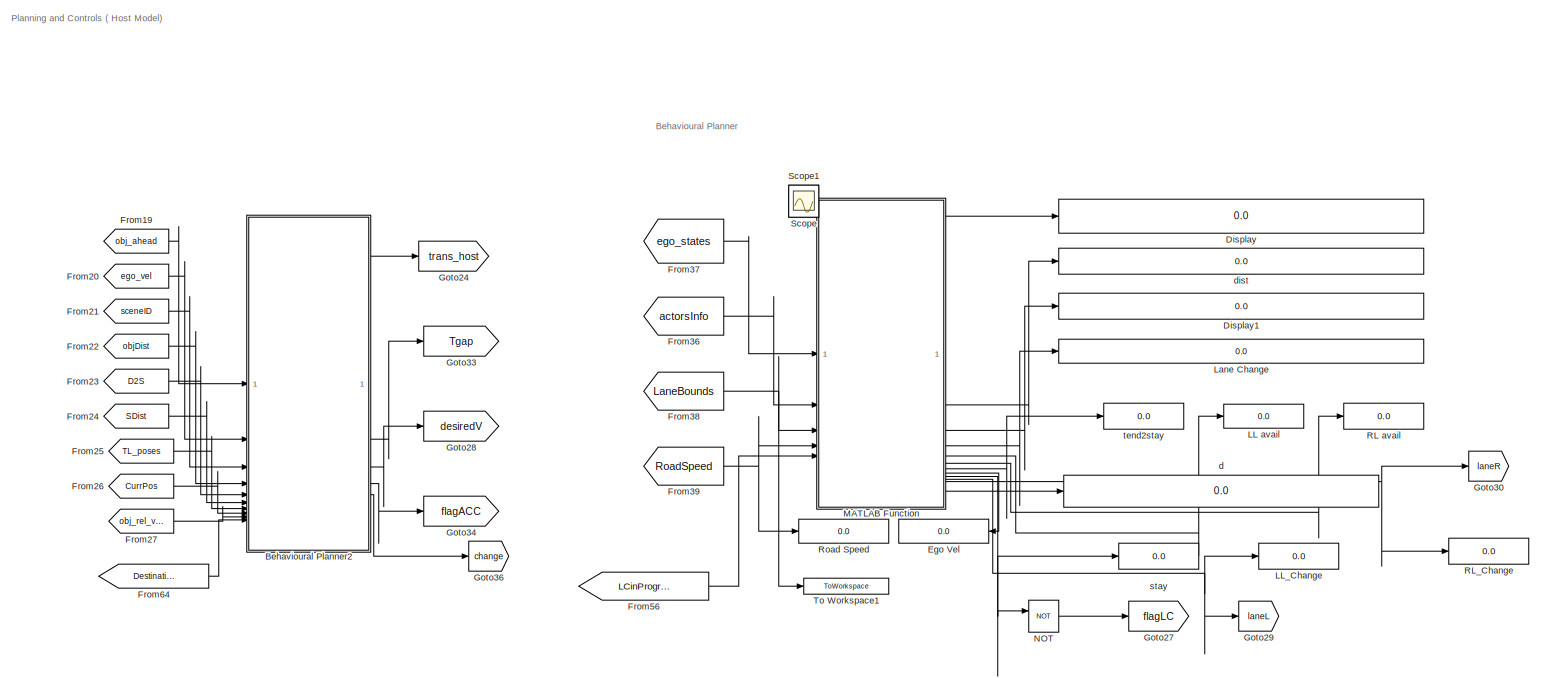
[diagram: root canvas - part 1/8, top center region]
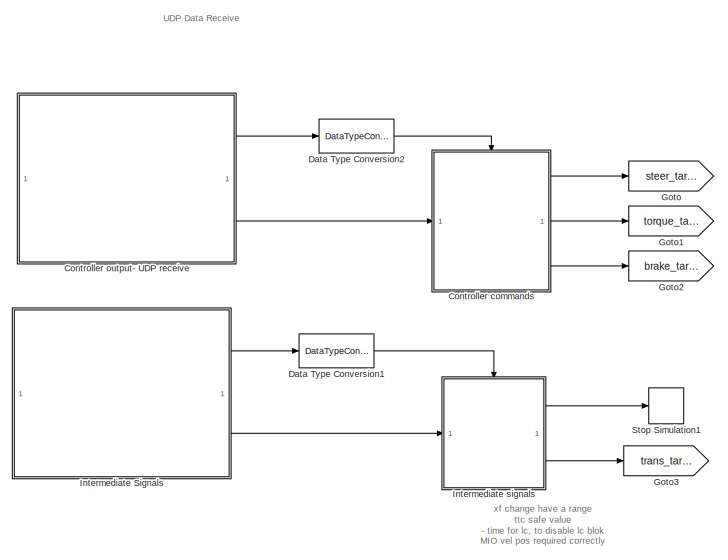
[diagram: root canvas - part 2/8, top right region]
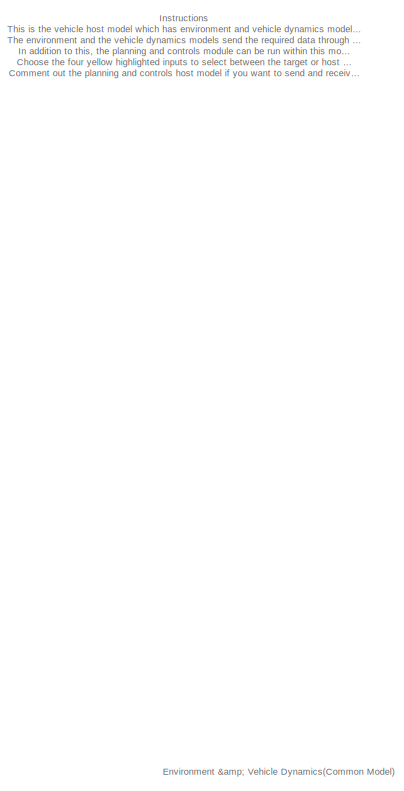
[diagram: root canvas - part 3/8, top left region]
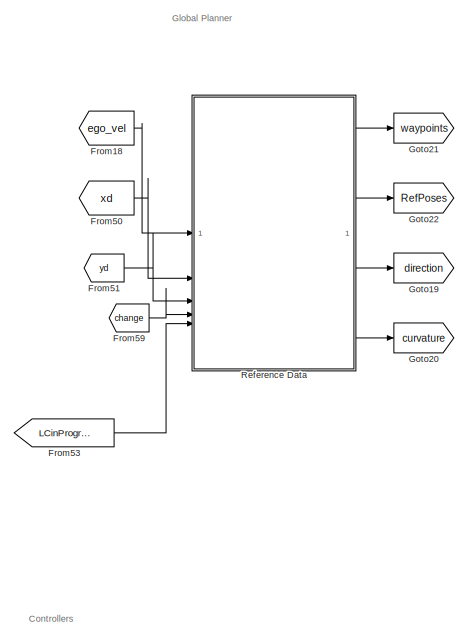
[diagram: root canvas - part 4/8, central region]
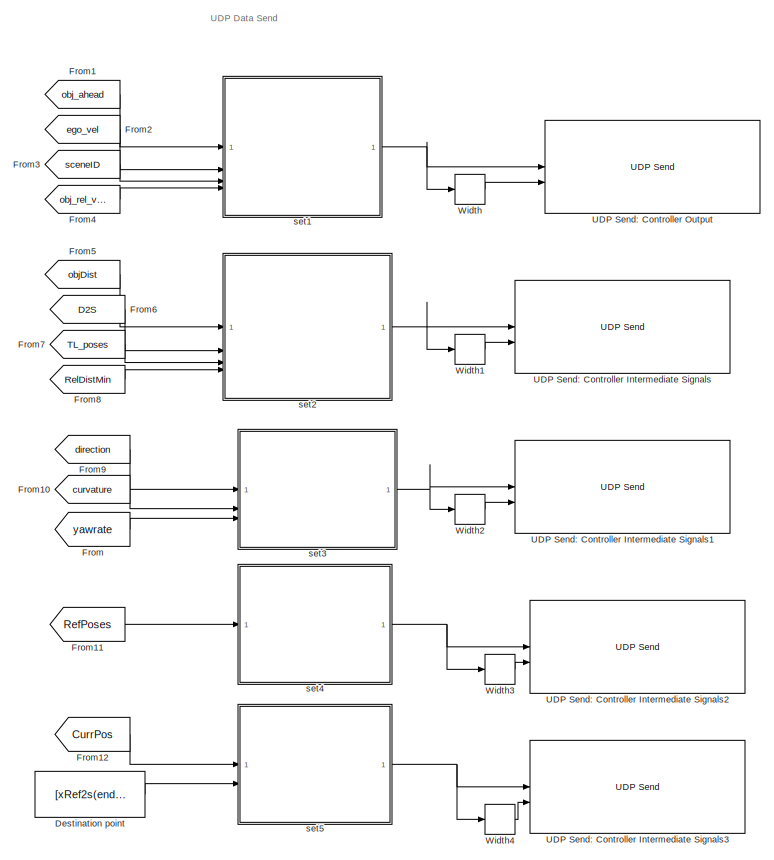
[diagram: root canvas - part 5/8, middle right region]
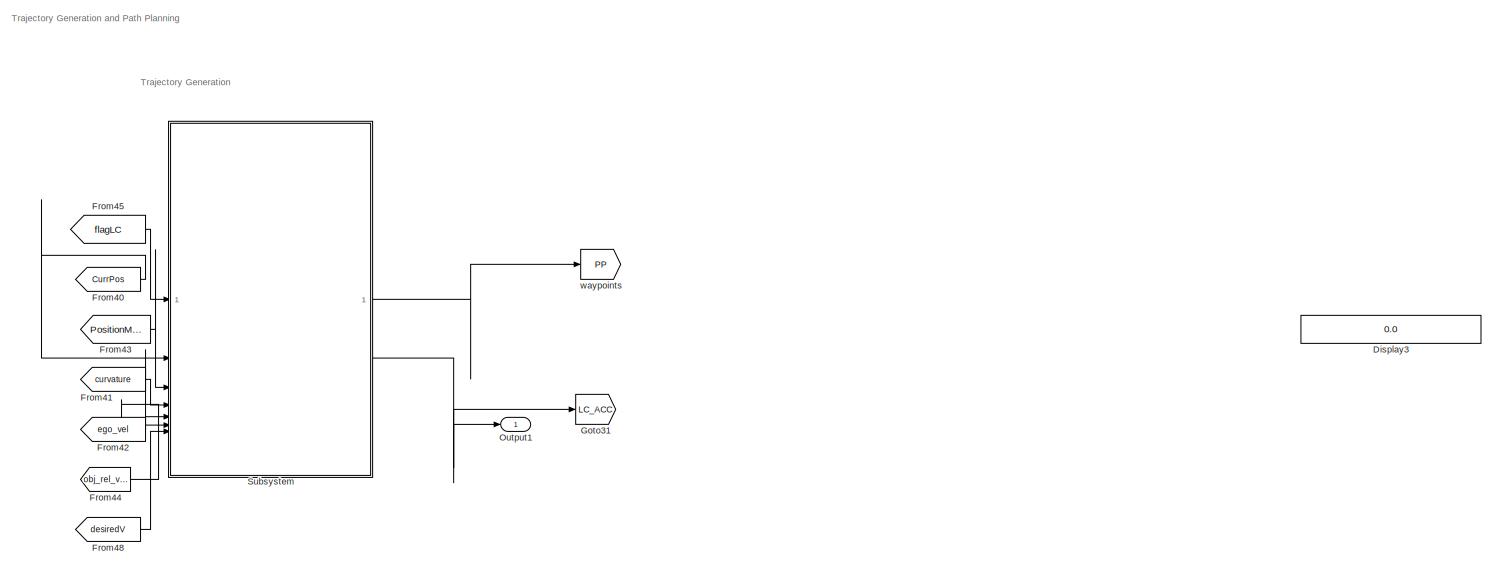
[diagram: root canvas - part 6/8, middle right region]
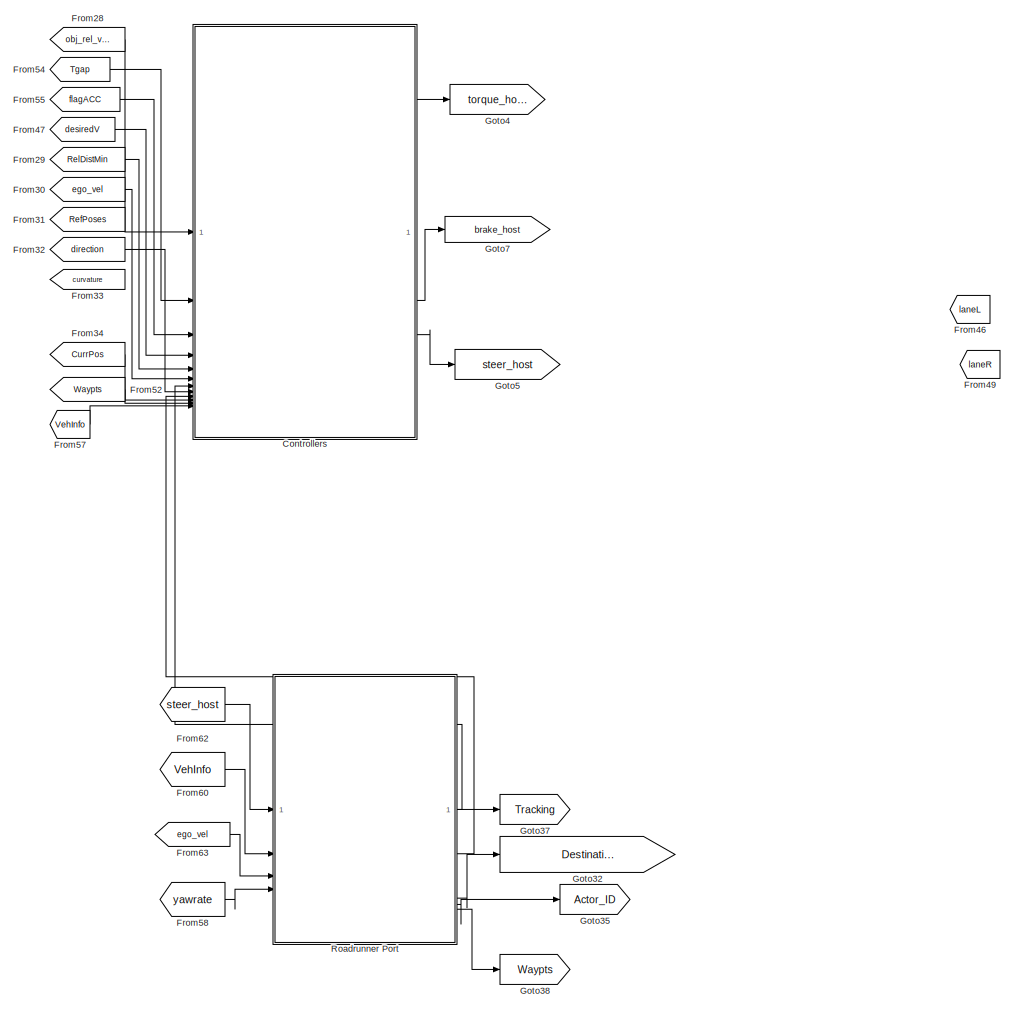
[diagram: root canvas - part 7/8, bottom center region]
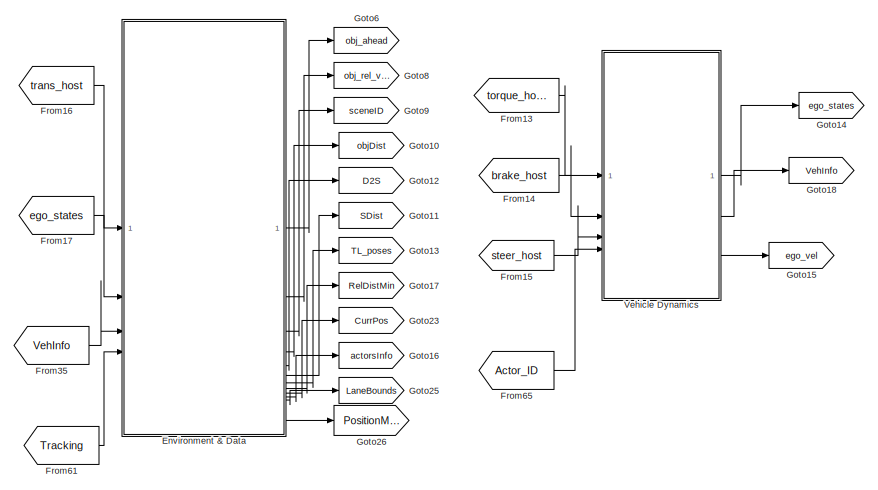
[diagram: root canvas - part 8/8, middle left region]
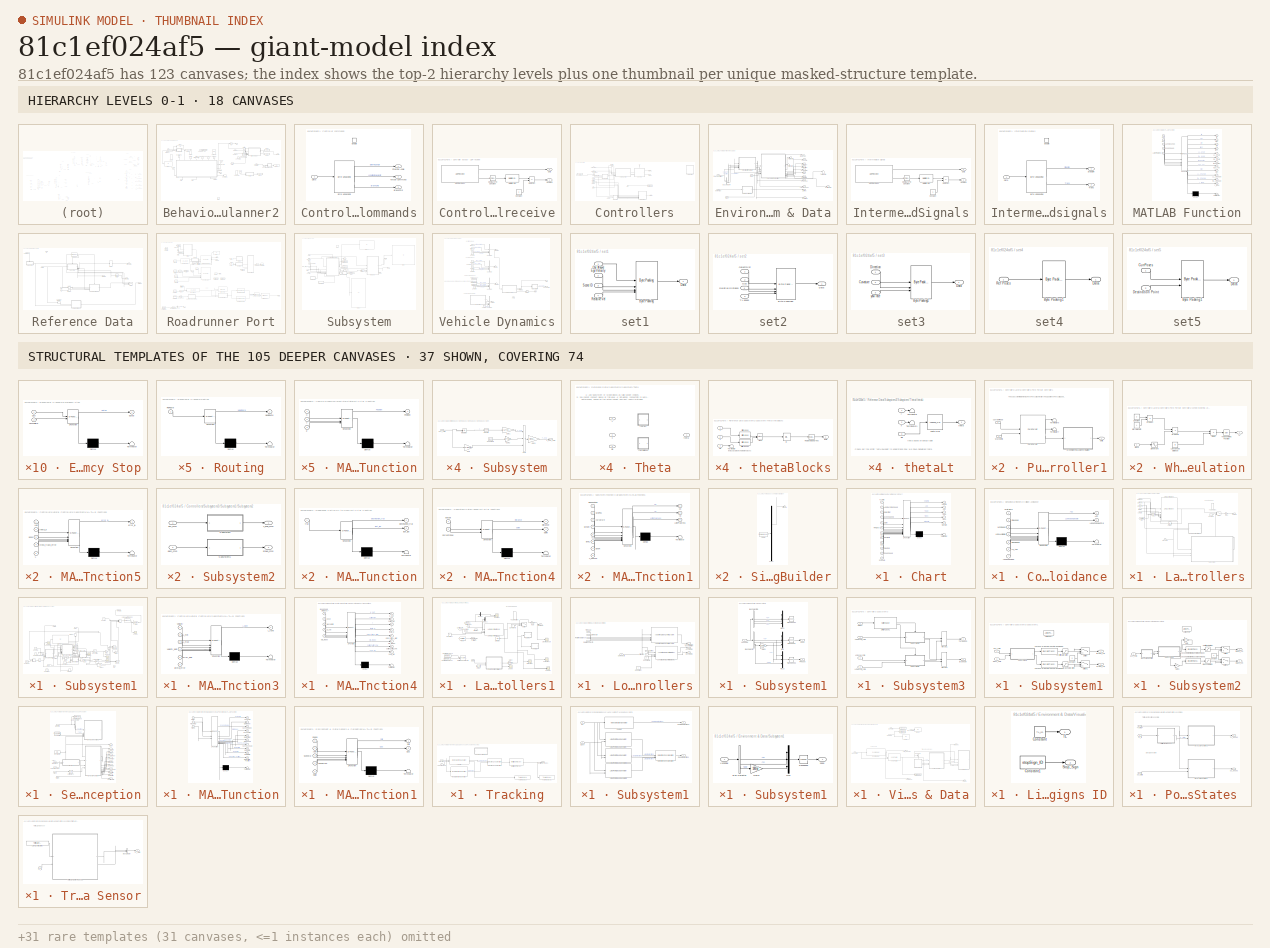
[diagram: thumbnail index - top-2 hierarchy levels (18 canvases) + 37 structural-template representatives of the remaining 105 canvases]
MODEL slx_81c1ef024af5
KIND model
CONFIG AbsTol = auto
CONFIG EnableMultiTasking = off
CONFIG FixedStep = auto
CONFIG MaxStep = auto
CONFIG MinStep = auto
CONFIG RelTol = 1e-3
CONFIG SampleTimeConstraint = Unconstrained
CONFIG SolverName = VariableStepAuto
CONFIG StartTime = 0.0
CONFIG StopTime = inf
WORKSPACE source: mxarray member
WORKSPACE finalint = 0
WORKSPACE firstWarning = 1
WORKSPACE originalScenarioChecksum = '114339432DE22364D47BB28FC96DC10C'
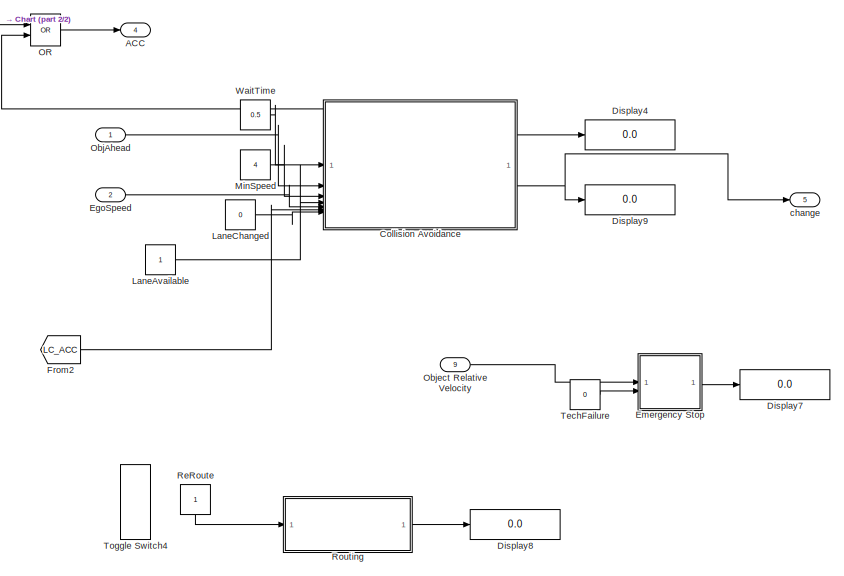
[diagram: Behavioural Planner2 - part 1/2, top right region]
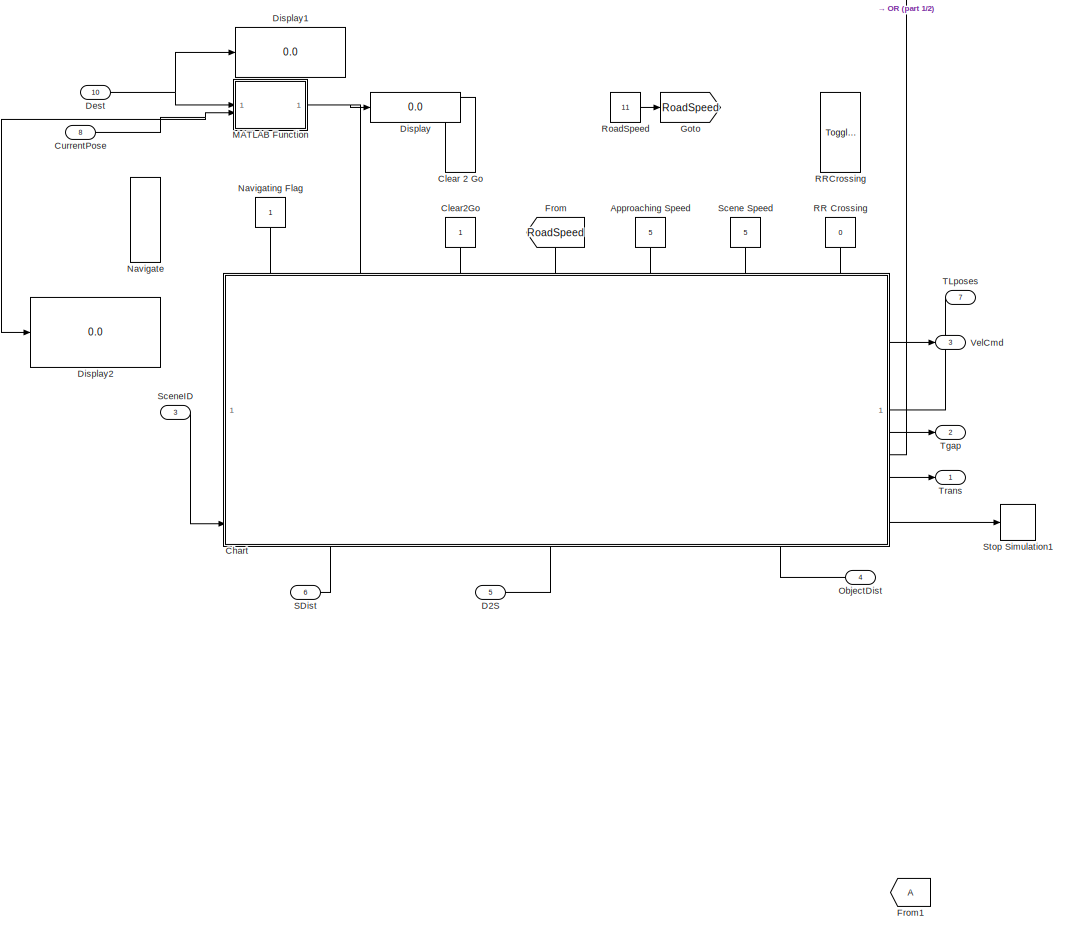
[diagram: Behavioural Planner2 - part 2/2, left side, full height]
BLOCK [SubSystem] Behavioural Planner2
BLOCK [Outport] Behavioural Planner2/ACC
  Port = 4
BLOCK [Constant] Behavioural Planner2/Approaching Speed
  NameLocation = top
  Value = 5
BLOCK [SubSystem] Behavioural Planner2/Chart
  ErrorFcn = Stateflow.Translate.translate
  PermitHierarchicalResolution = ExplicitOnly
  PortSchema = {"entries":[{"content":{"sides":[{"content":{"connectorIds":["In12"]},"type":"ConnectorPlacement.EquallySpacedRectSide","uuid":"81aca70f-0947-49fb-b60a-be241e44193b"},{"content":{"connectorIds":["In1","Out1","Out2","Out3","Out4","Out5"],"side":"RIGHT"},"type":"ConnectorPlacement.EquallySpacedRectSide","uuid":"e7b9645e-3711-4964-ac9b-0199dd335e99"},{"content":{"connectorIds":["In8","In9","In10","In...<+479ch>
  SFBlockType = Chart
  TreatAsAtomicUnit = on
BLOCK [Demux] Behavioural Planner2/Chart/ Demux 
  Outputs = 1
BLOCK [S-Function] Behavioural Planner2/Chart/ SFunction 
  EnableBusSupport = on
  FunctionName = sf_sfun
  PortCounts = [12 6]
  SFcnIsStateOwnerBlock = off
  SFunctionDeploymentMode = off
  Tag = Stateflow S-Function 33
BLOCK [Terminator] Behavioural Planner2/Chart/ Terminator 
BLOCK [Outport] Behavioural Planner2/Chart/ACC
  Port = 2
BLOCK [Inport] Behavioural Planner2/Chart/ApproachingSpeed
  Port = 2
BLOCK [Inport] Behavioural Planner2/Chart/Clear2Go
  Port = 10
BLOCK [Inport] Behavioural Planner2/Chart/D2D
  Port = 9
BLOCK [Inport] Behavioural Planner2/Chart/D2S
  Port = 7
BLOCK [Inport] Behavioural Planner2/Chart/Navigate
  Port = 8
BLOCK [Inport] Behavioural Planner2/Chart/ObjectDist
  Port = 3
BLOCK [Inport] Behavioural Planner2/Chart/RRCross
  Port = 6
BLOCK [Inport] Behavioural Planner2/Chart/RoadSpeed
  Port = 11
BLOCK [Inport] Behavioural Planner2/Chart/SDist
  Port = 5
BLOCK [Inport] Behavioural Planner2/Chart/SceneID
  Port = 12
BLOCK [Inport] Behavioural Planner2/Chart/SceneSpeed
  Port = 4
BLOCK [Outport] Behavioural Planner2/Chart/StopSim
  Port = 5
BLOCK [Inport] Behavioural Planner2/Chart/TLstate
BLOCK [Outport] Behavioural Planner2/Chart/Tgap
  Port = 3
BLOCK [Outport] Behavioural Planner2/Chart/Trans
  Port = 4
BLOCK [Outport] Behavioural Planner2/Chart/VelCmd
BLOCK [ToggleSwitchBlock] Behavioural Planner2/Clear 2 Go
BLOCK [Constant] Behavioural Planner2/Clear2Go
  NameLocation = top
BLOCK [SubSystem] Behavioural Planner2/Collision Avoidance
  ErrorFcn = Stateflow.Translate.translate
  PermitHierarchicalResolution = ExplicitOnly
  SFBlockType = Chart
  TreatAsAtomicUnit = on
BLOCK [Demux] Behavioural Planner2/Collision Avoidance/ Demux 
  Outputs = 1
BLOCK [S-Function] Behavioural Planner2/Collision Avoidance/ SFunction 
  EnableBusSupport = on
  FunctionName = sf_sfun
  PortCounts = [7 3]
  SFcnIsStateOwnerBlock = off
  SFunctionDeploymentMode = off
  Tag = Stateflow S-Function 34
BLOCK [Terminator] Behavioural Planner2/Collision Avoidance/ Terminator 
BLOCK [Outport] Behavioural Planner2/Collision Avoidance/ACC
BLOCK [Inport] Behavioural Planner2/Collision Avoidance/EgoSpeed
  Port = 5
BLOCK [Inport] Behavioural Planner2/Collision Avoidance/LC_ACC
  Port = 6
BLOCK [Inport] Behavioural Planner2/Collision Avoidance/LaneAvailable
  Port = 4
BLOCK [Outport] Behavioural Planner2/Collision Avoidance/LaneChangeCmd
  Port = 2
BLOCK [Inport] Behavioural Planner2/Collision Avoidance/LaneChanged
  Port = 7
BLOCK [Inport] Behavioural Planner2/Collision Avoidance/MinSpeed
  Port = 3
BLOCK [Inport] Behavioural Planner2/Collision Avoidance/ObjAhead
  Port = 2
BLOCK [Inport] Behavioural Planner2/Collision Avoidance/WaitTime
BLOCK [Inport] Behavioural Planner2/CurrentPose
  Port = 8
BLOCK [Inport] Behavioural Planner2/D2S
  Port = 5
BLOCK [Inport] Behavioural Planner2/Dest
  Port = 10
BLOCK [Display] Behavioural Planner2/Display
  Decimation = 1
BLOCK [Display] Behavioural Planner2/Display1
  Decimation = 1
BLOCK [Display] Behavioural Planner2/Display2
  Decimation = 1
BLOCK [Display] Behavioural Planner2/Display4
  Decimation = 1
BLOCK [Display] Behavioural Planner2/Display7
  Decimation = 1
BLOCK [Display] Behavioural Planner2/Display8
  Decimation = 1
BLOCK [Display] Behavioural Planner2/Display9
  Decimation = 1
BLOCK [Inport] Behavioural Planner2/EgoSpeed
  Port = 2
BLOCK [SubSystem] Behavioural Planner2/Emergency Stop
  ErrorFcn = Stateflow.Translate.translate
  PermitHierarchicalResolution = ExplicitOnly
  SFBlockType = Chart
  TreatAsAtomicUnit = on
BLOCK [Demux] Behavioural Planner2/Emergency Stop/ Demux 
  Outputs = 1
BLOCK [S-Function] Behavioural Planner2/Emergency Stop/ SFunction 
  EnableBusSupport = on
  FunctionName = sf_sfun
  PortCounts = [2 2]
  SFcnIsStateOwnerBlock = off
  SFunctionDeploymentMode = off
  Tag = Stateflow S-Function 35
BLOCK [Terminator] Behavioural Planner2/Emergency Stop/ Terminator 
BLOCK [Inport] Behavioural Planner2/Emergency Stop/D2O
BLOCK [Outport] Behavioural Planner2/Emergency Stop/EStop
BLOCK [Inport] Behavioural Planner2/Emergency Stop/TechFailure
  Port = 2
BLOCK [From] Behavioural Planner2/From
  GotoTag = RoadSpeed
  NameLocation = left
  TagVisibility = global
BLOCK [From] Behavioural Planner2/From1
BLOCK [From] Behavioural Planner2/From2
  GotoTag = LC_ACC
  TagVisibility = global
BLOCK [Goto] Behavioural Planner2/Goto
  GotoTag = RoadSpeed
  TagVisibility = global
BLOCK [Constant] Behavioural Planner2/LaneAvailable
  NameLocation = left
BLOCK [Constant] Behavioural Planner2/LaneChanged
  NameLocation = left
  Value = 0
BLOCK [SubSystem] Behavioural Planner2/MATLAB Function
  ErrorFcn = Stateflow.Translate.translate
  PermitHierarchicalResolution = ExplicitOnly
  SFBlockType = MATLAB Function
  TreatAsAtomicUnit = on
BLOCK [Demux] Behavioural Planner2/MATLAB Function/ Demux 
  Outputs = 1
BLOCK [S-Function] Behavioural Planner2/MATLAB Function/ SFunction 
  EnableBusSupport = on
  FunctionName = sf_sfun
  PortCounts = [2 2]
  SFcnIsStateOwnerBlock = off
  SFunctionDeploymentMode = off
  Tag = Stateflow S-Function 36
BLOCK [Terminator] Behavioural Planner2/MATLAB Function/ Terminator 
BLOCK [Inport] Behavioural Planner2/MATLAB Function/CurrentPose
  Port = 2
BLOCK [Outport] Behavioural Planner2/MATLAB Function/D2D
BLOCK [Inport] Behavioural Planner2/MATLAB Function/Dest
BLOCK [Constant] Behavioural Planner2/MinSpeed
  NameLocation = left
  Value = 4
BLOCK [ToggleSwitchBlock] Behavioural Planner2/Navigate
BLOCK [Constant] Behavioural Planner2/Navigating Flag
  NameLocation = left
BLOCK [Logic] Behavioural Planner2/OR
  AllPortsSameDT = off
  IconShape = distinctive
  Operator = OR
  OutDataTypeStr = fixdt(1,16)
BLOCK [Inport] Behavioural Planner2/ObjAhead
BLOCK [Inport] Behavioural Planner2/Object Relative Velocity
  Port = 9
BLOCK [Inport] Behavioural Planner2/ObjectDist
  Port = 4
BLOCK [Constant] Behavioural Planner2/RR Crossing
  NameLocation = top
  Value = 0
BLOCK [ToggleSwitchBlock] Behavioural Planner2/RRCrossing
BLOCK [Constant] Behavioural Planner2/ReRoute
  NameLocation = top
BLOCK [Constant] Behavioural Planner2/RoadSpeed
  NameLocation = left
  Value = 11
BLOCK [SubSystem] Behavioural Planner2/Routing
  ErrorFcn = Stateflow.Translate.translate
  PermitHierarchicalResolution = ExplicitOnly
  SFBlockType = Chart
  TreatAsAtomicUnit = on
BLOCK [Demux] Behavioural Planner2/Routing/ Demux 
  Outputs = 1
BLOCK [S-Function] Behavioural Planner2/Routing/ SFunction 
  EnableBusSupport = on
  FunctionName = sf_sfun
  PortCounts = [1 2]
  SFcnIsStateOwnerBlock = off
  SFunctionDeploymentMode = off
  Tag = Stateflow S-Function 37
BLOCK [Terminator] Behavioural Planner2/Routing/ Terminator 
BLOCK [Outport] Behavioural Planner2/Routing/NewRoute
BLOCK [Inport] Behavioural Planner2/Routing/ReRoute
BLOCK [Inport] Behavioural Planner2/SDist
  Port = 6
BLOCK [Constant] Behavioural Planner2/Scene Speed
  NameLocation = top
  Value = 5
BLOCK [Inport] Behavioural Planner2/SceneID
  Port = 3
BLOCK [Stop] Behavioural Planner2/Stop Simulation1
BLOCK [Inport] Behavioural Planner2/TLposes
  Port = 7
BLOCK [Constant] Behavioural Planner2/TechFailure
  NameLocation = left
  Value = 0
BLOCK [Outport] Behavioural Planner2/Tgap
  Port = 2
BLOCK [ToggleSwitchBlock] Behavioural Planner2/Toggle Switch4
BLOCK [Outport] Behavioural Planner2/Trans
BLOCK [Outport] Behavioural Planner2/VelCmd
  Port = 3
BLOCK [Constant] Behavioural Planner2/WaitTime
  NameLocation = left
  Value = 0.5
BLOCK [Outport] Behavioural Planner2/change
  Port = 5
BLOCK [SubSystem] Controller commands
  Commented = on
BLOCK [Outport] Controller commands/BrakeCmd
  Port = 3
BLOCK [Reference] Controller commands/Byte Unpacking   REF=slrealtimeutilitieslib/Byte Unpacking
  SourceBlock = slrealtimeutilitieslib/Byte Unpacking
  SourceType = slreraltimebytepacking
BLOCK [Inport] Controller commands/Data
BLOCK [EnablePort] Controller commands/Enable
BLOCK [Outport] Controller commands/Steering Angle
BLOCK [Outport] Controller commands/Torque Command
  Port = 2
BLOCK [SubSystem] Controller output- UDP receive
  Commented = on
BLOCK [Reference] Controller output- UDP receive/Compare To Constant  REF=simulink/Logic and Bit
Operations/Compare
To Constant
  SourceBlock = simulink/Logic and Bit\nOperations/Compare\nTo Constant
  SourceType = Compare To Constant
BLOCK [Constant] Controller output- UDP receive/Constant
BLOCK [Outport] Controller output- UDP receive/Data
  Port = 2
BLOCK [Outport] Controller output- UDP receive/NumMsg
BLOCK [Sum] Controller output- UDP receive/Subtract
  IconShape = rectangular
  Inputs = +-
BLOCK [Reference] Controller output- UDP receive/UDP Receive2  REF=slrealtimeiplib/UDP Receive
  SourceBlock = slrealtimeiplib/UDP Receive
  SourceType = slrealtimeudpreceive
BLOCK [WhileIterator] Controller output- UDP receive/While Iterator
  ResetStates = reset
  ShowIterationPort = on
  WhileBlockType = do-while
BLOCK [SubSystem] Controllers
BLOCK [Inport] Controllers/ACC
  NameLocation = left
  Port = 3
BLOCK [Outport] Controllers/BrakeCm
  Port = 2
BLOCK [Inport] Controllers/CurrVelocity
  Port = 6
BLOCK [Inport] Controllers/Curvature
  Port = 9
BLOCK [Inport] Controllers/Direction
  Port = 8
BLOCK [Display] Controllers/Display
  Decimation = 1
BLOCK [Inport] Controllers/Input
  Port = 11
BLOCK [SubSystem] Controllers/Lateral Controllers
  Commented = on
BLOCK [Constant] Controllers/Lateral Controllers/Constant5
  Value = 0
BLOCK [Inport] Controllers/Lateral Controllers/CurrPoses
  Port = 2
BLOCK [Inport] Controllers/Lateral Controllers/CurrVelocity
  NameLocation = top
BLOCK [Inport] Controllers/Lateral Controllers/Direction
  Port = 4
BLOCK [From] Controllers/Lateral Controllers/From
  GotoTag = yawrate
  IconDisplay = Signal name
  TagVisibility = global
BLOCK [Gain] Controllers/Lateral Controllers/Gain1
  Gain = 180/pi
BLOCK [Gain] Controllers/Lateral Controllers/Gain2
  Gain = 1/STEER_RATIO
BLOCK [Reference] Controllers/Lateral Controllers/Lateral Controller Stanley  REF=drivingvehiclecontroller/Lateral Controller Stanley
  SourceBlock = drivingvehiclecontroller/Lateral Controller Stanley
  SourceType = Lateral Controller Stanley
BLOCK [SubSystem] Controllers/Lateral Controllers/Pure Pursuit Controller1
BLOCK [Reference] Controllers/Lateral Controllers/Pure Pursuit Controller1/Pure Pursuit  REF=robotalgslib/Pure Pursuit
  SourceBlock = robotalgslib/Pure Pursuit
  SourceType = nav.slalgs.internal.PurePursuit
BLOCK [Terminator] Controllers/Lateral Controllers/Pure Pursuit Controller1/Terminator6
BLOCK [Terminator] Controllers/Lateral Controllers/Pure Pursuit Controller1/Terminator7
BLOCK [Inport] Controllers/Lateral Controllers/Pure Pursuit Controller1/Waypoints
  Port = 2
BLOCK [SubSystem] Controllers/Lateral Controllers/Pure Pursuit Controller1/Wheel Steering Angle Formulation
BLOCK [Outport] Controllers/Lateral Controllers/Pure Pursuit Controller1/Wheel Steering Angle Formulation/Al
BLOCK [Constant] Controllers/Lateral Controllers/Pure Pursuit Controller1/Wheel Steering Angle Formulation/Bicycle length
  Value = L
BLOCK [Constant] Controllers/Lateral Controllers/Pure Pursuit Controller1/Wheel Steering Angle Formulation/Constant
  Value = 2
BLOCK [Product] Controllers/Lateral Controllers/Pure Pursuit Controller1/Wheel Steering Angle Formulation/Divide
  Inputs = */
BLOCK [Constant] Controllers/Lateral Controllers/Pure Pursuit Controller1/Wheel Steering Angle Formulation/Lookahead distance
  Value = ld
BLOCK [Product] Controllers/Lateral Controllers/Pure Pursuit Controller1/Wheel Steering Angle Formulation/Product
BLOCK [Product] Controllers/Lateral Controllers/Pure Pursuit Controller1/Wheel Steering Angle Formulation/Product1
BLOCK [Sin] Controllers/Lateral Controllers/Pure Pursuit Controller1/Wheel Steering Angle Formulation/Sine Wave
  SampleTime = 0
  TimeSource = Use external signal
BLOCK [Trigonometry] Controllers/Lateral Controllers/Pure Pursuit Controller1/Wheel Steering Angle Formulation/Trigonometric Function
  Operator = atan
BLOCK [Inport] Controllers/Lateral Controllers/Pure Pursuit Controller1/Wheel Steering Angle Formulation/alpha
  NameLocation = top
BLOCK [Inport] Controllers/Lateral Controllers/Pure Pursuit Controller1/currentPose
BLOCK [Outport] Controllers/Lateral Controllers/Pure Pursuit Controller1/delta
BLOCK [Inport] Controllers/Lateral Controllers/RefPoses
  Port = 3
BLOCK [SubSystem] Controllers/Lateral Controllers/Subsystem1
BLOCK [Abs] Controllers/Lateral Controllers/Subsystem1/Abs
  SaturateOnIntegerOverflow = off
BLOCK [Sum] Controllers/Lateral Controllers/Subsystem1/Add1
  IconShape = rectangular
  Inputs = ++++
BLOCK [Constant] Controllers/Lateral Controllers/Subsystem1/Constant
  Value = 0
BLOCK [Constant] Controllers/Lateral Controllers/Subsystem1/Constant10
  Value = 0.4
BLOCK [Constant] Controllers/Lateral Controllers/Subsystem1/Constant12
  Value = yRef2
BLOCK [Constant] Controllers/Lateral Controllers/Subsystem1/Constant14
  Value = 0.032
BLOCK [Constant] Controllers/Lateral Controllers/Subsystem1/Constant6
  Value = L
BLOCK [Constant] Controllers/Lateral Controllers/Subsystem1/Constant7
  Value = 0.01
BLOCK [Constant] Controllers/Lateral Controllers/Subsystem1/Constant8
  Value = 2
BLOCK [Constant] Controllers/Lateral Controllers/Subsystem1/Constant9
  Value = 6
BLOCK [Display] Controllers/Lateral Controllers/Subsystem1/Display2
  Decimation = 1
BLOCK [Gain] Controllers/Lateral Controllers/Subsystem1/Gain10
  Gain = 0.01
BLOCK [Gain] Controllers/Lateral Controllers/Subsystem1/Gain2
  Gain = 180/pi
BLOCK [Gain] Controllers/Lateral Controllers/Subsystem1/Gain6
BLOCK [Gain] Controllers/Lateral Controllers/Subsystem1/Gain8
BLOCK [Gain] Controllers/Lateral Controllers/Subsystem1/Gain9
  Gain = 0.2950
BLOCK [Inport] Controllers/Lateral Controllers/Subsystem1/Input
  Port = 3
BLOCK [Outport] Controllers/Lateral Controllers/Subsystem1/K_out
  Port = 2
BLOCK [Reference] Controllers/Lateral Controllers/Subsystem1/Low-Pass Filter (Discrete or Continuous)  REF=eeGeneralControl/Low-Pass Filter
(Discrete or Continuous)
  Commented = through
  SourceBlock = eeGeneralControl/Low-Pass Filter\n(Discrete or Continuous)
  SourceType = Low-Pass Filter (Discrete or Continuous)
BLOCK [SubSystem] Controllers/Lateral Controllers/Subsystem1/MATLAB Function3
  ErrorFcn = Stateflow.Translate.translate
  PermitHierarchicalResolution = ExplicitOnly
  SFBlockType = MATLAB Function
  TreatAsAtomicUnit = on
BLOCK [Demux] Controllers/Lateral Controllers/Subsystem1/MATLAB Function3/ Demux 
  Outputs = 1
BLOCK [S-Function] Controllers/Lateral Controllers/Subsystem1/MATLAB Function3/ SFunction 
  EnableBusSupport = on
  FunctionName = sf_sfun
  PortCounts = [6 2]
  SFcnIsStateOwnerBlock = off
  SFunctionDeploymentMode = off
  Tag = Stateflow S-Function 27
BLOCK [Terminator] Controllers/Lateral Controllers/Subsystem1/MATLAB Function3/ Terminator 
BLOCK [Inport] Controllers/Lateral Controllers/Subsystem1/MATLAB Function3/L_max
  Port = 3
BLOCK [Inport] Controllers/Lateral Controllers/Subsystem1/MATLAB Function3/L_min
  Port = 2
BLOCK [Outport] Controllers/Lateral Controllers/Subsystem1/MATLAB Function3/L_tune
BLOCK [Inport] Controllers/Lateral Controllers/Subsystem1/MATLAB Function3/error_gain
  Port = 5
BLOCK [Inport] Controllers/Lateral Controllers/Subsystem1/MATLAB Function3/lateral_error
  Port = 6
BLOCK [Inport] Controllers/Lateral Controllers/Subsystem1/MATLAB Function3/velocity
BLOCK [Inport] Controllers/Lateral Controllers/Subsystem1/MATLAB Function3/velocity_gain
  Port = 4
BLOCK [SubSystem] Controllers/Lateral Controllers/Subsystem1/MATLAB Function4
  ErrorFcn = Stateflow.Translate.translate
  PermitHierarchicalResolution = ExplicitOnly
  SFBlockType = MATLAB Function
  TreatAsAtomicUnit = on
BLOCK [Demux] Controllers/Lateral Controllers/Subsystem1/MATLAB Function4/ Demux 
  Outputs = 1
BLOCK [S-Function] Controllers/Lateral Controllers/Subsystem1/MATLAB Function4/ SFunction 
  EnableBusSupport = on
  FunctionName = sf_sfun
  PortCounts = [5 9]
  SFcnIsStateOwnerBlock = off
  SFunctionDeploymentMode = off
  Tag = Stateflow S-Function 28
BLOCK [Terminator] Controllers/Lateral Controllers/Subsystem1/MATLAB Function4/ Terminator 
BLOCK [Inport] Controllers/Lateral Controllers/Subsystem1/MATLAB Function4/D_sat
  Port = 4
BLOCK [Outport] Controllers/Lateral Controllers/Subsystem1/MATLAB Function4/K_out
BLOCK [Outport] Controllers/Lateral Controllers/Subsystem1/MATLAB Function4/cross_track_error
  Port = 5
BLOCK [Outport] Controllers/Lateral Controllers/Subsystem1/MATLAB Function4/current_error_chk
  Port = 7
BLOCK [Outport] Controllers/Lateral Controllers/Subsystem1/MATLAB Function4/current_ref
  Port = 2
BLOCK [Inport] Controllers/Lateral Controllers/Subsystem1/MATLAB Function4/lookahead_distance
BLOCK [Outport] Controllers/Lateral Controllers/Subsystem1/MATLAB Function4/new_wp
  Port = 8
BLOCK [Outport] Controllers/Lateral Controllers/Subsystem1/MATLAB Function4/old_index
  Port = 6
BLOCK [Inport] Controllers/Lateral Controllers/Subsystem1/MATLAB Function4/old_index 
  Port = 5
BLOCK [Inport] Controllers/Lateral Controllers/Subsystem1/MATLAB Function4/pose
  Port = 2
BLOCK [Outport] Controllers/Lateral Controllers/Subsystem1/MATLAB Function4/r
  Port = 3
BLOCK [Outport] Controllers/Lateral Controllers/Subsystem1/MATLAB Function4/theta_p
  Port = 4
BLOCK [Inport] Controllers/Lateral Controllers/Subsystem1/MATLAB Function4/waypoints
  Port = 3
BLOCK [SubSystem] Controllers/Lateral Controllers/Subsystem1/MATLAB Function5
  ErrorFcn = Stateflow.Translate.translate
  PermitHierarchicalResolution = ExplicitOnly
  SFBlockType = MATLAB Function
  TreatAsAtomicUnit = on
BLOCK [Demux] Controllers/Lateral Controllers/Subsystem1/MATLAB Function5/ Demux 
  Outputs = 1
BLOCK [S-Function] Controllers/Lateral Controllers/Subsystem1/MATLAB Function5/ SFunction 
  EnableBusSupport = on
  FunctionName = sf_sfun
  PortCounts = [5 2]
  SFcnIsStateOwnerBlock = off
  SFunctionDeploymentMode = off
  Tag = Stateflow S-Function 29
BLOCK [Terminator] Controllers/Lateral Controllers/Subsystem1/MATLAB Function5/ Terminator 
BLOCK [Inport] Controllers/Lateral Controllers/Subsystem1/MATLAB Function5/L
  Port = 5
BLOCK [Inport] Controllers/Lateral Controllers/Subsystem1/MATLAB Function5/Lad
BLOCK [Inport] Controllers/Lateral Controllers/Subsystem1/MATLAB Function5/cross_track_error
  Port = 4
BLOCK [Outport] Controllers/Lateral Controllers/Subsystem1/MATLAB Function5/error_la
BLOCK [Inport] Controllers/Lateral Controllers/Subsystem1/MATLAB Function5/pose
  Port = 3
BLOCK [Inport] Controllers/Lateral Controllers/Subsystem1/MATLAB Function5/theta_p
  Port = 2
BLOCK [SubSystem] Controllers/Lateral Controllers/Subsystem1/MATLAB Function6
  ErrorFcn = Stateflow.Translate.translate
  PermitHierarchicalResolution = ExplicitOnly
  SFBlockType = MATLAB Function
  TreatAsAtomicUnit = on
BLOCK [Demux] Controllers/Lateral Controllers/Subsystem1/MATLAB Function6/ Demux 
  Outputs = 1
BLOCK [S-Function] Controllers/Lateral Controllers/Subsystem1/MATLAB Function6/ SFunction 
  EnableBusSupport = on
  FunctionName = sf_sfun
  PortCounts = [2 2]
  SFcnIsStateOwnerBlock = off
  SFunctionDeploymentMode = off
  Tag = Stateflow S-Function 30
BLOCK [Terminator] Controllers/Lateral Controllers/Subsystem1/MATLAB Function6/ Terminator 
BLOCK [Inport] Controllers/Lateral Controllers/Subsystem1/MATLAB Function6/L
  Port = 2
BLOCK [Inport] Controllers/Lateral Controllers/Subsystem1/MATLAB Function6/r
BLOCK [Outport] Controllers/Lateral Controllers/Subsystem1/MATLAB Function6/theta
BLOCK [Memory] Controllers/Lateral Controllers/Subsystem1/Memory
  InitialCondition = 1
  LinearizeMemory = on
BLOCK [Memory] Controllers/Lateral Controllers/Subsystem1/Memory1
  LinearizeMemory = on
BLOCK [Memory] Controllers/Lateral Controllers/Subsystem1/Memory2
  NameLocation = left
BLOCK [Outport] Controllers/Lateral Controllers/Subsystem1/Out5
  Port = 5
BLOCK [Reference] Controllers/Lateral Controllers/Subsystem1/PID Controller  REF=slpidlib/PID Controller
  SourceBlock = slpidlib/PID Controller
  SourceType = PID 1dof
BLOCK [Reference] Controllers/Lateral Controllers/Subsystem1/PID Controller1  REF=slpidlib/PID Controller
  SourceBlock = slpidlib/PID Controller
  SourceType = PID 1dof
BLOCK [Product] Controllers/Lateral Controllers/Subsystem1/Product1
BLOCK [Product] Controllers/Lateral Controllers/Subsystem1/Product2
BLOCK [Product] Controllers/Lateral Controllers/Subsystem1/Product3
BLOCK [Scope] Controllers/Lateral Controllers/Subsystem1/Scope12
  Floating = off
  NumInputPorts = 1
  ScopeSpecificationString = Simulink.scopes.TimeScopeBlockCfg('CurrentConfiguration', extmgr.ConfigurationSet(extmgr.Configuration('Core','General UI',true),extmgr.Configuration('Core','Source UI',true),extmgr.Configuration('Sources','WiredSimulink',true,'DataLoggingVariableName','ScopeData1'),extmgr.Configuration('Visuals','Time Domain',true,'SerializedDisplays',{struct('MinYLimReal','-0.37783','MaxYLimReal','0.28104','YLab...<+1364ch>
BLOCK [Scope] Controllers/Lateral Controllers/Subsystem1/Scope15
  Floating = off
  NumInputPorts = 1
  ScopeSpecificationString = Simulink.scopes.TimeScopeBlockCfg('CurrentConfiguration', extmgr.ConfigurationSet(extmgr.Configuration('Core','General UI',true),extmgr.Configuration('Core','Source UI',true),extmgr.Configuration('Sources','WiredSimulink',true,'DataLoggingVariableName','ScopeData2'),extmgr.Configuration('Visuals','Time Domain',true,'SerializedDisplays',{struct('MinYLimReal','166.10928','MaxYLimReal','590.29962','Y...<+1436ch>
BLOCK [Scope] Controllers/Lateral Controllers/Subsystem1/Scope17
  Floating = off
  NumInputPorts = 1
  ScopeSpecificationString = Simulink.scopes.TimeScopeBlockCfg('CurrentConfiguration', extmgr.ConfigurationSet(extmgr.Configuration('Core','General UI',true),extmgr.Configuration('Core','Source UI',true),extmgr.Configuration('Sources','WiredSimulink',true,'DataLoggingVariableName','ScopeData1'),extmgr.Configuration('Visuals','Time Domain',true,'SerializedDisplays',{struct('MinYLimReal','-0.62318','MaxYLimReal','11.59405','YLa...<+1473ch>
BLOCK [Scope] Controllers/Lateral Controllers/Subsystem1/Scope8
  Floating = off
  NumInputPorts = 1
  ScopeSpecificationString = Simulink.scopes.TimeScopeBlockCfg('CurrentConfiguration', extmgr.ConfigurationSet(extmgr.Configuration('Core','General UI',true),extmgr.Configuration('Core','Source UI',true),extmgr.Configuration('Sources','WiredSimulink',true,'DataLoggingVariableName','ScopeData1'),extmgr.Configuration('Visuals','Time Domain',true,'SerializedDisplays',{struct('MinYLimReal','-631.88707','MaxYLimReal','337.59329','...<+1490ch>
BLOCK [Scope] Controllers/Lateral Controllers/Subsystem1/Scope9
  Floating = off
  NumInputPorts = 1
  ScopeSpecificationString = Simulink.scopes.TimeScopeBlockCfg('CurrentConfiguration', extmgr.ConfigurationSet(extmgr.Configuration('Core','General UI',true),extmgr.Configuration('Core','Source UI',true),extmgr.Configuration('Sources','WiredSimulink',true,'DataLoggingVariableName','ScopeData1'),extmgr.Configuration('Visuals','Time Domain',true,'SerializedDisplays',{struct('MinYLimReal','2.00000','MaxYLimReal','10.71759','YLab...<+1452ch>
BLOCK [Outport] Controllers/Lateral Controllers/Subsystem1/cross_track_error
  Port = 4
BLOCK [Outport] Controllers/Lateral Controllers/Subsystem1/current_ref
  Port = 3
BLOCK [Inport] Controllers/Lateral Controllers/Subsystem1/pose
BLOCK [Outport] Controllers/Lateral Controllers/Subsystem1/steerCmd
BLOCK [Inport] Controllers/Lateral Controllers/Subsystem1/velocity
  Port = 2
BLOCK [Switch] Controllers/Lateral Controllers/Switch
  Criteria = u2 > Threshold
  InputSameDT = off
  SaturateOnIntegerOverflow = off
BLOCK [ToggleSwitchBlock] Controllers/Lateral Controllers/Toggle Switch1
BLOCK [UnitDelay] Controllers/Lateral Controllers/Unit Delay
  HasFrameUpgradeWarning = on
  NameLocation = top
  SampleTime = -1
BLOCK [Inport] Controllers/Lateral Controllers/Waypoints
  Port = 6
BLOCK [Inport] Controllers/Lateral Controllers/curvature
  Port = 5
BLOCK [Outport] Controllers/Lateral Controllers/steerCmd
BLOCK [SubSystem] Controllers/Lateral Controllers1
BLOCK [SubSystem] Controllers/Lateral Controllers1/Average
  ErrorFcn = Stateflow.Translate.translate
  LibrarySourceBlock = simulink/User-Defined\nFunctions/MATLAB Function
  PermitHierarchicalResolution = ExplicitOnly
  SFBlockType = MATLAB Function
  TreatAsAtomicUnit = on
BLOCK [Demux] Controllers/Lateral Controllers1/Average/ Demux 
  Outputs = 1
BLOCK [S-Function] Controllers/Lateral Controllers1/Average/ SFunction 
  EnableBusSupport = on
  FunctionName = sf_sfun
  PortCounts = [2 2]
  SFcnIsStateOwnerBlock = off
  SFunctionDeploymentMode = off
  Tag = Stateflow S-Function 22
BLOCK [Terminator] Controllers/Lateral Controllers1/Average/ Terminator 
BLOCK [Inport] Controllers/Lateral Controllers1/Average/pure
  Port = 2
BLOCK [Inport] Controllers/Lateral Controllers1/Average/stan
BLOCK [Outport] Controllers/Lateral Controllers1/Average/y
BLOCK [Constant] Controllers/Lateral Controllers1/Constant
BLOCK [Constant] Controllers/Lateral Controllers1/Constant5
  Value = 0
BLOCK [Inport] Controllers/Lateral Controllers1/CurrPoses
  Port = 2
BLOCK [Inport] Controllers/Lateral Controllers1/CurrVelocity
BLOCK [Inport] Controllers/Lateral Controllers1/Curvature
  Port = 5
BLOCK [Demux] Controllers/Lateral Controllers1/Demux
  Outputs = 3
BLOCK [Demux] Controllers/Lateral Controllers1/Demux1
  Outputs = 3
BLOCK [Inport] Controllers/Lateral Controllers1/Direction
  Port = 4
BLOCK [From] Controllers/Lateral Controllers1/From
  GotoTag = yawrate
  IconDisplay = Signal name
  TagVisibility = global
BLOCK [FromWorkspace] Controllers/Lateral Controllers1/From Workspace
  Commented = on
  VariableName = xRef2
BLOCK [FromWorkspace] Controllers/Lateral Controllers1/From Workspace1
  Commented = on
  VariableName = yRef2
BLOCK [From] Controllers/Lateral Controllers1/From3
  GotoTag = Waypts
  TagVisibility = global
BLOCK [Gain] Controllers/Lateral Controllers1/Gain
  Gain = 1/STEER_RATIO
BLOCK [Gain] Controllers/Lateral Controllers1/Gain1
  Gain = 180/pi
BLOCK [Gain] Controllers/Lateral Controllers1/Gain2
  Gain = 180/pi
BLOCK [Reference] Controllers/Lateral Controllers1/Lateral Controller Stanley  REF=drivingvehiclecontroller/Lateral Controller Stanley
  SourceBlock = drivingvehiclecontroller/Lateral Controller Stanley
  SourceType = Lateral Controller Stanley
BLOCK [Concatenate] Controllers/Lateral Controllers1/Matrix Concatenate
  Commented = on
  ConcatenateDimension = 2
  Mode = Multidimensional array
BLOCK [Inport] Controllers/Lateral Controllers1/Pose
  Port = 6
BLOCK [SubSystem] Controllers/Lateral Controllers1/Pure Pursuit Controller1
BLOCK [Inport] Controllers/Lateral Controllers1/Pure Pursuit Controller1/Pose
BLOCK [Reference] Controllers/Lateral Controllers1/Pure Pursuit Controller1/Pure Pursuit  REF=robotalgslib/Pure Pursuit
  SourceBlock = robotalgslib/Pure Pursuit
  SourceType = nav.slalgs.internal.PurePursuit
BLOCK [Terminator] Controllers/Lateral Controllers1/Pure Pursuit Controller1/Terminator6
BLOCK [Terminator] Controllers/Lateral Controllers1/Pure Pursuit Controller1/Terminator7
BLOCK [Inport] Controllers/Lateral Controllers1/Pure Pursuit Controller1/Waypoints
  Port = 2
BLOCK [SubSystem] Controllers/Lateral Controllers1/Pure Pursuit Controller1/Wheel Steering Angle Formulation
BLOCK [Outport] Controllers/Lateral Controllers1/Pure Pursuit Controller1/Wheel Steering Angle Formulation/Al
BLOCK [Constant] Controllers/Lateral Controllers1/Pure Pursuit Controller1/Wheel Steering Angle Formulation/Bicycle length
  Value = L
BLOCK [Constant] Controllers/Lateral Controllers1/Pure Pursuit Controller1/Wheel Steering Angle Formulation/Constant
  Value = 2
BLOCK [Product] Controllers/Lateral Controllers1/Pure Pursuit Controller1/Wheel Steering Angle Formulation/Divide
  Inputs = */
BLOCK [Constant] Controllers/Lateral Controllers1/Pure Pursuit Controller1/Wheel Steering Angle Formulation/Lookahead distance
  Value = ld
BLOCK [Product] Controllers/Lateral Controllers1/Pure Pursuit Controller1/Wheel Steering Angle Formulation/Product
BLOCK [Product] Controllers/Lateral Controllers1/Pure Pursuit Controller1/Wheel Steering Angle Formulation/Product1
BLOCK [Sin] Controllers/Lateral Controllers1/Pure Pursuit Controller1/Wheel Steering Angle Formulation/Sine Wave
  SampleTime = 0
  TimeSource = Use external signal
BLOCK [Trigonometry] Controllers/Lateral Controllers1/Pure Pursuit Controller1/Wheel Steering Angle Formulation/Trigonometric Function
  Operator = atan
BLOCK [Inport] Controllers/Lateral Controllers1/Pure Pursuit Controller1/Wheel Steering Angle Formulation/alpha
  NameLocation = top
BLOCK [Outport] Controllers/Lateral Controllers1/Pure Pursuit Controller1/delta
BLOCK [Inport] Controllers/Lateral Controllers1/RefPoses
  Port = 3
BLOCK [Scope] Controllers/Lateral Controllers1/Scope
  Floating = off
  NumInputPorts = 1
  ScopeSpecificationString = Simulink.scopes.TimeScopeBlockCfg('CurrentConfiguration', extmgr.ConfigurationSet(extmgr.Configuration('Core','General UI',true),extmgr.Configuration('Core','Source UI',true),extmgr.Configuration('Sources','WiredSimulink',true,'DataLoggingVariableName','ScopeData1'),extmgr.Configuration('Visuals','Time Domain',true,'SerializedDisplays',{struct('MinYLimReal','-0.4704','MaxYLimReal','0.37328','YLabe...<+1404ch>
BLOCK [Scope] Controllers/Lateral Controllers1/Scope1
  Floating = off
  NumInputPorts = 2
  ScopeSpecificationString = Simulink.scopes.TimeScopeBlockCfg('CurrentConfiguration', extmgr.ConfigurationSet(extmgr.Configuration('Core','General UI',true),extmgr.Configuration('Core','Source UI',true),extmgr.Configuration('Sources','WiredSimulink',true),extmgr.Configuration('Visuals','Time Domain',true,'SerializedDisplays',{struct('MinYLimReal','-36.58367','MaxYLimReal','29.25299','YLabelReal','','MinYLimMag','0.00000','Ma...<+1464ch>
BLOCK [Scope] Controllers/Lateral Controllers1/Scope2
  Floating = off
  NumInputPorts = 2
  ScopeSpecificationString = Simulink.scopes.TimeScopeBlockCfg('CurrentConfiguration', extmgr.ConfigurationSet(extmgr.Configuration('Core','General UI',true),extmgr.Configuration('Core','Source UI',true),extmgr.Configuration('Sources','WiredSimulink',true,'DataLoggingVariableName','ScopeData1'),extmgr.Configuration('Visuals','Time Domain',true,'SerializedDisplays',{struct('MinYLimReal','-14.58282','MaxYLimReal','-5.65284','YL...<+1435ch>
BLOCK [Scope] Controllers/Lateral Controllers1/Stan steer
  Floating = off
  NumInputPorts = 1
  ScopeSpecificationString = Simulink.scopes.TimeScopeBlockCfg('CurrentConfiguration', extmgr.ConfigurationSet(extmgr.Configuration('Core','General UI',true),extmgr.Configuration('Core','Source UI',true),extmgr.Configuration('Sources','WiredSimulink',true,'DataLoggingVariableName','ScopeData2'),extmgr.Configuration('Visuals','Time Domain',true,'SerializedDisplays',{struct('MinYLimReal','-6.77355','MaxYLimReal','7.74506','YLab...<+1439ch>
BLOCK [Scope] Controllers/Lateral Controllers1/Steering angle
  Floating = off
  NumInputPorts = 1
  ScopeSpecificationString = Simulink.scopes.TimeScopeBlockCfg('CurrentConfiguration', extmgr.ConfigurationSet(extmgr.Configuration('Core','General UI',true),extmgr.Configuration('Core','Source UI',true),extmgr.Configuration('Sources','WiredSimulink',true,'DataLoggingVariableName','ScopeData1'),extmgr.Configuration('Visuals','Time Domain',true,'SerializedDisplays',{struct('MinYLimReal','-367.35146','MaxYLimReal','462.92606','...<+1402ch>
BLOCK [SubSystem] Controllers/Lateral Controllers1/Swicth 1
  ErrorFcn = Stateflow.Translate.translate
  LibrarySourceBlock = simulink/User-Defined\nFunctions/MATLAB Function
  PermitHierarchicalResolution = ExplicitOnly
  SFBlockType = MATLAB Function
  TreatAsAtomicUnit = on
BLOCK [Demux] Controllers/Lateral Controllers1/Swicth 1/ Demux 
  Outputs = 1
BLOCK [S-Function] Controllers/Lateral Controllers1/Swicth 1/ SFunction 
  EnableBusSupport = on
  FunctionName = sf_sfun
  PortCounts = [2 2]
  SFcnIsStateOwnerBlock = off
  SFunctionDeploymentMode = off
  Tag = Stateflow S-Function 20
BLOCK [Terminator] Controllers/Lateral Controllers1/Swicth 1/ Terminator 
BLOCK [Inport] Controllers/Lateral Controllers1/Swicth 1/pure
  Port = 2
BLOCK [Inport] Controllers/Lateral Controllers1/Swicth 1/stan
BLOCK [Outport] Controllers/Lateral Controllers1/Swicth 1/y
BLOCK [Switch] Controllers/Lateral Controllers1/Switch
  Criteria = u2 > Threshold
  InputSameDT = off
  SaturateOnIntegerOverflow = off
BLOCK [ToggleSwitchBlock] Controllers/Lateral Controllers1/Toggle Switch
BLOCK [UnitDelay] Controllers/Lateral Controllers1/Unit Delay
  HasFrameUpgradeWarning = on
  NameLocation = top
  SampleTime = -1
BLOCK [Scope] Controllers/Lateral Controllers1/pure steer
  Floating = off
  NumInputPorts = 1
  ScopeSpecificationString = Simulink.scopes.TimeScopeBlockCfg('CurrentConfiguration', extmgr.ConfigurationSet(extmgr.Configuration('Core','General UI',true),extmgr.Configuration('Core','Source UI',true),extmgr.Configuration('Sources','WiredSimulink',true),extmgr.Configuration('Visuals','Time Domain',true,'SerializedDisplays',{struct('MinYLimReal','-26.95202','MaxYLimReal','21.38757','YLabelReal','','MinYLimMag','0.00000','Ma...<+1385ch>
BLOCK [Outport] Controllers/Lateral Controllers1/steerCmd
BLOCK [SubSystem] Controllers/Longitudinal Controllers
BLOCK [Outport] Controllers/Longitudinal Controllers/AccelCmd
  Port = 2
BLOCK [Reference] Controllers/Longitudinal Controllers/Adaptive Cruise Control System  REF=mpcadaslib/Adaptive Cruise Control System
  SourceBlock = mpcadaslib/Adaptive Cruise Control System
  SourceType = Adaptive cruise control (ACC) system
BLOCK [Constant] Controllers/Longitudinal Controllers/Constant
BLOCK [Constant] Controllers/Longitudinal Controllers/Constant3
  Value = 0
BLOCK [Inport] Controllers/Longitudinal Controllers/Curr Velocity
  NameLocation = top
BLOCK [Inport] Controllers/Longitudinal Controllers/CurrVel
  Port = 6
BLOCK [Outport] Controllers/Longitudinal Controllers/DecelCmd
  Port = 3
BLOCK [Inport] Controllers/Longitudinal Controllers/Direction
  Port = 7
BLOCK [Reference] Controllers/Longitudinal Controllers/Longitudinal Controller Stanley  REF=drivingvehiclecontroller/Longitudinal Controller Stanley
  SourceBlock = drivingvehiclecontroller/Longitudinal Controller Stanley
  SourceType = Longitudinal Controller Stanley
BLOCK [Outport] Controllers/Longitudinal Controllers/Longitudinal acceleration
BLOCK [Inport] Controllers/Longitudinal Controllers/Relative distance
  Port = 3
BLOCK [Inport] Controllers/Longitudinal Controllers/Relative velocity
  Port = 2
BLOCK [Inport] Controllers/Longitudinal Controllers/Set velocity
  Port = 5
BLOCK [Inport] Controllers/Longitudinal Controllers/Time gap
  Port = 4
BLOCK [SubSystem] Controllers/MATLAB Function2
  ErrorFcn = Stateflow.Translate.translate
  PermitHierarchicalResolution = ExplicitOnly
  SFBlockType = MATLAB Function
  TreatAsAtomicUnit = on
BLOCK [Demux] Controllers/MATLAB Function2/ Demux 
  Outputs = 1
BLOCK [S-Function] Controllers/MATLAB Function2/ SFunction 
  EnableBusSupport = on
  FunctionName = sf_sfun
  PortCounts = [2 2]
  SFcnIsStateOwnerBlock = off
  SFunctionDeploymentMode = off
  Tag = Stateflow S-Function 11
BLOCK [Terminator] Controllers/MATLAB Function2/ Terminator 
BLOCK [Outport] Controllers/MATLAB Function2/RefVelCmd
BLOCK [Inport] Controllers/MATLAB Function2/curvature
  Port = 2
BLOCK [Inport] Controllers/MATLAB Function2/v
BLOCK [RateLimiter] Controllers/Rate Limiter
  RisingSlewLimit = 2
  SampleTimeMode = inherited
BLOCK [Inport] Controllers/RefPoses
  Port = 7
BLOCK [Inport] Controllers/Relative distance
  Port = 5
BLOCK [Inport] Controllers/Relative velocity
BLOCK [Outport] Controllers/SteerCmd
  Port = 3
BLOCK [SubSystem] Controllers/Subsystem1
  NameLocation = top
BLOCK [BusSelector] Controllers/Subsystem1/Bus Selector
  OutputSignals = InertFrm.Cg.Disp.X,InertFrm.Cg.Disp.Y,InertFrm.Cg.Ang.psi
BLOCK [BusSelector] Controllers/Subsystem1/Bus Selector1
  Commented = on
  OutputSignals = InertFrm.Cg.Disp.X,InertFrm.Cg.Disp.Y,InertFrm.Cg.Disp.Z
BLOCK [Gain] Controllers/Subsystem1/Gain1
  Gain = 180/pi
BLOCK [Mux] Controllers/Subsystem1/Mux
  DisplayOption = bar
  Inputs = 3
BLOCK [Mux] Controllers/Subsystem1/Mux1
  Commented = on
  DisplayOption = bar
  Inputs = 3
BLOCK [Mux] Controllers/Subsystem1/Mux2
  DisplayOption = bar
  Inputs = 3
BLOCK [Outport] Controllers/Subsystem1/PPpose
  Port = 2
BLOCK [Math] Controllers/Subsystem1/Transpose
  Operator = transpose
  SignedPower = on
BLOCK [Math] Controllers/Subsystem1/Transpose1
  Commented = on
  Operator = transpose
  SignedPower = on
BLOCK [Math] Controllers/Subsystem1/Transpose2
  Operator = transpose
  SignedPower = on
BLOCK [Inport] Controllers/Subsystem1/VehFdbk
BLOCK [Outport] Controllers/Subsystem1/pose
BLOCK [SubSystem] Controllers/Subsystem3
  PortSchema = {"entries":[{"content":{"sides":[{"content":{"connectorIds":["In1","In2","In3"]},"type":"ConnectorPlacement.EquallySpacedRectSide","uuid":"a23b1a10-3bcb-40a0-900c-c9a3f160b173"},{"content":{"connectorIds":["Out1","Out2"],"side":"RIGHT"},"type":"ConnectorPlacement.EquallySpacedRectSide","uuid":"88840b66-912f-4184-aeec-297642319416"},{"content":{"connectorIds":["In4"],"side":"TOP"},"type":"Connector...<+264ch>
BLOCK [Inport] Controllers/Subsystem3/ACCaccel_cmd
BLOCK [Outport] Controllers/Subsystem3/BrakeCm
  Port = 2
BLOCK [Inport] Controllers/Subsystem3/LCaccel_cmd
  Port = 2
BLOCK [Inport] Controllers/Subsystem3/LCdeccel_cmd
  Port = 3
BLOCK [Merge] Controllers/Subsystem3/Merge1
BLOCK [Merge] Controllers/Subsystem3/Merge2
BLOCK [Inport] Controllers/Subsystem3/Select
  Port = 4
BLOCK [SubSystem] Controllers/Subsystem3/Subsystem1
BLOCK [ActionPort] Controllers/Subsystem3/Subsystem1/Action Port
  ActionPortLabel = case [ 0 ]:
BLOCK [Saturate] Controllers/Subsystem3/Subsystem1/Brake Saturation
  LowerLimit = MIN_BRAKE
  UpperLimit = MAX_BRAKE
BLOCK [Constant] Controllers/Subsystem3/Subsystem1/Constant
  Value = 0
BLOCK [SubSystem] Controllers/Subsystem3/Subsystem1/Subsystem2
BLOCK [SubSystem] Controllers/Subsystem3/Subsystem1/Subsystem2/Subsystem
BLOCK [Constant] Controllers/Subsystem3/Subsystem1/Subsystem2/Subsystem/Constant1
  Value = MCAR
BLOCK [Gain] Controllers/Subsystem3/Subsystem1/Subsystem2/Subsystem/Gain
  Gain = 1.1*MCAR
BLOCK [Gain] Controllers/Subsystem3/Subsystem1/Subsystem2/Subsystem/Gain1
  Gain = 1.2*0.3*2/2
BLOCK [Gain] Controllers/Subsystem3/Subsystem1/Subsystem2/Subsystem/Gain2
  Gain = 0.7*9.81
BLOCK [Gain] Controllers/Subsystem3/Subsystem1/Subsystem2/Subsystem/Gain4
  Gain = R/(7.05*0.8)
BLOCK [Integrator] Controllers/Subsystem3/Subsystem1/Subsystem2/Subsystem/Integrator
  ExternalReset = falling
BLOCK [Math] Controllers/Subsystem3/Subsystem1/Subsystem2/Subsystem/Square
  Operator = square
BLOCK [Sum] Controllers/Subsystem3/Subsystem1/Subsystem2/Subsystem/Sum
  IconShape = rectangular
  Inputs = +++
BLOCK [Outport] Controllers/Subsystem3/Subsystem1/Subsystem2/Subsystem/T_eng_cmd
BLOCK [Inport] Controllers/Subsystem3/Subsystem1/Subsystem2/Subsystem/acc_cmd
BLOCK [SubSystem] Controllers/Subsystem3/Subsystem1/Subsystem2/Subsystem1
BLOCK [Constant] Controllers/Subsystem3/Subsystem1/Subsystem2/Subsystem1/Constant1
  Value = MCAR
BLOCK [Gain] Controllers/Subsystem3/Subsystem1/Subsystem2/Subsystem1/Gain
  Gain = 1.1*MCAR
BLOCK [Gain] Controllers/Subsystem3/Subsystem1/Subsystem2/Subsystem1/Gain1
  Gain = 1.2*0.3*2/2
BLOCK [Gain] Controllers/Subsystem3/Subsystem1/Subsystem2/Subsystem1/Gain2
  Gain = 0.7*9.81
BLOCK [Gain] Controllers/Subsystem3/Subsystem1/Subsystem2/Subsystem1/Gain4
  Gain = -R/(7.05*0.8)
BLOCK [Integrator] Controllers/Subsystem3/Subsystem1/Subsystem2/Subsystem1/Integrator
  ExternalReset = falling
BLOCK [Math] Controllers/Subsystem3/Subsystem1/Subsystem2/Subsystem1/Square
  Operator = square
BLOCK [Sum] Controllers/Subsystem3/Subsystem1/Subsystem2/Subsystem1/Sum
  IconShape = rectangular
  Inputs = +++
BLOCK [Outport] Controllers/Subsystem3/Subsystem1/Subsystem2/Subsystem1/T_brake_cmd
BLOCK [Inport] Controllers/Subsystem3/Subsystem1/Subsystem2/Subsystem1/decc_cmd
BLOCK [Outport] Controllers/Subsystem3/Subsystem1/Subsystem2/T_eng_cmd
BLOCK [Inport] Controllers/Subsystem3/Subsystem1/Subsystem2/acc_cmd
BLOCK [Outport] Controllers/Subsystem3/Subsystem1/Subsystem2/brake_cmd
  Port = 2
BLOCK [Inport] Controllers/Subsystem3/Subsystem1/Subsystem2/decc_cmd
  Port = 2
BLOCK [Switch] Controllers/Subsystem3/Subsystem1/Switch
  Criteria = u2 > Threshold
  InputSameDT = off
  SaturateOnIntegerOverflow = off
  Threshold = 500
BLOCK [Switch] Controllers/Subsystem3/Subsystem1/Switch1
  Criteria = u2 > Threshold
  InputSameDT = off
  SaturateOnIntegerOverflow = off
  Threshold = -500
BLOCK [Saturate] Controllers/Subsystem3/Subsystem1/Throttle Saturation
  LowerLimit = MIN_TORQUE
  UpperLimit = MAX_TORQUE
BLOCK [Inport] Controllers/Subsystem3/Subsystem1/acc_cmd
BLOCK [Outport] Controllers/Subsystem3/Subsystem1/brake_cm
  Port = 2
BLOCK [Inport] Controllers/Subsystem3/Subsystem1/decc_cmd
  Port = 2
BLOCK [DiscreteTransferFcn] Controllers/Subsystem3/Subsystem1/second-order low-pass brake model1
  Commented = through
  Denominator = NUMD_B
  InputPortMap = u0
  Numerator = DEND_B
  SampleTime = ts
BLOCK [DiscreteTransferFcn] Controllers/Subsystem3/Subsystem1/second-order low-pass torque model
  Commented = through
  Denominator = NUMD_T
  InputPortMap = u0
  Numerator = DEND_T
  SampleTime = ts
BLOCK [Outport] Controllers/Subsystem3/Subsystem1/torque_cm
BLOCK [SubSystem] Controllers/Subsystem3/Subsystem2
BLOCK [ActionPort] Controllers/Subsystem3/Subsystem2/Action Port
  ActionPortLabel = case [ 1 ]:
BLOCK [Saturate] Controllers/Subsystem3/Subsystem2/Brake Saturation
  LowerLimit = MIN_BRAKE
  UpperLimit = MAX_BRAKE
BLOCK [Constant] Controllers/Subsystem3/Subsystem2/Constant
  Value = 0
BLOCK [Gain] Controllers/Subsystem3/Subsystem2/Gain
  Commented = through
  Gain = 5
BLOCK [Gain] Controllers/Subsystem3/Subsystem2/Gain1
  Commented = through
  Gain = 5
BLOCK [SubSystem] Controllers/Subsystem3/Subsystem2/MATLAB Function
  ErrorFcn = Stateflow.Translate.translate
  PermitHierarchicalResolution = ExplicitOnly
  SFBlockType = MATLAB Function
  TreatAsAtomicUnit = on
BLOCK [Demux] Controllers/Subsystem3/Subsystem2/MATLAB Function/ Demux 
  Outputs = 1
BLOCK [S-Function] Controllers/Subsystem3/Subsystem2/MATLAB Function/ SFunction 
  EnableBusSupport = on
  FunctionName = sf_sfun
  PortCounts = [1 3]
  SFcnIsStateOwnerBlock = off
  SFunctionDeploymentMode = off
  Tag = Stateflow S-Function 10
BLOCK [Terminator] Controllers/Subsystem3/Subsystem2/MATLAB Function/ Terminator 
BLOCK [Outport] Controllers/Subsystem3/Subsystem2/MATLAB Function/accel
  VectorParamsAs1DForOutWhenUnconnected = off
BLOCK [Outport] Controllers/Subsystem3/Subsystem2/MATLAB Function/decel
  Port = 2
BLOCK [Inport] Controllers/Subsystem3/Subsystem2/MATLAB Function/u
BLOCK [SubSystem] Controllers/Subsystem3/Subsystem2/Subsystem2
BLOCK [SubSystem] Controllers/Subsystem3/Subsystem2/Subsystem2/Subsystem
BLOCK [Constant] Controllers/Subsystem3/Subsystem2/Subsystem2/Subsystem/Constant1
  Value = MCAR
BLOCK [Gain] Controllers/Subsystem3/Subsystem2/Subsystem2/Subsystem/Gain
  Gain = 1.1*MCAR
BLOCK [Gain] Controllers/Subsystem3/Subsystem2/Subsystem2/Subsystem/Gain1
  Gain = 1.2*0.3*2/2
BLOCK [Gain] Controllers/Subsystem3/Subsystem2/Subsystem2/Subsystem/Gain2
  Gain = 0.7*9.81
BLOCK [Gain] Controllers/Subsystem3/Subsystem2/Subsystem2/Subsystem/Gain4
  Gain = R/(7.05*0.8)
BLOCK [Integrator] Controllers/Subsystem3/Subsystem2/Subsystem2/Subsystem/Integrator
  ExternalReset = falling
BLOCK [Math] Controllers/Subsystem3/Subsystem2/Subsystem2/Subsystem/Square
  Operator = square
BLOCK [Sum] Controllers/Subsystem3/Subsystem2/Subsystem2/Subsystem/Sum
  IconShape = rectangular
  Inputs = +++
BLOCK [Outport] Controllers/Subsystem3/Subsystem2/Subsystem2/Subsystem/T_eng_cmd
BLOCK [Inport] Controllers/Subsystem3/Subsystem2/Subsystem2/Subsystem/acc_cmd
BLOCK [SubSystem] Controllers/Subsystem3/Subsystem2/Subsystem2/Subsystem1
BLOCK [Constant] Controllers/Subsystem3/Subsystem2/Subsystem2/Subsystem1/Constant1
  Value = MCAR
BLOCK [Gain] Controllers/Subsystem3/Subsystem2/Subsystem2/Subsystem1/Gain
  Gain = 1.1*MCAR
BLOCK [Gain] Controllers/Subsystem3/Subsystem2/Subsystem2/Subsystem1/Gain1
  Gain = 1.2*0.3*2/2
BLOCK [Gain] Controllers/Subsystem3/Subsystem2/Subsystem2/Subsystem1/Gain2
  Gain = 0.7*9.81
BLOCK [Gain] Controllers/Subsystem3/Subsystem2/Subsystem2/Subsystem1/Gain4
  Gain = -R/(7.05*0.8)
BLOCK [Integrator] Controllers/Subsystem3/Subsystem2/Subsystem2/Subsystem1/Integrator
  ExternalReset = falling
BLOCK [Math] Controllers/Subsystem3/Subsystem2/Subsystem2/Subsystem1/Square
  Operator = square
BLOCK [Sum] Controllers/Subsystem3/Subsystem2/Subsystem2/Subsystem1/Sum
  IconShape = rectangular
  Inputs = +++
BLOCK [Outport] Controllers/Subsystem3/Subsystem2/Subsystem2/Subsystem1/T_brake_cmd
BLOCK [Inport] Controllers/Subsystem3/Subsystem2/Subsystem2/Subsystem1/decc_cmd
BLOCK [Outport] Controllers/Subsystem3/Subsystem2/Subsystem2/T_eng_cmd
BLOCK [Inport] Controllers/Subsystem3/Subsystem2/Subsystem2/acc_cmd
BLOCK [Outport] Controllers/Subsystem3/Subsystem2/Subsystem2/brake_cmd
  Port = 2
BLOCK [Inport] Controllers/Subsystem3/Subsystem2/Subsystem2/decc_cmd
  Port = 2
BLOCK [Switch] Controllers/Subsystem3/Subsystem2/Switch
  Criteria = u2 > Threshold
  InputSameDT = off
  SaturateOnIntegerOverflow = off
  Threshold = 500
BLOCK [Switch] Controllers/Subsystem3/Subsystem2/Switch1
  Criteria = u2 > Threshold
  InputSameDT = off
  SaturateOnIntegerOverflow = off
  Threshold = -500
BLOCK [Saturate] Controllers/Subsystem3/Subsystem2/Throttle Saturation
  LowerLimit = MIN_TORQUE
  UpperLimit = MAX_TORQUE
BLOCK [Inport] Controllers/Subsystem3/Subsystem2/acc_cmd
BLOCK [Outport] Controllers/Subsystem3/Subsystem2/brake_cm
  Port = 2
BLOCK [DiscreteTransferFcn] Controllers/Subsystem3/Subsystem2/second-order low-pass brake model1
  Commented = through
  Denominator = NUMD_B
  InputPortMap = u0
  Numerator = DEND_B
  SampleTime = ts
BLOCK [DiscreteTransferFcn] Controllers/Subsystem3/Subsystem2/second-order low-pass torque model
  Commented = through
  Denominator = NUMD_T
  InputPortMap = u0
  Numerator = DEND_T
  SampleTime = ts
BLOCK [Outport] Controllers/Subsystem3/Subsystem2/torque_cm
BLOCK [SwitchCase] Controllers/Subsystem3/Switch Case1
  CaseConditions = {1, 0}
  ShowDefaultCase = off
BLOCK [Outport] Controllers/Subsystem3/TorgueCm
BLOCK [Inport] Controllers/Time gap
  Port = 2
BLOCK [ToWorkspace] Controllers/To Workspace
  Commented = on
  FixptAsFi = on
  MaxDataPoints = inf
  SampleTime = -1
  VariableName = wp
BLOCK [Outport] Controllers/TorgueCm
BLOCK [Inport] Controllers/VehFdbk
  Port = 12
BLOCK [Inport] Controllers/curr poses
  Port = 10
BLOCK [Inport] Controllers/velocity desired
  Port = 4
BLOCK [DataTypeConversion] Data Type Conversion1
  Commented = on
  OutDataTypeStr = boolean
  RndMeth = Floor
  SaturateOnIntegerOverflow = off
BLOCK [DataTypeConversion] Data Type Conversion2
  Commented = on
  OutDataTypeStr = boolean
  RndMeth = Floor
  SaturateOnIntegerOverflow = off
BLOCK [Constant] Destination point
  Commented = on
  Value = [xRef2s(end) yRef2s(end)]
BLOCK [Display] Display
  Decimation = 1
BLOCK [Display] Display1
  Decimation = 1
BLOCK [Display] Display3
  Decimation = 1
BLOCK [Display] Ego Vel
  Decimation = 1
  NameLocation = top
BLOCK [SubSystem] Environment & Data
BLOCK [BusSelector] Environment & Data/Bus Selector4
  OutputSignals = Velocity,Acceleration,Position
BLOCK [Outport] Environment & Data/CurrPos
  Port = 9
BLOCK [Inport] Environment & Data/EgoVehStates
  Port = 2
BLOCK [Outport] Environment & Data/LaneBounds
  Port = 11
BLOCK [Outport] Environment & Data/ObjAhead
BLOCK [Outport] Environment & Data/ObjRelVel
  Port = 2
BLOCK [Outport] Environment & Data/ObjectDist
  Port = 4
BLOCK [Outport] Environment & Data/PositionMIO
  Port = 12
BLOCK [Outport] Environment & Data/RelDistmin
  Port = 8
BLOCK [Outport] Environment & Data/SDist
  Port = 6
BLOCK [Outport] Environment & Data/SceneDist
  Port = 5
BLOCK [Outport] Environment & Data/SceneID
  Port = 3
BLOCK [SubSystem] Environment & Data/Sensors & Perception
BLOCK [BusSelector] Environment & Data/Sensors & Perception/Bus Selector2
  OutputSignals = Position,Yaw
BLOCK [Constant] Environment & Data/Sensors & Perception/Constant1
  Value = 25
BLOCK [Inport] Environment & Data/Sensors & Perception/Detections
BLOCK [Inport] Environment & Data/Sensors & Perception/EgoInfo
  Port = 2
BLOCK [Inport] Environment & Data/Sensors & Perception/LaneBounds
  Port = 3
BLOCK [SubSystem] Environment & Data/Sensors & Perception/MATLAB Function
  ErrorFcn = Stateflow.Translate.translate
  PermitHierarchicalResolution = ExplicitOnly
  SFBlockType = MATLAB Function
  TreatAsAtomicUnit = on
BLOCK [Demux] Environment & Data/Sensors & Perception/MATLAB Function/ Demux 
  Outputs = 1
BLOCK [S-Function] Environment & Data/Sensors & Perception/MATLAB Function/ SFunction 
  EnableBusSupport = on
  FunctionName = sf_sfun
  PortCounts = [3 11]
  SFcnIsStateOwnerBlock = off
  SFunctionDeploymentMode = off
  Tag = Stateflow S-Function 4
BLOCK [Terminator] Environment & Data/Sensors & Perception/MATLAB Function/ Terminator 
BLOCK [Outport] Environment & Data/Sensors & Perception/MATLAB Function/ObjAhead
  Port = 6
BLOCK [Outport] Environment & Data/Sensors & Perception/MATLAB Function/ObjRelVel
  Port = 2
BLOCK [Outport] Environment & Data/Sensors & Perception/MATLAB Function/ObjectDist
  Port = 5
BLOCK [Outport] Environment & Data/Sensors & Perception/MATLAB Function/ObjectMIO_Position
  Port = 10
BLOCK [Outport] Environment & Data/Sensors & Perception/MATLAB Function/RelDistmin
  Port = 9
BLOCK [Outport] Environment & Data/Sensors & Perception/MATLAB Function/RelVelmin
  Port = 8
BLOCK [Inport] Environment & Data/Sensors & Perception/MATLAB Function/SDist
BLOCK [Outport] Environment & Data/Sensors & Perception/MATLAB Function/SceneAhead
  Port = 7
BLOCK [Outport] Environment & Data/Sensors & Perception/MATLAB Function/SceneDist
  Port = 4
BLOCK [Outport] Environment & Data/Sensors & Perception/MATLAB Function/SceneID
BLOCK [Outport] Environment & Data/Sensors & Perception/MATLAB Function/SceneRelVel
  Port = 3
BLOCK [Inport] Environment & Data/Sensors & Perception/MATLAB Function/Tracking
  Port = 2
BLOCK [Inport] Environment & Data/Sensors & Perception/MATLAB Function/Trans
  Port = 3
BLOCK [SubSystem] Environment & Data/Sensors & Perception/MATLAB Function1
  Commented = on
  ErrorFcn = Stateflow.Translate.translate
  PermitHierarchicalResolution = ExplicitOnly
  SFBlockType = MATLAB Function
  TreatAsAtomicUnit = on
BLOCK [Demux] Environment & Data/Sensors & Perception/MATLAB Function1/ Demux 
  Outputs = 1
BLOCK [S-Function] Environment & Data/Sensors & Perception/MATLAB Function1/ SFunction 
  EnableBusSupport = on
  FunctionName = sf_sfun
  PortCounts = [5 3]
  SFcnIsStateOwnerBlock = off
  SFunctionDeploymentMode = off
  Tag = Stateflow S-Function 7
BLOCK [Terminator] Environment & Data/Sensors & Perception/MATLAB Function1/ Terminator 
BLOCK [Outport] Environment & Data/Sensors & Perception/MATLAB Function1/D2S
  Port = 2
BLOCK [Inport] Environment & Data/Sensors & Perception/MATLAB Function1/EVpos
BLOCK [Outport] Environment & Data/Sensors & Perception/MATLAB Function1/SDir
BLOCK [Inport] Environment & Data/Sensors & Perception/MATLAB Function1/SDist
  Port = 5
BLOCK [Inport] Environment & Data/Sensors & Perception/MATLAB Function1/SceneID
  Port = 3
BLOCK [Inport] Environment & Data/Sensors & Perception/MATLAB Function1/SceneInfo
  Port = 4
BLOCK [Inport] Environment & Data/Sensors & Perception/MATLAB Function1/yaw
  Port = 2
BLOCK [Outport] Environment & Data/Sensors & Perception/ObjAhead
BLOCK [Outport] Environment & Data/Sensors & Perception/ObjRelVel
  Port = 4
BLOCK [Outport] Environment & Data/Sensors & Perception/ObjectDist
  Port = 6
BLOCK [Outport] Environment & Data/Sensors & Perception/PositionMIO
  Port = 11
BLOCK [Outport] Environment & Data/Sensors & Perception/ReVelmin
  Port = 9
BLOCK [Outport] Environment & Data/Sensors & Perception/RelDistmin
  Port = 10
BLOCK [Outport] Environment & Data/Sensors & Perception/SDist
  Port = 8
BLOCK [Constant] Environment & Data/Sensors & Perception/Scene Info
  Commented = on
  Value = SceneInfo
  VectorParams1D = off
BLOCK [Outport] Environment & Data/Sensors & Perception/SceneAhead
  Port = 2
BLOCK [Outport] Environment & Data/Sensors & Perception/SceneDist
  Port = 7
BLOCK [Outport] Environment & Data/Sensors & Perception/SceneID
  Port = 3
BLOCK [Outport] Environment & Data/Sensors & Perception/SceneRelVel
  Port = 5
BLOCK [ToWorkspace] Environment & Data/Sensors & Perception/To Workspace
  FixptAsFi = on
  MaxDataPoints = inf
  SampleTime = -1
  SaveFormat = Timeseries
  VariableName = EgoPose
BLOCK [Inport] Environment & Data/Sensors & Perception/Track
  Port = 5
BLOCK [SubSystem] Environment & Data/Sensors & Perception/Tracking
  Commented = on
BLOCK [Reference] Environment & Data/Sensors & Perception/Tracking/Camera  REF=drivingscenarioandsensors/Vision Detection Generator
  Commented = through
  SourceBlock = drivingscenarioandsensors/Vision Detection Generator
  SourceType = visionDetectionGenerator
BLOCK [Outport] Environment & Data/Sensors & Perception/Tracking/Confirmed_Tracks
  NameLocation = top
BLOCK [Reference] Environment & Data/Sensors & Perception/Tracking/Detection Concatenation  REF=trackingutilitieslib/Detection Concatenation
  SourceBlock = trackingutilitieslib/Detection Concatenation
  SourceType = matlabshared.tracking.internal.DetectionConcatenation
BLOCK [Inport] Environment & Data/Sensors & Perception/Tracking/Detections
BLOCK [Inport] Environment & Data/Sensors & Perception/Tracking/LaneBounds
  Port = 2
BLOCK [Reference] Environment & Data/Sensors & Perception/Tracking/Multi-Object Tracker  REF=drivinglib/Multi-Object Tracker
  SourceBlock = drivinglib/Multi-Object Tracker
  SourceType = multiObjectTracker
BLOCK [Reference] Environment & Data/Sensors & Perception/Tracking/Radar Detection Generator  REF=drivingscenarioandsensors/Radar Detection Generator
  SourceBlock = drivingscenarioandsensors/Radar Detection Generator
  SourceType = radarDetectionGenerator
BLOCK [SubSystem] Environment & Data/Sensors & Perception/Tracking/Subsystem1
  Commented = on
BLOCK [Reference] Environment & Data/Sensors & Perception/Tracking/Subsystem1/Camera  REF=drivingscenarioandsensors/Vision Detection Generator
  SourceBlock = drivingscenarioandsensors/Vision Detection Generator
  SourceType = visionDetectionGenerator
BLOCK [Outport] Environment & Data/Sensors & Perception/Tracking/Subsystem1/Camera Detections
BLOCK [Reference] Environment & Data/Sensors & Perception/Tracking/Subsystem1/Detection Concatenation  REF=trackingutilitieslib/Detection Concatenation
  SourceBlock = trackingutilitieslib/Detection Concatenation
  SourceType = matlabshared.tracking.internal.DetectionConcatenation
BLOCK [Inport] Environment & Data/Sensors & Perception/Tracking/Subsystem1/EgoV
  Port = 2
BLOCK [Inport] Environment & Data/Sensors & Perception/Tracking/Subsystem1/In2
BLOCK [Reference] Environment & Data/Sensors & Perception/Tracking/Subsystem1/Lidar Point Cloud Generator  REF=drivingscenarioandsensors/Lidar Point Cloud Generator
  SourceBlock = drivingscenarioandsensors/Lidar Point Cloud Generator
  SourceType = lidarPointCloudGenerator
BLOCK [Reference] Environment & Data/Sensors & Perception/Tracking/Subsystem1/Lidar Point Cloud Generator1  REF=drivingscenarioandsensors/Lidar Point Cloud Generator
  SourceBlock = drivingscenarioandsensors/Lidar Point Cloud Generator
  SourceType = lidarPointCloudGenerator
BLOCK [Reference] Environment & Data/Sensors & Perception/Tracking/Subsystem1/Lidar Point Cloud Generator2  REF=drivingscenarioandsensors/Lidar Point Cloud Generator
  SourceBlock = drivingscenarioandsensors/Lidar Point Cloud Generator
  SourceType = lidarPointCloudGenerator
BLOCK [Outport] Environment & Data/Sensors & Perception/Tracking/Subsystem1/Radar detections
  Port = 2
BLOCK [ToWorkspace] Environment & Data/Sensors & Perception/Tracking/To Workspace
  FixptAsFi = on
  MaxDataPoints = inf
  SampleTime = -1
  SaveFormat = Timeseries
  VariableName = lane_detect
BLOCK [ToWorkspace] Environment & Data/Sensors & Perception/Tracking/To Workspace1
  FixptAsFi = on
  MaxDataPoints = inf
  SampleTime = -1
  SaveFormat = Timeseries
  VariableName = confirmed_tracks
BLOCK [Inport] Environment & Data/Sensors & Perception/Trans
  Port = 4
BLOCK [UnitDelay] Environment & Data/Sensors & Perception/Unit Delay1
  HasFrameUpgradeWarning = on
  SampleTime = 0.05
BLOCK [SubSystem] Environment & Data/Subsystem1
BLOCK [BusSelector] Environment & Data/Subsystem1/Bus Selector
  OutputSignals = InertFrm.Cg.Disp.X,InertFrm.Cg.Disp.Y,InertFrm.Cg.Ang.psi
BLOCK [Gain] Environment & Data/Subsystem1/Gain1
  Gain = 180/pi
BLOCK [Mux] Environment & Data/Subsystem1/Mux
  DisplayOption = bar
  Inputs = 3
BLOCK [Math] Environment & Data/Subsystem1/Transpose
  Operator = transpose
  SignedPower = on
BLOCK [Inport] Environment & Data/Subsystem1/VehFdbk
BLOCK [Outport] Environment & Data/Subsystem1/pose
BLOCK [Outport] Environment & Data/TL_poses
  Port = 7
BLOCK [Terminator] Environment & Data/Terminator1
BLOCK [Terminator] Environment & Data/Terminator2
BLOCK [Terminator] Environment & Data/Terminator3
BLOCK [Inport] Environment & Data/Track
  Port = 4
BLOCK [Inport] Environment & Data/Trans
BLOCK [Inport] Environment & Data/VehFdbk
  Port = 3
BLOCK [SubSystem] Environment & Data/Visualisation & Data
BLOCK [Outport] Environment & Data/Visualisation & Data/Actors_VehCoords
BLOCK [BusSelector] Environment & Data/Visualisation & Data/Bus Selector
  OutputSignals = Actors
BLOCK [Display] Environment & Data/Visualisation & Data/Display
  Decimation = 1
BLOCK [Display] Environment & Data/Visualisation & Data/Display3
  Decimation = 1
BLOCK [Inport] Environment & Data/Visualisation & Data/Ego Acceleration
  Port = 3
BLOCK [Inport] Environment & Data/Visualisation & Data/Ego Position
  Port = 4
BLOCK [Inport] Environment & Data/Visualisation & Data/EgoInfo
  Port = 5
BLOCK [Inport] Environment & Data/Visualisation & Data/EgoVehStates
BLOCK [Inport] Environment & Data/Visualisation & Data/EgoVelocity
  Port = 2
BLOCK [Outport] Environment & Data/Visualisation & Data/LaneBounds
  Port = 4
BLOCK [SubSystem] Environment & Data/Visualisation & Data/Lights and Signs ID
BLOCK [Constant] Environment & Data/Visualisation & Data/Lights and Signs ID/Constant
  Value = TL_ID
BLOCK [Constant] Environment & Data/Visualisation & Data/Lights and Signs ID/Constant1
  Value = stopSign_ID
BLOCK [Outport] Environment & Data/Visualisation & Data/Lights and Signs ID/Stop_Sign
  Port = 2
BLOCK [Outport] Environment & Data/Visualisation & Data/Lights and Signs ID/TL
BLOCK [SubSystem] Environment & Data/Visualisation & Data/Positions and States 
BLOCK [Inport] Environment & Data/Visualisation & Data/Positions and States /<Actors>
BLOCK [SubSystem] Environment & Data/Visualisation & Data/Positions and States /MATLAB Function1
  ErrorFcn = Stateflow.Translate.translate
  PermitHierarchicalResolution = ExplicitOnly
  SFBlockType = MATLAB Function
  TreatAsAtomicUnit = on
BLOCK [Demux] Environment & Data/Visualisation & Data/Positions and States /MATLAB Function1/ Demux 
  Outputs = 1
BLOCK [S-Function] Environment & Data/Visualisation & Data/Positions and States /MATLAB Function1/ SFunction 
  EnableBusSupport = on
  FunctionName = sf_sfun
  PortCounts = [2 2]
  SFcnIsStateOwnerBlock = off
  SFunctionDeploymentMode = off
  Tag = Stateflow S-Function 2
BLOCK [Terminator] Environment & Data/Visualisation & Data/Positions and States /MATLAB Function1/ Terminator 
BLOCK [Inport] Environment & Data/Visualisation & Data/Positions and States /MATLAB Function1/Actors
BLOCK [Inport] Environment & Data/Visualisation & Data/Positions and States /MATLAB Function1/TL_State
  Port = 2
BLOCK [Outport] Environment & Data/Visualisation & Data/Positions and States /MATLAB Function1/TL_poses
BLOCK [SubSystem] Environment & Data/Visualisation & Data/Positions and States /MATLAB Function2
  ErrorFcn = Stateflow.Translate.translate
  PermitHierarchicalResolution = ExplicitOnly
  SFBlockType = MATLAB Function
  TreatAsAtomicUnit = on
BLOCK [Demux] Environment & Data/Visualisation & Data/Positions and States /MATLAB Function2/ Demux 
  Outputs = 1
BLOCK [S-Function] Environment & Data/Visualisation & Data/Positions and States /MATLAB Function2/ SFunction 
  EnableBusSupport = on
  FunctionName = sf_sfun
  PortCounts = [2 2]
  SFcnIsStateOwnerBlock = off
  SFunctionDeploymentMode = off
  Tag = Stateflow S-Function 1
BLOCK [Terminator] Environment & Data/Visualisation & Data/Positions and States /MATLAB Function2/ Terminator 
BLOCK [Inport] Environment & Data/Visualisation & Data/Positions and States /MATLAB Function2/Actors
BLOCK [Inport] Environment & Data/Visualisation & Data/Positions and States /MATLAB Function2/ss_State
  Port = 2
BLOCK [Outport] Environment & Data/Visualisation & Data/Positions and States /MATLAB Function2/ss_poses
BLOCK [Inport] Environment & Data/Visualisation & Data/Positions and States /TL_id
  Port = 2
BLOCK [Outport] Environment & Data/Visualisation & Data/Positions and States /TL_poses
BLOCK [SubSystem] Environment & Data/Visualisation & Data/Positions and States /Traffic Light Sensor
BLOCK [BusCreator] Environment & Data/Visualisation & Data/Positions and States /Traffic Light Sensor/Bus Creator
  DisplayOption = bar
  InheritFromInputs = on
  Inputs = 2
BLOCK [Constant] Environment & Data/Visualisation & Data/Positions and States /Traffic Light Sensor/LightConfiguration
  Value = TrafficLightSensorModeSelection
BLOCK [Outport] Environment & Data/Visualisation & Data/Positions and States /Traffic Light Sensor/TL_State
BLOCK [Inport] Environment & Data/Visualisation & Data/Positions and States /Traffic Light Sensor/TL_id
BLOCK [SubSystem] Environment & Data/Visualisation & Data/Positions and States /Traffic Light Sensor/Traffic Light Switching Logic
  ErrorFcn = Stateflow.Translate.translate
  PermitHierarchicalResolution = ExplicitOnly
  SFBlockType = Chart
  TreatAsAtomicUnit = on
BLOCK [Demux] Environment & Data/Visualisation & Data/Positions and States /Traffic Light Sensor/Traffic Light Switching Logic/ Demux 
  Outputs = 1
BLOCK [S-Function] Environment & Data/Visualisation & Data/Positions and States /Traffic Light Sensor/Traffic Light Switching Logic/ SFunction 
  EnableBusSupport = on
  FunctionName = sf_sfun
  PortCounts = [2 3]
  SFcnIsStateOwnerBlock = off
  SFunctionDeploymentMode = off
  Tag = Stateflow S-Function 3
BLOCK [Terminator] Environment & Data/Visualisation & Data/Positions and States /Traffic Light Sensor/Traffic Light Switching Logic/ Terminator 
BLOCK [Inport] Environment & Data/Visualisation & Data/Positions and States /Traffic Light Sensor/Traffic Light Switching Logic/LightConfig
BLOCK [Outport] Environment & Data/Visualisation & Data/Positions and States /Traffic Light Sensor/Traffic Light Switching Logic/TL_ID
BLOCK [Inport] Environment & Data/Visualisation & Data/Positions and States /Traffic Light Sensor/Traffic Light Switching Logic/TL_id
  Port = 2
BLOCK [Outport] Environment & Data/Visualisation & Data/Positions and States /Traffic Light Sensor/Traffic Light Switching Logic/trafficLight
  Port = 2
BLOCK [Inport] Environment & Data/Visualisation & Data/Positions and States /ss_State
  Port = 3
BLOCK [Outport] Environment & Data/Visualisation & Data/Positions and States /ss_poses
  Port = 2
BLOCK [Reference] Environment & Data/Visualisation & Data/Scenario Reader  REF=drivingscenarioandsensors/Scenario Reader
  SourceBlock = drivingscenarioandsensors/Scenario Reader
  SourceType = driving.scenario.internal.ScenarioReader
BLOCK [Outport] Environment & Data/Visualisation & Data/TL_poses
  Port = 2
BLOCK [ToWorkspace] Environment & Data/Visualisation & Data/To Workspace
  FixptAsFi = on
  MaxDataPoints = inf
  SampleTime = -1
  Save2DSignal = 2-D array (concatenate along first dimension)
  VariableName = SimVel
BLOCK [ToWorkspace] Environment & Data/Visualisation & Data/To Workspace1
  FixptAsFi = on
  MaxDataPoints = inf
  SampleTime = -1
  SaveFormat = Timeseries
  VariableName = actors
BLOCK [ToWorkspace] Environment & Data/Visualisation & Data/To Workspace9
  FixptAsFi = on
  MaxDataPoints = inf
  SampleTime = -1
  Save2DSignal = 2-D array (concatenate along first dimension)
  VariableName = SimPos
BLOCK [Reference] Environment & Data/Visualisation & Data/Vehicle To World  REF=drivingscenarioandsensors/Vehicle To World
  SourceBlock = drivingscenarioandsensors/Vehicle To World
  SourceType = driving.scenario.internal.VehicleToWorld
BLOCK [SubSystem] Environment & Data/Visualisation & Data/Visualization
BLOCK [Inport] Environment & Data/Visualisation & Data/Visualization/Actors
  Port = 2
BLOCK [Inport] Environment & Data/Visualisation & Data/Visualization/EgoInfo
  Port = 3
BLOCK [Inport] Environment & Data/Visualisation & Data/Visualization/TL1_poses
BLOCK [MATLABSystem] Environment & Data/Visualisation & Data/Visualization/Visualization
  MaskDisplay = disp('TL_vis');\nport_label('input',1,'TL');\nport_label('input',2,'TargetPoses');\nport_label('input',3,'EgoInfo');\nport_label('input',4,'SS');
  MaskType = TL_vis
  System = TL_vis
BLOCK [Inport] Environment & Data/Visualisation & Data/Visualization/ss1_poses
  Port = 4
BLOCK [Outport] Environment & Data/Visualisation & Data/actorsinfo
  Port = 3
BLOCK [Outport] Environment & Data/actorsinfo
  Port = 10
BLOCK [From] From
  Commented = on
  GotoTag = yawrate
  TagVisibility = global
BLOCK [From] From1
  Commented = on
  GotoTag = obj_ahead
  TagVisibility = global
BLOCK [From] From10
  Commented = on
  GotoTag = curvature
  TagVisibility = global
BLOCK [From] From11
  Commented = on
  GotoTag = RefPoses
  TagVisibility = global
BLOCK [From] From12
  Commented = on
  GotoTag = CurrPos
  TagVisibility = global
BLOCK [From] From13
  GotoTag = torque_host
  TagVisibility = global
BLOCK [From] From14
  GotoTag = brake_host
  TagVisibility = global
BLOCK [From] From15
  GotoTag = steer_host
  TagVisibility = global
BLOCK [From] From16
  GotoTag = trans_host
  TagVisibility = global
BLOCK [From] From17
  GotoTag = ego_states
  TagVisibility = global
BLOCK [From] From18
  GotoTag = ego_vel
  TagVisibility = global
BLOCK [From] From19
  GotoTag = obj_ahead
  TagVisibility = global
BLOCK [From] From2
  Commented = on
  GotoTag = ego_vel
  TagVisibility = global
BLOCK [From] From20
  GotoTag = ego_vel
  TagVisibility = global
BLOCK [From] From21
  GotoTag = sceneID
  TagVisibility = global
BLOCK [From] From22
  GotoTag = objDist
  TagVisibility = global
BLOCK [From] From23
  GotoTag = D2S
  TagVisibility = global
BLOCK [From] From24
  GotoTag = SDist
  TagVisibility = global
BLOCK [From] From25
  GotoTag = TL_poses
  TagVisibility = global
BLOCK [From] From26
  GotoTag = CurrPos
  TagVisibility = global
BLOCK [From] From27
  GotoTag = obj_rel_vel
  TagVisibility = global
BLOCK [From] From28
  GotoTag = obj_rel_vel
  TagVisibility = global
BLOCK [From] From29
  GotoTag = RelDistMin
  TagVisibility = global
BLOCK [From] From3
  Commented = on
  GotoTag = sceneID
  TagVisibility = global
BLOCK [From] From30
  GotoTag = ego_vel
  TagVisibility = global
BLOCK [From] From31
  GotoTag = RefPoses
  TagVisibility = global
BLOCK [From] From32
  GotoTag = direction
  TagVisibility = global
BLOCK [From] From33
  GotoTag = curvature
  TagVisibility = global
BLOCK [From] From34
  GotoTag = CurrPos
  TagVisibility = global
BLOCK [From] From35
  GotoTag = VehInfo
  TagVisibility = global
BLOCK [From] From36
  GotoTag = actorsInfo
  TagVisibility = global
BLOCK [From] From37
  GotoTag = ego_states
  TagVisibility = global
BLOCK [From] From38
  GotoTag = LaneBounds
  TagVisibility = global
BLOCK [From] From39
  GotoTag = RoadSpeed
  TagVisibility = global
BLOCK [From] From4
  Commented = on
  GotoTag = obj_rel_vel
  TagVisibility = global
BLOCK [From] From40
  GotoTag = CurrPos
  TagVisibility = global
BLOCK [From] From41
  GotoTag = curvature
  TagVisibility = global
BLOCK [From] From42
  GotoTag = ego_vel
  TagVisibility = global
BLOCK [From] From43
  GotoTag = PositionMIO
  TagVisibility = global
BLOCK [From] From44
  GotoTag = obj_rel_vel
  TagVisibility = global
BLOCK [From] From45
  GotoTag = flagLC
  TagVisibility = global
BLOCK [From] From46
  GotoTag = laneL
  TagVisibility = global
BLOCK [From] From47
  GotoTag = desiredV
  TagVisibility = global
BLOCK [From] From48
  GotoTag = desiredV
  TagVisibility = global
BLOCK [From] From49
  GotoTag = laneR
  TagVisibility = global
BLOCK [From] From5
  Commented = on
  GotoTag = objDist
  TagVisibility = global
BLOCK [From] From50
  GotoTag = xd
BLOCK [From] From51
  GotoTag = yd
BLOCK [From] From52
  GotoTag = Waypts
  TagVisibility = global
BLOCK [From] From53
  GotoTag = LCinProgress
BLOCK [From] From54
  GotoTag = Tgap
  TagVisibility = global
BLOCK [From] From55
  GotoTag = flagACC
  TagVisibility = global
BLOCK [From] From56
  GotoTag = LCinProgress
BLOCK [From] From57
  GotoTag = VehInfo
  TagVisibility = global
BLOCK [From] From58
  GotoTag = yawrate
  IconDisplay = Signal name
  TagVisibility = global
BLOCK [From] From59
  GotoTag = change
BLOCK [From] From6
  Commented = on
  GotoTag = D2S
  TagVisibility = global
BLOCK [From] From60
  GotoTag = VehInfo
  IconDisplay = Signal name
  TagVisibility = global
BLOCK [From] From61
  GotoTag = Tracking
  TagVisibility = global
BLOCK [From] From62
  GotoTag = steer_host
  IconDisplay = Signal name
  TagVisibility = global
BLOCK [From] From63
  GotoTag = ego_vel
  TagVisibility = global
BLOCK [From] From64
  GotoTag = Destination_Trajectory
  TagVisibility = global
BLOCK [From] From65
  GotoTag = Actor_ID
  TagVisibility = global
BLOCK [From] From7
  Commented = on
  GotoTag = TL_poses
  TagVisibility = global
BLOCK [From] From8
  Commented = on
  GotoTag = RelDistMin
  TagVisibility = global
BLOCK [From] From9
  Commented = on
  GotoTag = direction
  TagVisibility = global
BLOCK [Goto] Goto
  Commented = on
  GotoTag = steer_target
  TagVisibility = global
BLOCK [Goto] Goto1
  Commented = on
  GotoTag = torque_target
  TagVisibility = global
BLOCK [Goto] Goto10
  GotoTag = objDist
  TagVisibility = global
BLOCK [Goto] Goto11
  GotoTag = SDist
  TagVisibility = global
BLOCK [Goto] Goto12
  GotoTag = D2S
  TagVisibility = global
BLOCK [Goto] Goto13
  GotoTag = TL_poses
  TagVisibility = global
BLOCK [Goto] Goto14
  GotoTag = ego_states
  TagVisibility = global
BLOCK [Goto] Goto15
  GotoTag = ego_vel
  TagVisibility = global
BLOCK [Goto] Goto16
  GotoTag = actorsInfo
  TagVisibility = global
BLOCK [Goto] Goto17
  GotoTag = RelDistMin
  TagVisibility = global
BLOCK [Goto] Goto18
  GotoTag = VehInfo
  TagVisibility = global
BLOCK [Goto] Goto19
  GotoTag = direction
  TagVisibility = global
BLOCK [Goto] Goto2
  Commented = on
  GotoTag = brake_target
  TagVisibility = global
BLOCK [Goto] Goto20
  GotoTag = curvature
  TagVisibility = global
BLOCK [Goto] Goto21
  GotoTag = waypoints
  TagVisibility = global
BLOCK [Goto] Goto22
  GotoTag = RefPoses
  TagVisibility = global
BLOCK [Goto] Goto23
  GotoTag = CurrPos
  TagVisibility = global
BLOCK [Goto] Goto24
  GotoTag = trans_host
  TagVisibility = global
BLOCK [Goto] Goto25
  GotoTag = LaneBounds
  TagVisibility = global
BLOCK [Goto] Goto26
  GotoTag = PositionMIO
  TagVisibility = global
BLOCK [Goto] Goto27
  GotoTag = flagLC
  TagVisibility = global
BLOCK [Goto] Goto28
  GotoTag = desiredV
  TagVisibility = global
BLOCK [Goto] Goto29
  GotoTag = laneL
  TagVisibility = global
BLOCK [Goto] Goto3
  Commented = on
  GotoTag = trans_target
  TagVisibility = global
BLOCK [Goto] Goto30
  GotoTag = laneR
  TagVisibility = global
BLOCK [Goto] Goto31
  GotoTag = LC_ACC
  TagVisibility = global
BLOCK [Goto] Goto32
  GotoTag = Destination_Trajectory
  TagVisibility = global
BLOCK [Goto] Goto33
  GotoTag = Tgap
  TagVisibility = global
BLOCK [Goto] Goto34
  GotoTag = flagACC
  TagVisibility = global
BLOCK [Goto] Goto35
  GotoTag = Actor_ID
  TagVisibility = global
BLOCK [Goto] Goto36
  GotoTag = change
BLOCK [Goto] Goto37
  GotoTag = Tracking
  TagVisibility = global
BLOCK [Goto] Goto38
  GotoTag = Waypts
  TagVisibility = global
BLOCK [Goto] Goto4
  GotoTag = torque_host
  TagVisibility = global
BLOCK [Goto] Goto5
  GotoTag = steer_host
  TagVisibility = global
BLOCK [Goto] Goto6
  GotoTag = obj_ahead
  TagVisibility = global
BLOCK [Goto] Goto7
  GotoTag = brake_host
  TagVisibility = global
BLOCK [Goto] Goto8
  GotoTag = obj_rel_vel
  TagVisibility = global
BLOCK [Goto] Goto9
  GotoTag = sceneID
  TagVisibility = global
BLOCK [SubSystem] Intermediate Signals
  Commented = on
BLOCK [Reference] Intermediate Signals/Compare To Constant  REF=simulink/Logic and Bit
Operations/Compare
To Constant
  SourceBlock = simulink/Logic and Bit\nOperations/Compare\nTo Constant
  SourceType = Compare To Constant
BLOCK [Constant] Intermediate Signals/Constant
BLOCK [Outport] Intermediate Signals/Data
  Port = 2
BLOCK [Outport] Intermediate Signals/NumMsg
BLOCK [Sum] Intermediate Signals/Subtract
  IconShape = rectangular
  Inputs = +-
BLOCK [Reference] Intermediate Signals/UDP Receive2  REF=slrealtimeiplib/UDP Receive
  SourceBlock = slrealtimeiplib/UDP Receive
  SourceType = slrealtimeudpreceive
BLOCK [WhileIterator] Intermediate Signals/While Iterator
  ResetStates = reset
  ShowIterationPort = on
  WhileBlockType = do-while
BLOCK [SubSystem] Intermediate signals
  Commented = on
BLOCK [Reference] Intermediate signals/Byte Unpacking   REF=slrealtimeutilitieslib/Byte Unpacking
  SourceBlock = slrealtimeutilitieslib/Byte Unpacking
  SourceType = slreraltimebytepacking
BLOCK [Inport] Intermediate signals/Data
BLOCK [EnablePort] Intermediate signals/Enable
BLOCK [Outport] Intermediate signals/StopSim
BLOCK [Outport] Intermediate signals/Trans
  Port = 2
BLOCK [Display] LL avail
  Decimation = 1
BLOCK [Display] LL_Change
  Decimation = 1
BLOCK [Display] Lane Change 
  Decimation = 1
BLOCK [SubSystem] MATLAB Function
  Commented = on
  ErrorFcn = Stateflow.Translate.translate
  LibrarySourceBlock = simulink/User-Defined\nFunctions/MATLAB Function
  PermitHierarchicalResolution = ExplicitOnly
  SFBlockType = MATLAB Function
  TreatAsAtomicUnit = on
BLOCK [Demux] MATLAB Function/ Demux 
  Outputs = 1
BLOCK [S-Function] MATLAB Function/ SFunction 
  EnableBusSupport = on
  FunctionName = sf_sfun
  PortCounts = [5 13]
  SFcnIsStateOwnerBlock = off
  SFunctionDeploymentMode = off
  Tag = Stateflow S-Function 14
BLOCK [Terminator] MATLAB Function/ Terminator 
BLOCK [Inport] MATLAB Function/LCinProgress
  Port = 5
BLOCK [Outport] MATLAB Function/LL_Change
  Port = 10
BLOCK [Outport] MATLAB Function/LL_avail
  Port = 5
BLOCK [Inport] MATLAB Function/LaneBounds
  Port = 3
BLOCK [Outport] MATLAB Function/RL_Change
  Port = 11
BLOCK [Outport] MATLAB Function/RL_avail
  Port = 6
BLOCK [Inport] MATLAB Function/RoadSpeed
  Port = 4
BLOCK [Inport] MATLAB Function/act
  Port = 2
BLOCK [Outport] MATLAB Function/dist
  Port = 2
BLOCK [Inport] MATLAB Function/ego
BLOCK [Outport] MATLAB Function/ego_vel
  Port = 8
BLOCK [Outport] MATLAB Function/left
  Port = 3
BLOCK [Outport] MATLAB Function/right
  Port = 4
BLOCK [Outport] MATLAB Function/stay
  Port = 9
BLOCK [Outport] MATLAB Function/tend2stay
  Port = 7
BLOCK [Outport] MATLAB Function/ttc
BLOCK [Outport] MATLAB Function/y_lane
  Port = 12
BLOCK [Logic] NOT
  AllPortsSameDT = off
  IconShape = distinctive
  Operator = NOT
  OutDataTypeStr = boolean
BLOCK [Outport] Output1
BLOCK [Display] RL avail
  Decimation = 1
BLOCK [Display] RL_Change
  Decimation = 1
BLOCK [SubSystem] Reference Data
  Commented = on
  VariantControl = Stanley
BLOCK [Outport] Reference Data/CurvatureO
  Port = 4
BLOCK [Outport] Reference Data/DirectionO
  Port = 3
BLOCK [DiscreteIntegrator] Reference Data/Discrete-Time Integrator
  ICPrevOutput = DiscIntNeverNeededParam
  ICPrevScaledInput = DiscIntNeverNeededParam
  InitialConditionSetting = Auto
  SampleTime = -1
BLOCK [Inport] Reference Data/In4
  Port = 4
BLOCK [Inport] Reference Data/LCinProgress
  Port = 5
BLOCK [Memory] Reference Data/Memory
BLOCK [Memory] Reference Data/Memory1
BLOCK [Merge] Reference Data/Merge
BLOCK [Merge] Reference Data/Merge1
BLOCK [Outport] Reference Data/RefPose
  Port = 2
BLOCK [SubSystem] Reference Data/Subsystem
BLOCK [EnablePort] Reference Data/Subsystem/Enable
BLOCK [Inport] Reference Data/Subsystem/In1
BLOCK [Outport] Reference Data/Subsystem/Out1
BLOCK [Step] Reference Data/Subsystem/Step
BLOCK [Step] Reference Data/Subsystem/Step1
  Time = 10
BLOCK [Sum] Reference Data/Subsystem/Sum
  Inputs = |+-
BLOCK [SubSystem] Reference Data/Subsystem1
BLOCK [Display] Reference Data/Subsystem1/Display
  Decimation = 1
BLOCK [Inport] Reference Data/Subsystem1/Integrator
BLOCK [Outport] Reference Data/Subsystem1/Ref pose
BLOCK [SubSystem] Reference Data/Subsystem1/Subsystem2
BLOCK [Outport] Reference Data/Subsystem1/Subsystem2/CurvatureO
  Port = 3
BLOCK [Outport] Reference Data/Subsystem1/Subsystem2/DirectionO
  Port = 2
BLOCK [Inport] Reference Data/Subsystem1/Subsystem2/Integrator
BLOCK [Outport] Reference Data/Subsystem1/Subsystem2/RefPose
BLOCK [SubSystem] Reference Data/Subsystem1/Subsystem2/Subsystem
BLOCK [Lookup_n-D] Reference Data/Subsystem1/Subsystem2/Subsystem/Curvature
  BreakpointsForDimension1 = gradbp
  InputPortMap = u0
  InternalRulePriority = Speed
  NumberOfTableDimensions = 1
  RndMeth = Simplest
  Table = curvature
BLOCK [Outport] Reference Data/Subsystem1/Subsystem2/Subsystem/CurvatureO
  Port = 3
BLOCK [Lookup_n-D] Reference Data/Subsystem1/Subsystem2/Subsystem/Direction
  BreakpointsForDimension1 = gradbp
  InputPortMap = u0
  InternalRulePriority = Speed
  NumberOfTableDimensions = 1
  RndMeth = Simplest
  Table = direction
BLOCK [Outport] Reference Data/Subsystem1/Subsystem2/Subsystem/DirectionO
  Port = 4
BLOCK [FromWorkspace] Reference Data/Subsystem1/Subsystem2/Subsystem/From Workspace1
  SampleTime = -1
  VariableName = yRef2
BLOCK [FromWorkspace] Reference Data/Subsystem1/Subsystem2/Subsystem/From Workspace2
  SampleTime = -1
  VariableName = xRef2
BLOCK [FromWorkspace] Reference Data/Subsystem1/Subsystem2/Subsystem/From Workspace3
  SampleTime = -1
  VariableName = gradbp
BLOCK [Goto] Reference Data/Subsystem1/Subsystem2/Subsystem/Goto
  Commented = on
  GotoTag = xRef
  TagVisibility = global
BLOCK [Goto] Reference Data/Subsystem1/Subsystem2/Subsystem/Goto1
  Commented = on
  GotoTag = yRef
  TagVisibility = global
BLOCK [Inport] Reference Data/Subsystem1/Subsystem2/Subsystem/Integrator
BLOCK [Concatenate] Reference Data/Subsystem1/Subsystem2/Subsystem/Matrix Concatenate
  ConcatenateDimension = 2
  Mode = Multidimensional array
BLOCK [Mux] Reference Data/Subsystem1/Subsystem2/Subsystem/Mux
  DisplayOption = bar
  Inputs = 3
BLOCK [Outport] Reference Data/Subsystem1/Subsystem2/Subsystem/Out1
BLOCK [Outport] Reference Data/Subsystem1/Subsystem2/Subsystem/Out2
  Port = 2
BLOCK [SwitchCase] Reference Data/Subsystem1/Subsystem2/Subsystem/Switch Case
BLOCK [SubSystem] Reference Data/Subsystem1/Subsystem2/Subsystem/Theta
  LabelModeActiveChoice = thetaLookUpTable
  Variant = on
  VariantControlMode = label
BLOCK [Inport] Reference Data/Subsystem1/Subsystem2/Subsystem/Theta/dis
  Port = 3
BLOCK [Outport] Reference Data/Subsystem1/Subsystem2/Subsystem/Theta/theta
BLOCK [SubSystem] Reference Data/Subsystem1/Subsystem2/Subsystem/Theta/thetaBlocks
  VariantControl = thetaSimulinkBlock
BLOCK [Trigonometry] Reference Data/Subsystem1/Subsystem2/Subsystem/Theta/thetaBlocks/Atan2
  ApproximationMethod = CORDIC
  Operator = atan2
BLOCK [Reference] Reference Data/Subsystem1/Subsystem2/Subsystem/Theta/thetaBlocks/Difference  REF=simulink/Discrete/Difference
  SourceBlock = simulink/Discrete/Difference
  SourceType = Difference
BLOCK [Reference] Reference Data/Subsystem1/Subsystem2/Subsystem/Theta/thetaBlocks/Difference1  REF=simulink/Discrete/Difference
  SourceBlock = simulink/Discrete/Difference
  SourceType = Difference
BLOCK [InitialCondition] Reference Data/Subsystem1/Subsystem2/Subsystem/Theta/thetaBlocks/IC
  Value = psi_o
BLOCK [Reference] Reference Data/Subsystem1/Subsystem2/Subsystem/Theta/thetaBlocks/Radians to Degrees  REF=simulink_extras/Transformations/Radians
to Degrees
  SourceBlock = simulink_extras/Transformations/Radians\nto Degrees
  SourceType = RadiansToDegrees
BLOCK [Terminator] Reference Data/Subsystem1/Subsystem2/Subsystem/Theta/thetaBlocks/Terminator
BLOCK [Inport] Reference Data/Subsystem1/Subsystem2/Subsystem/Theta/thetaBlocks/dis
  Port = 3
BLOCK [Outport] Reference Data/Subsystem1/Subsystem2/Subsystem/Theta/thetaBlocks/theta
BLOCK [Inport] Reference Data/Subsystem1/Subsystem2/Subsystem/Theta/thetaBlocks/x
  Port = 2
BLOCK [Inport] Reference Data/Subsystem1/Subsystem2/Subsystem/Theta/thetaBlocks/y
BLOCK [SubSystem] Reference Data/Subsystem1/Subsystem2/Subsystem/Theta/thetaLt
  VariantControl = thetaLookUpTable
BLOCK [Terminator] Reference Data/Subsystem1/Subsystem2/Subsystem/Theta/thetaLt/Terminator
BLOCK [Terminator] Reference Data/Subsystem1/Subsystem2/Subsystem/Theta/thetaLt/Terminator1
BLOCK [Lookup_n-D] Reference Data/Subsystem1/Subsystem2/Subsystem/Theta/thetaLt/Theta Ref
  BreakpointsForDimension1 = gradbp
  InputPortMap = u0
  InternalRulePriority = Speed
  NumberOfTableDimensions = 1
  RndMeth = Simplest
  Table = thetaRefs
BLOCK [Inport] Reference Data/Subsystem1/Subsystem2/Subsystem/Theta/thetaLt/dis
  Port = 3
BLOCK [Outport] Reference Data/Subsystem1/Subsystem2/Subsystem/Theta/thetaLt/theta
BLOCK [Inport] Reference Data/Subsystem1/Subsystem2/Subsystem/Theta/thetaLt/x
  Port = 2
BLOCK [Inport] Reference Data/Subsystem1/Subsystem2/Subsystem/Theta/thetaLt/y
BLOCK [Inport] Reference Data/Subsystem1/Subsystem2/Subsystem/Theta/x
  Port = 2
BLOCK [Inport] Reference Data/Subsystem1/Subsystem2/Subsystem/Theta/y
BLOCK [Lookup_n-D] Reference Data/Subsystem1/Subsystem2/Subsystem/X Ref
  BreakpointsForDimension1 = gradbp
  InputPortMap = u0
  InternalRulePriority = Speed
  NumberOfTableDimensions = 1
  RndMeth = Simplest
  Table = xRef2s
BLOCK [Lookup_n-D] Reference Data/Subsystem1/Subsystem2/Subsystem/Y Ref
  BreakpointsForDimension1 = gradbp
  BreakpointsForDimension1Source = Input port
  InputPortMap = u0,p221,p5
  InternalRulePriority = Speed
  NumberOfTableDimensions = 1
  RndMeth = Simplest
  Table = yRef2s
  TableSource = Input port
BLOCK [Outport] Reference Data/Subsystem1/Subsystem2/Subsystem/finalint
  Port = 5
BLOCK [Outport] Reference Data/Subsystem1/Subsystem2/WayPoints
  Port = 4
BLOCK [Outport] Reference Data/Subsystem1/Subsystem2/finalint
  Port = 5
BLOCK [SubSystem] Reference Data/Subsystem1/Subsystem3
BLOCK [Outport] Reference Data/Subsystem1/Subsystem3/CurvatureO
  Port = 3
BLOCK [Outport] Reference Data/Subsystem1/Subsystem3/DirectionO
  Port = 2
BLOCK [Outport] Reference Data/Subsystem1/Subsystem3/RefPose
BLOCK [SubSystem] Reference Data/Subsystem1/Subsystem3/Subsystem
BLOCK [Bias] Reference Data/Subsystem1/Subsystem3/Subsystem/Add Constant
  Bias = 6.5
  SaturateOnIntegerOverflow = off
BLOCK [Lookup_n-D] Reference Data/Subsystem1/Subsystem3/Subsystem/Curvature
  BreakpointsForDimension1 = gradbp
  InputPortMap = u0
  InternalRulePriority = Speed
  NumberOfTableDimensions = 1
  RndMeth = Simplest
  Table = curvature
BLOCK [Outport] Reference Data/Subsystem1/Subsystem3/Subsystem/CurvatureO
  Port = 3
BLOCK [Lookup_n-D] Reference Data/Subsystem1/Subsystem3/Subsystem/Direction
  BreakpointsForDimension1 = gradbp
  InputPortMap = u0
  InternalRulePriority = Speed
  NumberOfTableDimensions = 1
  RndMeth = Simplest
  Table = direction
BLOCK [Outport] Reference Data/Subsystem1/Subsystem3/Subsystem/DirectionO
  Port = 4
BLOCK [FromWorkspace] Reference Data/Subsystem1/Subsystem3/Subsystem/From Workspace1
  SampleTime = -1
  VariableName = yRef2
BLOCK [FromWorkspace] Reference Data/Subsystem1/Subsystem3/Subsystem/From Workspace2
  SampleTime = -1
  VariableName = xRef2
BLOCK [FromWorkspace] Reference Data/Subsystem1/Subsystem3/Subsystem/From Workspace3
  SampleTime = -1
  VariableName = gradbp
BLOCK [Goto] Reference Data/Subsystem1/Subsystem3/Subsystem/Goto
  Commented = on
  GotoTag = xRef
  TagVisibility = global
BLOCK [Goto] Reference Data/Subsystem1/Subsystem3/Subsystem/Goto1
  Commented = on
  GotoTag = yRef
  TagVisibility = global
BLOCK [Inport] Reference Data/Subsystem1/Subsystem3/Subsystem/Integrator
  Port = 3
BLOCK [Concatenate] Reference Data/Subsystem1/Subsystem3/Subsystem/Matrix Concatenate
  ConcatenateDimension = 2
  Mode = Multidimensional array
BLOCK [Mux] Reference Data/Subsystem1/Subsystem3/Subsystem/Mux
  DisplayOption = bar
  Inputs = 3
BLOCK [Outport] Reference Data/Subsystem1/Subsystem3/Subsystem/Out1
BLOCK [Outport] Reference Data/Subsystem1/Subsystem3/Subsystem/Out2
  Port = 2
BLOCK [SubSystem] Reference Data/Subsystem1/Subsystem3/Subsystem/Theta
  LabelModeActiveChoice = thetaLookUpTable
  Variant = on
  VariantControlMode = label
BLOCK [Inport] Reference Data/Subsystem1/Subsystem3/Subsystem/Theta/dis
  Port = 3
BLOCK [Outport] Reference Data/Subsystem1/Subsystem3/Subsystem/Theta/theta
BLOCK [SubSystem] Reference Data/Subsystem1/Subsystem3/Subsystem/Theta/thetaBlocks
  VariantControl = thetaSimulinkBlock
BLOCK [Trigonometry] Reference Data/Subsystem1/Subsystem3/Subsystem/Theta/thetaBlocks/Atan2
  ApproximationMethod = CORDIC
  Operator = atan2
BLOCK [Reference] Reference Data/Subsystem1/Subsystem3/Subsystem/Theta/thetaBlocks/Difference  REF=simulink/Discrete/Difference
  SourceBlock = simulink/Discrete/Difference
  SourceType = Difference
BLOCK [Reference] Reference Data/Subsystem1/Subsystem3/Subsystem/Theta/thetaBlocks/Difference1  REF=simulink/Discrete/Difference
  SourceBlock = simulink/Discrete/Difference
  SourceType = Difference
BLOCK [InitialCondition] Reference Data/Subsystem1/Subsystem3/Subsystem/Theta/thetaBlocks/IC
  Value = psi_o
BLOCK [Reference] Reference Data/Subsystem1/Subsystem3/Subsystem/Theta/thetaBlocks/Radians to Degrees  REF=simulink_extras/Transformations/Radians
to Degrees
  SourceBlock = simulink_extras/Transformations/Radians\nto Degrees
  SourceType = RadiansToDegrees
BLOCK [Terminator] Reference Data/Subsystem1/Subsystem3/Subsystem/Theta/thetaBlocks/Terminator
BLOCK [Inport] Reference Data/Subsystem1/Subsystem3/Subsystem/Theta/thetaBlocks/dis
  Port = 3
BLOCK [Outport] Reference Data/Subsystem1/Subsystem3/Subsystem/Theta/thetaBlocks/theta
BLOCK [Inport] Reference Data/Subsystem1/Subsystem3/Subsystem/Theta/thetaBlocks/x
  Port = 2
BLOCK [Inport] Reference Data/Subsystem1/Subsystem3/Subsystem/Theta/thetaBlocks/y
BLOCK [SubSystem] Reference Data/Subsystem1/Subsystem3/Subsystem/Theta/thetaLt
  VariantControl = thetaLookUpTable
BLOCK [Terminator] Reference Data/Subsystem1/Subsystem3/Subsystem/Theta/thetaLt/Terminator
BLOCK [Terminator] Reference Data/Subsystem1/Subsystem3/Subsystem/Theta/thetaLt/Terminator1
BLOCK [Lookup_n-D] Reference Data/Subsystem1/Subsystem3/Subsystem/Theta/thetaLt/Theta Ref
  BreakpointsForDimension1 = gradbp
  InputPortMap = u0
  InternalRulePriority = Speed
  NumberOfTableDimensions = 1
  RndMeth = Simplest
  Table = thetaRefs
BLOCK [Inport] Reference Data/Subsystem1/Subsystem3/Subsystem/Theta/thetaLt/dis
  Port = 3
BLOCK [Outport] Reference Data/Subsystem1/Subsystem3/Subsystem/Theta/thetaLt/theta
BLOCK [Inport] Reference Data/Subsystem1/Subsystem3/Subsystem/Theta/thetaLt/x
  Port = 2
BLOCK [Inport] Reference Data/Subsystem1/Subsystem3/Subsystem/Theta/thetaLt/y
BLOCK [Inport] Reference Data/Subsystem1/Subsystem3/Subsystem/Theta/x
  Port = 2
BLOCK [Inport] Reference Data/Subsystem1/Subsystem3/Subsystem/Theta/y
BLOCK [Lookup_n-D] Reference Data/Subsystem1/Subsystem3/Subsystem/X Ref
  BreakpointsForDimension1 = gradbp
  BreakpointsForDimension1Source = Input port
  InputPortMap = u0,p221,p5
  InternalRulePriority = Speed
  NumberOfTableDimensions = 1
  RndMeth = Simplest
  Table = xRef2s
  TableSource = Input port
BLOCK [Lookup_n-D] Reference Data/Subsystem1/Subsystem3/Subsystem/Y Ref
  BreakpointsForDimension1 = gradbp
  BreakpointsForDimension1Source = Input port
  InputPortMap = u0,p221,p5
  InternalRulePriority = Speed
  NumberOfTableDimensions = 1
  RndMeth = Simplest
  Table = yRef2s
  TableSource = Input port
BLOCK [Inport] Reference Data/Subsystem1/Subsystem3/Subsystem/xd
BLOCK [Inport] Reference Data/Subsystem1/Subsystem3/Subsystem/yd
  Port = 2
BLOCK [Outport] Reference Data/Subsystem1/Subsystem3/WayPoints
  Port = 4
BLOCK [Inport] Reference Data/Subsystem1/Subsystem3/integrator
  Port = 2
BLOCK [Inport] Reference Data/Subsystem1/Subsystem3/xd
BLOCK [Inport] Reference Data/Subsystem1/Subsystem3/yd
  Port = 3
BLOCK [Switch] Reference Data/Subsystem1/Switch
  InputSameDT = off
  SaturateOnIntegerOverflow = off
  Threshold = 1
BLOCK [Inport] Reference Data/Subsystem1/enable
  Port = 2
BLOCK [SubSystem] Reference Data/Subsystem2
BLOCK [ActionPort] Reference Data/Subsystem2/Action Port
  ActionPortLabel = case [ 0 ]:
BLOCK [Outport] Reference Data/Subsystem2/CurvatureO
  Port = 3
BLOCK [Outport] Reference Data/Subsystem2/DirectionO
  Port = 2
BLOCK [Outport] Reference Data/Subsystem2/RefPose
BLOCK [SubSystem] Reference Data/Subsystem2/Subsystem
BLOCK [Lookup_n-D] Reference Data/Subsystem2/Subsystem/Curvature
  BreakpointsForDimension1 = gradbp
  InputPortMap = u0
  InternalRulePriority = Speed
  NumberOfTableDimensions = 1
  RndMeth = Simplest
  Table = curvature
BLOCK [Outport] Reference Data/Subsystem2/Subsystem/CurvatureO
  Port = 3
BLOCK [Lookup_n-D] Reference Data/Subsystem2/Subsystem/Direction
  BreakpointsForDimension1 = gradbp
  InputPortMap = u0
  InternalRulePriority = Speed
  NumberOfTableDimensions = 1
  RndMeth = Simplest
  Table = direction
BLOCK [Outport] Reference Data/Subsystem2/Subsystem/DirectionO
  Port = 4
BLOCK [DiscreteIntegrator] Reference Data/Subsystem2/Subsystem/Discrete-Time Integrator
  ICPrevOutput = DiscIntNeverNeededParam
  ICPrevScaledInput = DiscIntNeverNeededParam
  InitialConditionSetting = Auto
  SampleTime = -1
BLOCK [FromWorkspace] Reference Data/Subsystem2/Subsystem/From Workspace1
  SampleTime = -1
  VariableName = yRef2
BLOCK [FromWorkspace] Reference Data/Subsystem2/Subsystem/From Workspace2
  SampleTime = -1
  VariableName = xRef2
BLOCK [FromWorkspace] Reference Data/Subsystem2/Subsystem/From Workspace3
  SampleTime = -1
  VariableName = gradbp
BLOCK [Goto] Reference Data/Subsystem2/Subsystem/Goto
  GotoTag = xRef
  TagVisibility = global
BLOCK [Goto] Reference Data/Subsystem2/Subsystem/Goto1
  GotoTag = yRef
  TagVisibility = global
BLOCK [Inport] Reference Data/Subsystem2/Subsystem/In1
BLOCK [Concatenate] Reference Data/Subsystem2/Subsystem/Matrix Concatenate
  ConcatenateDimension = 2
  Mode = Multidimensional array
BLOCK [Mux] Reference Data/Subsystem2/Subsystem/Mux
  DisplayOption = bar
  Inputs = 3
BLOCK [Outport] Reference Data/Subsystem2/Subsystem/Out1
BLOCK [Outport] Reference Data/Subsystem2/Subsystem/Out2
  Port = 2
BLOCK [SwitchCase] Reference Data/Subsystem2/Subsystem/Switch Case
BLOCK [SubSystem] Reference Data/Subsystem2/Subsystem/Theta
  LabelModeActiveChoice = thetaLookUpTable
  Variant = on
  VariantControlMode = label
BLOCK [Inport] Reference Data/Subsystem2/Subsystem/Theta/dis
  Port = 3
BLOCK [Outport] Reference Data/Subsystem2/Subsystem/Theta/theta
BLOCK [SubSystem] Reference Data/Subsystem2/Subsystem/Theta/thetaBlocks
  VariantControl = thetaSimulinkBlock
BLOCK [Trigonometry] Reference Data/Subsystem2/Subsystem/Theta/thetaBlocks/Atan2
  ApproximationMethod = CORDIC
  Operator = atan2
BLOCK [Reference] Reference Data/Subsystem2/Subsystem/Theta/thetaBlocks/Difference  REF=simulink/Discrete/Difference
  SourceBlock = simulink/Discrete/Difference
  SourceType = Difference
BLOCK [Reference] Reference Data/Subsystem2/Subsystem/Theta/thetaBlocks/Difference1  REF=simulink/Discrete/Difference
  SourceBlock = simulink/Discrete/Difference
  SourceType = Difference
BLOCK [InitialCondition] Reference Data/Subsystem2/Subsystem/Theta/thetaBlocks/IC
  Value = psi_o
BLOCK [Reference] Reference Data/Subsystem2/Subsystem/Theta/thetaBlocks/Radians to Degrees  REF=simulink_extras/Transformations/Radians
to Degrees
  SourceBlock = simulink_extras/Transformations/Radians\nto Degrees
  SourceType = RadiansToDegrees
BLOCK [Terminator] Reference Data/Subsystem2/Subsystem/Theta/thetaBlocks/Terminator
BLOCK [Inport] Reference Data/Subsystem2/Subsystem/Theta/thetaBlocks/dis
  Port = 3
BLOCK [Outport] Reference Data/Subsystem2/Subsystem/Theta/thetaBlocks/theta
BLOCK [Inport] Reference Data/Subsystem2/Subsystem/Theta/thetaBlocks/x
  Port = 2
BLOCK [Inport] Reference Data/Subsystem2/Subsystem/Theta/thetaBlocks/y
BLOCK [SubSystem] Reference Data/Subsystem2/Subsystem/Theta/thetaLt
  VariantControl = thetaLookUpTable
BLOCK [Terminator] Reference Data/Subsystem2/Subsystem/Theta/thetaLt/Terminator
BLOCK [Terminator] Reference Data/Subsystem2/Subsystem/Theta/thetaLt/Terminator1
BLOCK [Lookup_n-D] Reference Data/Subsystem2/Subsystem/Theta/thetaLt/Theta Ref
  BreakpointsForDimension1 = gradbp
  InputPortMap = u0
  InternalRulePriority = Speed
  NumberOfTableDimensions = 1
  RndMeth = Simplest
  Table = thetaRefs
BLOCK [Inport] Reference Data/Subsystem2/Subsystem/Theta/thetaLt/dis
  Port = 3
BLOCK [Outport] Reference Data/Subsystem2/Subsystem/Theta/thetaLt/theta
BLOCK [Inport] Reference Data/Subsystem2/Subsystem/Theta/thetaLt/x
  Port = 2
BLOCK [Inport] Reference Data/Subsystem2/Subsystem/Theta/thetaLt/y
BLOCK [Inport] Reference Data/Subsystem2/Subsystem/Theta/x
  Port = 2
BLOCK [Inport] Reference Data/Subsystem2/Subsystem/Theta/y
BLOCK [Lookup_n-D] Reference Data/Subsystem2/Subsystem/X Ref
  BreakpointsForDimension1 = gradbp
  InputPortMap = u0
  InternalRulePriority = Speed
  NumberOfTableDimensions = 1
  RndMeth = Simplest
  Table = xRef2s
BLOCK [Lookup_n-D] Reference Data/Subsystem2/Subsystem/Y Ref
  BreakpointsForDimension1 = gradbp
  BreakpointsForDimension1Source = Input port
  InputPortMap = u0,p221,p5
  InternalRulePriority = Speed
  NumberOfTableDimensions = 1
  RndMeth = Simplest
  Table = yRef2s
  TableSource = Input port
BLOCK [Outport] Reference Data/Subsystem2/Subsystem/finalint
  Port = 5
BLOCK [Inport] Reference Data/Subsystem2/VelFdbk
BLOCK [Outport] Reference Data/Subsystem2/WayPoints
  Port = 4
BLOCK [Outport] Reference Data/Subsystem2/finalint
  Port = 5
BLOCK [SubSystem] Reference Data/Subsystem3
BLOCK [ActionPort] Reference Data/Subsystem3/Action Port
  ActionPortLabel = case [ 1 ]:
BLOCK [Outport] Reference Data/Subsystem3/CurvatureO
  Port = 3
BLOCK [Outport] Reference Data/Subsystem3/DirectionO
  Port = 2
BLOCK [Outport] Reference Data/Subsystem3/RefPose
BLOCK [SubSystem] Reference Data/Subsystem3/Subsystem
BLOCK [Bias] Reference Data/Subsystem3/Subsystem/Add Constant
  Bias = 8
  SaturateOnIntegerOverflow = off
BLOCK [Lookup_n-D] Reference Data/Subsystem3/Subsystem/Curvature
  BreakpointsForDimension1 = gradbp
  InputPortMap = u0
  InternalRulePriority = Speed
  NumberOfTableDimensions = 1
  RndMeth = Simplest
  Table = curvature
BLOCK [Outport] Reference Data/Subsystem3/Subsystem/CurvatureO
  Port = 3
BLOCK [Lookup_n-D] Reference Data/Subsystem3/Subsystem/Direction
  BreakpointsForDimension1 = gradbp
  InputPortMap = u0
  InternalRulePriority = Speed
  NumberOfTableDimensions = 1
  RndMeth = Simplest
  Table = direction
BLOCK [Outport] Reference Data/Subsystem3/Subsystem/DirectionO
  Port = 4
BLOCK [DiscreteIntegrator] Reference Data/Subsystem3/Subsystem/Discrete-Time Integrator
  ICPrevOutput = DiscIntNeverNeededParam
  ICPrevScaledInput = DiscIntNeverNeededParam
  InitialCondition = finalint
  InitialConditionSetting = Auto
  InitialConditionSource = external
  SampleTime = -1
BLOCK [FromWorkspace] Reference Data/Subsystem3/Subsystem/From Workspace1
  SampleTime = -1
  VariableName = yRef2
BLOCK [FromWorkspace] Reference Data/Subsystem3/Subsystem/From Workspace2
  SampleTime = -1
  VariableName = xRef2
BLOCK [FromWorkspace] Reference Data/Subsystem3/Subsystem/From Workspace3
  SampleTime = -1
  VariableName = gradbp
BLOCK [Goto] Reference Data/Subsystem3/Subsystem/Goto
  Commented = on
  GotoTag = xRef
  TagVisibility = global
BLOCK [Goto] Reference Data/Subsystem3/Subsystem/Goto1
  Commented = on
  GotoTag = yRef
  TagVisibility = global
BLOCK [Inport] Reference Data/Subsystem3/Subsystem/In1
BLOCK [Concatenate] Reference Data/Subsystem3/Subsystem/Matrix Concatenate
  ConcatenateDimension = 2
  Mode = Multidimensional array
BLOCK [Mux] Reference Data/Subsystem3/Subsystem/Mux
  DisplayOption = bar
  Inputs = 3
BLOCK [Outport] Reference Data/Subsystem3/Subsystem/Out1
BLOCK [Outport] Reference Data/Subsystem3/Subsystem/Out2
  Port = 2
BLOCK [SubSystem] Reference Data/Subsystem3/Subsystem/Theta
  LabelModeActiveChoice = thetaLookUpTable
  Variant = on
  VariantControlMode = label
BLOCK [Inport] Reference Data/Subsystem3/Subsystem/Theta/dis
  Port = 3
BLOCK [Outport] Reference Data/Subsystem3/Subsystem/Theta/theta
BLOCK [SubSystem] Reference Data/Subsystem3/Subsystem/Theta/thetaBlocks
  VariantControl = thetaSimulinkBlock
BLOCK [Trigonometry] Reference Data/Subsystem3/Subsystem/Theta/thetaBlocks/Atan2
  ApproximationMethod = CORDIC
  Operator = atan2
BLOCK [Reference] Reference Data/Subsystem3/Subsystem/Theta/thetaBlocks/Difference  REF=simulink/Discrete/Difference
  SourceBlock = simulink/Discrete/Difference
  SourceType = Difference
BLOCK [Reference] Reference Data/Subsystem3/Subsystem/Theta/thetaBlocks/Difference1  REF=simulink/Discrete/Difference
  SourceBlock = simulink/Discrete/Difference
  SourceType = Difference
BLOCK [InitialCondition] Reference Data/Subsystem3/Subsystem/Theta/thetaBlocks/IC
  Value = psi_o
BLOCK [Reference] Reference Data/Subsystem3/Subsystem/Theta/thetaBlocks/Radians to Degrees  REF=simulink_extras/Transformations/Radians
to Degrees
  SourceBlock = simulink_extras/Transformations/Radians\nto Degrees
  SourceType = RadiansToDegrees
BLOCK [Terminator] Reference Data/Subsystem3/Subsystem/Theta/thetaBlocks/Terminator
BLOCK [Inport] Reference Data/Subsystem3/Subsystem/Theta/thetaBlocks/dis
  Port = 3
BLOCK [Outport] Reference Data/Subsystem3/Subsystem/Theta/thetaBlocks/theta
BLOCK [Inport] Reference Data/Subsystem3/Subsystem/Theta/thetaBlocks/x
  Port = 2
BLOCK [Inport] Reference Data/Subsystem3/Subsystem/Theta/thetaBlocks/y
BLOCK [SubSystem] Reference Data/Subsystem3/Subsystem/Theta/thetaLt
  VariantControl = thetaLookUpTable
BLOCK [Terminator] Reference Data/Subsystem3/Subsystem/Theta/thetaLt/Terminator
BLOCK [Terminator] Reference Data/Subsystem3/Subsystem/Theta/thetaLt/Terminator1
BLOCK [Lookup_n-D] Reference Data/Subsystem3/Subsystem/Theta/thetaLt/Theta Ref
  BreakpointsForDimension1 = gradbp
  InputPortMap = u0
  InternalRulePriority = Speed
  NumberOfTableDimensions = 1
  RndMeth = Simplest
  Table = thetaRefs
BLOCK [Inport] Reference Data/Subsystem3/Subsystem/Theta/thetaLt/dis
  Port = 3
BLOCK [Outport] Reference Data/Subsystem3/Subsystem/Theta/thetaLt/theta
BLOCK [Inport] Reference Data/Subsystem3/Subsystem/Theta/thetaLt/x
  Port = 2
BLOCK [Inport] Reference Data/Subsystem3/Subsystem/Theta/thetaLt/y
BLOCK [Inport] Reference Data/Subsystem3/Subsystem/Theta/x
  Port = 2
BLOCK [Inport] Reference Data/Subsystem3/Subsystem/Theta/y
BLOCK [Lookup_n-D] Reference Data/Subsystem3/Subsystem/X Ref
  BreakpointsForDimension1 = gradbp
  BreakpointsForDimension1Source = Input port
  InputPortMap = u0,p221,p5
  InternalRulePriority = Speed
  NumberOfTableDimensions = 1
  RndMeth = Simplest
  Table = xRef2s
  TableSource = Input port
BLOCK [Lookup_n-D] Reference Data/Subsystem3/Subsystem/Y Ref
  BreakpointsForDimension1 = gradbp
  BreakpointsForDimension1Source = Input port
  InputPortMap = u0,p221,p5
  InternalRulePriority = Speed
  NumberOfTableDimensions = 1
  RndMeth = Simplest
  Table = yRef2s
  TableSource = Input port
BLOCK [Inport] Reference Data/Subsystem3/Subsystem/finalint
  Port = 3
BLOCK [Inport] Reference Data/Subsystem3/Subsystem/xd
  Port = 2
BLOCK [Inport] Reference Data/Subsystem3/Subsystem/yd
  Port = 4
BLOCK [Inport] Reference Data/Subsystem3/VelFdbk
BLOCK [Outport] Reference Data/Subsystem3/WayPoints
  Port = 4
BLOCK [Inport] Reference Data/Subsystem3/finalint
  Port = 3
BLOCK [Inport] Reference Data/Subsystem3/xd
  Port = 2
BLOCK [Inport] Reference Data/Subsystem3/yd
  Port = 4
BLOCK [Switch] Reference Data/Switch
  Criteria = u2 ~= 0
  InputSameDT = off
  SaturateOnIntegerOverflow = off
BLOCK [SwitchCase] Reference Data/Switch Case
  CaseConditions = {1,0}
  ShowDefaultCase = off
BLOCK [Inport] Reference Data/velEgo
BLOCK [Outport] Reference Data/waypointPP
BLOCK [Inport] Reference Data/xd
  Port = 2
BLOCK [Inport] Reference Data/yd
  Port = 3
BLOCK [Display] Road Speed
  Decimation = 1
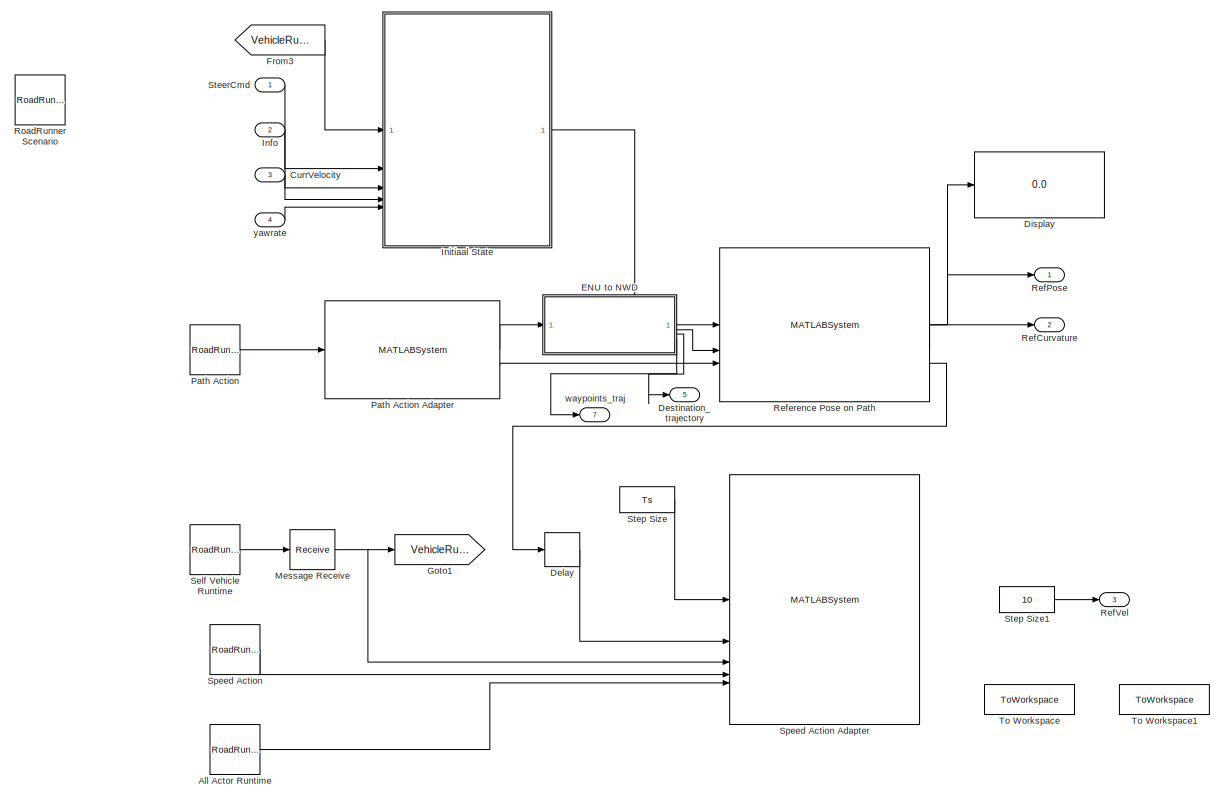
[diagram: Roadrunner Port - part 1/5, top left region]
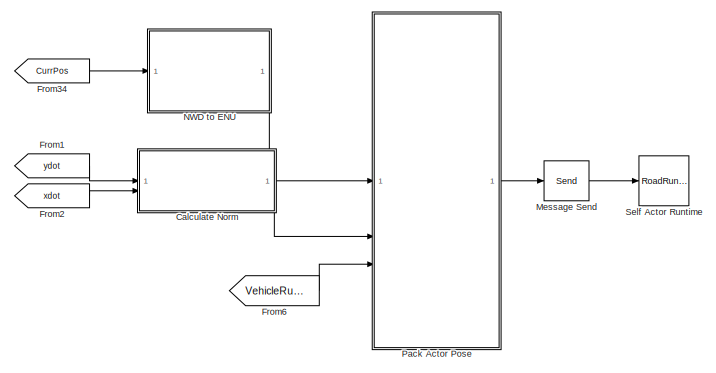
[diagram: Roadrunner Port - part 2/5, top right region]
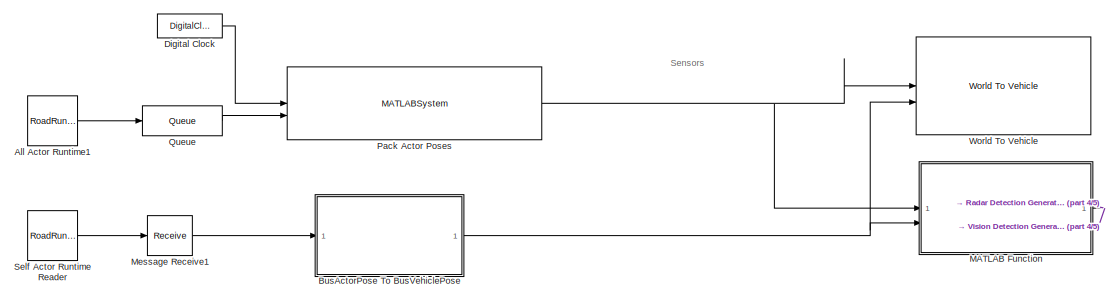
[diagram: Roadrunner Port - part 3/5, bottom left region]
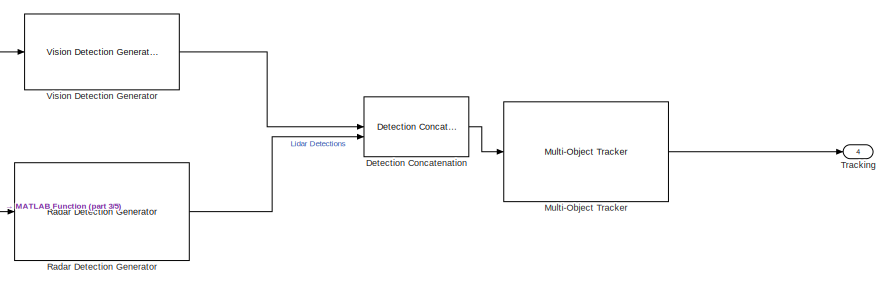
[diagram: Roadrunner Port - part 4/5, bottom right region]
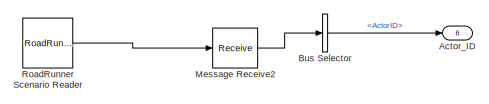
[diagram: Roadrunner Port - part 5/5, bottom left region]
BLOCK [SubSystem] Roadrunner Port
BLOCK [Outport] Roadrunner Port/Actor_ID
  Port = 6
BLOCK [Reference] Roadrunner Port/All Actor Runtime  REF=roadrunnerscenario/RoadRunner Scenario
Reader
  SourceBlock = roadrunnerscenario/RoadRunner Scenario\nReader
BLOCK [Reference] Roadrunner Port/All Actor Runtime1  REF=roadrunnerscenario/RoadRunner Scenario
Reader
  SourceBlock = roadrunnerscenario/RoadRunner Scenario\nReader
BLOCK [BusSelector] Roadrunner Port/Bus Selector
  OutputSignals = ActorID
BLOCK [SubSystem] Roadrunner Port/BusActorPose To BusVehiclePose
BLOCK [BusCreator] Roadrunner Port/BusActorPose To BusVehiclePose/Bus Creator
  DisplayOption = bar
  InheritFromInputs = off
  Inputs = 7
  NonVirtualBus = on
  OutDataTypeStr = Bus: BusVehiclePose
BLOCK [BusSelector] Roadrunner Port/BusActorPose To BusVehiclePose/Bus Selector
  OutputSignals = ActorID,Position,Velocity,Roll,Pitch,Yaw,AngularVelocity
BLOCK [Inport] Roadrunner Port/BusActorPose To BusVehiclePose/BusActorPose
BLOCK [Outport] Roadrunner Port/BusActorPose To BusVehiclePose/BusVehiclePose
BLOCK [SubSystem] Roadrunner Port/Calculate Norm
BLOCK [Sum] Roadrunner Port/Calculate Norm/Add
  IconShape = rectangular
BLOCK [Inport] Roadrunner Port/Calculate Norm/Lateral Velocity
BLOCK [Inport] Roadrunner Port/Calculate Norm/Longitudinal Velocity
  Port = 2
BLOCK [Math] Roadrunner Port/Calculate Norm/Math Function
  Operator = square
BLOCK [Math] Roadrunner Port/Calculate Norm/Math Function1
  Operator = square
BLOCK [Outport] Roadrunner Port/Calculate Norm/Speed
BLOCK [Sqrt] Roadrunner Port/Calculate Norm/Sqrt
BLOCK [Inport] Roadrunner Port/CurrVelocity
  Port = 3
BLOCK [Delay] Roadrunner Port/Delay
  DelayLength = 1
  InitialCondition = logical(0)
  InputPortMap = u0
BLOCK [Outport] Roadrunner Port/Destination_trajectory
  Port = 5
BLOCK [Reference] Roadrunner Port/Detection Concatenation  REF=trackingutilitieslib/Detection Concatenation
  SourceBlock = trackingutilitieslib/Detection Concatenation
  SourceType = matlabshared.tracking.internal.DetectionConcatenation
BLOCK [DigitalClock] Roadrunner Port/Digital Clock
  SampleTime = Ts
BLOCK [Display] Roadrunner Port/Display
  Decimation = 1
BLOCK [SubSystem] Roadrunner Port/ENU to NWD
BLOCK [Outport] Roadrunner Port/ENU to NWD/Cuboid Position
BLOCK [Display] Roadrunner Port/ENU to NWD/Display1
  Decimation = 1
BLOCK [Display] Roadrunner Port/ENU to NWD/Display4
  Decimation = 1
BLOCK [Display] Roadrunner Port/ENU to NWD/Display5
  Decimation = 1
BLOCK [Gain] Roadrunner Port/ENU to NWD/Gain
  Gain = -1
BLOCK [SubSystem] Roadrunner Port/ENU to NWD/MATLAB Function
  ErrorFcn = Stateflow.Translate.translate
  LibrarySourceBlock = simulink/User-Defined\nFunctions/MATLAB Function
  PermitHierarchicalResolution = ExplicitOnly
  SFBlockType = MATLAB Function
  TreatAsAtomicUnit = on
BLOCK [Demux] Roadrunner Port/ENU to NWD/MATLAB Function/ Demux 
  Outputs = 1
BLOCK [S-Function] Roadrunner Port/ENU to NWD/MATLAB Function/ SFunction 
  EnableBusSupport = on
  FunctionName = sf_sfun
  PortCounts = [1 3]
  SFcnIsStateOwnerBlock = off
  SFunctionDeploymentMode = off
  Tag = Stateflow S-Function 25
BLOCK [Terminator] Roadrunner Port/ENU to NWD/MATLAB Function/ Terminator 
BLOCK [Outport] Roadrunner Port/ENU to NWD/MATLAB Function/destination_traj
BLOCK [Outport] Roadrunner Port/ENU to NWD/MATLAB Function/last_idx
  Port = 2
BLOCK [Inport] Roadrunner Port/ENU to NWD/MATLAB Function/traj
BLOCK [SubSystem] Roadrunner Port/ENU to NWD/MATLAB Function1
  ErrorFcn = Stateflow.Translate.translate
  LibrarySourceBlock = simulink/User-Defined\nFunctions/MATLAB Function
  PermitHierarchicalResolution = ExplicitOnly
  SFBlockType = MATLAB Function
  TreatAsAtomicUnit = on
BLOCK [Demux] Roadrunner Port/ENU to NWD/MATLAB Function1/ Demux 
  Outputs = 1
BLOCK [S-Function] Roadrunner Port/ENU to NWD/MATLAB Function1/ SFunction 
  EnableBusSupport = on
  FunctionName = sf_sfun
  PortCounts = [1 2]
  SFcnIsStateOwnerBlock = off
  SFunctionDeploymentMode = off
  Tag = Stateflow S-Function 32
BLOCK [Terminator] Roadrunner Port/ENU to NWD/MATLAB Function1/ Terminator 
BLOCK [Inport] Roadrunner Port/ENU to NWD/MATLAB Function1/traj
BLOCK [Outport] Roadrunner Port/ENU to NWD/MATLAB Function1/trajectory_way
BLOCK [Concatenate] Roadrunner Port/ENU to NWD/Matrix Concatenate
  ConcatenateDimension = 2
  Mode = Multidimensional array
  NumInputs = 3
BLOCK [Inport] Roadrunner Port/ENU to NWD/RR Position
BLOCK [Selector] Roadrunner Port/ENU to NWD/Selector
  IndexOptions = Select all,Index vector (dialog)
  Indices = [1 3],1
  InputPortWidth = 3
  NumberOfDimensions = 2
  OutputSizes = 1,1
BLOCK [Selector] Roadrunner Port/ENU to NWD/Selector1
  IndexOptions = Select all,Index vector (dialog)
  Indices = [1 3],2
  InputPortWidth = 3
  NumberOfDimensions = 2
  OutputSizes = 1,1
BLOCK [Selector] Roadrunner Port/ENU to NWD/Selector2
  IndexOptions = Select all,Index vector (dialog)
  Indices = [1 3],3
  InputPortWidth = 3
  NumberOfDimensions = 2
  OutputSizes = 1,1
BLOCK [Outport] Roadrunner Port/ENU to NWD/Trajectory Destination
  Port = 2
BLOCK [Outport] Roadrunner Port/ENU to NWD/Waypts_traj
  Port = 3
  VarSizeSig = No
BLOCK [From] Roadrunner Port/From1
  GotoTag = ydot
BLOCK [From] Roadrunner Port/From2
  GotoTag = xdot
BLOCK [From] Roadrunner Port/From3
  GotoTag = VehicleRuntime
BLOCK [From] Roadrunner Port/From34
  GotoTag = CurrPos
  TagVisibility = global
BLOCK [From] Roadrunner Port/From6
  GotoTag = VehicleRuntime
BLOCK [Goto] Roadrunner Port/Goto1
  GotoTag = VehicleRuntime
BLOCK [Inport] Roadrunner Port/Info
  Port = 2
BLOCK [SubSystem] Roadrunner Port/Initiaal State
BLOCK [Constant] Roadrunner Port/Initiaal State/Constant5
BLOCK [Outport] Roadrunner Port/Initiaal State/CurrVehicleInfo
BLOCK [Inport] Roadrunner Port/Initiaal State/CurrVelocity
  Port = 4
BLOCK [Inport] Roadrunner Port/Initiaal State/Info
  Port = 3
BLOCK [SubSystem] Roadrunner Port/Initiaal State/Initialize State
BLOCK [SubSystem] Roadrunner Port/Initiaal State/Initialize State/Calculate Initial States
BLOCK [SubSystem] Roadrunner Port/Initiaal State/Initialize State/Calculate Initial States/Calculate Initial States
  ErrorFcn = Stateflow.Translate.translate
  PermitHierarchicalResolution = ExplicitOnly
  SFBlockType = MATLAB Function
  TreatAsAtomicUnit = on
BLOCK [Demux] Roadrunner Port/Initiaal State/Initialize State/Calculate Initial States/Calculate Initial States/ Demux 
  Outputs = 1
BLOCK [S-Function] Roadrunner Port/Initiaal State/Initialize State/Calculate Initial States/Calculate Initial States/ SFunction 
  EnableBusSupport = on
  FunctionName = sf_sfun
  PortCounts = [1 2]
  SFcnIsStateOwnerBlock = off
  SFunctionDeploymentMode = off
  Tag = Stateflow S-Function 9
BLOCK [Terminator] Roadrunner Port/Initiaal State/Initialize State/Calculate Initial States/Calculate Initial States/ Terminator 
BLOCK [Outport] Roadrunner Port/Initiaal State/Initialize State/Calculate Initial States/Calculate Initial States/egoInitialState
BLOCK [Inport] Roadrunner Port/Initiaal State/Initialize State/Calculate Initial States/Calculate Initial States/egoRuntime
BLOCK [Outport] Roadrunner Port/Initiaal State/Initialize State/Calculate Initial States/EgoInitialState
BLOCK [Inport] Roadrunner Port/Initiaal State/Initialize State/Calculate Initial States/EgoRuntime
BLOCK [TriggerPort] Roadrunner Port/Initiaal State/Initialize State/Calculate Initial States/Trigger
  InitialTriggerSignalState = negative
  PortDimensions = 1
  StatesWhenEnabling = held
  VariantControl = (inherit)
BLOCK [Constant] Roadrunner Port/Initiaal State/Initialize State/Constant
  SampleTime = 0.05
  Value = 0
BLOCK [Delay] Roadrunner Port/Initiaal State/Initialize State/Delay
  DelayLength = 1
  InitialCondition = 1
  InputPortMap = u0
BLOCK [Outport] Roadrunner Port/Initiaal State/Initialize State/InitialState
BLOCK [Inport] Roadrunner Port/Initiaal State/Initialize State/VehicleRuntime
BLOCK [SubSystem] Roadrunner Port/Initiaal State/Pack Current States
BLOCK [BusCreator] Roadrunner Port/Initiaal State/Pack Current States/Bus Creator
  DisplayOption = bar
  InheritFromInputs = off
  Inputs = 5
  NonVirtualBus = on
  OutDataTypeStr = Bus: BusVehicleInfo
BLOCK [BusSelector] Roadrunner Port/Initiaal State/Pack Current States/Bus Selector
  OutputSignals = InertFrm.RearAxl.Disp.X,InertFrm.RearAxl.Disp.Y,InertFrm.Cg.Ang.psi
BLOCK [Inport] Roadrunner Port/Initiaal State/Pack Current States/CurrSteer
BLOCK [Outport] Roadrunner Port/Initiaal State/Pack Current States/CurrVehicleInfo
  VectorParamsAs1DForOutWhenUnconnected = off
BLOCK [Inport] Roadrunner Port/Initiaal State/Pack Current States/CurrVelocity
  Port = 3
BLOCK [Inport] Roadrunner Port/Initiaal State/Pack Current States/CurrYawRate
  Port = 4
BLOCK [Delay] Roadrunner Port/Initiaal State/Pack Current States/Delay1
  DelayLength = 1
  InitialConditionSource = Input port
  InputPortMap = u0,p4
BLOCK [SubSystem] Roadrunner Port/Initiaal State/Pack Current States/Delayed Steering System
BLOCK [Sum] Roadrunner Port/Initiaal State/Pack Current States/Delayed Steering System/Add
  IconShape = rectangular
  Inputs = +-
BLOCK [Outport] Roadrunner Port/Initiaal State/Pack Current States/Delayed Steering System/CurrSteer
  VectorParamsAs1DForOutWhenUnconnected = off
BLOCK [TransferFcn] Roadrunner Port/Initiaal State/Pack Current States/Delayed Steering System/Delay
  Denominator = [0.1 0]
BLOCK [Inport] Roadrunner Port/Initiaal State/Pack Current States/Delayed Steering System/SteerCmd
BLOCK [Inport] Roadrunner Port/Initiaal State/Pack Current States/Direction
  Port = 6
BLOCK [Inport] Roadrunner Port/Initiaal State/Pack Current States/Info
  Port = 2
BLOCK [Math] Roadrunner Port/Initiaal State/Pack Current States/Math Function
  Operator = transpose
  SignedPower = on
BLOCK [Mux] Roadrunner Port/Initiaal State/Pack Current States/Mux
  DisplayOption = bar
  Inputs = 3
BLOCK [Reference] Roadrunner Port/Initiaal State/Pack Current States/Radians to Degrees  REF=simulink_extras/Transformations/Radians
to Degrees
  SourceBlock = simulink_extras/Transformations/Radians\nto Degrees
  SourceType = RadiansToDegrees
BLOCK [RateTransition] Roadrunner Port/Initiaal State/Pack Current States/Rate Transition1
  InitialCondition = -1
  OutPortSampleTime = Ts
BLOCK [RateTransition] Roadrunner Port/Initiaal State/Pack Current States/Rate Transition2
  InitialCondition = -1
  OutPortSampleTime = Ts
BLOCK [RateTransition] Roadrunner Port/Initiaal State/Pack Current States/Rate Transition3
  InitialCondition = -1
  OutPortSampleTime = Ts
BLOCK [RateTransition] Roadrunner Port/Initiaal State/Pack Current States/Rate Transition4
  InitialCondition = -1
  OutPortSampleTime = Ts
BLOCK [RateTransition] Roadrunner Port/Initiaal State/Pack Current States/Rate Transition5
  InitialCondition = -1
  OutPortSampleTime = Ts
BLOCK [RateTransition] Roadrunner Port/Initiaal State/Pack Current States/Rate Transition6
  InitialCondition = -1
  OutPortSampleTime = Ts
BLOCK [Inport] Roadrunner Port/Initiaal State/Pack Current States/egoInitialState
  Port = 5
BLOCK [Inport] Roadrunner Port/Initiaal State/SteerCmd
  Port = 2
BLOCK [Inport] Roadrunner Port/Initiaal State/VehicleRuntime
BLOCK [Inport] Roadrunner Port/Initiaal State/yawrate
  Port = 5
BLOCK [SubSystem] Roadrunner Port/MATLAB Function
  ErrorFcn = Stateflow.Translate.translate
  LibrarySourceBlock = simulink/User-Defined\nFunctions/MATLAB Function
  PermitHierarchicalResolution = ExplicitOnly
  SFBlockType = MATLAB Function
  TreatAsAtomicUnit = on
BLOCK [Demux] Roadrunner Port/MATLAB Function/ Demux 
  Outputs = 1
BLOCK [S-Function] Roadrunner Port/MATLAB Function/ SFunction 
  EnableBusSupport = on
  FunctionName = sf_sfun
  PortCounts = [2 2]
  SFcnIsStateOwnerBlock = off
  SFunctionDeploymentMode = off
  Tag = Stateflow S-Function 13
BLOCK [Terminator] Roadrunner Port/MATLAB Function/ Terminator 
BLOCK [Inport] Roadrunner Port/MATLAB Function/ActorsIn
BLOCK [Outport] Roadrunner Port/MATLAB Function/EgoRefActors
BLOCK [Inport] Roadrunner Port/MATLAB Function/EgoVeh
  Port = 2
BLOCK [Receive] Roadrunner Port/Message Receive
  InputPortMap = u0
  InputPortMessageModes = m
  OutputPortMap = o1
BLOCK [Receive] Roadrunner Port/Message Receive1
  InputPortMap = u0
  InputPortMessageModes = m
  OutputPortMap = o1
  SampleTime = Ts
BLOCK [Receive] Roadrunner Port/Message Receive2
  InputPortMap = u0
  InputPortMessageModes = m
  OutputPortMap = o1
  SampleTime = Ts
BLOCK [Send] Roadrunner Port/Message Send
  InputPortMap = u1
  OutputPortMessageModes = m
BLOCK [Reference] Roadrunner Port/Multi-Object Tracker  REF=drivinglib/Multi-Object Tracker
  SourceBlock = drivinglib/Multi-Object Tracker
  SourceType = multiObjectTracker
BLOCK [SubSystem] Roadrunner Port/NWD to ENU
BLOCK [Inport] Roadrunner Port/NWD to ENU/Cuboid Pose
BLOCK [Gain] Roadrunner Port/NWD to ENU/Gain1
  Gain = -1
BLOCK [Concatenate] Roadrunner Port/NWD to ENU/Matrix Concatenate
  ConcatenateDimension = 2
  Mode = Multidimensional array
  NumInputs = 3
BLOCK [Outport] Roadrunner Port/NWD to ENU/RR Pose
BLOCK [Selector] Roadrunner Port/NWD to ENU/Selector
  IndexOptions = Index vector (dialog)
  Indices = 3
  InputPortWidth = 3
  OutputSizes = 1
BLOCK [Selector] Roadrunner Port/NWD to ENU/Selector1
  IndexOptions = Index vector (dialog)
  Indices = 1
  InputPortWidth = 3
  OutputSizes = 1
BLOCK [Selector] Roadrunner Port/NWD to ENU/Selector2
  IndexOptions = Index vector (dialog)
  Indices = 2
  InputPortWidth = 3
  OutputSizes = 1
BLOCK [SubSystem] Roadrunner Port/Pack Actor Pose
BLOCK [BusAssignment] Roadrunner Port/Pack Actor Pose/Assign
  AssignedSignals = Pose,Velocity
BLOCK [BusSelector] Roadrunner Port/Pack Actor Pose/Bus Selector
  OutputSignals = ActorRuntime
BLOCK [Inport] Roadrunner Port/Pack Actor Pose/CurrPose
BLOCK [Inport] Roadrunner Port/Pack Actor Pose/CurrSpeed
  Port = 2
BLOCK [Outport] Roadrunner Port/Pack Actor Pose/Ego Pose
BLOCK [SubSystem] Roadrunner Port/Pack Actor Pose/Pose Generation
  ErrorFcn = Stateflow.Translate.translate
  PermitHierarchicalResolution = ExplicitOnly
  SFBlockType = MATLAB Function
  TreatAsAtomicUnit = on
BLOCK [Demux] Roadrunner Port/Pack Actor Pose/Pose Generation/ Demux 
  Outputs = 1
BLOCK [S-Function] Roadrunner Port/Pack Actor Pose/Pose Generation/ SFunction 
  EnableBusSupport = on
  FunctionName = sf_sfun
  PortCounts = [1 2]
  SFcnIsStateOwnerBlock = off
  SFunctionDeploymentMode = off
  Tag = Stateflow S-Function 21
BLOCK [Terminator] Roadrunner Port/Pack Actor Pose/Pose Generation/ Terminator 
BLOCK [Outport] Roadrunner Port/Pack Actor Pose/Pose Generation/currPose
BLOCK [Inport] Roadrunner Port/Pack Actor Pose/Pose Generation/pose
BLOCK [Selector] Roadrunner Port/Pack Actor Pose/Selector
  IndexOptions = Index vector (dialog)
  Indices = 3
  InputPortWidth = 3
  OutputSizes = 1
BLOCK [Inport] Roadrunner Port/Pack Actor Pose/VehicleRuntime
  Port = 3
BLOCK [SubSystem] Roadrunner Port/Pack Actor Pose/Velocity XYZ Components
  ErrorFcn = Stateflow.Translate.translate
  PermitHierarchicalResolution = ExplicitOnly
  SFBlockType = MATLAB Function
  TreatAsAtomicUnit = on
BLOCK [Demux] Roadrunner Port/Pack Actor Pose/Velocity XYZ Components/ Demux 
  Outputs = 1
BLOCK [S-Function] Roadrunner Port/Pack Actor Pose/Velocity XYZ Components/ SFunction 
  EnableBusSupport = on
  FunctionName = sf_sfun
  PortCounts = [2 2]
  SFcnIsStateOwnerBlock = off
  SFunctionDeploymentMode = off
  Tag = Stateflow S-Function 24
BLOCK [Terminator] Roadrunner Port/Pack Actor Pose/Velocity XYZ Components/ Terminator 
BLOCK [Inport] Roadrunner Port/Pack Actor Pose/Velocity XYZ Components/speed
  Port = 2
BLOCK [Outport] Roadrunner Port/Pack Actor Pose/Velocity XYZ Components/velocity
BLOCK [Inport] Roadrunner Port/Pack Actor Pose/Velocity XYZ Components/yaw
BLOCK [MATLABSystem] Roadrunner Port/Pack Actor Poses
  ActorProfiles = struct( 'ActorID', 1, 'ClassID', 1, 'Length', 4.7, 'Width', 1.8, 'Height', 1.4, 'OriginOffset', [ 0, 0, 0 ], 'FrontOverhang', 0, 'RearOverhang', 0, 'Wheelbase', 0, 'Color', [ 0, 0, 0 ] )
  DefaultActorPoses = Simulink.Bus.createMATLABStruct( "BusActors" )
  EgoActorID = 1
  InputPortMessageModes = n,m
  MaskDisplay = disp(['HelperPack' char(10) 'DrivingScenarioPoses']);\nport_label('input',1,'time');\nport_label('input',2,'msgs');\nport_label('output',1,'TargetPoses');
  MaskType = HelperPackDrivingScenarioPoses
  System = HelperPackDrivingScenarioPoses
BLOCK [Reference] Roadrunner Port/Path Action  REF=roadrunnerscenario/RoadRunner Scenario
Reader
  SourceBlock = roadrunnerscenario/RoadRunner Scenario\nReader
BLOCK [MATLABSystem] Roadrunner Port/Path Action Adapter
  InputPortMessageModes = m
  MaskDisplay = disp(['HelperPathActionAdapter' char(10) '' char(10) '']);\nport_label('input',1,'PathAction');\nport_label('output',1,'Path');\nport_label('output',2,'NumPoints');
  MaskType = HelperPathActionAdapter
  System = HelperPathActionAdapter
BLOCK [Queue] Roadrunner Port/Queue
  Capacity = maxNumActors
  InputPortMap = u0
  InputPortMessageModes = m
  OutputPortMap = o5
  OutputPortMessageModes = m
  OverwriteOldest = on
BLOCK [Reference] Roadrunner Port/Radar Detection Generator  REF=drivingscenarioandsensors/Radar Detection Generator
  SourceBlock = drivingscenarioandsensors/Radar Detection Generator
  SourceType = radarDetectionGenerator
BLOCK [Outport] Roadrunner Port/RefCurvature
  Port = 2
BLOCK [Outport] Roadrunner Port/RefPose
BLOCK [Outport] Roadrunner Port/RefVel
  Port = 3
BLOCK [MATLABSystem] Roadrunner Port/Reference Pose on Path
  MaskDisplay = disp(['HelperReferencePoseOnPath' char(10) '' char(10) '' char(10) '' char(10) '']);\nport_label('input',1,'PrevVehicleInfo');\nport_label('input',2,'Trajectory');\nport_label('input',3,'NumTrajPoints');\nport_label('output',1,'RefPointOnPath');\nport_label('output',2,'RefCurvature');\nport_label('output',3,'IsGoalReached');
  MaskType = HelperReferencePoseOnPath
  System = HelperReferencePoseOnPath
BLOCK [Reference] Roadrunner Port/RoadRunner Scenario  REF=roadrunnerscenario/RoadRunner Scenario
  SourceBlock = roadrunnerscenario/RoadRunner Scenario
BLOCK [Reference] Roadrunner Port/RoadRunner Scenario Reader  REF=roadrunnerscenario/RoadRunner Scenario
Reader
  SourceBlock = roadrunnerscenario/RoadRunner Scenario\nReader
BLOCK [Reference] Roadrunner Port/Self Actor Runtime  REF=roadrunnerscenario/RoadRunner Scenario
Writer
  SourceBlock = roadrunnerscenario/RoadRunner Scenario\nWriter
BLOCK [Reference] Roadrunner Port/Self Actor Runtime Reader  REF=roadrunnerscenario/RoadRunner Scenario
Reader
  SourceBlock = roadrunnerscenario/RoadRunner Scenario\nReader
BLOCK [Reference] Roadrunner Port/Self Vehicle Runtime  REF=roadrunnerscenario/RoadRunner Scenario
Reader
  SourceBlock = roadrunnerscenario/RoadRunner Scenario\nReader
BLOCK [Reference] Roadrunner Port/Speed Action  REF=roadrunnerscenario/RoadRunner Scenario
Reader
  SourceBlock = roadrunnerscenario/RoadRunner Scenario\nReader
BLOCK [MATLABSystem] Roadrunner Port/Speed Action Adapter
  Commented = on
  InputPortMessageModes = n,n,n,m,m
  MaskDisplay = disp(['HelperSpeedActionAdapter' char(10) '' char(10) '']);\nport_label('input',1,'timestep');\nport_label('input',2,'stopVehicle');\nport_label('input',3,'vehicleRuntime');\nport_label('input',4,'msgSpeedAction');\nport_label('input',5,'msgAllVehicleRuntime');\nport_label('output',1,'currentSpeed');
  MaskType = HelperSpeedActionAdapter
  System = HelperSpeedActionAdapter
BLOCK [Inport] Roadrunner Port/SteerCmd
BLOCK [Constant] Roadrunner Port/Step Size
  Value = Ts
BLOCK [Constant] Roadrunner Port/Step Size1
  Value = 10
BLOCK [ToWorkspace] Roadrunner Port/To Workspace
  FixptAsFi = on
  MaxDataPoints = inf
  SampleTime = -1
  SaveFormat = Timeseries
  VariableName = simout
BLOCK [ToWorkspace] Roadrunner Port/To Workspace1
  FixptAsFi = on
  MaxDataPoints = inf
  SampleTime = -1
  SaveFormat = Timeseries
  VariableName = simout1
BLOCK [Outport] Roadrunner Port/Tracking
  Port = 4
BLOCK [Reference] Roadrunner Port/Vision Detection Generator  REF=drivingscenarioandsensors/Vision Detection Generator
  SourceBlock = drivingscenarioandsensors/Vision Detection Generator
  SourceType = visionDetectionGenerator
BLOCK [Reference] Roadrunner Port/World To Vehicle  REF=drivingscenarioandsensors/World To Vehicle
  Commented = on
  SourceBlock = drivingscenarioandsensors/World To Vehicle
  SourceType = driving.scenario.internal.WorldToVehicle
BLOCK [Outport] Roadrunner Port/waypoints_traj
  Port = 7
BLOCK [Inport] Roadrunner Port/yawrate
  Port = 4
BLOCK [Scope] Scope
  Floating = off
  IOType = viewer
  NumInputPorts = 1
  ScopeSpecificationString = Simulink.scopes.TimeScopeBlockCfg('CurrentConfiguration', extmgr.ConfigurationSet(extmgr.Configuration('Core','General UI',true),extmgr.Configuration('Core','Source UI',true),extmgr.Configuration('Sources','WiredSimulink',true,'DataLoggingVariableName','ScopeData1'),extmgr.Configuration('Visuals','Time Domain',true,'SerializedDisplays',{struct('MinYLimReal','-12.23755','MaxYLimReal','85.04144','YL...<+1365ch>
BLOCK [Scope] Scope1
  Floating = off
  IOType = viewer
  NumInputPorts = 1
  ScopeSpecificationString = Simulink.scopes.TimeScopeBlockCfg('CurrentConfiguration', extmgr.ConfigurationSet(extmgr.Configuration('Core','General UI',true),extmgr.Configuration('Core','Source UI',true),extmgr.Configuration('Sources','WiredSimulink',true,'DataLoggingVariableName','ScopeData2'),extmgr.Configuration('Visuals','Time Domain',true,'SerializedDisplays',{struct('MinYLimReal','-11.94055','MaxYLimReal','85.00844','YL...<+1365ch>
BLOCK [Stop] Stop Simulation1
  Commented = on
BLOCK [SubSystem] Subsystem
  Commented = on
BLOCK [Inport] Subsystem/CurrentPose
  Port = 2
BLOCK [Delay] Subsystem/Delay
  DelayLength = 1
  InputPortMap = u0
BLOCK [Delay] Subsystem/Delay1
  DelayLength = 1
  InputPortMap = u0
BLOCK [Display] Subsystem/Display
  Decimation = 1
BLOCK [Display] Subsystem/Display1
  Decimation = 1
BLOCK [Display] Subsystem/Display2
  Decimation = 1
BLOCK [From] Subsystem/From61
  GotoTag = flagLC
  TagVisibility = global
BLOCK [SubSystem] Subsystem/Function-Call Subsystem
  TreatAsAtomicUnit = on
BLOCK [Inport] Subsystem/Function-Call Subsystem/EgoPosition
  NameLocation = top
BLOCK [Outport] Subsystem/Function-Call Subsystem/LCinProgress
  InitialOutput = 0
  Port = 3
BLOCK [SubSystem] Subsystem/Function-Call Subsystem/MATLAB Function1
  Commented = on
  ErrorFcn = Stateflow.Translate.translate
  LibrarySourceBlock = simulink/User-Defined\nFunctions/MATLAB Function
  PermitHierarchicalResolution = ExplicitOnly
  SFBlockType = MATLAB Function
  TreatAsAtomicUnit = on
BLOCK [Demux] Subsystem/Function-Call Subsystem/MATLAB Function1/ Demux 
  Outputs = 1
BLOCK [S-Function] Subsystem/Function-Call Subsystem/MATLAB Function1/ SFunction 
  EnableBusSupport = on
  FunctionName = sf_sfun
  PortCounts = [8 4]
  SFcnIsStateOwnerBlock = off
  SFunctionDeploymentMode = off
  Tag = Stateflow S-Function 23
BLOCK [Terminator] Subsystem/Function-Call Subsystem/MATLAB Function1/ Terminator 
BLOCK [Inport] Subsystem/Function-Call Subsystem/MATLAB Function1/EgoPosition
BLOCK [Outport] Subsystem/Function-Call Subsystem/MATLAB Function1/LCinProgress
  Port = 3
BLOCK [Inport] Subsystem/Function-Call Subsystem/MATLAB Function1/MIOPos
  Port = 2
BLOCK [Inport] Subsystem/Function-Call Subsystem/MATLAB Function1/MIOVel
  Port = 4
BLOCK [Inport] Subsystem/Function-Call Subsystem/MATLAB Function1/V_desired
  Port = 8
BLOCK [Inport] Subsystem/Function-Call Subsystem/MATLAB Function1/V_i
  Port = 5
BLOCK [Inport] Subsystem/Function-Call Subsystem/MATLAB Function1/curvature
  Port = 3
BLOCK [Inport] Subsystem/Function-Call Subsystem/MATLAB Function1/laneL
  Port = 6
BLOCK [Inport] Subsystem/Function-Call Subsystem/MATLAB Function1/laneR
  Port = 7
BLOCK [Outport] Subsystem/Function-Call Subsystem/MATLAB Function1/xd
BLOCK [Outport] Subsystem/Function-Call Subsystem/MATLAB Function1/yd
  Port = 2
BLOCK [SubSystem] Subsystem/Function-Call Subsystem/MATLAB Function2
  ErrorFcn = Stateflow.Translate.translate
  LibrarySourceBlock = simulink/User-Defined\nFunctions/MATLAB Function
  PermitHierarchicalResolution = ExplicitOnly
  SFBlockType = MATLAB Function
  TreatAsAtomicUnit = on
BLOCK [Demux] Subsystem/Function-Call Subsystem/MATLAB Function2/ Demux 
  Outputs = 1
BLOCK [S-Function] Subsystem/Function-Call Subsystem/MATLAB Function2/ SFunction 
  EnableBusSupport = on
  FunctionName = sf_sfun
  PortCounts = [8 4]
  SFcnIsStateOwnerBlock = off
  SFunctionDeploymentMode = off
  Tag = Stateflow S-Function 8
BLOCK [Terminator] Subsystem/Function-Call Subsystem/MATLAB Function2/ Terminator 
BLOCK [Inport] Subsystem/Function-Call Subsystem/MATLAB Function2/EgoPosition
BLOCK [Outport] Subsystem/Function-Call Subsystem/MATLAB Function2/LCinProgress
  Port = 3
BLOCK [Inport] Subsystem/Function-Call Subsystem/MATLAB Function2/MIOPos
  Port = 2
BLOCK [Inport] Subsystem/Function-Call Subsystem/MATLAB Function2/MIOVel
  Port = 4
BLOCK [Inport] Subsystem/Function-Call Subsystem/MATLAB Function2/V_desired
  Port = 8
BLOCK [Inport] Subsystem/Function-Call Subsystem/MATLAB Function2/V_i
  Port = 5
BLOCK [Inport] Subsystem/Function-Call Subsystem/MATLAB Function2/curvature
  Port = 3
BLOCK [Inport] Subsystem/Function-Call Subsystem/MATLAB Function2/laneL
  Port = 6
BLOCK [Inport] Subsystem/Function-Call Subsystem/MATLAB Function2/laneR
  Port = 7
BLOCK [Outport] Subsystem/Function-Call Subsystem/MATLAB Function2/xd
BLOCK [Outport] Subsystem/Function-Call Subsystem/MATLAB Function2/yd
  Port = 2
BLOCK [Inport] Subsystem/Function-Call Subsystem/MIOPos
  Port = 2
BLOCK [Inport] Subsystem/Function-Call Subsystem/MIOVel
  Port = 5
BLOCK [Gain] Subsystem/Function-Call Subsystem/Multiply
  Commented = through
  Gain = -1
BLOCK [Gain] Subsystem/Function-Call Subsystem/Multiply1
  Gain = -1
BLOCK [Inport] Subsystem/Function-Call Subsystem/Road Curvature
  Port = 3
BLOCK [Scope] Subsystem/Function-Call Subsystem/Scope
  Floating = off
  NumInputPorts = 2
  ScopeSpecificationString = Simulink.scopes.TimeScopeBlockCfg('CurrentConfiguration', extmgr.ConfigurationSet(extmgr.Configuration('Core','General UI',true),extmgr.Configuration('Core','Source UI',true),extmgr.Configuration('Sources','WiredSimulink',true,'DataLoggingVariableName','ScopeData1'),extmgr.Configuration('Visuals','Time Domain',true,'SerializedDisplays',{struct('MinYLimReal','-17.62258','MaxYLimReal','21.43242','YL...<+6098ch>
BLOCK [Inport] Subsystem/Function-Call Subsystem/V_desired
  Port = 6
BLOCK [Inport] Subsystem/Function-Call Subsystem/Velocity_Initial_Ego
  Port = 4
BLOCK [TriggerPort] Subsystem/Function-Call Subsystem/function
  ShowOutputPort = on
  StatesWhenEnabling = held
  VariantControl = (inherit)
BLOCK [Inport] Subsystem/Function-Call Subsystem/laneL
  Port = 7
BLOCK [Inport] Subsystem/Function-Call Subsystem/laneR
  Port = 8
BLOCK [Outport] Subsystem/Function-Call Subsystem/xd
  InitialOutput = zeros(99,1)
BLOCK [Outport] Subsystem/Function-Call Subsystem/yd
  InitialOutput = zeros(99,1)
  Port = 2
BLOCK [Goto] Subsystem/Goto31
  GotoTag = xd
  TagVisibility = global
BLOCK [Goto] Subsystem/Goto32
  GotoTag = yd
  TagVisibility = global
BLOCK [Goto] Subsystem/Goto35
  GotoTag = LCinProgress
  TagVisibility = global
BLOCK [Inport] Subsystem/MIOPos
  Port = 3
BLOCK [Inport] Subsystem/MIOVel
  Port = 6
BLOCK [SubSystem] Subsystem/PathPlanner
BLOCK [Inport] Subsystem/PathPlanner/CurrentPose
BLOCK [Delay] Subsystem/PathPlanner/Delay1
  DelayLength = 1
  InputPortMap = u0
BLOCK [Delay] Subsystem/PathPlanner/Delay2
  DelayLength = 1
  InputPortMap = u0
BLOCK [Demux] Subsystem/PathPlanner/Demux
  Outputs = 3
BLOCK [FromWorkspace] Subsystem/PathPlanner/From Workspace
  VariableName = xRef2
BLOCK [FromWorkspace] Subsystem/PathPlanner/From Workspace1
  VariableName = yRef2
BLOCK [Inport] Subsystem/PathPlanner/LC
  Port = 4
BLOCK [SubSystem] Subsystem/PathPlanner/MATLAB Function3
  ErrorFcn = Stateflow.Translate.translate
  LibrarySourceBlock = simulink/User-Defined\nFunctions/MATLAB Function
  PermitHierarchicalResolution = ExplicitOnly
  SFBlockType = MATLAB Function
  TreatAsAtomicUnit = on
BLOCK [Demux] Subsystem/PathPlanner/MATLAB Function3/ Demux 
  Outputs = 1
BLOCK [S-Function] Subsystem/PathPlanner/MATLAB Function3/ SFunction 
  EnableBusSupport = on
  FunctionName = sf_sfun
  PortCounts = [7 4]
  SFcnIsStateOwnerBlock = off
  SFunctionDeploymentMode = off
  Tag = Stateflow S-Function 31
BLOCK [Terminator] Subsystem/PathPlanner/MATLAB Function3/ Terminator 
BLOCK [Inport] Subsystem/PathPlanner/MATLAB Function3/LC
  Port = 5
BLOCK [Inport] Subsystem/PathPlanner/MATLAB Function3/Xref
BLOCK [Inport] Subsystem/PathPlanner/MATLAB Function3/Yref
  Port = 2
BLOCK [Outport] Subsystem/PathPlanner/MATLAB Function3/check
  Port = 2
BLOCK [Inport] Subsystem/PathPlanner/MATLAB Function3/current_pos
  Port = 6
BLOCK [Inport] Subsystem/PathPlanner/MATLAB Function3/d2f
  Port = 7
BLOCK [Outport] Subsystem/PathPlanner/MATLAB Function3/dcheck
  Port = 3
BLOCK [Outport] Subsystem/PathPlanner/MATLAB Function3/out
BLOCK [Inport] Subsystem/PathPlanner/MATLAB Function3/xd
  Port = 3
BLOCK [Inport] Subsystem/PathPlanner/MATLAB Function3/yd
  Port = 4
BLOCK [SubSystem] Subsystem/PathPlanner/MATLAB Function4
  ErrorFcn = Stateflow.Translate.translate
  LibrarySourceBlock = simulink/User-Defined\nFunctions/MATLAB Function
  PermitHierarchicalResolution = ExplicitOnly
  SFBlockType = MATLAB Function
  TreatAsAtomicUnit = on
BLOCK [Demux] Subsystem/PathPlanner/MATLAB Function4/ Demux 
  Outputs = 1
BLOCK [S-Function] Subsystem/PathPlanner/MATLAB Function4/ SFunction 
  EnableBusSupport = on
  FunctionName = sf_sfun
  PortCounts = [2 3]
  SFcnIsStateOwnerBlock = off
  SFunctionDeploymentMode = off
  Tag = Stateflow S-Function 6
BLOCK [Terminator] Subsystem/PathPlanner/MATLAB Function4/ Terminator 
BLOCK [Inport] Subsystem/PathPlanner/MATLAB Function4/CurrentPose
  Port = 2
BLOCK [Outport] Subsystem/PathPlanner/MATLAB Function4/Distance
BLOCK [Inport] Subsystem/PathPlanner/MATLAB Function4/output
BLOCK [Outport] Subsystem/PathPlanner/MATLAB Function4/point
  Port = 2
BLOCK [RateTransition] Subsystem/PathPlanner/Rate Transition
BLOCK [Terminator] Subsystem/PathPlanner/Terminator
BLOCK [Outport] Subsystem/PathPlanner/check
  Port = 2
BLOCK [Outport] Subsystem/PathPlanner/dcheck
  Port = 3
BLOCK [Outport] Subsystem/PathPlanner/out
BLOCK [Inport] Subsystem/PathPlanner/xd
  Port = 2
BLOCK [Inport] Subsystem/PathPlanner/yd
  Port = 3
BLOCK [Inport] Subsystem/Road Curvature
  Port = 4
BLOCK [SubSystem] Subsystem/Signal Builder
  ClipboardFcn = sigbuilder_block('clipboard');
  CloseFcn = sigbuilder_block('close');
  ContinueFcn = sigbuilder_block('continue');
  CopyFcn = sigbuilder_block('copy');
  DeleteFcn = sigbuilder_block('delete');
  LoadFcn = sigbuilder_block('load');
  MaskHideContents = on
  ModelCloseFcn = sigbuilder_block('modelClose');
  NameChangeFcn = sigbuilder_block('namechange');
  OpenFcn = sigbuilder_block('open',[437.6 199.2 550.4 400 ]);
  PauseFcn = sigbuilder_block('pause');
  PreSaveFcn = sigbuilder_block('preSave');
  StartFcn = sigbuilder_block('start');
  StopFcn = sigbuilder_block('stop');
  Tag = STV Subsys
BLOCK [Demux] Subsystem/Signal Builder/Demux
  DisplayOption = none
  Outputs = 1
  Tag = STV Demux
BLOCK [FromWorkspace] Subsystem/Signal Builder/FromWs
  Tag = STV FromWs
  VariableName = tuvar
BLOCK [Outport] Subsystem/Signal Builder/Signal 1
  Tag = STV Outport
BLOCK [SubSystem] Subsystem/Signal Builder1
  ClipboardFcn = sigbuilder_block('clipboard');
  CloseFcn = sigbuilder_block('close');
  ContinueFcn = sigbuilder_block('continue');
  CopyFcn = sigbuilder_block('copy');
  DeleteFcn = sigbuilder_block('delete');
  LoadFcn = sigbuilder_block('load');
  MaskHideContents = on
  ModelCloseFcn = sigbuilder_block('modelClose');
  NameChangeFcn = sigbuilder_block('namechange');
  OpenFcn = sigbuilder_block('open',[437.6 199.2 550.4 400 ]);
  PauseFcn = sigbuilder_block('pause');
  PreSaveFcn = sigbuilder_block('preSave');
  StartFcn = sigbuilder_block('start');
  StopFcn = sigbuilder_block('stop');
  Tag = STV Subsys
BLOCK [Demux] Subsystem/Signal Builder1/Demux
  DisplayOption = none
  Outputs = 1
  Tag = STV Demux
BLOCK [FromWorkspace] Subsystem/Signal Builder1/FromWs
  Tag = STV FromWs
  VariableName = tuvar
BLOCK [Outport] Subsystem/Signal Builder1/Signal 1
  Tag = STV Outport
BLOCK [ToWorkspace] Subsystem/To Workspace2
  FixptAsFi = on
  MaxDataPoints = inf
  SampleTime = -1
  Save2DSignal = 2-D array (concatenate along first dimension)
  VariableName = xd
BLOCK [ToWorkspace] Subsystem/To Workspace3
  FixptAsFi = on
  MaxDataPoints = inf
  SampleTime = -1
  Save2DSignal = 2-D array (concatenate along first dimension)
  VariableName = yd
BLOCK [SubSystem] Subsystem/Turns LC in prog off
  ErrorFcn = Stateflow.Translate.translate
  LibrarySourceBlock = simulink/User-Defined\nFunctions/MATLAB Function
  PermitHierarchicalResolution = ExplicitOnly
  SFBlockType = MATLAB Function
  TreatAsAtomicUnit = on
BLOCK [Demux] Subsystem/Turns LC in prog off/ Demux 
  Outputs = 1
BLOCK [S-Function] Subsystem/Turns LC in prog off/ SFunction 
  EnableBusSupport = on
  FunctionName = sf_sfun
  PortCounts = [1 2]
  SFcnIsStateOwnerBlock = off
  SFunctionDeploymentMode = off
  Tag = Stateflow S-Function 26
BLOCK [Terminator] Subsystem/Turns LC in prog off/ Terminator 
BLOCK [Inport] Subsystem/Turns LC in prog off/u
BLOCK [Outport] Subsystem/Turns LC in prog off/y
BLOCK [Inport] Subsystem/V_desired
  Port = 7
BLOCK [Inport] Subsystem/Velocity_Initial_Ego
  Port = 5
BLOCK [Outport] Subsystem/check
  Port = 2
BLOCK [Outport] Subsystem/dcheck
  Port = 3
BLOCK [Inport] Subsystem/function
BLOCK [Outport] Subsystem/out
BLOCK [ToWorkspace] To Workspace1
  FixptAsFi = on
  MaxDataPoints = inf
  SampleTime = -1
  SaveFormat = Timeseries
  VariableName = LaneBounds
BLOCK [Reference] UDP Send: Controller Intermediate Signals  REF=slrealtimeiplib/UDP Send
  Commented = on
  SourceBlock = slrealtimeiplib/UDP Send
  SourceType = slrealtimeudpsend
BLOCK [Reference] UDP Send: Controller Intermediate Signals1  REF=slrealtimeiplib/UDP Send
  Commented = on
  SourceBlock = slrealtimeiplib/UDP Send
  SourceType = slrealtimeudpsend
BLOCK [Reference] UDP Send: Controller Intermediate Signals2  REF=slrealtimeiplib/UDP Send
  Commented = on
  SourceBlock = slrealtimeiplib/UDP Send
  SourceType = slrealtimeudpsend
BLOCK [Reference] UDP Send: Controller Intermediate Signals3  REF=slrealtimeiplib/UDP Send
  Commented = on
  SourceBlock = slrealtimeiplib/UDP Send
  SourceType = slrealtimeudpsend
BLOCK [Reference] UDP Send: Controller Output  REF=slrealtimeiplib/UDP Send
  Commented = on
  SourceBlock = slrealtimeiplib/UDP Send
  SourceType = slrealtimeudpsend
BLOCK [SubSystem] Vehicle Dynamics
BLOCK [Inport] Vehicle Dynamics/Actor_ID
  Port = 4
BLOCK [BusCreator] Vehicle Dynamics/Bus Creator1
  DisplayOption = bar
  InheritFromInputs = on
  Inputs = 4
BLOCK [BusCreator] Vehicle Dynamics/Bus Creator2
  DisplayOption = bar
  InheritFromInputs = on
  Inputs = 4
BLOCK [BusCreator] Vehicle Dynamics/Bus Creator3
  DisplayOption = bar
  InheritFromInputs = on
  Inputs = 4
BLOCK [BusCreator] Vehicle Dynamics/Bus Creator4
  DisplayOption = bar
  InheritFromInputs = on
  Inputs = 4
BLOCK [Constant] Vehicle Dynamics/Constant
  Value = 120
BLOCK [Constant] Vehicle Dynamics/Constant1
  Value = 0
BLOCK [Constant] Vehicle Dynamics/Constant2
  Value = -1000
BLOCK [Constant] Vehicle Dynamics/Constant3
BLOCK [Constant] Vehicle Dynamics/Constant4
BLOCK [Constant] Vehicle Dynamics/Constant5
BLOCK [Constant] Vehicle Dynamics/Constant9
BLOCK [Outport] Vehicle Dynamics/EgoVehStates
BLOCK [FromWorkspace] Vehicle Dynamics/From Workspace
  SampleTime = ts
  VariableName = BRAKE_CMD
BLOCK [FromWorkspace] Vehicle Dynamics/From Workspace1
  SampleTime = ts
  VariableName = STEER_CMD
BLOCK [FromWorkspace] Vehicle Dynamics/From Workspace4
  SampleTime = ts
  VariableName = TORQUE_CMD
BLOCK [Outport] Vehicle Dynamics/Info
  Port = 2
BLOCK [SubSystem] Vehicle Dynamics/Info2ActorState
BLOCK [Outport] Vehicle Dynamics/Info2ActorState/ActorState
BLOCK [Inport] Vehicle Dynamics/Info2ActorState/Actor_ID
  OutDataTypeStr = uint64
  Port = 2
BLOCK [BusCreator] Vehicle Dynamics/Info2ActorState/Bus Creator
  DisplayOption = bar
  InheritFromInputs = on
  Inputs = ActorID,Position,Velocity,Acceleration,Roll,Pitch,Yaw,AngularVelocity
  NonVirtualBus = on
  OutDataTypeStr = Bus: BusActorState
BLOCK [BusSelector] Vehicle Dynamics/Info2ActorState/Bus Selector
  OutputSignals = InertFrm.Cg.Disp.X,InertFrm.Cg.Disp.Y,InertFrm.Cg.Disp.Z,InertFrm.Cg.Vel.Xdot,InertFrm.Cg.Vel.Ydot,InertFrm.Cg.Vel.Zdot,InertFrm.Cg.Ang.phi,InertFrm.Cg.Ang.theta,InertFrm.Cg.Ang.psi
BLOCK [Constant] Vehicle Dynamics/Info2ActorState/Constant
BLOCK [Derivative] Vehicle Dynamics/Info2ActorState/Derivative
BLOCK [Derivative] Vehicle Dynamics/Info2ActorState/Derivative1
BLOCK [Derivative] Vehicle Dynamics/Info2ActorState/Derivative2
BLOCK [Derivative] Vehicle Dynamics/Info2ActorState/Derivative3
BLOCK [Derivative] Vehicle Dynamics/Info2ActorState/Derivative4
BLOCK [Derivative] Vehicle Dynamics/Info2ActorState/Derivative5
BLOCK [Gain] Vehicle Dynamics/Info2ActorState/Gain
  Gain = -180/pi
BLOCK [Gain] Vehicle Dynamics/Info2ActorState/Gain1
  Gain = -180/pi
BLOCK [Gain] Vehicle Dynamics/Info2ActorState/Gain2
  Gain = -180/pi
BLOCK [Gain] Vehicle Dynamics/Info2ActorState/Gain3
  Gain = -1
BLOCK [Gain] Vehicle Dynamics/Info2ActorState/Gain4
  Gain = -1
BLOCK [Gain] Vehicle Dynamics/Info2ActorState/Gain5
  Gain = -1
BLOCK [Gain] Vehicle Dynamics/Info2ActorState/Gain6
  Gain = -1
BLOCK [Inport] Vehicle Dynamics/Info2ActorState/Info
BLOCK [SubSystem] Vehicle Dynamics/Info2ActorState/MATLAB Function
  ErrorFcn = Stateflow.Translate.translate
  PermitHierarchicalResolution = ExplicitOnly
  SFBlockType = MATLAB Function
  SystemSampleTime = 0.05
  TreatAsAtomicUnit = on
BLOCK [Demux] Vehicle Dynamics/Info2ActorState/MATLAB Function/ Demux 
  Outputs = 1
BLOCK [S-Function] Vehicle Dynamics/Info2ActorState/MATLAB Function/ SFunction 
  EnableBusSupport = on
  FunctionName = sf_sfun
  PortCounts = [3 2]
  SFcnIsStateOwnerBlock = off
  SFunctionDeploymentMode = off
  Tag = Stateflow S-Function 5
BLOCK [Terminator] Vehicle Dynamics/Info2ActorState/MATLAB Function/ Terminator 
BLOCK [Outport] Vehicle Dynamics/Info2ActorState/MATLAB Function/Position
BLOCK [Inport] Vehicle Dynamics/Info2ActorState/MATLAB Function/X
BLOCK [Inport] Vehicle Dynamics/Info2ActorState/MATLAB Function/Y
  Port = 2
BLOCK [Inport] Vehicle Dynamics/Info2ActorState/MATLAB Function/Z
  Port = 3
BLOCK [SubSystem] Vehicle Dynamics/Info2ActorState/MATLAB Function1
  ErrorFcn = Stateflow.Translate.translate
  PermitHierarchicalResolution = ExplicitOnly
  SFBlockType = MATLAB Function
  SystemSampleTime = 0.05
  TreatAsAtomicUnit = on
BLOCK [Demux] Vehicle Dynamics/Info2ActorState/MATLAB Function1/ Demux 
  Outputs = 1
BLOCK [S-Function] Vehicle Dynamics/Info2ActorState/MATLAB Function1/ SFunction 
  EnableBusSupport = on
  FunctionName = sf_sfun
  PortCounts = [3 2]
  SFcnIsStateOwnerBlock = off
  SFunctionDeploymentMode = off
  Tag = Stateflow S-Function 12
BLOCK [Terminator] Vehicle Dynamics/Info2ActorState/MATLAB Function1/ Terminator 
BLOCK [Outport] Vehicle Dynamics/Info2ActorState/MATLAB Function1/Velocity
BLOCK [Inport] Vehicle Dynamics/Info2ActorState/MATLAB Function1/Xdot
BLOCK [Inport] Vehicle Dynamics/Info2ActorState/MATLAB Function1/Ydot
  Port = 2
BLOCK [Inport] Vehicle Dynamics/Info2ActorState/MATLAB Function1/Zdot
  Port = 3
BLOCK [SubSystem] Vehicle Dynamics/Info2ActorState/MATLAB Function2
  ErrorFcn = Stateflow.Translate.translate
  PermitHierarchicalResolution = ExplicitOnly
  SFBlockType = MATLAB Function
  SystemSampleTime = 0.05
  TreatAsAtomicUnit = on
BLOCK [Demux] Vehicle Dynamics/Info2ActorState/MATLAB Function2/ Demux 
  Outputs = 1
BLOCK [S-Function] Vehicle Dynamics/Info2ActorState/MATLAB Function2/ SFunction 
  EnableBusSupport = on
  FunctionName = sf_sfun
  PortCounts = [3 2]
  SFcnIsStateOwnerBlock = off
  SFunctionDeploymentMode = off
  Tag = Stateflow S-Function 15
BLOCK [Terminator] Vehicle Dynamics/Info2ActorState/MATLAB Function2/ Terminator 
BLOCK [Outport] Vehicle Dynamics/Info2ActorState/MATLAB Function2/Acceleration
BLOCK [Inport] Vehicle Dynamics/Info2ActorState/MATLAB Function2/aX
BLOCK [Inport] Vehicle Dynamics/Info2ActorState/MATLAB Function2/aY
  Port = 2
BLOCK [Inport] Vehicle Dynamics/Info2ActorState/MATLAB Function2/aZ
  Port = 3
BLOCK [SubSystem] Vehicle Dynamics/Info2ActorState/MATLAB Function3
  ErrorFcn = Stateflow.Translate.translate
  PermitHierarchicalResolution = ExplicitOnly
  SFBlockType = MATLAB Function
  SystemSampleTime = 0.05
  TreatAsAtomicUnit = on
BLOCK [Demux] Vehicle Dynamics/Info2ActorState/MATLAB Function3/ Demux 
  Outputs = 1
BLOCK [S-Function] Vehicle Dynamics/Info2ActorState/MATLAB Function3/ SFunction 
  EnableBusSupport = on
  FunctionName = sf_sfun
  PortCounts = [3 2]
  SFcnIsStateOwnerBlock = off
  SFunctionDeploymentMode = off
  Tag = Stateflow S-Function 16
BLOCK [Terminator] Vehicle Dynamics/Info2ActorState/MATLAB Function3/ Terminator 
BLOCK [Outport] Vehicle Dynamics/Info2ActorState/MATLAB Function3/AngularVelocity
BLOCK [Inport] Vehicle Dynamics/Info2ActorState/MATLAB Function3/phiDot
BLOCK [Inport] Vehicle Dynamics/Info2ActorState/MATLAB Function3/psiDot
  Port = 3
BLOCK [Inport] Vehicle Dynamics/Info2ActorState/MATLAB Function3/thetaDot
  Port = 2
BLOCK [RateTransition] Vehicle Dynamics/Info2ActorState/Rate Transition
  OutPortSampleTime = 0.05
BLOCK [RateTransition] Vehicle Dynamics/Info2ActorState/Rate Transition1
  OutPortSampleTime = 0.05
BLOCK [RateTransition] Vehicle Dynamics/Info2ActorState/Rate Transition2
  OutPortSampleTime = 0.05
BLOCK [Scope] Vehicle Dynamics/Info2ActorState/Scope
  Floating = off
  NumInputPorts = 1
  ScopeSpecificationString = Simulink.scopes.TimeScopeBlockCfg('CurrentConfiguration', extmgr.ConfigurationSet(extmgr.Configuration('Core','General UI',true),extmgr.Configuration('Core','Source UI',true),extmgr.Configuration('Sources','WiredSimulink',true,'DataLoggingVariableName','ScopeData1'),extmgr.Configuration('Visuals','Time Domain',true,'SerializedDisplays',{struct('MinYLimReal','-1.00000','MaxYLimReal','1.00000','YLab...<+1416ch>
BLOCK [Scope] Vehicle Dynamics/Info2ActorState/Scope1
  Floating = off
  NumInputPorts = 1
  ScopeSpecificationString = Simulink.scopes.TimeScopeBlockCfg('CurrentConfiguration', extmgr.ConfigurationSet(extmgr.Configuration('Core','General UI',true),extmgr.Configuration('Core','Source UI',true),extmgr.Configuration('Sources','WiredSimulink',true,'DataLoggingVariableName','ScopeData2'),extmgr.Configuration('Visuals','Time Domain',true),extmgr.Configuration('Tools','Plot Navigation',true),extmgr.Configuration('Tools',...<+40ch>
BLOCK [Saturate] Vehicle Dynamics/Saturation
  LowerLimit = 0.001
  UpperLimit = inf
BLOCK [SubSystem] Vehicle Dynamics/Subsystem
  Commented = on
BLOCK [Gain] Vehicle Dynamics/Subsystem/Gain
  Gain = MAX_TORQUE*0.1
BLOCK [Gain] Vehicle Dynamics/Subsystem/Gain1
  Gain = MIN_BRAKE*0.06
BLOCK [Gain] Vehicle Dynamics/Subsystem/Gain2
  Gain = MAX_STEER/4.5
BLOCK [SubSystem] Vehicle Dynamics/Subsystem/Signal Builder
  ClipboardFcn = sigbuilder_block('clipboard');
  CloseFcn = sigbuilder_block('close');
  ContinueFcn = sigbuilder_block('continue');
  CopyFcn = sigbuilder_block('copy');
  DeleteFcn = sigbuilder_block('delete');
  LoadFcn = sigbuilder_block('load');
  MaskHideContents = on
  ModelCloseFcn = sigbuilder_block('modelClose');
  NameChangeFcn = sigbuilder_block('namechange');
  OpenFcn = sigbuilder_block('open',[0 30 960 455.5 ]);
  PauseFcn = sigbuilder_block('pause');
  PreSaveFcn = sigbuilder_block('preSave');
  StartFcn = sigbuilder_block('start');
  StopFcn = sigbuilder_block('stop');
  Tag = STV Subsys
BLOCK [Demux] Vehicle Dynamics/Subsystem/Signal Builder/Demux
  DisplayOption = none
  Outputs = 3
  Tag = STV Demux
BLOCK [FromWorkspace] Vehicle Dynamics/Subsystem/Signal Builder/FromWs
  Tag = STV FromWs
  VariableName = tuvar
BLOCK [Outport] Vehicle Dynamics/Subsystem/Signal Builder/Normalized Brake
  Port = 2
  Tag = STV Outport
BLOCK [Outport] Vehicle Dynamics/Subsystem/Signal Builder/Normalized Steer
  Port = 3
  Tag = STV Outport
BLOCK [Outport] Vehicle Dynamics/Subsystem/Signal Builder/Normalized Torque
  Tag = STV Outport
BLOCK [Outport] Vehicle Dynamics/Subsystem/brake_cmd (Nm)
  Port = 2
BLOCK [Outport] Vehicle Dynamics/Subsystem/steer_cmd (deg)
  Port = 3
BLOCK [Outport] Vehicle Dynamics/Subsystem/torque_cmd (Nm)
BLOCK [Terminator] Vehicle Dynamics/Terminator
BLOCK [Terminator] Vehicle Dynamics/Terminator1
BLOCK [Terminator] Vehicle Dynamics/Terminator2
BLOCK [Terminator] Vehicle Dynamics/Terminator3
BLOCK [Terminator] Vehicle Dynamics/Terminator4
BLOCK [SubSystem] Vehicle Dynamics/VehicleDynamics
BLOCK [Inport] Vehicle Dynamics/VehicleDynamics/CAN_cmd
BLOCK [Outport] Vehicle Dynamics/VehicleDynamics/CAN_fbk
  Port = 2
  VectorParamsAs1DForOutWhenUnconnected = off
BLOCK [Constant] Vehicle Dynamics/VehicleDynamics/Constant1
  Value = X_o
BLOCK [Constant] Vehicle Dynamics/VehicleDynamics/Constant2
  Value = 0
BLOCK [Constant] Vehicle Dynamics/VehicleDynamics/Constant3
  Value = Y_o
BLOCK [Constant] Vehicle Dynamics/VehicleDynamics/Constant4
  Value = psi_o
BLOCK [Derivative] Vehicle Dynamics/VehicleDynamics/Derivative
BLOCK [FirstOrderHold] Vehicle Dynamics/VehicleDynamics/First Order Hold
  ErrorTolerance = inf
BLOCK [FirstOrderHold] Vehicle Dynamics/VehicleDynamics/First Order Hold1
  ErrorTolerance = inf
BLOCK [From] Vehicle Dynamics/VehicleDynamics/From1
  Commented = on
  GotoTag = delta
BLOCK [Goto] Vehicle Dynamics/VehicleDynamics/Goto
  GotoTag = omega
BLOCK [Goto] Vehicle Dynamics/VehicleDynamics/Goto1
  GotoTag = delta
BLOCK [Goto] Vehicle Dynamics/VehicleDynamics/Goto2
  GotoTag = yawrate
  TagVisibility = global
BLOCK [Outport] Vehicle Dynamics/VehicleDynamics/Info
BLOCK [Terminator] Vehicle Dynamics/VehicleDynamics/Terminator
BLOCK [Terminator] Vehicle Dynamics/VehicleDynamics/Terminator1
BLOCK [Terminator] Vehicle Dynamics/VehicleDynamics/Terminator2
BLOCK [Terminator] Vehicle Dynamics/VehicleDynamics/Terminator3
BLOCK [Terminator] Vehicle Dynamics/VehicleDynamics/Terminator4
BLOCK [Terminator] Vehicle Dynamics/VehicleDynamics/Terminator5
BLOCK [Gain] Vehicle Dynamics/VehicleDynamics/TireRadius
  Gain = R
BLOCK [Reference] Vehicle Dynamics/VehicleDynamics/Vehicle Body 3DOF Single Track  REF=autolibshared/Vehicle Body 3DOF Single Track
  SourceBlock = autolibshared/Vehicle Body 3DOF Single Track
  SourceType = Vehicle Body 3DOF Lateral
BLOCK [SubSystem] Vehicle Dynamics/VehicleDynamics/Vehicle XY Plotter
  Commented = on
BLOCK [BusSelector] Vehicle Dynamics/VehicleDynamics/Vehicle XY Plotter/Bus Selector1
  OutputAsBus = on
  OutputSignals = InertFrm.Cg.Ang.phi,InertFrm.Cg.Ang.theta,InertFrm.Cg.Ang.psi
BLOCK [BusSelector] Vehicle Dynamics/VehicleDynamics/Vehicle XY Plotter/Bus Selector3
  OutputAsBus = on
  OutputSignals = InertFrm.Geom.Disp.X,InertFrm.Geom.Disp.Y,InertFrm.Geom.Disp.Z
BLOCK [BusSelector] Vehicle Dynamics/VehicleDynamics/Vehicle XY Plotter/Bus Selector4
  OutputAsBus = on
  OutputSignals = InertFrm.Cg.Vel.Xdot,InertFrm.Cg.Vel.Ydot
BLOCK [BusToVector] Vehicle Dynamics/VehicleDynamics/Vehicle XY Plotter/Bus to Vector
BLOCK [BusToVector] Vehicle Dynamics/VehicleDynamics/Vehicle XY Plotter/Bus to Vector1
BLOCK [BusToVector] Vehicle Dynamics/VehicleDynamics/Vehicle XY Plotter/Bus to Vector2
BLOCK [Constant] Vehicle Dynamics/VehicleDynamics/Vehicle XY Plotter/Constant4
  Value = 0
BLOCK [Ground] Vehicle Dynamics/VehicleDynamics/Vehicle XY Plotter/Ground
BLOCK [RateTransition] Vehicle Dynamics/VehicleDynamics/Vehicle XY Plotter/Rate Transition1
  OutPortSampleTime = pltDT
BLOCK [RateTransition] Vehicle Dynamics/VehicleDynamics/Vehicle XY Plotter/Rate Transition2
  OutPortSampleTime = pltDT
BLOCK [RateTransition] Vehicle Dynamics/VehicleDynamics/Vehicle XY Plotter/Rate Transition5
  OutPortSampleTime = pltDT
BLOCK [RateTransition] Vehicle Dynamics/VehicleDynamics/Vehicle XY Plotter/Rate Transition6
  OutPortSampleTime = pltDT
BLOCK [Concatenate] Vehicle Dynamics/VehicleDynamics/Vehicle XY Plotter/Vector Concatenate
BLOCK [Concatenate] Vehicle Dynamics/VehicleDynamics/Vehicle XY Plotter/Vector Concatenate1
  NumInputs = 4
BLOCK [Inport] Vehicle Dynamics/VehicleDynamics/Vehicle XY Plotter/VehFdbk
BLOCK [Inport] Vehicle Dynamics/VehicleDynamics/Vehicle XY Plotter/VehFdbk1
  Port = 2
BLOCK [Reference] Vehicle Dynamics/VehicleDynamics/Vehicle XY Plotter/Vehicle XY Plotter  REF=vehdynlibviscommon/Vehicle XY Plotter
  SourceBlock = vehdynlibviscommon/Vehicle XY Plotter
  SourceType = Vehicle XY Plotter
BLOCK [SubSystem] Vehicle Dynamics/VehicleDynamics/engine-steer-brake dynamics
BLOCK [Sum] Vehicle Dynamics/VehicleDynamics/engine-steer-brake dynamics/Add
  IconShape = rectangular
BLOCK [Saturate] Vehicle Dynamics/VehicleDynamics/engine-steer-brake dynamics/Brake Saturation
  LowerLimit = MIN_BRAKE
  UpperLimit = MAX_BRAKE
BLOCK [Outport] Vehicle Dynamics/VehicleDynamics/engine-steer-brake dynamics/CAN_fbk
  Port = 3
  VectorParamsAs1DForOutWhenUnconnected = off
BLOCK [DeadZone] Vehicle Dynamics/VehicleDynamics/engine-steer-brake dynamics/Dead Zone
  LowerValue = -Vdead
  UpperValue = Vdead
BLOCK [DeadZone] Vehicle Dynamics/VehicleDynamics/engine-steer-brake dynamics/Dead Zone1
  LowerValue = -Tdead
  UpperValue = Tdead
BLOCK [Outport] Vehicle Dynamics/VehicleDynamics/engine-steer-brake dynamics/F
  Port = 2
  VectorParamsAs1DForOutWhenUnconnected = off
BLOCK [From] Vehicle Dynamics/VehicleDynamics/engine-steer-brake dynamics/From
  GotoTag = Tengine
BLOCK [From] Vehicle Dynamics/VehicleDynamics/engine-steer-brake dynamics/From1
  GotoTag = Tbrake
BLOCK [From] Vehicle Dynamics/VehicleDynamics/engine-steer-brake dynamics/From2
  GotoTag = Steer
BLOCK [Gain] Vehicle Dynamics/VehicleDynamics/engine-steer-brake dynamics/Gain2
  Gain = 0.5
BLOCK [SubSystem] Vehicle Dynamics/VehicleDynamics/engine-steer-brake dynamics/GearSelection1
  Commented = on
  ErrorFcn = Stateflow.Translate.translate
  PermitHierarchicalResolution = ExplicitOnly
  PortSchema = {"entries":[{"content":{"sides":[{"content":{"connectorIds":["In3","In2","In1"]},"type":"ConnectorPlacement.EquallySpacedRectSide","uuid":"465e5722-891f-481b-b3b6-2b8339e8e743"},{"content":{"connectorIds":["Out1"],"side":"RIGHT"},"type":"ConnectorPlacement.EquallySpacedRectSide","uuid":"28ef13cd-41d9-4e2e-8cd9-9157abf573a9"},{"content":{"connectorIds":[],"side":"TOP"},"type":"ConnectorPlacement.Eq...<+396ch>
  SFBlockType = Chart
  SystemSampleTime = ts
  TreatAsAtomicUnit = on
BLOCK [Demux] Vehicle Dynamics/VehicleDynamics/engine-steer-brake dynamics/GearSelection1/ Demux 
  Outputs = 1
BLOCK [S-Function] Vehicle Dynamics/VehicleDynamics/engine-steer-brake dynamics/GearSelection1/ SFunction 
  EnableBusSupport = on
  FunctionName = sf_sfun
  Parameters = DefaultGear,Tdead,Vdead
  PortCounts = [3 2]
  SFcnIsStateOwnerBlock = off
  SFunctionDeploymentMode = off
  Tag = Stateflow S-Function 17
BLOCK [Terminator] Vehicle Dynamics/VehicleDynamics/engine-steer-brake dynamics/GearSelection1/ Terminator 
BLOCK [Outport] Vehicle Dynamics/VehicleDynamics/engine-steer-brake dynamics/GearSelection1/CurrGear
BLOCK [Inport] Vehicle Dynamics/VehicleDynamics/engine-steer-brake dynamics/GearSelection1/Tbrake
BLOCK [Inport] Vehicle Dynamics/VehicleDynamics/engine-steer-brake dynamics/GearSelection1/gear_cmd
  Port = 3
BLOCK [Inport] Vehicle Dynamics/VehicleDynamics/engine-steer-brake dynamics/GearSelection1/vc
  Port = 2
BLOCK [Goto] Vehicle Dynamics/VehicleDynamics/engine-steer-brake dynamics/Goto
  GotoTag = Tengine
BLOCK [Goto] Vehicle Dynamics/VehicleDynamics/engine-steer-brake dynamics/Goto1
  GotoTag = Tbrake
BLOCK [Goto] Vehicle Dynamics/VehicleDynamics/engine-steer-brake dynamics/Goto2
  GotoTag = Steer
BLOCK [Reference] Vehicle Dynamics/VehicleDynamics/engine-steer-brake dynamics/Mapped Steering  REF=vehdynlibsteering/Mapped Steering
  SourceBlock = vehdynlibsteering/Mapped Steering
  SourceType = Mapped Steering
BLOCK [Scope] Vehicle Dynamics/VehicleDynamics/engine-steer-brake dynamics/Scope1
  Floating = off
  NumInputPorts = 2
  ScopeSpecificationString = Simulink.scopes.TimeScopeBlockCfg('CurrentConfiguration', extmgr.ConfigurationSet(extmgr.Configuration('Core','General UI',true),extmgr.Configuration('Core','Source UI',true),extmgr.Configuration('Sources','WiredSimulink',true,'DataLoggingVariableName','ScopeData3'),extmgr.Configuration('Visuals','Time Domain',true,'SerializedDisplays',{struct('MinYLimReal','-4915.04892','MaxYLimReal','4915.04453'...<+2339ch>
BLOCK [Scope] Vehicle Dynamics/VehicleDynamics/engine-steer-brake dynamics/Scope2
  Floating = off
  NumInputPorts = 2
  ScopeSpecificationString = Simulink.scopes.TimeScopeBlockCfg('CurrentConfiguration', extmgr.ConfigurationSet(extmgr.Configuration('Core','General UI',true),extmgr.Configuration('Core','Source UI',true),extmgr.Configuration('Sources','WiredSimulink',true,'DataLoggingVariableName','ScopeData2'),extmgr.Configuration('Visuals','Time Domain',true,'SerializedDisplays',{struct('MinYLimReal','-26.90714','MaxYLimReal','242.16425','Y...<+1681ch>
BLOCK [Scope] Vehicle Dynamics/VehicleDynamics/engine-steer-brake dynamics/Scope3
  Floating = off
  NumInputPorts = 1
  ScopeSpecificationString = Simulink.scopes.TimeScopeBlockCfg('CurrentConfiguration', extmgr.ConfigurationSet(extmgr.Configuration('Core','General UI',true),extmgr.Configuration('Core','Source UI',true),extmgr.Configuration('Sources','WiredSimulink',true,'DataLoggingVariableName','ScopeData3'),extmgr.Configuration('Visuals','Time Domain',true,'SerializedDisplays',{struct('MinYLimReal','0.9','MaxYLimReal','1.1','YLabelReal','...<+1393ch>
BLOCK [Saturate] Vehicle Dynamics/VehicleDynamics/engine-steer-brake dynamics/Steering Saturation
  LowerLimit = MIN_STEER
  UpperLimit = MAX_STEER
BLOCK [Sum] Vehicle Dynamics/VehicleDynamics/engine-steer-brake dynamics/Sum
  Inputs = |+-
BLOCK [Terminator] Vehicle Dynamics/VehicleDynamics/engine-steer-brake dynamics/Terminator
BLOCK [Saturate] Vehicle Dynamics/VehicleDynamics/engine-steer-brake dynamics/Throttle Saturation
  LowerLimit = MIN_TORQUE
  UpperLimit = MAX_TORQUE
BLOCK [UnitDelay] Vehicle Dynamics/VehicleDynamics/engine-steer-brake dynamics/Unit Delay
  HasFrameUpgradeWarning = on
  SampleTime = -1
BLOCK [Inport] Vehicle Dynamics/VehicleDynamics/engine-steer-brake dynamics/brake_cmd (Nm)
  Port = 3
BLOCK [SubSystem] Vehicle Dynamics/VehicleDynamics/engine-steer-brake dynamics/compute net torque
  ErrorFcn = Stateflow.Translate.translate
  PermitHierarchicalResolution = ExplicitOnly
  SFBlockType = MATLAB Function
  SystemSampleTime = ts
  TreatAsAtomicUnit = on
BLOCK [Demux] Vehicle Dynamics/VehicleDynamics/engine-steer-brake dynamics/compute net torque/ Demux 
  Outputs = 1
BLOCK [S-Function] Vehicle Dynamics/VehicleDynamics/engine-steer-brake dynamics/compute net torque/ SFunction 
  EnableBusSupport = on
  FunctionName = sf_sfun
  PortCounts = [4 2]
  SFcnIsStateOwnerBlock = off
  SFunctionDeploymentMode = off
  Tag = Stateflow S-Function 18
BLOCK [Terminator] Vehicle Dynamics/VehicleDynamics/engine-steer-brake dynamics/compute net torque/ Terminator 
BLOCK [Inport] Vehicle Dynamics/VehicleDynamics/engine-steer-brake dynamics/compute net torque/Tbrake
  Port = 3
BLOCK [Inport] Vehicle Dynamics/VehicleDynamics/engine-steer-brake dynamics/compute net torque/Tengine
  Port = 2
BLOCK [Outport] Vehicle Dynamics/VehicleDynamics/engine-steer-brake dynamics/compute net torque/Tnet
  VectorParamsAs1DForOutWhenUnconnected = off
BLOCK [Inport] Vehicle Dynamics/VehicleDynamics/engine-steer-brake dynamics/compute net torque/gear
BLOCK [Inport] Vehicle Dynamics/VehicleDynamics/engine-steer-brake dynamics/compute net torque/vc
  Port = 4
BLOCK [Constant] Vehicle Dynamics/VehicleDynamics/engine-steer-brake dynamics/deadzone torque1
  Commented = on
  SampleTime = ts
  Value = Tdead
BLOCK [Constant] Vehicle Dynamics/VehicleDynamics/engine-steer-brake dynamics/deadzone velocity1
  Commented = on
  SampleTime = ts
  Value = Vdead
BLOCK [Gain] Vehicle Dynamics/VehicleDynamics/engine-steer-brake dynamics/deg-to-rad1
  Gain = pi/180
BLOCK [Outport] Vehicle Dynamics/VehicleDynamics/engine-steer-brake dynamics/delta (rad)
  VectorParamsAs1DForOutWhenUnconnected = off
BLOCK [SubSystem] Vehicle Dynamics/VehicleDynamics/engine-steer-brake dynamics/gear selection state machine
  Commented = on
  ErrorFcn = Stateflow.Translate.translate
  PermitHierarchicalResolution = ExplicitOnly
  SFBlockType = MATLAB Function
  SystemSampleTime = ts
  TreatAsAtomicUnit = on
BLOCK [Demux] Vehicle Dynamics/VehicleDynamics/engine-steer-brake dynamics/gear selection state machine/ Demux 
  Outputs = 1
BLOCK [S-Function] Vehicle Dynamics/VehicleDynamics/engine-steer-brake dynamics/gear selection state machine/ SFunction 
  EnableBusSupport = on
  FunctionName = sf_sfun
  PortCounts = [5 2]
  SFcnIsStateOwnerBlock = off
  SFunctionDeploymentMode = off
  Tag = Stateflow S-Function 19
BLOCK [Terminator] Vehicle Dynamics/VehicleDynamics/engine-steer-brake dynamics/gear selection state machine/ Terminator 
BLOCK [Inport] Vehicle Dynamics/VehicleDynamics/engine-steer-brake dynamics/gear selection state machine/Tbrake
  Port = 3
BLOCK [Inport] Vehicle Dynamics/VehicleDynamics/engine-steer-brake dynamics/gear selection state machine/Tdead
  Port = 4
BLOCK [Inport] Vehicle Dynamics/VehicleDynamics/engine-steer-brake dynamics/gear selection state machine/Vdead
  Port = 5
BLOCK [Outport] Vehicle Dynamics/VehicleDynamics/engine-steer-brake dynamics/gear selection state machine/gear
  VectorParamsAs1DForOutWhenUnconnected = off
BLOCK [Inport] Vehicle Dynamics/VehicleDynamics/engine-steer-brake dynamics/gear selection state machine/gear_cmd
BLOCK [Inport] Vehicle Dynamics/VehicleDynamics/engine-steer-brake dynamics/gear selection state machine/vc
  Port = 2
BLOCK [Inport] Vehicle Dynamics/VehicleDynamics/engine-steer-brake dynamics/gear_cmd
BLOCK [BusCreator] Vehicle Dynamics/VehicleDynamics/engine-steer-brake dynamics/output bus CAN feedback
  DisplayOption = bar
  InheritFromInputs = on
  Inputs = 4
BLOCK [Gain] Vehicle Dynamics/VehicleDynamics/engine-steer-brake dynamics/rolling resistance
  Gain = RRdamp
BLOCK [DiscreteTransferFcn] Vehicle Dynamics/VehicleDynamics/engine-steer-brake dynamics/second-order low-pass brake model
  Denominator = DEND_B
  InputPortMap = u0
  Numerator = NUMD_B
  SampleTime = ts
BLOCK [DiscreteTransferFcn] Vehicle Dynamics/VehicleDynamics/engine-steer-brake dynamics/second-order low-pass steering model
  Denominator = DEND_S
  InputPortMap = u0
  Numerator = NUMD_S
  SampleTime = ts
BLOCK [DiscreteTransferFcn] Vehicle Dynamics/VehicleDynamics/engine-steer-brake dynamics/second-order low-pass torque model
  Denominator = DEND_T
  InputPortMap = u0
  Numerator = NUMD_T
  SampleTime = ts
BLOCK [Inport] Vehicle Dynamics/VehicleDynamics/engine-steer-brake dynamics/steer_cmd (deg)
  Port = 4
BLOCK [Gain] Vehicle Dynamics/VehicleDynamics/engine-steer-brake dynamics/torque to acceleration conversion1
  Gain = 1/R
BLOCK [Inport] Vehicle Dynamics/VehicleDynamics/engine-steer-brake dynamics/torque_cmd (Nm)
  Port = 2
BLOCK [Inport] Vehicle Dynamics/VehicleDynamics/engine-steer-brake dynamics/vcar
  Port = 5
BLOCK [BusSelector] Vehicle Dynamics/VehicleDynamics/input bus to car
  OutputSignals = gear_cmd,torque_cmd (Nm),brake_cmd (Nm),steer_cmd (deg)
BLOCK [Outport] Vehicle Dynamics/VehicleDynamics/xdot
  Port = 3
BLOCK [Inport] Vehicle Dynamics/brake_cm
  Port = 2
BLOCK [Inport] Vehicle Dynamics/steer_cm
  Port = 3
BLOCK [Inport] Vehicle Dynamics/torque_cm
BLOCK [Outport] Vehicle Dynamics/xdot
  Port = 3
BLOCK [Width] Width
  Commented = on
BLOCK [Width] Width1
  Commented = on
BLOCK [Width] Width2
  Commented = on
BLOCK [Width] Width3
  Commented = on
BLOCK [Width] Width4
  Commented = on
BLOCK [Display] d
  Decimation = 1
BLOCK [Display] dist
  Decimation = 1
BLOCK [SubSystem] set1
  Commented = on
BLOCK [Reference] set1/Byte Packing  REF=slrealtimeutilitieslib/Byte Packing
  SourceBlock = slrealtimeutilitieslib/Byte Packing
  SourceType = slrealtimebytepacking
BLOCK [Outport] set1/Data
BLOCK [Inport] set1/Ego Velocity
  Port = 2
BLOCK [Inport] set1/Obj Ahead
BLOCK [Inport] set1/Relative Vel
  Port = 4
BLOCK [Inport] set1/Scene ID
  Port = 3
BLOCK [SubSystem] set2
  Commented = on
BLOCK [Reference] set2/Byte Packing1  REF=slrealtimeutilitieslib/Byte Packing
  SourceBlock = slrealtimeutilitieslib/Byte Packing
  SourceType = slrealtimebytepacking
BLOCK [Inport] set2/D2S
  Port = 2
BLOCK [Outport] set2/Data
BLOCK [Inport] set2/ObjectDist
BLOCK [Inport] set2/Relative Distance
  Port = 4
BLOCK [Inport] set2/TL poses
  Port = 3
BLOCK [SubSystem] set3
  Commented = on
BLOCK [Reference] set3/Byte Packing1  REF=slrealtimeutilitieslib/Byte Packing
  SourceBlock = slrealtimeutilitieslib/Byte Packing
  SourceType = slrealtimebytepacking
BLOCK [Inport] set3/Curvature
  Port = 2
BLOCK [Outport] set3/Data
BLOCK [Inport] set3/Direction
BLOCK [Inport] set3/yaw rate
  Port = 3
BLOCK [SubSystem] set4
  Commented = on
BLOCK [Reference] set4/Byte Packing1  REF=slrealtimeutilitieslib/Byte Packing
  SourceBlock = slrealtimeutilitieslib/Byte Packing
  SourceType = slrealtimebytepacking
BLOCK [Outport] set4/Data
BLOCK [Inport] set4/Ref Poses
BLOCK [SubSystem] set5
  Commented = on
BLOCK [Reference] set5/Byte Packing1  REF=slrealtimeutilitieslib/Byte Packing
  SourceBlock = slrealtimeutilitieslib/Byte Packing
  SourceType = slrealtimebytepacking
BLOCK [Inport] set5/CurrPoses
BLOCK [Outport] set5/Data
BLOCK [Inport] set5/Destination Point
  Port = 2
BLOCK [Display] stay
  Decimation = 1
BLOCK [Display] tend2stay
  Decimation = 1
BLOCK [Goto] waypoints
  GotoTag = PP
  TagVisibility = global
ANNOTATION (root): Trajectory Generation
ANNOTATION (root): Behavioural Planner
ANNOTATION (root): Controllers
ANNOTATION (root): Global Planner
ANNOTATION (root): Instructions This is the vehicle host model which has environment and vehicle dynamics models. The environment and the vehicle dynamics models send the required data through UDP to the target model (Planning and controls) and in turn receive the controller commands from the target model. In addition to this, the planning and controls module can be run within this model to test various scenarios (w...<+408ch>
ANNOTATION (root): Environment & Vehicle Dynamics(Common Model)
ANNOTATION (root): Planning and Controls ( Host Model)
ANNOTATION (root): UDP Data Receive
ANNOTATION (root): UDP Data Send
ANNOTATION (root): Trajectory Generation and Path Planning
ANNOTATION (root): xf change have a range ttc safe value - time for lc, to disable lc blok MIO vel pos required correctly
ANNOTATION Controllers/Lateral Controllers: include toggle logic
ANNOTATION Controllers/Lateral Controllers/Pure Pursuit Controller1: The subsystem implements a Pure Pursuit controller. The "Pure Pursuit" block calculates the target direction and the "Wheel Steering Angle Formulation" block calculates the wheel steering angle.
ANNOTATION Controllers/Lateral Controllers1: include toggle logic
ANNOTATION Controllers/Lateral Controllers1/Pure Pursuit Controller1: The subsystem implements a Pure Pursuit controller. The "Pure Pursuit" block calculates the target direction and the "Wheel Steering Angle Formulation" block calculates the wheel steering angle.
ANNOTATION Environment & Data/Sensors & Perception: Trans
ANNOTATION Environment & Data/Visualisation & Data: Load Scenario
ANNOTATION Environment & Data/Visualisation & Data: Traffic Lights and Stop Signs
ANNOTATION Environment & Data/Visualisation & Data/Positions and States : Stop Sign positon
ANNOTATION Environment & Data/Visualisation & Data/Positions and States : Traffic Light Position and State
ANNOTATION Environment & Data/Visualisation & Data/Positions and States /Traffic Light Sensor: Traffic Light Sensor
ANNOTATION Environment & Data/Visualisation & Data/Visualization: Visualization
ANNOTATION Reference Data/Subsystem1/Subsystem2/Subsystem: Select method to calculate theta
ANNOTATION Reference Data/Subsystem1/Subsystem2/Subsystem/Theta: 1) Add Subsystem or Model blocks as valid variant choices. 2) You cannot connect blocks at this level. At simulation, connectivity is automatically determined, based on the active variant and port name matching.
ANNOTATION Reference Data/Subsystem1/Subsystem2/Subsystem/Theta/thetaBlocks: theta calculated from Simulink blocks
ANNOTATION Reference Data/Subsystem1/Subsystem2/Subsystem/Theta/thetaLt: Check out the script "setUpModel" to understand how we have calculated theta
ANNOTATION Reference Data/Subsystem1/Subsystem2/Subsystem/Theta/thetaLt: theta based on lookup table
ANNOTATION Reference Data/Subsystem1/Subsystem3/Subsystem: Select method to calculate theta
ANNOTATION Reference Data/Subsystem1/Subsystem3/Subsystem/Theta: 1) Add Subsystem or Model blocks as valid variant choices. 2) You cannot connect blocks at this level. At simulation, connectivity is automatically determined, based on the active variant and port name matching.
ANNOTATION Reference Data/Subsystem1/Subsystem3/Subsystem/Theta/thetaBlocks: theta calculated from Simulink blocks
ANNOTATION Reference Data/Subsystem1/Subsystem3/Subsystem/Theta/thetaLt: Check out the script "setUpModel" to understand how we have calculated theta
ANNOTATION Reference Data/Subsystem1/Subsystem3/Subsystem/Theta/thetaLt: theta based on lookup table
ANNOTATION Reference Data/Subsystem2/Subsystem: Select method to calculate theta
ANNOTATION Reference Data/Subsystem2/Subsystem/Theta: 1) Add Subsystem or Model blocks as valid variant choices. 2) You cannot connect blocks at this level. At simulation, connectivity is automatically determined, based on the active variant and port name matching.
ANNOTATION Reference Data/Subsystem2/Subsystem/Theta/thetaBlocks: theta calculated from Simulink blocks
ANNOTATION Reference Data/Subsystem2/Subsystem/Theta/thetaLt: Check out the script "setUpModel" to understand how we have calculated theta
ANNOTATION Reference Data/Subsystem2/Subsystem/Theta/thetaLt: theta based on lookup table
ANNOTATION Reference Data/Subsystem3/Subsystem: Select method to calculate theta
ANNOTATION Reference Data/Subsystem3/Subsystem/Theta: 1) Add Subsystem or Model blocks as valid variant choices. 2) You cannot connect blocks at this level. At simulation, connectivity is automatically determined, based on the active variant and port name matching.
ANNOTATION Reference Data/Subsystem3/Subsystem/Theta/thetaBlocks: theta calculated from Simulink blocks
ANNOTATION Reference Data/Subsystem3/Subsystem/Theta/thetaLt: Check out the script "setUpModel" to understand how we have calculated theta
ANNOTATION Reference Data/Subsystem3/Subsystem/Theta/thetaLt: theta based on lookup table
ANNOTATION Roadrunner Port: Sensors
ANNOTATION Roadrunner Port/Initiaal State/Pack Current States: Please be aware of the sampling time
ANNOTATION Subsystem/Function-Call Subsystem: put multipler just to change sign to check
ANNOTATION Subsystem/PathPlanner: The Path Planning module takes in Trajector generated during Lane change and merges it with current trajectory. If Lane change takes place: Planning module will only work on straight roads. if Lane change doesnt take place: Planning module will work anyway
ANNOTATION Vehicle Dynamics: Commands from Signal Builder
ANNOTATION Vehicle Dynamics: Commands from workspace
ANNOTATION Vehicle Dynamics: Constant Commands
ANNOTATION Vehicle Dynamics: Controller Commands
ANNOTATION Vehicle Dynamics: The vehicle commands are selected from workspace variables set up in 'car params.m' for a lane change scenario
ANNOTATION Vehicle Dynamics/VehicleDynamics: can switch to dual track model for resolving forces at each wheel
ANNOTATION Vehicle Dynamics/VehicleDynamics: set a larger cornering stiffness than base. If smaller, the effect on turning can be seen
ANNOTATION Vehicle Dynamics/VehicleDynamics/engine-steer-brake dynamics: State Flow is another option for this
ANNOTATION Vehicle Dynamics/VehicleDynamics/engine-steer-brake dynamics: can extend this model to have different steering characteristics per wheel. This can be used in the dual track vehicle model.
ANNOTATION Vehicle Dynamics/VehicleDynamics/engine-steer-brake dynamics: could include more detailed powertrain using our libraries
LINE Behavioural Planner2/Approaching Speed:1 -> Behavioural Planner2/Chart:2
LINE Behavioural Planner2/Chart:1 -> Behavioural Planner2/VelCmd:1
LINE Behavioural Planner2/Chart:2 -> Behavioural Planner2/OR:1
LINE Behavioural Planner2/Chart:3 -> Behavioural Planner2/Tgap:1
LINE Behavioural Planner2/Chart:4 -> Behavioural Planner2/Trans:1
LINE Behavioural Planner2/Chart:5 -> Behavioural Planner2/Stop Simulation1:1
LINE Behavioural Planner2/Clear2Go:1 -> Behavioural Planner2/Chart:10
NET Behavioural Planner2/Collision Avoidance:1 -> Behavioural Planner2/Display4:1, Behavioural Planner2/OR:2
NET Behavioural Planner2/Collision Avoidance:2 -> Behavioural Planner2/Display9:1, Behavioural Planner2/change:1
NET Behavioural Planner2/CurrentPose:1 -> Behavioural Planner2/Display2:1, Behavioural Planner2/MATLAB Function:2
LINE Behavioural Planner2/D2S:1 -> Behavioural Planner2/Chart:7
NET Behavioural Planner2/Dest:1 -> Behavioural Planner2/Display1:1, Behavioural Planner2/MATLAB Function:1
LINE Behavioural Planner2/EgoSpeed:1 -> Behavioural Planner2/Collision Avoidance:5
LINE Behavioural Planner2/Emergency Stop:1 -> Behavioural Planner2/Display7:1
LINE Behavioural Planner2/From2:1 -> Behavioural Planner2/Collision Avoidance:6
LINE Behavioural Planner2/From:1 -> Behavioural Planner2/Chart:11
LINE Behavioural Planner2/LaneAvailable:1 -> Behavioural Planner2/Collision Avoidance:4
LINE Behavioural Planner2/LaneChanged:1 -> Behavioural Planner2/Collision Avoidance:7
NET Behavioural Planner2/MATLAB Function:1 -> Behavioural Planner2/Chart:9, Behavioural Planner2/Display:1
LINE Behavioural Planner2/MinSpeed:1 -> Behavioural Planner2/Collision Avoidance:3
LINE Behavioural Planner2/Navigating Flag:1 -> Behavioural Planner2/Chart:8
LINE Behavioural Planner2/OR:1 -> Behavioural Planner2/ACC:1
LINE Behavioural Planner2/ObjAhead:1 -> Behavioural Planner2/Collision Avoidance:2
LINE Behavioural Planner2/Object Relative Velocity:1 -> Behavioural Planner2/Emergency Stop:1
LINE Behavioural Planner2/ObjectDist:1 -> Behavioural Planner2/Chart:3
LINE Behavioural Planner2/RR Crossing:1 -> Behavioural Planner2/Chart:6
LINE Behavioural Planner2/ReRoute:1 -> Behavioural Planner2/Routing:1
LINE Behavioural Planner2/RoadSpeed:1 -> Behavioural Planner2/Goto:1
LINE Behavioural Planner2/Routing:1 -> Behavioural Planner2/Display8:1
LINE Behavioural Planner2/SDist:1 -> Behavioural Planner2/Chart:5
LINE Behavioural Planner2/Scene Speed:1 -> Behavioural Planner2/Chart:4
LINE Behavioural Planner2/SceneID:1 -> Behavioural Planner2/Chart:12
LINE Behavioural Planner2/TLposes:1 -> Behavioural Planner2/Chart:1
LINE Behavioural Planner2/TechFailure:1 -> Behavioural Planner2/Emergency Stop:2
LINE Behavioural Planner2/WaitTime:1 -> Behavioural Planner2/Collision Avoidance:1
LINE Behavioural Planner2:1 -> Goto24:1
LINE Behavioural Planner2:2 -> Goto33:1
LINE Behavioural Planner2:3 -> Goto28:1
LINE Behavioural Planner2:4 -> Goto34:1
LINE Behavioural Planner2:5 -> Goto36:1
LINE Controller commands/Byte Unpacking :1 -> Controller commands/Steering Angle:1
LINE Controller commands/Byte Unpacking :2 -> Controller commands/Torque Command:1
LINE Controller commands/Byte Unpacking :3 -> Controller commands/BrakeCmd:1
LINE Controller commands/Data:1 -> Controller commands/Byte Unpacking :1
LINE Controller commands:1 -> Goto:1
LINE Controller commands:2 -> Goto1:1
LINE Controller commands:3 -> Goto2:1
LINE Controller output- UDP receive/Compare To Constant:1 -> Controller output- UDP receive/While Iterator:1
LINE Controller output- UDP receive/Constant:1 -> Controller output- UDP receive/Subtract:2
LINE Controller output- UDP receive/Subtract:1 -> Controller output- UDP receive/NumMsg:1
LINE Controller output- UDP receive/UDP Receive2:1 -> Controller output- UDP receive/Data:1
LINE Controller output- UDP receive/UDP Receive2:2 -> Controller output- UDP receive/Compare To Constant:1
LINE Controller output- UDP receive/While Iterator:1 -> Controller output- UDP receive/Subtract:1
LINE Controller output- UDP receive:1 -> Data Type Conversion2:1
LINE Controller output- UDP receive:2 -> Controller commands:1
LINE Controllers/ACC:1 -> Controllers/Subsystem3:4
NET Controllers/CurrVelocity:1 -> Controllers/Lateral Controllers1:1, Controllers/Longitudinal Controllers:1, Controllers/Longitudinal Controllers:6
NET Controllers/Curvature:1 -> Controllers/Lateral Controllers1:5, Controllers/MATLAB Function2:2
NET Controllers/Direction:1 -> Controllers/Lateral Controllers1:4, Controllers/Longitudinal Controllers:7
LINE Controllers/Input:1 -> Controllers/To Workspace:1
LINE Controllers/Lateral Controllers/Constant5:1 -> Controllers/Lateral Controllers/Switch:2
NET Controllers/Lateral Controllers/CurrPoses:1 -> Controllers/Lateral Controllers/Lateral Controller Stanley:2, Controllers/Lateral Controllers/Pure Pursuit Controller1:1, Controllers/Lateral Controllers/Subsystem1:1
NET Controllers/Lateral Controllers/CurrVelocity:1 -> Controllers/Lateral Controllers/Lateral Controller Stanley:3, Controllers/Lateral Controllers/Subsystem1:2
LINE Controllers/Lateral Controllers/Direction:1 -> Controllers/Lateral Controllers/Lateral Controller Stanley:4
LINE Controllers/Lateral Controllers/From:1 -> Controllers/Lateral Controllers/Gain1:1
LINE Controllers/Lateral Controllers/Gain1:1 -> Controllers/Lateral Controllers/Lateral Controller Stanley:6
LINE Controllers/Lateral Controllers/Gain2:1 -> Controllers/Lateral Controllers/steerCmd:1
NET Controllers/Lateral Controllers/Lateral Controller Stanley:1 -> Controllers/Lateral Controllers/Switch:1, Controllers/Lateral Controllers/Unit Delay:1
LINE Controllers/Lateral Controllers/Pure Pursuit Controller1/Pure Pursuit:1 -> Controllers/Lateral Controllers/Pure Pursuit Controller1/Terminator6:1
LINE Controllers/Lateral Controllers/Pure Pursuit Controller1/Pure Pursuit:2 -> Controllers/Lateral Controllers/Pure Pursuit Controller1/Terminator7:1
LINE Controllers/Lateral Controllers/Pure Pursuit Controller1/Pure Pursuit:3 -> Controllers/Lateral Controllers/Pure Pursuit Controller1/Wheel Steering Angle Formulation:1
LINE Controllers/Lateral Controllers/Pure Pursuit Controller1/Waypoints:1 -> Controllers/Lateral Controllers/Pure Pursuit Controller1/Pure Pursuit:2
LINE Controllers/Lateral Controllers/Pure Pursuit Controller1/Wheel Steering Angle Formulation/Bicycle length:1 -> Controllers/Lateral Controllers/Pure Pursuit Controller1/Wheel Steering Angle Formulation/Product:2
LINE Controllers/Lateral Controllers/Pure Pursuit Controller1/Wheel Steering Angle Formulation/Constant:1 -> Controllers/Lateral Controllers/Pure Pursuit Controller1/Wheel Steering Angle Formulation/Product:1
LINE Controllers/Lateral Controllers/Pure Pursuit Controller1/Wheel Steering Angle Formulation/Divide:1 -> Controllers/Lateral Controllers/Pure Pursuit Controller1/Wheel Steering Angle Formulation/Trigonometric Function:1
LINE Controllers/Lateral Controllers/Pure Pursuit Controller1/Wheel Steering Angle Formulation/Lookahead distance:1 -> Controllers/Lateral Controllers/Pure Pursuit Controller1/Wheel Steering Angle Formulation/Divide:2
LINE Controllers/Lateral Controllers/Pure Pursuit Controller1/Wheel Steering Angle Formulation/Product1:1 -> Controllers/Lateral Controllers/Pure Pursuit Controller1/Wheel Steering Angle Formulation/Divide:1
LINE Controllers/Lateral Controllers/Pure Pursuit Controller1/Wheel Steering Angle Formulation/Product:1 -> Controllers/Lateral Controllers/Pure Pursuit Controller1/Wheel Steering Angle Formulation/Product1:1
LINE Controllers/Lateral Controllers/Pure Pursuit Controller1/Wheel Steering Angle Formulation/Sine Wave:1 -> Controllers/Lateral Controllers/Pure Pursuit Controller1/Wheel Steering Angle Formulation/Product1:2
LINE Controllers/Lateral Controllers/Pure Pursuit Controller1/Wheel Steering Angle Formulation/Trigonometric Function:1 -> Controllers/Lateral Controllers/Pure Pursuit Controller1/Wheel Steering Angle Formulation/Al:1
LINE Controllers/Lateral Controllers/Pure Pursuit Controller1/Wheel Steering Angle Formulation/alpha:1 -> Controllers/Lateral Controllers/Pure Pursuit Controller1/Wheel Steering Angle Formulation/Sine Wave:1
LINE Controllers/Lateral Controllers/Pure Pursuit Controller1/Wheel Steering Angle Formulation:1 -> Controllers/Lateral Controllers/Pure Pursuit Controller1/delta:1
LINE Controllers/Lateral Controllers/Pure Pursuit Controller1/currentPose:1 -> Controllers/Lateral Controllers/Pure Pursuit Controller1/Pure Pursuit:1
LINE Controllers/Lateral Controllers/RefPoses:1 -> Controllers/Lateral Controllers/Lateral Controller Stanley:1
LINE Controllers/Lateral Controllers/Subsystem1/Abs:1 -> Controllers/Lateral Controllers/Subsystem1/MATLAB Function3:5
LINE Controllers/Lateral Controllers/Subsystem1/Add1:1 -> Controllers/Lateral Controllers/Subsystem1/Low-Pass Filter (Discrete or Continuous):1
LINE Controllers/Lateral Controllers/Subsystem1/Constant10:1 -> Controllers/Lateral Controllers/Subsystem1/MATLAB Function3:4
LINE Controllers/Lateral Controllers/Subsystem1/Constant14:1 -> Controllers/Lateral Controllers/Subsystem1/Product3:2
NET Controllers/Lateral Controllers/Subsystem1/Constant6:1 -> Controllers/Lateral Controllers/Subsystem1/MATLAB Function5:5, Controllers/Lateral Controllers/Subsystem1/MATLAB Function6:2
LINE Controllers/Lateral Controllers/Subsystem1/Constant7:1 -> Controllers/Lateral Controllers/Subsystem1/MATLAB Function4:4
LINE Controllers/Lateral Controllers/Subsystem1/Constant8:1 -> Controllers/Lateral Controllers/Subsystem1/MATLAB Function3:2
LINE Controllers/Lateral Controllers/Subsystem1/Constant9:1 -> Controllers/Lateral Controllers/Subsystem1/MATLAB Function3:3
LINE Controllers/Lateral Controllers/Subsystem1/Constant:1 -> Controllers/Lateral Controllers/Subsystem1/Add1:2
LINE Controllers/Lateral Controllers/Subsystem1/Gain10:1 -> Controllers/Lateral Controllers/Subsystem1/Add1:1
LINE Controllers/Lateral Controllers/Subsystem1/Gain2:1 -> Controllers/Lateral Controllers/Subsystem1/steerCmd:1
LINE Controllers/Lateral Controllers/Subsystem1/Gain6:1 -> Controllers/Lateral Controllers/Subsystem1/Product2:2
LINE Controllers/Lateral Controllers/Subsystem1/Gain8:1 -> Controllers/Lateral Controllers/Subsystem1/Add1:4
LINE Controllers/Lateral Controllers/Subsystem1/Gain9:1 -> Controllers/Lateral Controllers/Subsystem1/Scope12:1
NET Controllers/Lateral Controllers/Subsystem1/Input:1 -> Controllers/Lateral Controllers/Subsystem1/Display2:1, Controllers/Lateral Controllers/Subsystem1/MATLAB Function4:3
NET Controllers/Lateral Controllers/Subsystem1/Low-Pass Filter (Discrete or Continuous):1 -> Controllers/Lateral Controllers/Subsystem1/Gain2:1, Controllers/Lateral Controllers/Subsystem1/Scope8:1
NET Controllers/Lateral Controllers/Subsystem1/MATLAB Function3:1 -> Controllers/Lateral Controllers/Subsystem1/MATLAB Function4:1, Controllers/Lateral Controllers/Subsystem1/MATLAB Function5:1, Controllers/Lateral Controllers/Subsystem1/Scope9:1
NET Controllers/Lateral Controllers/Subsystem1/MATLAB Function4:1 -> Controllers/Lateral Controllers/Subsystem1/K_out:1, Controllers/Lateral Controllers/Subsystem1/Memory2:1
LINE Controllers/Lateral Controllers/Subsystem1/MATLAB Function4:2 -> Controllers/Lateral Controllers/Subsystem1/current_ref:1
LINE Controllers/Lateral Controllers/Subsystem1/MATLAB Function4:3 -> Controllers/Lateral Controllers/Subsystem1/MATLAB Function6:1
LINE Controllers/Lateral Controllers/Subsystem1/MATLAB Function4:4 -> Controllers/Lateral Controllers/Subsystem1/MATLAB Function5:2
LINE Controllers/Lateral Controllers/Subsystem1/MATLAB Function4:5 -> Controllers/Lateral Controllers/Subsystem1/cross_track_error:1
NET Controllers/Lateral Controllers/Subsystem1/MATLAB Function4:6 -> Controllers/Lateral Controllers/Subsystem1/MATLAB Function5:4, Controllers/Lateral Controllers/Subsystem1/Memory1:1, Controllers/Lateral Controllers/Subsystem1/Memory:1
NET Controllers/Lateral Controllers/Subsystem1/MATLAB Function4:7 -> Controllers/Lateral Controllers/Subsystem1/PID Controller1:1, Controllers/Lateral Controllers/Subsystem1/PID Controller:1, Controllers/Lateral Controllers/Subsystem1/Scope17:1
LINE Controllers/Lateral Controllers/Subsystem1/MATLAB Function5:1 -> Controllers/Lateral Controllers/Subsystem1/Gain10:1
LINE Controllers/Lateral Controllers/Subsystem1/MATLAB Function6:1 -> Controllers/Lateral Controllers/Subsystem1/Gain9:1
LINE Controllers/Lateral Controllers/Subsystem1/Memory1:1 -> Controllers/Lateral Controllers/Subsystem1/MATLAB Function3:6
NET Controllers/Lateral Controllers/Subsystem1/Memory2:1 -> Controllers/Lateral Controllers/Subsystem1/Product1:1, Controllers/Lateral Controllers/Subsystem1/Product2:1, Controllers/Lateral Controllers/Subsystem1/Product3:1
LINE Controllers/Lateral Controllers/Subsystem1/Memory:1 -> Controllers/Lateral Controllers/Subsystem1/MATLAB Function4:5
NET Controllers/Lateral Controllers/Subsystem1/PID Controller1:1 -> Controllers/Lateral Controllers/Subsystem1/Gain6:1, Controllers/Lateral Controllers/Subsystem1/Scope15:1
LINE Controllers/Lateral Controllers/Subsystem1/PID Controller:1 -> Controllers/Lateral Controllers/Subsystem1/Product1:2
LINE Controllers/Lateral Controllers/Subsystem1/Product1:1 -> Controllers/Lateral Controllers/Subsystem1/Add1:3
LINE Controllers/Lateral Controllers/Subsystem1/Product2:1 -> Controllers/Lateral Controllers/Subsystem1/Gain8:1
LINE Controllers/Lateral Controllers/Subsystem1/Product3:1 -> Controllers/Lateral Controllers/Subsystem1/Abs:1
NET Controllers/Lateral Controllers/Subsystem1/pose:1 -> Controllers/Lateral Controllers/Subsystem1/MATLAB Function4:2, Controllers/Lateral Controllers/Subsystem1/MATLAB Function5:3
LINE Controllers/Lateral Controllers/Subsystem1/velocity:1 -> Controllers/Lateral Controllers/Subsystem1/MATLAB Function3:1
LINE Controllers/Lateral Controllers/Subsystem1:1 -> Controllers/Lateral Controllers/Switch:3
LINE Controllers/Lateral Controllers/Switch:1 -> Controllers/Lateral Controllers/Gain2:1
LINE Controllers/Lateral Controllers/Unit Delay:1 -> Controllers/Lateral Controllers/Lateral Controller Stanley:7
NET Controllers/Lateral Controllers/Waypoints:1 -> Controllers/Lateral Controllers/Pure Pursuit Controller1:2, Controllers/Lateral Controllers/Subsystem1:3
LINE Controllers/Lateral Controllers/curvature:1 -> Controllers/Lateral Controllers/Lateral Controller Stanley:5
LINE Controllers/Lateral Controllers1/Constant5:1 -> Controllers/Lateral Controllers1/Switch:2
LINE Controllers/Lateral Controllers1/Constant:1 -> Controllers/Lateral Controllers1/Lateral Controller Stanley:4
NET Controllers/Lateral Controllers1/CurrPoses:1 -> Controllers/Lateral Controllers1/Demux1:1, Controllers/Lateral Controllers1/Lateral Controller Stanley:2
LINE Controllers/Lateral Controllers1/CurrVelocity:1 -> Controllers/Lateral Controllers1/Lateral Controller Stanley:3
LINE Controllers/Lateral Controllers1/Demux1:2 -> Controllers/Lateral Controllers1/Scope2:2
LINE Controllers/Lateral Controllers1/Demux:2 -> Controllers/Lateral Controllers1/Scope2:1
LINE Controllers/Lateral Controllers1/From Workspace1:1 -> Controllers/Lateral Controllers1/Matrix Concatenate:2
LINE Controllers/Lateral Controllers1/From Workspace:1 -> Controllers/Lateral Controllers1/Matrix Concatenate:1
LINE Controllers/Lateral Controllers1/From3:1 -> Controllers/Lateral Controllers1/Pure Pursuit Controller1:2
LINE Controllers/Lateral Controllers1/From:1 -> Controllers/Lateral Controllers1/Gain1:1
NET Controllers/Lateral Controllers1/Gain2:1 -> Controllers/Lateral Controllers1/Average:2, Controllers/Lateral Controllers1/Gain:1, Controllers/Lateral Controllers1/Scope1:1, Controllers/Lateral Controllers1/Swicth 1:2, Controllers/Lateral Controllers1/Switch:3, Controllers/Lateral Controllers1/pure steer:1
NET Controllers/Lateral Controllers1/Gain:1 -> Controllers/Lateral Controllers1/Steering angle:1, Controllers/Lateral Controllers1/steerCmd:1
NET Controllers/Lateral Controllers1/Lateral Controller Stanley:1 -> Controllers/Lateral Controllers1/Scope1:2, Controllers/Lateral Controllers1/Stan steer:1, Controllers/Lateral Controllers1/Switch:1, Controllers/Lateral Controllers1/Unit Delay:1
LINE Controllers/Lateral Controllers1/Pose:1 -> Controllers/Lateral Controllers1/Pure Pursuit Controller1:1
LINE Controllers/Lateral Controllers1/Pure Pursuit Controller1/Pose:1 -> Controllers/Lateral Controllers1/Pure Pursuit Controller1/Pure Pursuit:1
LINE Controllers/Lateral Controllers1/Pure Pursuit Controller1/Pure Pursuit:1 -> Controllers/Lateral Controllers1/Pure Pursuit Controller1/Terminator6:1
LINE Controllers/Lateral Controllers1/Pure Pursuit Controller1/Pure Pursuit:2 -> Controllers/Lateral Controllers1/Pure Pursuit Controller1/Terminator7:1
LINE Controllers/Lateral Controllers1/Pure Pursuit Controller1/Pure Pursuit:3 -> Controllers/Lateral Controllers1/Pure Pursuit Controller1/Wheel Steering Angle Formulation:1
LINE Controllers/Lateral Controllers1/Pure Pursuit Controller1/Waypoints:1 -> Controllers/Lateral Controllers1/Pure Pursuit Controller1/Pure Pursuit:2
LINE Controllers/Lateral Controllers1/Pure Pursuit Controller1/Wheel Steering Angle Formulation/Bicycle length:1 -> Controllers/Lateral Controllers1/Pure Pursuit Controller1/Wheel Steering Angle Formulation/Product:2
LINE Controllers/Lateral Controllers1/Pure Pursuit Controller1/Wheel Steering Angle Formulation/Constant:1 -> Controllers/Lateral Controllers1/Pure Pursuit Controller1/Wheel Steering Angle Formulation/Product:1
LINE Controllers/Lateral Controllers1/Pure Pursuit Controller1/Wheel Steering Angle Formulation/Divide:1 -> Controllers/Lateral Controllers1/Pure Pursuit Controller1/Wheel Steering Angle Formulation/Trigonometric Function:1
LINE Controllers/Lateral Controllers1/Pure Pursuit Controller1/Wheel Steering Angle Formulation/Lookahead distance:1 -> Controllers/Lateral Controllers1/Pure Pursuit Controller1/Wheel Steering Angle Formulation/Divide:2
LINE Controllers/Lateral Controllers1/Pure Pursuit Controller1/Wheel Steering Angle Formulation/Product1:1 -> Controllers/Lateral Controllers1/Pure Pursuit Controller1/Wheel Steering Angle Formulation/Divide:1
LINE Controllers/Lateral Controllers1/Pure Pursuit Controller1/Wheel Steering Angle Formulation/Product:1 -> Controllers/Lateral Controllers1/Pure Pursuit Controller1/Wheel Steering Angle Formulation/Product1:1
LINE Controllers/Lateral Controllers1/Pure Pursuit Controller1/Wheel Steering Angle Formulation/Sine Wave:1 -> Controllers/Lateral Controllers1/Pure Pursuit Controller1/Wheel Steering Angle Formulation/Product1:2
LINE Controllers/Lateral Controllers1/Pure Pursuit Controller1/Wheel Steering Angle Formulation/Trigonometric Function:1 -> Controllers/Lateral Controllers1/Pure Pursuit Controller1/Wheel Steering Angle Formulation/Al:1
LINE Controllers/Lateral Controllers1/Pure Pursuit Controller1/Wheel Steering Angle Formulation/alpha:1 -> Controllers/Lateral Controllers1/Pure Pursuit Controller1/Wheel Steering Angle Formulation/Sine Wave:1
LINE Controllers/Lateral Controllers1/Pure Pursuit Controller1/Wheel Steering Angle Formulation:1 -> Controllers/Lateral Controllers1/Pure Pursuit Controller1/delta:1
NET Controllers/Lateral Controllers1/Pure Pursuit Controller1:1 -> Controllers/Lateral Controllers1/Gain2:1, Controllers/Lateral Controllers1/Scope:1
NET Controllers/Lateral Controllers1/RefPoses:1 -> Controllers/Lateral Controllers1/Demux:1, Controllers/Lateral Controllers1/Lateral Controller Stanley:1
LINE Controllers/Lateral Controllers1:1 -> Controllers/SteerCmd:1
LINE Controllers/Longitudinal Controllers/Adaptive Cruise Control System:1 -> Controllers/Longitudinal Controllers/Longitudinal acceleration:1
LINE Controllers/Longitudinal Controllers/Constant3:1 -> Controllers/Longitudinal Controllers/Longitudinal Controller Stanley:4
LINE Controllers/Longitudinal Controllers/Constant:1 -> Controllers/Longitudinal Controllers/Longitudinal Controller Stanley:3
LINE Controllers/Longitudinal Controllers/Curr Velocity:1 -> Controllers/Longitudinal Controllers/Adaptive Cruise Control System:3
LINE Controllers/Longitudinal Controllers/CurrVel:1 -> Controllers/Longitudinal Controllers/Longitudinal Controller Stanley:2
LINE Controllers/Longitudinal Controllers/Longitudinal Controller Stanley:1 -> Controllers/Longitudinal Controllers/AccelCmd:1
LINE Controllers/Longitudinal Controllers/Longitudinal Controller Stanley:2 -> Controllers/Longitudinal Controllers/DecelCmd:1
LINE Controllers/Longitudinal Controllers/Relative distance:1 -> Controllers/Longitudinal Controllers/Adaptive Cruise Control System:4
LINE Controllers/Longitudinal Controllers/Relative velocity:1 -> Controllers/Longitudinal Controllers/Adaptive Cruise Control System:5
NET Controllers/Longitudinal Controllers/Set velocity:1 -> Controllers/Longitudinal Controllers/Adaptive Cruise Control System:1, Controllers/Longitudinal Controllers/Longitudinal Controller Stanley:1
LINE Controllers/Longitudinal Controllers/Time gap:1 -> Controllers/Longitudinal Controllers/Adaptive Cruise Control System:2
LINE Controllers/Longitudinal Controllers:1 -> Controllers/Subsystem3:1
LINE Controllers/Longitudinal Controllers:2 -> Controllers/Subsystem3:2
LINE Controllers/Longitudinal Controllers:3 -> Controllers/Subsystem3:3
LINE Controllers/MATLAB Function2:1 -> Controllers/Rate Limiter:1
LINE Controllers/Rate Limiter:1 -> Controllers/Longitudinal Controllers:5
LINE Controllers/RefPoses:1 -> Controllers/Lateral Controllers1:3
LINE Controllers/Relative distance:1 -> Controllers/Longitudinal Controllers:3
LINE Controllers/Relative velocity:1 -> Controllers/Longitudinal Controllers:2
LINE Controllers/Subsystem1/Bus Selector1:1 -> Controllers/Subsystem1/Mux1:1
LINE Controllers/Subsystem1/Bus Selector1:2 -> Controllers/Subsystem1/Mux1:2
LINE Controllers/Subsystem1/Bus Selector1:3 -> Controllers/Subsystem1/Mux1:3
NET Controllers/Subsystem1/Bus Selector:1 -> Controllers/Subsystem1/Mux2:1, Controllers/Subsystem1/Mux:1
NET Controllers/Subsystem1/Bus Selector:2 -> Controllers/Subsystem1/Mux2:2, Controllers/Subsystem1/Mux:2
NET Controllers/Subsystem1/Bus Selector:3 -> Controllers/Subsystem1/Gain1:1, Controllers/Subsystem1/Mux2:3
LINE Controllers/Subsystem1/Gain1:1 -> Controllers/Subsystem1/Mux:3
LINE Controllers/Subsystem1/Mux1:1 -> Controllers/Subsystem1/Transpose1:1
LINE Controllers/Subsystem1/Mux2:1 -> Controllers/Subsystem1/Transpose2:1
LINE Controllers/Subsystem1/Mux:1 -> Controllers/Subsystem1/Transpose:1
LINE Controllers/Subsystem1/Transpose2:1 -> Controllers/Subsystem1/PPpose:1
LINE Controllers/Subsystem1/Transpose:1 -> Controllers/Subsystem1/pose:1
NET Controllers/Subsystem1/VehFdbk:1 -> Controllers/Subsystem1/Bus Selector1:1, Controllers/Subsystem1/Bus Selector:1
LINE Controllers/Subsystem1:2 -> Controllers/Lateral Controllers1:6
LINE Controllers/Subsystem3/ACCaccel_cmd:1 -> Controllers/Subsystem3/Subsystem2:1
LINE Controllers/Subsystem3/LCaccel_cmd:1 -> Controllers/Subsystem3/Subsystem1:1
LINE Controllers/Subsystem3/LCdeccel_cmd:1 -> Controllers/Subsystem3/Subsystem1:2
LINE Controllers/Subsystem3/Merge1:1 -> Controllers/Subsystem3/TorgueCm:1
LINE Controllers/Subsystem3/Merge2:1 -> Controllers/Subsystem3/BrakeCm:1
LINE Controllers/Subsystem3/Select:1 -> Controllers/Subsystem3/Switch Case1:1
NET Controllers/Subsystem3/Subsystem1/Brake Saturation:1 -> Controllers/Subsystem3/Subsystem1/Switch1:2, Controllers/Subsystem3/Subsystem1/Switch1:3
NET Controllers/Subsystem3/Subsystem1/Constant:1 -> Controllers/Subsystem3/Subsystem1/Switch1:1, Controllers/Subsystem3/Subsystem1/Switch:3
LINE Controllers/Subsystem3/Subsystem1/Subsystem2/Subsystem/Constant1:1 -> Controllers/Subsystem3/Subsystem1/Subsystem2/Subsystem/Gain2:1
LINE Controllers/Subsystem3/Subsystem1/Subsystem2/Subsystem/Gain1:1 -> Controllers/Subsystem3/Subsystem1/Subsystem2/Subsystem/Sum:1
LINE Controllers/Subsystem3/Subsystem1/Subsystem2/Subsystem/Gain2:1 -> Controllers/Subsystem3/Subsystem1/Subsystem2/Subsystem/Sum:2
LINE Controllers/Subsystem3/Subsystem1/Subsystem2/Subsystem/Gain4:1 -> Controllers/Subsystem3/Subsystem1/Subsystem2/Subsystem/T_eng_cmd:1
LINE Controllers/Subsystem3/Subsystem1/Subsystem2/Subsystem/Gain:1 -> Controllers/Subsystem3/Subsystem1/Subsystem2/Subsystem/Sum:3
LINE Controllers/Subsystem3/Subsystem1/Subsystem2/Subsystem/Integrator:1 -> Controllers/Subsystem3/Subsystem1/Subsystem2/Subsystem/Square:1
LINE Controllers/Subsystem3/Subsystem1/Subsystem2/Subsystem/Square:1 -> Controllers/Subsystem3/Subsystem1/Subsystem2/Subsystem/Gain1:1
LINE Controllers/Subsystem3/Subsystem1/Subsystem2/Subsystem/Sum:1 -> Controllers/Subsystem3/Subsystem1/Subsystem2/Subsystem/Gain4:1
NET Controllers/Subsystem3/Subsystem1/Subsystem2/Subsystem/acc_cmd:1 -> Controllers/Subsystem3/Subsystem1/Subsystem2/Subsystem/Gain:1, Controllers/Subsystem3/Subsystem1/Subsystem2/Subsystem/Integrator:1, Controllers/Subsystem3/Subsystem1/Subsystem2/Subsystem/Integrator:2
LINE Controllers/Subsystem3/Subsystem1/Subsystem2/Subsystem1/Constant1:1 -> Controllers/Subsystem3/Subsystem1/Subsystem2/Subsystem1/Gain2:1
LINE Controllers/Subsystem3/Subsystem1/Subsystem2/Subsystem1/Gain1:1 -> Controllers/Subsystem3/Subsystem1/Subsystem2/Subsystem1/Sum:1
LINE Controllers/Subsystem3/Subsystem1/Subsystem2/Subsystem1/Gain2:1 -> Controllers/Subsystem3/Subsystem1/Subsystem2/Subsystem1/Sum:2
LINE Controllers/Subsystem3/Subsystem1/Subsystem2/Subsystem1/Gain4:1 -> Controllers/Subsystem3/Subsystem1/Subsystem2/Subsystem1/T_brake_cmd:1
LINE Controllers/Subsystem3/Subsystem1/Subsystem2/Subsystem1/Gain:1 -> Controllers/Subsystem3/Subsystem1/Subsystem2/Subsystem1/Sum:3
LINE Controllers/Subsystem3/Subsystem1/Subsystem2/Subsystem1/Integrator:1 -> Controllers/Subsystem3/Subsystem1/Subsystem2/Subsystem1/Square:1
LINE Controllers/Subsystem3/Subsystem1/Subsystem2/Subsystem1/Square:1 -> Controllers/Subsystem3/Subsystem1/Subsystem2/Subsystem1/Gain1:1
LINE Controllers/Subsystem3/Subsystem1/Subsystem2/Subsystem1/Sum:1 -> Controllers/Subsystem3/Subsystem1/Subsystem2/Subsystem1/Gain4:1
NET Controllers/Subsystem3/Subsystem1/Subsystem2/Subsystem1/decc_cmd:1 -> Controllers/Subsystem3/Subsystem1/Subsystem2/Subsystem1/Gain:1, Controllers/Subsystem3/Subsystem1/Subsystem2/Subsystem1/Integrator:1, Controllers/Subsystem3/Subsystem1/Subsystem2/Subsystem1/Integrator:2
LINE Controllers/Subsystem3/Subsystem1/Subsystem2/Subsystem1:1 -> Controllers/Subsystem3/Subsystem1/Subsystem2/brake_cmd:1
LINE Controllers/Subsystem3/Subsystem1/Subsystem2/Subsystem:1 -> Controllers/Subsystem3/Subsystem1/Subsystem2/T_eng_cmd:1
LINE Controllers/Subsystem3/Subsystem1/Subsystem2/acc_cmd:1 -> Controllers/Subsystem3/Subsystem1/Subsystem2/Subsystem:1
LINE Controllers/Subsystem3/Subsystem1/Subsystem2/decc_cmd:1 -> Controllers/Subsystem3/Subsystem1/Subsystem2/Subsystem1:1
LINE Controllers/Subsystem3/Subsystem1/Subsystem2:1 -> Controllers/Subsystem3/Subsystem1/second-order low-pass torque model:1
LINE Controllers/Subsystem3/Subsystem1/Subsystem2:2 -> Controllers/Subsystem3/Subsystem1/second-order low-pass brake model1:1
LINE Controllers/Subsystem3/Subsystem1/Switch1:1 -> Controllers/Subsystem3/Subsystem1/brake_cm:1
LINE Controllers/Subsystem3/Subsystem1/Switch:1 -> Controllers/Subsystem3/Subsystem1/torque_cm:1
NET Controllers/Subsystem3/Subsystem1/Throttle Saturation:1 -> Controllers/Subsystem3/Subsystem1/Switch:1, Controllers/Subsystem3/Subsystem1/Switch:2
LINE Controllers/Subsystem3/Subsystem1/acc_cmd:1 -> Controllers/Subsystem3/Subsystem1/Subsystem2:1
LINE Controllers/Subsystem3/Subsystem1/decc_cmd:1 -> Controllers/Subsystem3/Subsystem1/Subsystem2:2
LINE Controllers/Subsystem3/Subsystem1/second-order low-pass brake model1:1 -> Controllers/Subsystem3/Subsystem1/Brake Saturation:1
LINE Controllers/Subsystem3/Subsystem1/second-order low-pass torque model:1 -> Controllers/Subsystem3/Subsystem1/Throttle Saturation:1
LINE Controllers/Subsystem3/Subsystem1:1 -> Controllers/Subsystem3/Merge1:2
LINE Controllers/Subsystem3/Subsystem1:2 -> Controllers/Subsystem3/Merge2:2
NET Controllers/Subsystem3/Subsystem2/Brake Saturation:1 -> Controllers/Subsystem3/Subsystem2/Switch1:2, Controllers/Subsystem3/Subsystem2/Switch1:3
NET Controllers/Subsystem3/Subsystem2/Constant:1 -> Controllers/Subsystem3/Subsystem2/Switch1:1, Controllers/Subsystem3/Subsystem2/Switch:3
LINE Controllers/Subsystem3/Subsystem2/Gain1:1 -> Controllers/Subsystem3/Subsystem2/second-order low-pass brake model1:1
LINE Controllers/Subsystem3/Subsystem2/Gain:1 -> Controllers/Subsystem3/Subsystem2/second-order low-pass torque model:1
LINE Controllers/Subsystem3/Subsystem2/MATLAB Function:1 -> Controllers/Subsystem3/Subsystem2/Subsystem2:1
LINE Controllers/Subsystem3/Subsystem2/MATLAB Function:2 -> Controllers/Subsystem3/Subsystem2/Subsystem2:2
LINE Controllers/Subsystem3/Subsystem2/Subsystem2/Subsystem/Constant1:1 -> Controllers/Subsystem3/Subsystem2/Subsystem2/Subsystem/Gain2:1
LINE Controllers/Subsystem3/Subsystem2/Subsystem2/Subsystem/Gain1:1 -> Controllers/Subsystem3/Subsystem2/Subsystem2/Subsystem/Sum:1
LINE Controllers/Subsystem3/Subsystem2/Subsystem2/Subsystem/Gain2:1 -> Controllers/Subsystem3/Subsystem2/Subsystem2/Subsystem/Sum:2
LINE Controllers/Subsystem3/Subsystem2/Subsystem2/Subsystem/Gain4:1 -> Controllers/Subsystem3/Subsystem2/Subsystem2/Subsystem/T_eng_cmd:1
LINE Controllers/Subsystem3/Subsystem2/Subsystem2/Subsystem/Gain:1 -> Controllers/Subsystem3/Subsystem2/Subsystem2/Subsystem/Sum:3
LINE Controllers/Subsystem3/Subsystem2/Subsystem2/Subsystem/Integrator:1 -> Controllers/Subsystem3/Subsystem2/Subsystem2/Subsystem/Square:1
LINE Controllers/Subsystem3/Subsystem2/Subsystem2/Subsystem/Square:1 -> Controllers/Subsystem3/Subsystem2/Subsystem2/Subsystem/Gain1:1
LINE Controllers/Subsystem3/Subsystem2/Subsystem2/Subsystem/Sum:1 -> Controllers/Subsystem3/Subsystem2/Subsystem2/Subsystem/Gain4:1
NET Controllers/Subsystem3/Subsystem2/Subsystem2/Subsystem/acc_cmd:1 -> Controllers/Subsystem3/Subsystem2/Subsystem2/Subsystem/Gain:1, Controllers/Subsystem3/Subsystem2/Subsystem2/Subsystem/Integrator:1, Controllers/Subsystem3/Subsystem2/Subsystem2/Subsystem/Integrator:2
LINE Controllers/Subsystem3/Subsystem2/Subsystem2/Subsystem1/Constant1:1 -> Controllers/Subsystem3/Subsystem2/Subsystem2/Subsystem1/Gain2:1
LINE Controllers/Subsystem3/Subsystem2/Subsystem2/Subsystem1/Gain1:1 -> Controllers/Subsystem3/Subsystem2/Subsystem2/Subsystem1/Sum:1
LINE Controllers/Subsystem3/Subsystem2/Subsystem2/Subsystem1/Gain2:1 -> Controllers/Subsystem3/Subsystem2/Subsystem2/Subsystem1/Sum:2
LINE Controllers/Subsystem3/Subsystem2/Subsystem2/Subsystem1/Gain4:1 -> Controllers/Subsystem3/Subsystem2/Subsystem2/Subsystem1/T_brake_cmd:1
LINE Controllers/Subsystem3/Subsystem2/Subsystem2/Subsystem1/Gain:1 -> Controllers/Subsystem3/Subsystem2/Subsystem2/Subsystem1/Sum:3
LINE Controllers/Subsystem3/Subsystem2/Subsystem2/Subsystem1/Integrator:1 -> Controllers/Subsystem3/Subsystem2/Subsystem2/Subsystem1/Square:1
LINE Controllers/Subsystem3/Subsystem2/Subsystem2/Subsystem1/Square:1 -> Controllers/Subsystem3/Subsystem2/Subsystem2/Subsystem1/Gain1:1
LINE Controllers/Subsystem3/Subsystem2/Subsystem2/Subsystem1/Sum:1 -> Controllers/Subsystem3/Subsystem2/Subsystem2/Subsystem1/Gain4:1
NET Controllers/Subsystem3/Subsystem2/Subsystem2/Subsystem1/decc_cmd:1 -> Controllers/Subsystem3/Subsystem2/Subsystem2/Subsystem1/Gain:1, Controllers/Subsystem3/Subsystem2/Subsystem2/Subsystem1/Integrator:1, Controllers/Subsystem3/Subsystem2/Subsystem2/Subsystem1/Integrator:2
LINE Controllers/Subsystem3/Subsystem2/Subsystem2/Subsystem1:1 -> Controllers/Subsystem3/Subsystem2/Subsystem2/brake_cmd:1
LINE Controllers/Subsystem3/Subsystem2/Subsystem2/Subsystem:1 -> Controllers/Subsystem3/Subsystem2/Subsystem2/T_eng_cmd:1
LINE Controllers/Subsystem3/Subsystem2/Subsystem2/acc_cmd:1 -> Controllers/Subsystem3/Subsystem2/Subsystem2/Subsystem:1
LINE Controllers/Subsystem3/Subsystem2/Subsystem2/decc_cmd:1 -> Controllers/Subsystem3/Subsystem2/Subsystem2/Subsystem1:1
LINE Controllers/Subsystem3/Subsystem2/Subsystem2:1 -> Controllers/Subsystem3/Subsystem2/Gain:1
LINE Controllers/Subsystem3/Subsystem2/Subsystem2:2 -> Controllers/Subsystem3/Subsystem2/Gain1:1
LINE Controllers/Subsystem3/Subsystem2/Switch1:1 -> Controllers/Subsystem3/Subsystem2/brake_cm:1
LINE Controllers/Subsystem3/Subsystem2/Switch:1 -> Controllers/Subsystem3/Subsystem2/torque_cm:1
NET Controllers/Subsystem3/Subsystem2/Throttle Saturation:1 -> Controllers/Subsystem3/Subsystem2/Switch:1, Controllers/Subsystem3/Subsystem2/Switch:2
LINE Controllers/Subsystem3/Subsystem2/acc_cmd:1 -> Controllers/Subsystem3/Subsystem2/MATLAB Function:1
LINE Controllers/Subsystem3/Subsystem2/second-order low-pass brake model1:1 -> Controllers/Subsystem3/Subsystem2/Brake Saturation:1
LINE Controllers/Subsystem3/Subsystem2/second-order low-pass torque model:1 -> Controllers/Subsystem3/Subsystem2/Throttle Saturation:1
LINE Controllers/Subsystem3/Subsystem2:1 -> Controllers/Subsystem3/Merge1:1
LINE Controllers/Subsystem3/Subsystem2:2 -> Controllers/Subsystem3/Merge2:1
LINE Controllers/Subsystem3/Switch Case1:1 -> Controllers/Subsystem3/Subsystem2:ifaction
LINE Controllers/Subsystem3/Switch Case1:2 -> Controllers/Subsystem3/Subsystem1:ifaction
LINE Controllers/Subsystem3:1 -> Controllers/TorgueCm:1
LINE Controllers/Subsystem3:2 -> Controllers/BrakeCm:1
LINE Controllers/Time gap:1 -> Controllers/Longitudinal Controllers:4
LINE Controllers/VehFdbk:1 -> Controllers/Subsystem1:1
LINE Controllers/curr poses:1 -> Controllers/Lateral Controllers1:2
NET Controllers/velocity desired:1 -> Controllers/Display:1, Controllers/MATLAB Function2:1
LINE Controllers:1 -> Goto4:1
LINE Controllers:2 -> Goto7:1
LINE Controllers:3 -> Goto5:1
LINE Data Type Conversion1:1 -> Intermediate signals:enable
LINE Data Type Conversion2:1 -> Controller commands:enable
LINE Destination point:1 -> set5:2
LINE Environment & Data/Bus Selector4:1 -> Environment & Data/Visualisation & Data:2
LINE Environment & Data/Bus Selector4:2 -> Environment & Data/Visualisation & Data:3
LINE Environment & Data/Bus Selector4:3 -> Environment & Data/Visualisation & Data:4
NET Environment & Data/EgoVehStates:1 -> Environment & Data/Bus Selector4:1, Environment & Data/Sensors & Perception:2, Environment & Data/Visualisation & Data:1, Environment & Data/Visualisation & Data:5
LINE Environment & Data/Sensors & Perception/Bus Selector2:1 -> Environment & Data/Sensors & Perception/MATLAB Function1:1
LINE Environment & Data/Sensors & Perception/Bus Selector2:2 -> Environment & Data/Sensors & Perception/MATLAB Function1:2
NET Environment & Data/Sensors & Perception/Constant1:1 -> Environment & Data/Sensors & Perception/MATLAB Function1:5, Environment & Data/Sensors & Perception/MATLAB Function:1, Environment & Data/Sensors & Perception/SDist:1
LINE Environment & Data/Sensors & Perception/Detections:1 -> Environment & Data/Sensors & Perception/Tracking:1
NET Environment & Data/Sensors & Perception/EgoInfo:1 -> Environment & Data/Sensors & Perception/Bus Selector2:1, Environment & Data/Sensors & Perception/To Workspace:1
LINE Environment & Data/Sensors & Perception/LaneBounds:1 -> Environment & Data/Sensors & Perception/Tracking:2
NET Environment & Data/Sensors & Perception/MATLAB Function:1 -> Environment & Data/Sensors & Perception/MATLAB Function1:3, Environment & Data/Sensors & Perception/SceneID:1
LINE Environment & Data/Sensors & Perception/MATLAB Function:10 -> Environment & Data/Sensors & Perception/PositionMIO:1
LINE Environment & Data/Sensors & Perception/MATLAB Function:2 -> Environment & Data/Sensors & Perception/ObjRelVel:1
LINE Environment & Data/Sensors & Perception/MATLAB Function:3 -> Environment & Data/Sensors & Perception/SceneRelVel:1
LINE Environment & Data/Sensors & Perception/MATLAB Function:4 -> Environment & Data/Sensors & Perception/SceneDist:1
LINE Environment & Data/Sensors & Perception/MATLAB Function:5 -> Environment & Data/Sensors & Perception/ObjectDist:1
LINE Environment & Data/Sensors & Perception/MATLAB Function:6 -> Environment & Data/Sensors & Perception/ObjAhead:1
LINE Environment & Data/Sensors & Perception/MATLAB Function:7 -> Environment & Data/Sensors & Perception/SceneAhead:1
LINE Environment & Data/Sensors & Perception/MATLAB Function:8 -> Environment & Data/Sensors & Perception/ReVelmin:1
LINE Environment & Data/Sensors & Perception/MATLAB Function:9 -> Environment & Data/Sensors & Perception/RelDistmin:1
LINE Environment & Data/Sensors & Perception/Scene Info:1 -> Environment & Data/Sensors & Perception/MATLAB Function1:4
LINE Environment & Data/Sensors & Perception/Track:1 -> Environment & Data/Sensors & Perception/MATLAB Function:2
LINE Environment & Data/Sensors & Perception/Tracking/Camera:1 -> Environment & Data/Sensors & Perception/Tracking/Detection Concatenation:1
LINE Environment & Data/Sensors & Perception/Tracking/Camera:2 -> Environment & Data/Sensors & Perception/Tracking/To Workspace:1
LINE Environment & Data/Sensors & Perception/Tracking/Detection Concatenation:1 -> Environment & Data/Sensors & Perception/Tracking/Multi-Object Tracker:1
NET Environment & Data/Sensors & Perception/Tracking/Detections:1 -> Environment & Data/Sensors & Perception/Tracking/Camera:1, Environment & Data/Sensors & Perception/Tracking/Radar Detection Generator:1
LINE Environment & Data/Sensors & Perception/Tracking/LaneBounds:1 -> Environment & Data/Sensors & Perception/Tracking/Camera:2
NET Environment & Data/Sensors & Perception/Tracking/Multi-Object Tracker:1 -> Environment & Data/Sensors & Perception/Tracking/Confirmed_Tracks:1, Environment & Data/Sensors & Perception/Tracking/To Workspace1:1
LINE Environment & Data/Sensors & Perception/Tracking/Radar Detection Generator:1 -> Environment & Data/Sensors & Perception/Tracking/Detection Concatenation:2
LINE Environment & Data/Sensors & Perception/Tracking/Subsystem1/Camera:1 -> Environment & Data/Sensors & Perception/Tracking/Subsystem1/Camera Detections:1
LINE Environment & Data/Sensors & Perception/Tracking/Subsystem1/Detection Concatenation:1 -> Environment & Data/Sensors & Perception/Tracking/Subsystem1/Radar detections:1
NET Environment & Data/Sensors & Perception/Tracking/Subsystem1/EgoV:1 -> Environment & Data/Sensors & Perception/Tracking/Subsystem1/Lidar Point Cloud Generator1:2, Environment & Data/Sensors & Perception/Tracking/Subsystem1/Lidar Point Cloud Generator2:2, Environment & Data/Sensors & Perception/Tracking/Subsystem1/Lidar Point Cloud Generator:2
NET Environment & Data/Sensors & Perception/Tracking/Subsystem1/In2:1 -> Environment & Data/Sensors & Perception/Tracking/Subsystem1/Camera:1, Environment & Data/Sensors & Perception/Tracking/Subsystem1/Lidar Point Cloud Generator1:1, Environment & Data/Sensors & Perception/Tracking/Subsystem1/Lidar Point Cloud Generator2:1, Environment & Data/Sensors & Perception/Tracking/Subsystem1/Lidar Point Cloud Generator:1
LINE Environment & Data/Sensors & Perception/Tracking/Subsystem1/Lidar Point Cloud Generator1:1 -> Environment & Data/Sensors & Perception/Tracking/Subsystem1/Detection Concatenation:2
LINE Environment & Data/Sensors & Perception/Tracking/Subsystem1/Lidar Point Cloud Generator2:1 -> Environment & Data/Sensors & Perception/Tracking/Subsystem1/Detection Concatenation:3
LINE Environment & Data/Sensors & Perception/Tracking/Subsystem1/Lidar Point Cloud Generator:1 -> Environment & Data/Sensors & Perception/Tracking/Subsystem1/Detection Concatenation:1
LINE Environment & Data/Sensors & Perception/Trans:1 -> Environment & Data/Sensors & Perception/Unit Delay1:1
LINE Environment & Data/Sensors & Perception/Unit Delay1:1 -> Environment & Data/Sensors & Perception/MATLAB Function:3
LINE Environment & Data/Sensors & Perception:1 -> Environment & Data/ObjAhead:1
LINE Environment & Data/Sensors & Perception:10 -> Environment & Data/RelDistmin:1
LINE Environment & Data/Sensors & Perception:11 -> Environment & Data/PositionMIO:1
LINE Environment & Data/Sensors & Perception:2 -> Environment & Data/Terminator1:1
LINE Environment & Data/Sensors & Perception:3 -> Environment & Data/SceneID:1
LINE Environment & Data/Sensors & Perception:4 -> Environment & Data/ObjRelVel:1
LINE Environment & Data/Sensors & Perception:5 -> Environment & Data/Terminator2:1
LINE Environment & Data/Sensors & Perception:6 -> Environment & Data/ObjectDist:1
LINE Environment & Data/Sensors & Perception:7 -> Environment & Data/SceneDist:1
LINE Environment & Data/Sensors & Perception:8 -> Environment & Data/SDist:1
LINE Environment & Data/Sensors & Perception:9 -> Environment & Data/Terminator3:1
LINE Environment & Data/Subsystem1/Bus Selector:1 -> Environment & Data/Subsystem1/Mux:1
LINE Environment & Data/Subsystem1/Bus Selector:2 -> Environment & Data/Subsystem1/Mux:2
LINE Environment & Data/Subsystem1/Bus Selector:3 -> Environment & Data/Subsystem1/Gain1:1
LINE Environment & Data/Subsystem1/Gain1:1 -> Environment & Data/Subsystem1/Mux:3
LINE Environment & Data/Subsystem1/Mux:1 -> Environment & Data/Subsystem1/Transpose:1
LINE Environment & Data/Subsystem1/Transpose:1 -> Environment & Data/Subsystem1/pose:1
LINE Environment & Data/Subsystem1/VehFdbk:1 -> Environment & Data/Subsystem1/Bus Selector:1
LINE Environment & Data/Subsystem1:1 -> Environment & Data/CurrPos:1
LINE Environment & Data/Track:1 -> Environment & Data/Sensors & Perception:5
LINE Environment & Data/Trans:1 -> Environment & Data/Sensors & Perception:4
LINE Environment & Data/VehFdbk:1 -> Environment & Data/Subsystem1:1
LINE Environment & Data/Visualisation & Data/Bus Selector:1 -> Environment & Data/Visualisation & Data/Positions and States :1
LINE Environment & Data/Visualisation & Data/Ego Acceleration:1 -> Environment & Data/Visualisation & Data/Display3:1
LINE Environment & Data/Visualisation & Data/Ego Position:1 -> Environment & Data/Visualisation & Data/To Workspace9:1
LINE Environment & Data/Visualisation & Data/EgoInfo:1 -> Environment & Data/Visualisation & Data/Visualization:3
NET Environment & Data/Visualisation & Data/EgoVehStates:1 -> Environment & Data/Visualisation & Data/Scenario Reader:1, Environment & Data/Visualisation & Data/Vehicle To World:2
NET Environment & Data/Visualisation & Data/EgoVelocity:1 -> Environment & Data/Visualisation & Data/Display:1, Environment & Data/Visualisation & Data/To Workspace:1
LINE Environment & Data/Visualisation & Data/Lights and Signs ID/Constant1:1 -> Environment & Data/Visualisation & Data/Lights and Signs ID/Stop_Sign:1
LINE Environment & Data/Visualisation & Data/Lights and Signs ID/Constant:1 -> Environment & Data/Visualisation & Data/Lights and Signs ID/TL:1
LINE Environment & Data/Visualisation & Data/Lights and Signs ID:1 -> Environment & Data/Visualisation & Data/Positions and States :2
LINE Environment & Data/Visualisation & Data/Lights and Signs ID:2 -> Environment & Data/Visualisation & Data/Positions and States :3
NET Environment & Data/Visualisation & Data/Positions and States /<Actors>:1 -> Environment & Data/Visualisation & Data/Positions and States /MATLAB Function1:1, Environment & Data/Visualisation & Data/Positions and States /MATLAB Function2:1
LINE Environment & Data/Visualisation & Data/Positions and States /MATLAB Function1:1 -> Environment & Data/Visualisation & Data/Positions and States /TL_poses:1
LINE Environment & Data/Visualisation & Data/Positions and States /MATLAB Function2:1 -> Environment & Data/Visualisation & Data/Positions and States /ss_poses:1
LINE Environment & Data/Visualisation & Data/Positions and States /TL_id:1 -> Environment & Data/Visualisation & Data/Positions and States /Traffic Light Sensor:1
LINE Environment & Data/Visualisation & Data/Positions and States /Traffic Light Sensor/Bus Creator:1 -> Environment & Data/Visualisation & Data/Positions and States /Traffic Light Sensor/TL_State:1
LINE Environment & Data/Visualisation & Data/Positions and States /Traffic Light Sensor/LightConfiguration:1 -> Environment & Data/Visualisation & Data/Positions and States /Traffic Light Sensor/Traffic Light Switching Logic:1
LINE Environment & Data/Visualisation & Data/Positions and States /Traffic Light Sensor/TL_id:1 -> Environment & Data/Visualisation & Data/Positions and States /Traffic Light Sensor/Traffic Light Switching Logic:2
LINE Environment & Data/Visualisation & Data/Positions and States /Traffic Light Sensor/Traffic Light Switching Logic:1 -> Environment & Data/Visualisation & Data/Positions and States /Traffic Light Sensor/Bus Creator:2
LINE Environment & Data/Visualisation & Data/Positions and States /Traffic Light Sensor/Traffic Light Switching Logic:2 -> Environment & Data/Visualisation & Data/Positions and States /Traffic Light Sensor/Bus Creator:1
LINE Environment & Data/Visualisation & Data/Positions and States /Traffic Light Sensor:1 -> Environment & Data/Visualisation & Data/Positions and States /MATLAB Function1:2
LINE Environment & Data/Visualisation & Data/Positions and States /ss_State:1 -> Environment & Data/Visualisation & Data/Positions and States /MATLAB Function2:2
NET Environment & Data/Visualisation & Data/Positions and States :1 -> Environment & Data/Visualisation & Data/TL_poses:1, Environment & Data/Visualisation & Data/Visualization:1
LINE Environment & Data/Visualisation & Data/Positions and States :2 -> Environment & Data/Visualisation & Data/Visualization:4
NET Environment & Data/Visualisation & Data/Scenario Reader:1 -> Environment & Data/Visualisation & Data/Actors_VehCoords:1, Environment & Data/Visualisation & Data/Vehicle To World:1
LINE Environment & Data/Visualisation & Data/Scenario Reader:2 -> Environment & Data/Visualisation & Data/LaneBounds:1
NET Environment & Data/Visualisation & Data/Vehicle To World:1 -> Environment & Data/Visualisation & Data/Bus Selector:1, Environment & Data/Visualisation & Data/To Workspace1:1, Environment & Data/Visualisation & Data/Visualization:2, Environment & Data/Visualisation & Data/actorsinfo:1
LINE Environment & Data/Visualisation & Data/Visualization/Actors:1 -> Environment & Data/Visualisation & Data/Visualization/Visualization:2
LINE Environment & Data/Visualisation & Data/Visualization/EgoInfo:1 -> Environment & Data/Visualisation & Data/Visualization/Visualization:3
LINE Environment & Data/Visualisation & Data/Visualization/TL1_poses:1 -> Environment & Data/Visualisation & Data/Visualization/Visualization:1
LINE Environment & Data/Visualisation & Data/Visualization/ss1_poses:1 -> Environment & Data/Visualisation & Data/Visualization/Visualization:4
LINE Environment & Data/Visualisation & Data:1 -> Environment & Data/Sensors & Perception:1
LINE Environment & Data/Visualisation & Data:2 -> Environment & Data/TL_poses:1
LINE Environment & Data/Visualisation & Data:3 -> Environment & Data/actorsinfo:1
NET Environment & Data/Visualisation & Data:4 -> Environment & Data/LaneBounds:1, Environment & Data/Sensors & Perception:3
LINE Environment & Data:1 -> Goto6:1
LINE Environment & Data:10 -> Goto16:1
LINE Environment & Data:11 -> Goto25:1
LINE Environment & Data:12 -> Goto26:1
LINE Environment & Data:2 -> Goto8:1
LINE Environment & Data:3 -> Goto9:1
LINE Environment & Data:4 -> Goto10:1
LINE Environment & Data:5 -> Goto12:1
LINE Environment & Data:6 -> Goto11:1
LINE Environment & Data:7 -> Goto13:1
LINE Environment & Data:8 -> Goto17:1
LINE Environment & Data:9 -> Goto23:1
LINE From10:1 -> set3:2
LINE From11:1 -> set4:1
LINE From12:1 -> set5:1
LINE From13:1 -> Vehicle Dynamics:1
LINE From14:1 -> Vehicle Dynamics:2
LINE From15:1 -> Vehicle Dynamics:3
LINE From16:1 -> Environment & Data:1
LINE From17:1 -> Environment & Data:2
LINE From18:1 -> Reference Data:1
LINE From19:1 -> Behavioural Planner2:1
LINE From1:1 -> set1:1
LINE From20:1 -> Behavioural Planner2:2
LINE From21:1 -> Behavioural Planner2:3
LINE From22:1 -> Behavioural Planner2:4
LINE From23:1 -> Behavioural Planner2:5
LINE From24:1 -> Behavioural Planner2:6
LINE From25:1 -> Behavioural Planner2:7
LINE From26:1 -> Behavioural Planner2:8
LINE From27:1 -> Behavioural Planner2:9
LINE From28:1 -> Controllers:1
LINE From29:1 -> Controllers:5
LINE From2:1 -> set1:2
LINE From30:1 -> Controllers:6
LINE From32:1 -> Controllers:8
LINE From34:1 -> Controllers:10
LINE From35:1 -> Environment & Data:3
LINE From36:1 -> MATLAB Function:2
LINE From37:1 -> MATLAB Function:1
NET From38:1 -> MATLAB Function:3, To Workspace1:1
NET From39:1 -> MATLAB Function:4, Road Speed:1
LINE From3:1 -> set1:3
LINE From40:1 -> Subsystem:2
LINE From41:1 -> Subsystem:4
LINE From42:1 -> Subsystem:5
LINE From43:1 -> Subsystem:3
LINE From44:1 -> Subsystem:6
LINE From45:1 -> Subsystem:1
LINE From47:1 -> Controllers:4
LINE From48:1 -> Subsystem:7
LINE From4:1 -> set1:4
LINE From50:1 -> Reference Data:2
LINE From51:1 -> Reference Data:3
LINE From52:1 -> Controllers:11
LINE From53:1 -> Reference Data:5
LINE From54:1 -> Controllers:2
LINE From55:1 -> Controllers:3
LINE From56:1 -> MATLAB Function:5
LINE From57:1 -> Controllers:12
LINE From58:1 -> Roadrunner Port:4
LINE From59:1 -> Reference Data:4
LINE From5:1 -> set2:1
LINE From60:1 -> Roadrunner Port:2
LINE From61:1 -> Environment & Data:4
LINE From62:1 -> Roadrunner Port:1
LINE From63:1 -> Roadrunner Port:3
LINE From64:1 -> Behavioural Planner2:10
LINE From65:1 -> Vehicle Dynamics:4
LINE From6:1 -> set2:2
LINE From7:1 -> set2:3
LINE From8:1 -> set2:4
LINE From9:1 -> set3:1
LINE From:1 -> set3:3
LINE Intermediate Signals/Compare To Constant:1 -> Intermediate Signals/While Iterator:1
LINE Intermediate Signals/Constant:1 -> Intermediate Signals/Subtract:2
LINE Intermediate Signals/Subtract:1 -> Intermediate Signals/NumMsg:1
LINE Intermediate Signals/UDP Receive2:1 -> Intermediate Signals/Data:1
LINE Intermediate Signals/UDP Receive2:2 -> Intermediate Signals/Compare To Constant:1
LINE Intermediate Signals/While Iterator:1 -> Intermediate Signals/Subtract:1
LINE Intermediate Signals:1 -> Data Type Conversion1:1
LINE Intermediate Signals:2 -> Intermediate signals:1
LINE Intermediate signals/Byte Unpacking :1 -> Intermediate signals/StopSim:1
LINE Intermediate signals/Byte Unpacking :2 -> Intermediate signals/Trans:1
LINE Intermediate signals/Data:1 -> Intermediate signals/Byte Unpacking :1
LINE Intermediate signals:1 -> Stop Simulation1:1
LINE Intermediate signals:2 -> Goto3:1
LINE MATLAB Function:1 -> Display:1
NET MATLAB Function:10 -> Goto29:1, LL_Change:1
NET MATLAB Function:11 -> Goto30:1, RL_Change:1
LINE MATLAB Function:12 -> d:1
LINE MATLAB Function:2 -> dist:1
LINE MATLAB Function:3 -> Display1:1
LINE MATLAB Function:4 -> Lane Change :1
LINE MATLAB Function:5 -> LL avail:1
LINE MATLAB Function:6 -> RL avail:1
LINE MATLAB Function:7 -> tend2stay:1
LINE MATLAB Function:8 -> Ego Vel:1
NET MATLAB Function:9 -> NOT:1, stay:1
LINE NOT:1 -> Goto27:1
LINE Reference Data/Discrete-Time Integrator:1 -> Reference Data/Subsystem1:1
LINE Reference Data/LCinProgress:1 -> Reference Data/Subsystem:enable
LINE Reference Data/Memory1:1 -> Reference Data/Subsystem3:4
LINE Reference Data/Memory:1 -> Reference Data/Subsystem3:2
LINE Reference Data/Merge1:1 -> Reference Data/waypointPP:1
LINE Reference Data/Merge:1 -> Reference Data/CurvatureO:1
LINE Reference Data/Subsystem/Step1:1 -> Reference Data/Subsystem/Sum:2
LINE Reference Data/Subsystem/Step:1 -> Reference Data/Subsystem/Sum:1
LINE Reference Data/Subsystem/Sum:1 -> Reference Data/Subsystem/Out1:1
NET Reference Data/Subsystem1/Integrator:1 -> Reference Data/Subsystem1/Subsystem2:1, Reference Data/Subsystem1/Subsystem3:2
LINE Reference Data/Subsystem1/Subsystem2/Integrator:1 -> Reference Data/Subsystem1/Subsystem2/Subsystem:1
LINE Reference Data/Subsystem1/Subsystem2/Subsystem/Curvature:1 -> Reference Data/Subsystem1/Subsystem2/Subsystem/CurvatureO:1
LINE Reference Data/Subsystem1/Subsystem2/Subsystem/Direction:1 -> Reference Data/Subsystem1/Subsystem2/Subsystem/DirectionO:1
NET Reference Data/Subsystem1/Subsystem2/Subsystem/From Workspace1:1 -> Reference Data/Subsystem1/Subsystem2/Subsystem/Matrix Concatenate:2, Reference Data/Subsystem1/Subsystem2/Subsystem/Y Ref:2
LINE Reference Data/Subsystem1/Subsystem2/Subsystem/From Workspace2:1 -> Reference Data/Subsystem1/Subsystem2/Subsystem/Matrix Concatenate:1
LINE Reference Data/Subsystem1/Subsystem2/Subsystem/From Workspace3:1 -> Reference Data/Subsystem1/Subsystem2/Subsystem/Y Ref:3
NET Reference Data/Subsystem1/Subsystem2/Subsystem/Integrator:1 -> Reference Data/Subsystem1/Subsystem2/Subsystem/Curvature:1, Reference Data/Subsystem1/Subsystem2/Subsystem/Direction:1, Reference Data/Subsystem1/Subsystem2/Subsystem/Theta:3, Reference Data/Subsystem1/Subsystem2/Subsystem/X Ref:1, Reference Data/Subsystem1/Subsystem2/Subsystem/Y Ref:1
LINE Reference Data/Subsystem1/Subsystem2/Subsystem/Matrix Concatenate:1 -> Reference Data/Subsystem1/Subsystem2/Subsystem/Out1:1
LINE Reference Data/Subsystem1/Subsystem2/Subsystem/Mux:1 -> Reference Data/Subsystem1/Subsystem2/Subsystem/Out2:1
LINE Reference Data/Subsystem1/Subsystem2/Subsystem/Theta/thetaBlocks/Atan2:1 -> Reference Data/Subsystem1/Subsystem2/Subsystem/Theta/thetaBlocks/IC:1
LINE Reference Data/Subsystem1/Subsystem2/Subsystem/Theta/thetaBlocks/Difference1:1 -> Reference Data/Subsystem1/Subsystem2/Subsystem/Theta/thetaBlocks/Atan2:2
LINE Reference Data/Subsystem1/Subsystem2/Subsystem/Theta/thetaBlocks/Difference:1 -> Reference Data/Subsystem1/Subsystem2/Subsystem/Theta/thetaBlocks/Atan2:1
LINE Reference Data/Subsystem1/Subsystem2/Subsystem/Theta/thetaBlocks/IC:1 -> Reference Data/Subsystem1/Subsystem2/Subsystem/Theta/thetaBlocks/Radians to Degrees:1
LINE Reference Data/Subsystem1/Subsystem2/Subsystem/Theta/thetaBlocks/Radians to Degrees:1 -> Reference Data/Subsystem1/Subsystem2/Subsystem/Theta/thetaBlocks/theta:1
LINE Reference Data/Subsystem1/Subsystem2/Subsystem/Theta/thetaBlocks/dis:1 -> Reference Data/Subsystem1/Subsystem2/Subsystem/Theta/thetaBlocks/Terminator:1
LINE Reference Data/Subsystem1/Subsystem2/Subsystem/Theta/thetaBlocks/x:1 -> Reference Data/Subsystem1/Subsystem2/Subsystem/Theta/thetaBlocks/Difference1:1
LINE Reference Data/Subsystem1/Subsystem2/Subsystem/Theta/thetaBlocks/y:1 -> Reference Data/Subsystem1/Subsystem2/Subsystem/Theta/thetaBlocks/Difference:1
LINE Reference Data/Subsystem1/Subsystem2/Subsystem/Theta/thetaLt/Theta Ref:1 -> Reference Data/Subsystem1/Subsystem2/Subsystem/Theta/thetaLt/theta:1
LINE Reference Data/Subsystem1/Subsystem2/Subsystem/Theta/thetaLt/dis:1 -> Reference Data/Subsystem1/Subsystem2/Subsystem/Theta/thetaLt/Theta Ref:1
LINE Reference Data/Subsystem1/Subsystem2/Subsystem/Theta/thetaLt/x:1 -> Reference Data/Subsystem1/Subsystem2/Subsystem/Theta/thetaLt/Terminator1:1
LINE Reference Data/Subsystem1/Subsystem2/Subsystem/Theta/thetaLt/y:1 -> Reference Data/Subsystem1/Subsystem2/Subsystem/Theta/thetaLt/Terminator:1
LINE Reference Data/Subsystem1/Subsystem2/Subsystem/Theta:1 -> Reference Data/Subsystem1/Subsystem2/Subsystem/Mux:3
NET Reference Data/Subsystem1/Subsystem2/Subsystem/X Ref:1 -> Reference Data/Subsystem1/Subsystem2/Subsystem/Goto:1, Reference Data/Subsystem1/Subsystem2/Subsystem/Mux:1, Reference Data/Subsystem1/Subsystem2/Subsystem/Theta:2
NET Reference Data/Subsystem1/Subsystem2/Subsystem/Y Ref:1 -> Reference Data/Subsystem1/Subsystem2/Subsystem/Goto1:1, Reference Data/Subsystem1/Subsystem2/Subsystem/Mux:2, Reference Data/Subsystem1/Subsystem2/Subsystem/Theta:1
LINE Reference Data/Subsystem1/Subsystem2/Subsystem:1 -> Reference Data/Subsystem1/Subsystem2/WayPoints:1
LINE Reference Data/Subsystem1/Subsystem2/Subsystem:2 -> Reference Data/Subsystem1/Subsystem2/RefPose:1
LINE Reference Data/Subsystem1/Subsystem2/Subsystem:3 -> Reference Data/Subsystem1/Subsystem2/CurvatureO:1
LINE Reference Data/Subsystem1/Subsystem2/Subsystem:4 -> Reference Data/Subsystem1/Subsystem2/DirectionO:1
LINE Reference Data/Subsystem1/Subsystem2/Subsystem:5 -> Reference Data/Subsystem1/Subsystem2/finalint:1
NET Reference Data/Subsystem1/Subsystem2:1 -> Reference Data/Subsystem1/Display:1, Reference Data/Subsystem1/Switch:3
LINE Reference Data/Subsystem1/Subsystem3/Subsystem/Add Constant:1 -> Reference Data/Subsystem1/Subsystem3/Subsystem/Y Ref:2
LINE Reference Data/Subsystem1/Subsystem3/Subsystem/Curvature:1 -> Reference Data/Subsystem1/Subsystem3/Subsystem/CurvatureO:1
LINE Reference Data/Subsystem1/Subsystem3/Subsystem/Direction:1 -> Reference Data/Subsystem1/Subsystem3/Subsystem/DirectionO:1
NET Reference Data/Subsystem1/Subsystem3/Subsystem/From Workspace1:1 -> Reference Data/Subsystem1/Subsystem3/Subsystem/Add Constant:1, Reference Data/Subsystem1/Subsystem3/Subsystem/Matrix Concatenate:2
NET Reference Data/Subsystem1/Subsystem3/Subsystem/From Workspace2:1 -> Reference Data/Subsystem1/Subsystem3/Subsystem/Matrix Concatenate:1, Reference Data/Subsystem1/Subsystem3/Subsystem/X Ref:2
NET Reference Data/Subsystem1/Subsystem3/Subsystem/From Workspace3:1 -> Reference Data/Subsystem1/Subsystem3/Subsystem/X Ref:3, Reference Data/Subsystem1/Subsystem3/Subsystem/Y Ref:3
NET Reference Data/Subsystem1/Subsystem3/Subsystem/Integrator:1 -> Reference Data/Subsystem1/Subsystem3/Subsystem/Curvature:1, Reference Data/Subsystem1/Subsystem3/Subsystem/Direction:1, Reference Data/Subsystem1/Subsystem3/Subsystem/Theta:3, Reference Data/Subsystem1/Subsystem3/Subsystem/X Ref:1, Reference Data/Subsystem1/Subsystem3/Subsystem/Y Ref:1
LINE Reference Data/Subsystem1/Subsystem3/Subsystem/Matrix Concatenate:1 -> Reference Data/Subsystem1/Subsystem3/Subsystem/Out1:1
LINE Reference Data/Subsystem1/Subsystem3/Subsystem/Mux:1 -> Reference Data/Subsystem1/Subsystem3/Subsystem/Out2:1
LINE Reference Data/Subsystem1/Subsystem3/Subsystem/Theta/thetaBlocks/Atan2:1 -> Reference Data/Subsystem1/Subsystem3/Subsystem/Theta/thetaBlocks/IC:1
LINE Reference Data/Subsystem1/Subsystem3/Subsystem/Theta/thetaBlocks/Difference1:1 -> Reference Data/Subsystem1/Subsystem3/Subsystem/Theta/thetaBlocks/Atan2:2
LINE Reference Data/Subsystem1/Subsystem3/Subsystem/Theta/thetaBlocks/Difference:1 -> Reference Data/Subsystem1/Subsystem3/Subsystem/Theta/thetaBlocks/Atan2:1
LINE Reference Data/Subsystem1/Subsystem3/Subsystem/Theta/thetaBlocks/IC:1 -> Reference Data/Subsystem1/Subsystem3/Subsystem/Theta/thetaBlocks/Radians to Degrees:1
LINE Reference Data/Subsystem1/Subsystem3/Subsystem/Theta/thetaBlocks/Radians to Degrees:1 -> Reference Data/Subsystem1/Subsystem3/Subsystem/Theta/thetaBlocks/theta:1
LINE Reference Data/Subsystem1/Subsystem3/Subsystem/Theta/thetaBlocks/dis:1 -> Reference Data/Subsystem1/Subsystem3/Subsystem/Theta/thetaBlocks/Terminator:1
LINE Reference Data/Subsystem1/Subsystem3/Subsystem/Theta/thetaBlocks/x:1 -> Reference Data/Subsystem1/Subsystem3/Subsystem/Theta/thetaBlocks/Difference1:1
LINE Reference Data/Subsystem1/Subsystem3/Subsystem/Theta/thetaBlocks/y:1 -> Reference Data/Subsystem1/Subsystem3/Subsystem/Theta/thetaBlocks/Difference:1
LINE Reference Data/Subsystem1/Subsystem3/Subsystem/Theta/thetaLt/Theta Ref:1 -> Reference Data/Subsystem1/Subsystem3/Subsystem/Theta/thetaLt/theta:1
LINE Reference Data/Subsystem1/Subsystem3/Subsystem/Theta/thetaLt/dis:1 -> Reference Data/Subsystem1/Subsystem3/Subsystem/Theta/thetaLt/Theta Ref:1
LINE Reference Data/Subsystem1/Subsystem3/Subsystem/Theta/thetaLt/x:1 -> Reference Data/Subsystem1/Subsystem3/Subsystem/Theta/thetaLt/Terminator1:1
LINE Reference Data/Subsystem1/Subsystem3/Subsystem/Theta/thetaLt/y:1 -> Reference Data/Subsystem1/Subsystem3/Subsystem/Theta/thetaLt/Terminator:1
LINE Reference Data/Subsystem1/Subsystem3/Subsystem/Theta:1 -> Reference Data/Subsystem1/Subsystem3/Subsystem/Mux:3
NET Reference Data/Subsystem1/Subsystem3/Subsystem/X Ref:1 -> Reference Data/Subsystem1/Subsystem3/Subsystem/Mux:1, Reference Data/Subsystem1/Subsystem3/Subsystem/Theta:2
NET Reference Data/Subsystem1/Subsystem3/Subsystem/Y Ref:1 -> Reference Data/Subsystem1/Subsystem3/Subsystem/Mux:2, Reference Data/Subsystem1/Subsystem3/Subsystem/Theta:1
LINE Reference Data/Subsystem1/Subsystem3/Subsystem:1 -> Reference Data/Subsystem1/Subsystem3/WayPoints:1
LINE Reference Data/Subsystem1/Subsystem3/Subsystem:2 -> Reference Data/Subsystem1/Subsystem3/RefPose:1
LINE Reference Data/Subsystem1/Subsystem3/Subsystem:3 -> Reference Data/Subsystem1/Subsystem3/CurvatureO:1
LINE Reference Data/Subsystem1/Subsystem3/Subsystem:4 -> Reference Data/Subsystem1/Subsystem3/DirectionO:1
LINE Reference Data/Subsystem1/Subsystem3/integrator:1 -> Reference Data/Subsystem1/Subsystem3/Subsystem:3
LINE Reference Data/Subsystem1/Subsystem3/xd:1 -> Reference Data/Subsystem1/Subsystem3/Subsystem:1
LINE Reference Data/Subsystem1/Subsystem3/yd:1 -> Reference Data/Subsystem1/Subsystem3/Subsystem:2
LINE Reference Data/Subsystem1/Subsystem3:1 -> Reference Data/Subsystem1/Switch:1
LINE Reference Data/Subsystem1/Switch:1 -> Reference Data/Subsystem1/Ref pose:1
LINE Reference Data/Subsystem1/enable:1 -> Reference Data/Subsystem1/Switch:2
LINE Reference Data/Subsystem1:1 -> Reference Data/RefPose:1
LINE Reference Data/Subsystem2/Subsystem/Curvature:1 -> Reference Data/Subsystem2/Subsystem/CurvatureO:1
LINE Reference Data/Subsystem2/Subsystem/Direction:1 -> Reference Data/Subsystem2/Subsystem/DirectionO:1
NET Reference Data/Subsystem2/Subsystem/Discrete-Time Integrator:1 -> Reference Data/Subsystem2/Subsystem/Curvature:1, Reference Data/Subsystem2/Subsystem/Direction:1, Reference Data/Subsystem2/Subsystem/Theta:3, Reference Data/Subsystem2/Subsystem/X Ref:1, Reference Data/Subsystem2/Subsystem/Y Ref:1, Reference Data/Subsystem2/Subsystem/finalint:1
NET Reference Data/Subsystem2/Subsystem/From Workspace1:1 -> Reference Data/Subsystem2/Subsystem/Matrix Concatenate:2, Reference Data/Subsystem2/Subsystem/Y Ref:2
LINE Reference Data/Subsystem2/Subsystem/From Workspace2:1 -> Reference Data/Subsystem2/Subsystem/Matrix Concatenate:1
LINE Reference Data/Subsystem2/Subsystem/From Workspace3:1 -> Reference Data/Subsystem2/Subsystem/Y Ref:3
LINE Reference Data/Subsystem2/Subsystem/In1:1 -> Reference Data/Subsystem2/Subsystem/Discrete-Time Integrator:1
LINE Reference Data/Subsystem2/Subsystem/Matrix Concatenate:1 -> Reference Data/Subsystem2/Subsystem/Out1:1
LINE Reference Data/Subsystem2/Subsystem/Mux:1 -> Reference Data/Subsystem2/Subsystem/Out2:1
LINE Reference Data/Subsystem2/Subsystem/Theta/thetaBlocks/Atan2:1 -> Reference Data/Subsystem2/Subsystem/Theta/thetaBlocks/IC:1
LINE Reference Data/Subsystem2/Subsystem/Theta/thetaBlocks/Difference1:1 -> Reference Data/Subsystem2/Subsystem/Theta/thetaBlocks/Atan2:2
LINE Reference Data/Subsystem2/Subsystem/Theta/thetaBlocks/Difference:1 -> Reference Data/Subsystem2/Subsystem/Theta/thetaBlocks/Atan2:1
LINE Reference Data/Subsystem2/Subsystem/Theta/thetaBlocks/IC:1 -> Reference Data/Subsystem2/Subsystem/Theta/thetaBlocks/Radians to Degrees:1
LINE Reference Data/Subsystem2/Subsystem/Theta/thetaBlocks/Radians to Degrees:1 -> Reference Data/Subsystem2/Subsystem/Theta/thetaBlocks/theta:1
LINE Reference Data/Subsystem2/Subsystem/Theta/thetaBlocks/dis:1 -> Reference Data/Subsystem2/Subsystem/Theta/thetaBlocks/Terminator:1
LINE Reference Data/Subsystem2/Subsystem/Theta/thetaBlocks/x:1 -> Reference Data/Subsystem2/Subsystem/Theta/thetaBlocks/Difference1:1
LINE Reference Data/Subsystem2/Subsystem/Theta/thetaBlocks/y:1 -> Reference Data/Subsystem2/Subsystem/Theta/thetaBlocks/Difference:1
LINE Reference Data/Subsystem2/Subsystem/Theta/thetaLt/Theta Ref:1 -> Reference Data/Subsystem2/Subsystem/Theta/thetaLt/theta:1
LINE Reference Data/Subsystem2/Subsystem/Theta/thetaLt/dis:1 -> Reference Data/Subsystem2/Subsystem/Theta/thetaLt/Theta Ref:1
LINE Reference Data/Subsystem2/Subsystem/Theta/thetaLt/x:1 -> Reference Data/Subsystem2/Subsystem/Theta/thetaLt/Terminator1:1
LINE Reference Data/Subsystem2/Subsystem/Theta/thetaLt/y:1 -> Reference Data/Subsystem2/Subsystem/Theta/thetaLt/Terminator:1
LINE Reference Data/Subsystem2/Subsystem/Theta:1 -> Reference Data/Subsystem2/Subsystem/Mux:3
NET Reference Data/Subsystem2/Subsystem/X Ref:1 -> Reference Data/Subsystem2/Subsystem/Goto:1, Reference Data/Subsystem2/Subsystem/Mux:1, Reference Data/Subsystem2/Subsystem/Theta:2
NET Reference Data/Subsystem2/Subsystem/Y Ref:1 -> Reference Data/Subsystem2/Subsystem/Goto1:1, Reference Data/Subsystem2/Subsystem/Mux:2, Reference Data/Subsystem2/Subsystem/Theta:1
LINE Reference Data/Subsystem2/Subsystem:1 -> Reference Data/Subsystem2/WayPoints:1
LINE Reference Data/Subsystem2/Subsystem:2 -> Reference Data/Subsystem2/RefPose:1
LINE Reference Data/Subsystem2/Subsystem:3 -> Reference Data/Subsystem2/CurvatureO:1
LINE Reference Data/Subsystem2/Subsystem:4 -> Reference Data/Subsystem2/DirectionO:1
LINE Reference Data/Subsystem2/Subsystem:5 -> Reference Data/Subsystem2/finalint:1
LINE Reference Data/Subsystem2/VelFdbk:1 -> Reference Data/Subsystem2/Subsystem:1
LINE Reference Data/Subsystem2:1 -> Reference Data/Switch:3
LINE Reference Data/Subsystem2:2 -> Reference Data/DirectionO:1
LINE Reference Data/Subsystem2:3 -> Reference Data/Merge:2
LINE Reference Data/Subsystem2:4 -> Reference Data/Merge1:1
LINE Reference Data/Subsystem2:5 -> Reference Data/Subsystem3:3
LINE Reference Data/Subsystem3/Subsystem/Add Constant:1 -> Reference Data/Subsystem3/Subsystem/Y Ref:2
LINE Reference Data/Subsystem3/Subsystem/Curvature:1 -> Reference Data/Subsystem3/Subsystem/CurvatureO:1
LINE Reference Data/Subsystem3/Subsystem/Direction:1 -> Reference Data/Subsystem3/Subsystem/DirectionO:1
NET Reference Data/Subsystem3/Subsystem/Discrete-Time Integrator:1 -> Reference Data/Subsystem3/Subsystem/Curvature:1, Reference Data/Subsystem3/Subsystem/Direction:1, Reference Data/Subsystem3/Subsystem/Theta:3, Reference Data/Subsystem3/Subsystem/X Ref:1, Reference Data/Subsystem3/Subsystem/Y Ref:1
NET Reference Data/Subsystem3/Subsystem/From Workspace1:1 -> Reference Data/Subsystem3/Subsystem/Add Constant:1, Reference Data/Subsystem3/Subsystem/Matrix Concatenate:2
NET Reference Data/Subsystem3/Subsystem/From Workspace2:1 -> Reference Data/Subsystem3/Subsystem/Matrix Concatenate:1, Reference Data/Subsystem3/Subsystem/X Ref:2
NET Reference Data/Subsystem3/Subsystem/From Workspace3:1 -> Reference Data/Subsystem3/Subsystem/X Ref:3, Reference Data/Subsystem3/Subsystem/Y Ref:3
LINE Reference Data/Subsystem3/Subsystem/In1:1 -> Reference Data/Subsystem3/Subsystem/Discrete-Time Integrator:1
LINE Reference Data/Subsystem3/Subsystem/Matrix Concatenate:1 -> Reference Data/Subsystem3/Subsystem/Out1:1
LINE Reference Data/Subsystem3/Subsystem/Mux:1 -> Reference Data/Subsystem3/Subsystem/Out2:1
LINE Reference Data/Subsystem3/Subsystem/Theta/thetaBlocks/Atan2:1 -> Reference Data/Subsystem3/Subsystem/Theta/thetaBlocks/IC:1
LINE Reference Data/Subsystem3/Subsystem/Theta/thetaBlocks/Difference1:1 -> Reference Data/Subsystem3/Subsystem/Theta/thetaBlocks/Atan2:2
LINE Reference Data/Subsystem3/Subsystem/Theta/thetaBlocks/Difference:1 -> Reference Data/Subsystem3/Subsystem/Theta/thetaBlocks/Atan2:1
LINE Reference Data/Subsystem3/Subsystem/Theta/thetaBlocks/IC:1 -> Reference Data/Subsystem3/Subsystem/Theta/thetaBlocks/Radians to Degrees:1
LINE Reference Data/Subsystem3/Subsystem/Theta/thetaBlocks/Radians to Degrees:1 -> Reference Data/Subsystem3/Subsystem/Theta/thetaBlocks/theta:1
LINE Reference Data/Subsystem3/Subsystem/Theta/thetaBlocks/dis:1 -> Reference Data/Subsystem3/Subsystem/Theta/thetaBlocks/Terminator:1
LINE Reference Data/Subsystem3/Subsystem/Theta/thetaBlocks/x:1 -> Reference Data/Subsystem3/Subsystem/Theta/thetaBlocks/Difference1:1
LINE Reference Data/Subsystem3/Subsystem/Theta/thetaBlocks/y:1 -> Reference Data/Subsystem3/Subsystem/Theta/thetaBlocks/Difference:1
LINE Reference Data/Subsystem3/Subsystem/Theta/thetaLt/Theta Ref:1 -> Reference Data/Subsystem3/Subsystem/Theta/thetaLt/theta:1
LINE Reference Data/Subsystem3/Subsystem/Theta/thetaLt/dis:1 -> Reference Data/Subsystem3/Subsystem/Theta/thetaLt/Theta Ref:1
LINE Reference Data/Subsystem3/Subsystem/Theta/thetaLt/x:1 -> Reference Data/Subsystem3/Subsystem/Theta/thetaLt/Terminator1:1
LINE Reference Data/Subsystem3/Subsystem/Theta/thetaLt/y:1 -> Reference Data/Subsystem3/Subsystem/Theta/thetaLt/Terminator:1
LINE Reference Data/Subsystem3/Subsystem/Theta:1 -> Reference Data/Subsystem3/Subsystem/Mux:3
NET Reference Data/Subsystem3/Subsystem/X Ref:1 -> Reference Data/Subsystem3/Subsystem/Mux:1, Reference Data/Subsystem3/Subsystem/Theta:2
NET Reference Data/Subsystem3/Subsystem/Y Ref:1 -> Reference Data/Subsystem3/Subsystem/Mux:2, Reference Data/Subsystem3/Subsystem/Theta:1
LINE Reference Data/Subsystem3/Subsystem/finalint:1 -> Reference Data/Subsystem3/Subsystem/Discrete-Time Integrator:2
LINE Reference Data/Subsystem3/Subsystem:1 -> Reference Data/Subsystem3/WayPoints:1
LINE Reference Data/Subsystem3/Subsystem:2 -> Reference Data/Subsystem3/RefPose:1
LINE Reference Data/Subsystem3/Subsystem:3 -> Reference Data/Subsystem3/CurvatureO:1
LINE Reference Data/Subsystem3/Subsystem:4 -> Reference Data/Subsystem3/DirectionO:1
LINE Reference Data/Subsystem3/VelFdbk:1 -> Reference Data/Subsystem3/Subsystem:1
LINE Reference Data/Subsystem3/finalint:1 -> Reference Data/Subsystem3/Subsystem:3
LINE Reference Data/Subsystem3/xd:1 -> Reference Data/Subsystem3/Subsystem:2
LINE Reference Data/Subsystem3/yd:1 -> Reference Data/Subsystem3/Subsystem:4
LINE Reference Data/Subsystem3:1 -> Reference Data/Switch:1
NET Reference Data/Subsystem:1 -> Reference Data/Subsystem1:2, Reference Data/Switch Case:1, Reference Data/Switch:2
LINE Reference Data/Switch Case:1 -> Reference Data/Subsystem3:ifaction
LINE Reference Data/Switch Case:2 -> Reference Data/Subsystem2:ifaction
NET Reference Data/velEgo:1 -> Reference Data/Discrete-Time Integrator:1, Reference Data/Subsystem2:1, Reference Data/Subsystem3:1
LINE Reference Data/xd:1 -> Reference Data/Memory:1
LINE Reference Data/yd:1 -> Reference Data/Memory1:1
LINE Reference Data:1 -> Goto21:1
LINE Reference Data:2 -> Goto22:1
LINE Reference Data:3 -> Goto19:1
LINE Reference Data:4 -> Goto20:1
LINE Roadrunner Port/All Actor Runtime1:1 -> Roadrunner Port/Queue:1
LINE Roadrunner Port/All Actor Runtime:1 -> Roadrunner Port/Speed Action Adapter:5
LINE Roadrunner Port/Bus Selector:1 -> Roadrunner Port/Actor_ID:1
LINE Roadrunner Port/BusActorPose To BusVehiclePose/Bus Creator:1 -> Roadrunner Port/BusActorPose To BusVehiclePose/BusVehiclePose:1
LINE Roadrunner Port/BusActorPose To BusVehiclePose/Bus Selector:1 -> Roadrunner Port/BusActorPose To BusVehiclePose/Bus Creator:1
LINE Roadrunner Port/BusActorPose To BusVehiclePose/Bus Selector:2 -> Roadrunner Port/BusActorPose To BusVehiclePose/Bus Creator:2
LINE Roadrunner Port/BusActorPose To BusVehiclePose/Bus Selector:3 -> Roadrunner Port/BusActorPose To BusVehiclePose/Bus Creator:3
LINE Roadrunner Port/BusActorPose To BusVehiclePose/Bus Selector:4 -> Roadrunner Port/BusActorPose To BusVehiclePose/Bus Creator:4
LINE Roadrunner Port/BusActorPose To BusVehiclePose/Bus Selector:5 -> Roadrunner Port/BusActorPose To BusVehiclePose/Bus Creator:5
LINE Roadrunner Port/BusActorPose To BusVehiclePose/Bus Selector:6 -> Roadrunner Port/BusActorPose To BusVehiclePose/Bus Creator:6
LINE Roadrunner Port/BusActorPose To BusVehiclePose/Bus Selector:7 -> Roadrunner Port/BusActorPose To BusVehiclePose/Bus Creator:7
LINE Roadrunner Port/BusActorPose To BusVehiclePose/BusActorPose:1 -> Roadrunner Port/BusActorPose To BusVehiclePose/Bus Selector:1
NET Roadrunner Port/BusActorPose To BusVehiclePose:1 -> Roadrunner Port/MATLAB Function:2, Roadrunner Port/World To Vehicle:2
LINE Roadrunner Port/Calculate Norm/Add:1 -> Roadrunner Port/Calculate Norm/Sqrt:1
LINE Roadrunner Port/Calculate Norm/Lateral Velocity:1 -> Roadrunner Port/Calculate Norm/Math Function:1
LINE Roadrunner Port/Calculate Norm/Longitudinal Velocity:1 -> Roadrunner Port/Calculate Norm/Math Function1:1
LINE Roadrunner Port/Calculate Norm/Math Function1:1 -> Roadrunner Port/Calculate Norm/Add:2
LINE Roadrunner Port/Calculate Norm/Math Function:1 -> Roadrunner Port/Calculate Norm/Add:1
LINE Roadrunner Port/Calculate Norm/Sqrt:1 -> Roadrunner Port/Calculate Norm/Speed:1
LINE Roadrunner Port/Calculate Norm:1 -> Roadrunner Port/Pack Actor Pose:2
LINE Roadrunner Port/CurrVelocity:1 -> Roadrunner Port/Initiaal State:4
LINE Roadrunner Port/Delay:1 -> Roadrunner Port/Speed Action Adapter:2
LINE Roadrunner Port/Detection Concatenation:1 -> Roadrunner Port/Multi-Object Tracker:1
LINE Roadrunner Port/Digital Clock:1 -> Roadrunner Port/Pack Actor Poses:1
LINE Roadrunner Port/ENU to NWD/Gain:1 -> Roadrunner Port/ENU to NWD/Matrix Concatenate:2
NET Roadrunner Port/ENU to NWD/MATLAB Function1:1 -> Roadrunner Port/ENU to NWD/Display1:1, Roadrunner Port/ENU to NWD/Waypts_traj:1
LINE Roadrunner Port/ENU to NWD/MATLAB Function:1 -> Roadrunner Port/ENU to NWD/Trajectory Destination:1
NET Roadrunner Port/ENU to NWD/Matrix Concatenate:1 -> Roadrunner Port/ENU to NWD/Cuboid Position:1, Roadrunner Port/ENU to NWD/MATLAB Function1:1, Roadrunner Port/ENU to NWD/MATLAB Function:1
NET Roadrunner Port/ENU to NWD/RR Position:1 -> Roadrunner Port/ENU to NWD/Selector1:1, Roadrunner Port/ENU to NWD/Selector2:1, Roadrunner Port/ENU to NWD/Selector:1
LINE Roadrunner Port/ENU to NWD/Selector1:1 -> Roadrunner Port/ENU to NWD/Matrix Concatenate:1
LINE Roadrunner Port/ENU to NWD/Selector2:1 -> Roadrunner Port/ENU to NWD/Matrix Concatenate:3
LINE Roadrunner Port/ENU to NWD/Selector:1 -> Roadrunner Port/ENU to NWD/Gain:1
LINE Roadrunner Port/ENU to NWD:1 -> Roadrunner Port/Reference Pose on Path:2
LINE Roadrunner Port/ENU to NWD:2 -> Roadrunner Port/Destination_trajectory:1
LINE Roadrunner Port/ENU to NWD:3 -> Roadrunner Port/waypoints_traj:1
LINE Roadrunner Port/From1:1 -> Roadrunner Port/Calculate Norm:1
LINE Roadrunner Port/From2:1 -> Roadrunner Port/Calculate Norm:2
LINE Roadrunner Port/From34:1 -> Roadrunner Port/NWD to ENU:1
LINE Roadrunner Port/From3:1 -> Roadrunner Port/Initiaal State:1
LINE Roadrunner Port/From6:1 -> Roadrunner Port/Pack Actor Pose:3
LINE Roadrunner Port/Info:1 -> Roadrunner Port/Initiaal State:3
LINE Roadrunner Port/Initiaal State/Constant5:1 -> Roadrunner Port/Initiaal State/Pack Current States:6
LINE Roadrunner Port/Initiaal State/CurrVelocity:1 -> Roadrunner Port/Initiaal State/Pack Current States:3
LINE Roadrunner Port/Initiaal State/Info:1 -> Roadrunner Port/Initiaal State/Pack Current States:2
LINE Roadrunner Port/Initiaal State/Initialize State/Calculate Initial States/Calculate Initial States:1 -> Roadrunner Port/Initiaal State/Initialize State/Calculate Initial States/EgoInitialState:1
LINE Roadrunner Port/Initiaal State/Initialize State/Calculate Initial States/EgoRuntime:1 -> Roadrunner Port/Initiaal State/Initialize State/Calculate Initial States/Calculate Initial States:1
LINE Roadrunner Port/Initiaal State/Initialize State/Calculate Initial States:1 -> Roadrunner Port/Initiaal State/Initialize State/InitialState:1
LINE Roadrunner Port/Initiaal State/Initialize State/Constant:1 -> Roadrunner Port/Initiaal State/Initialize State/Delay:1
LINE Roadrunner Port/Initiaal State/Initialize State/Delay:1 -> Roadrunner Port/Initiaal State/Initialize State/Calculate Initial States:trigger
LINE Roadrunner Port/Initiaal State/Initialize State/VehicleRuntime:1 -> Roadrunner Port/Initiaal State/Initialize State/Calculate Initial States:1
LINE Roadrunner Port/Initiaal State/Initialize State:1 -> Roadrunner Port/Initiaal State/Pack Current States:5
LINE Roadrunner Port/Initiaal State/Pack Current States/Bus Creator:1 -> Roadrunner Port/Initiaal State/Pack Current States/Delay1:1
LINE Roadrunner Port/Initiaal State/Pack Current States/Bus Selector:1 -> Roadrunner Port/Initiaal State/Pack Current States/Mux:1
LINE Roadrunner Port/Initiaal State/Pack Current States/Bus Selector:2 -> Roadrunner Port/Initiaal State/Pack Current States/Mux:2
LINE Roadrunner Port/Initiaal State/Pack Current States/Bus Selector:3 -> Roadrunner Port/Initiaal State/Pack Current States/Radians to Degrees:1
LINE Roadrunner Port/Initiaal State/Pack Current States/CurrSteer:1 -> Roadrunner Port/Initiaal State/Pack Current States/Delayed Steering System:1
LINE Roadrunner Port/Initiaal State/Pack Current States/CurrVelocity:1 -> Roadrunner Port/Initiaal State/Pack Current States/Rate Transition3:1
LINE Roadrunner Port/Initiaal State/Pack Current States/CurrYawRate:1 -> Roadrunner Port/Initiaal State/Pack Current States/Rate Transition6:1
LINE Roadrunner Port/Initiaal State/Pack Current States/Delay1:1 -> Roadrunner Port/Initiaal State/Pack Current States/CurrVehicleInfo:1
LINE Roadrunner Port/Initiaal State/Pack Current States/Delayed Steering System/Add:1 -> Roadrunner Port/Initiaal State/Pack Current States/Delayed Steering System/Delay:1
NET Roadrunner Port/Initiaal State/Pack Current States/Delayed Steering System/Delay:1 -> Roadrunner Port/Initiaal State/Pack Current States/Delayed Steering System/Add:2, Roadrunner Port/Initiaal State/Pack Current States/Delayed Steering System/CurrSteer:1
LINE Roadrunner Port/Initiaal State/Pack Current States/Delayed Steering System/SteerCmd:1 -> Roadrunner Port/Initiaal State/Pack Current States/Delayed Steering System/Add:1
LINE Roadrunner Port/Initiaal State/Pack Current States/Delayed Steering System:1 -> Roadrunner Port/Initiaal State/Pack Current States/Rate Transition2:1
LINE Roadrunner Port/Initiaal State/Pack Current States/Direction:1 -> Roadrunner Port/Initiaal State/Pack Current States/Rate Transition5:1
LINE Roadrunner Port/Initiaal State/Pack Current States/Info:1 -> Roadrunner Port/Initiaal State/Pack Current States/Bus Selector:1
LINE Roadrunner Port/Initiaal State/Pack Current States/Math Function:1 -> Roadrunner Port/Initiaal State/Pack Current States/Rate Transition4:1
LINE Roadrunner Port/Initiaal State/Pack Current States/Mux:1 -> Roadrunner Port/Initiaal State/Pack Current States/Math Function:1
LINE Roadrunner Port/Initiaal State/Pack Current States/Radians to Degrees:1 -> Roadrunner Port/Initiaal State/Pack Current States/Mux:3
LINE Roadrunner Port/Initiaal State/Pack Current States/Rate Transition1:1 -> Roadrunner Port/Initiaal State/Pack Current States/Delay1:2
LINE Roadrunner Port/Initiaal State/Pack Current States/Rate Transition2:1 -> Roadrunner Port/Initiaal State/Pack Current States/Bus Creator:4
LINE Roadrunner Port/Initiaal State/Pack Current States/Rate Transition3:1 -> Roadrunner Port/Initiaal State/Pack Current States/Bus Creator:2
LINE Roadrunner Port/Initiaal State/Pack Current States/Rate Transition4:1 -> Roadrunner Port/Initiaal State/Pack Current States/Bus Creator:1
LINE Roadrunner Port/Initiaal State/Pack Current States/Rate Transition5:1 -> Roadrunner Port/Initiaal State/Pack Current States/Bus Creator:5
LINE Roadrunner Port/Initiaal State/Pack Current States/Rate Transition6:1 -> Roadrunner Port/Initiaal State/Pack Current States/Bus Creator:3
LINE Roadrunner Port/Initiaal State/Pack Current States/egoInitialState:1 -> Roadrunner Port/Initiaal State/Pack Current States/Rate Transition1:1
LINE Roadrunner Port/Initiaal State/Pack Current States:1 -> Roadrunner Port/Initiaal State/CurrVehicleInfo:1
LINE Roadrunner Port/Initiaal State/SteerCmd:1 -> Roadrunner Port/Initiaal State/Pack Current States:1
LINE Roadrunner Port/Initiaal State/VehicleRuntime:1 -> Roadrunner Port/Initiaal State/Initialize State:1
LINE Roadrunner Port/Initiaal State/yawrate:1 -> Roadrunner Port/Initiaal State/Pack Current States:4
LINE Roadrunner Port/Initiaal State:1 -> Roadrunner Port/Reference Pose on Path:1
NET Roadrunner Port/MATLAB Function:1 -> Roadrunner Port/Radar Detection Generator:1, Roadrunner Port/Vision Detection Generator:1
LINE Roadrunner Port/Message Receive1:1 -> Roadrunner Port/BusActorPose To BusVehiclePose:1
LINE Roadrunner Port/Message Receive2:1 -> Roadrunner Port/Bus Selector:1
NET Roadrunner Port/Message Receive:1 -> Roadrunner Port/Goto1:1, Roadrunner Port/Speed Action Adapter:3
LINE Roadrunner Port/Message Send:1 -> Roadrunner Port/Self Actor Runtime:1
LINE Roadrunner Port/Multi-Object Tracker:1 -> Roadrunner Port/Tracking:1
NET Roadrunner Port/NWD to ENU/Cuboid Pose:1 -> Roadrunner Port/NWD to ENU/Selector1:1, Roadrunner Port/NWD to ENU/Selector2:1, Roadrunner Port/NWD to ENU/Selector:1
LINE Roadrunner Port/NWD to ENU/Gain1:1 -> Roadrunner Port/NWD to ENU/Matrix Concatenate:1
LINE Roadrunner Port/NWD to ENU/Matrix Concatenate:1 -> Roadrunner Port/NWD to ENU/RR Pose:1
LINE Roadrunner Port/NWD to ENU/Selector1:1 -> Roadrunner Port/NWD to ENU/Matrix Concatenate:2
LINE Roadrunner Port/NWD to ENU/Selector2:1 -> Roadrunner Port/NWD to ENU/Gain1:1
LINE Roadrunner Port/NWD to ENU/Selector:1 -> Roadrunner Port/NWD to ENU/Matrix Concatenate:3
LINE Roadrunner Port/NWD to ENU:1 -> Roadrunner Port/Pack Actor Pose:1
LINE Roadrunner Port/Pack Actor Pose/Assign:1 -> Roadrunner Port/Pack Actor Pose/Ego Pose:1
LINE Roadrunner Port/Pack Actor Pose/Bus Selector:1 -> Roadrunner Port/Pack Actor Pose/Assign:1
NET Roadrunner Port/Pack Actor Pose/CurrPose:1 -> Roadrunner Port/Pack Actor Pose/Pose Generation:1, Roadrunner Port/Pack Actor Pose/Selector:1
LINE Roadrunner Port/Pack Actor Pose/CurrSpeed:1 -> Roadrunner Port/Pack Actor Pose/Velocity XYZ Components:2
LINE Roadrunner Port/Pack Actor Pose/Pose Generation:1 -> Roadrunner Port/Pack Actor Pose/Assign:2
LINE Roadrunner Port/Pack Actor Pose/Selector:1 -> Roadrunner Port/Pack Actor Pose/Velocity XYZ Components:1
LINE Roadrunner Port/Pack Actor Pose/VehicleRuntime:1 -> Roadrunner Port/Pack Actor Pose/Bus Selector:1
LINE Roadrunner Port/Pack Actor Pose/Velocity XYZ Components:1 -> Roadrunner Port/Pack Actor Pose/Assign:3
LINE Roadrunner Port/Pack Actor Pose:1 -> Roadrunner Port/Message Send:1
NET Roadrunner Port/Pack Actor Poses:1 -> Roadrunner Port/MATLAB Function:1, Roadrunner Port/World To Vehicle:1
LINE Roadrunner Port/Path Action Adapter:1 -> Roadrunner Port/ENU to NWD:1
LINE Roadrunner Port/Path Action Adapter:2 -> Roadrunner Port/Reference Pose on Path:3
LINE Roadrunner Port/Path Action:1 -> Roadrunner Port/Path Action Adapter:1
LINE Roadrunner Port/Queue:1 -> Roadrunner Port/Pack Actor Poses:2
LINE Roadrunner Port/Radar Detection Generator:1 -> Roadrunner Port/Detection Concatenation:2
NET Roadrunner Port/Reference Pose on Path:1 -> Roadrunner Port/Display:1, Roadrunner Port/RefPose:1
LINE Roadrunner Port/Reference Pose on Path:2 -> Roadrunner Port/RefCurvature:1
LINE Roadrunner Port/Reference Pose on Path:3 -> Roadrunner Port/Delay:1
LINE Roadrunner Port/RoadRunner Scenario Reader:1 -> Roadrunner Port/Message Receive2:1
LINE Roadrunner Port/Self Actor Runtime Reader:1 -> Roadrunner Port/Message Receive1:1
LINE Roadrunner Port/Self Vehicle Runtime:1 -> Roadrunner Port/Message Receive:1
LINE Roadrunner Port/Speed Action:1 -> Roadrunner Port/Speed Action Adapter:4
LINE Roadrunner Port/SteerCmd:1 -> Roadrunner Port/Initiaal State:2
LINE Roadrunner Port/Step Size1:1 -> Roadrunner Port/RefVel:1
LINE Roadrunner Port/Step Size:1 -> Roadrunner Port/Speed Action Adapter:1
LINE Roadrunner Port/Vision Detection Generator:1 -> Roadrunner Port/Detection Concatenation:1
LINE Roadrunner Port/yawrate:1 -> Roadrunner Port/Initiaal State:5
LINE Roadrunner Port:1 -> Controllers:7
LINE Roadrunner Port:2 -> Controllers:9
LINE Roadrunner Port:4 -> Goto37:1
LINE Roadrunner Port:5 -> Goto32:1
LINE Roadrunner Port:6 -> Goto35:1
LINE Roadrunner Port:7 -> Goto38:1
NET Subsystem/CurrentPose:1 -> Subsystem/Function-Call Subsystem:1, Subsystem/PathPlanner:1
LINE Subsystem/Delay:1 -> Subsystem/Turns LC in prog off:1
LINE Subsystem/From61:1 -> Subsystem/PathPlanner:4
NET Subsystem/Function-Call Subsystem/EgoPosition:1 -> Subsystem/Function-Call Subsystem/MATLAB Function1:1, Subsystem/Function-Call Subsystem/MATLAB Function2:1
LINE Subsystem/Function-Call Subsystem/MATLAB Function2:1 -> Subsystem/Function-Call Subsystem/xd:1
LINE Subsystem/Function-Call Subsystem/MATLAB Function2:2 -> Subsystem/Function-Call Subsystem/Multiply1:1
LINE Subsystem/Function-Call Subsystem/MATLAB Function2:3 -> Subsystem/Function-Call Subsystem/LCinProgress:1
NET Subsystem/Function-Call Subsystem/MIOPos:1 -> Subsystem/Function-Call Subsystem/MATLAB Function1:2, Subsystem/Function-Call Subsystem/MATLAB Function2:2
NET Subsystem/Function-Call Subsystem/MIOVel:1 -> Subsystem/Function-Call Subsystem/MATLAB Function1:4, Subsystem/Function-Call Subsystem/MATLAB Function2:4
LINE Subsystem/Function-Call Subsystem/Multiply1:1 -> Subsystem/Function-Call Subsystem/yd:1
NET Subsystem/Function-Call Subsystem/Road Curvature:1 -> Subsystem/Function-Call Subsystem/MATLAB Function1:3, Subsystem/Function-Call Subsystem/MATLAB Function2:3
NET Subsystem/Function-Call Subsystem/V_desired:1 -> Subsystem/Function-Call Subsystem/MATLAB Function1:8, Subsystem/Function-Call Subsystem/MATLAB Function2:8
NET Subsystem/Function-Call Subsystem/Velocity_Initial_Ego:1 -> Subsystem/Function-Call Subsystem/MATLAB Function1:5, Subsystem/Function-Call Subsystem/MATLAB Function2:5
NET Subsystem/Function-Call Subsystem/laneL:1 -> Subsystem/Function-Call Subsystem/MATLAB Function1:6, Subsystem/Function-Call Subsystem/MATLAB Function2:6
NET Subsystem/Function-Call Subsystem/laneR:1 -> Subsystem/Function-Call Subsystem/MATLAB Function1:7, Subsystem/Function-Call Subsystem/MATLAB Function2:7
NET Subsystem/Function-Call Subsystem:1 -> Subsystem/Display1:1, Subsystem/Goto31:1, Subsystem/PathPlanner:2, Subsystem/To Workspace2:1
NET Subsystem/Function-Call Subsystem:2 -> Subsystem/Display2:1, Subsystem/Goto32:1, Subsystem/PathPlanner:3, Subsystem/To Workspace3:1
LINE Subsystem/Function-Call Subsystem:3 -> Subsystem/Delay:1
LINE Subsystem/MIOPos:1 -> Subsystem/Function-Call Subsystem:2
LINE Subsystem/MIOVel:1 -> Subsystem/Function-Call Subsystem:5
NET Subsystem/PathPlanner/CurrentPose:1 -> Subsystem/PathPlanner/Demux:1, Subsystem/PathPlanner/MATLAB Function4:2
LINE Subsystem/PathPlanner/Delay1:1 -> Subsystem/PathPlanner/MATLAB Function3:7
LINE Subsystem/PathPlanner/Delay2:1 -> Subsystem/PathPlanner/Rate Transition:1
LINE Subsystem/PathPlanner/Demux:2 -> Subsystem/PathPlanner/MATLAB Function3:6
LINE Subsystem/PathPlanner/From Workspace1:1 -> Subsystem/PathPlanner/MATLAB Function3:2
LINE Subsystem/PathPlanner/From Workspace:1 -> Subsystem/PathPlanner/MATLAB Function3:1
NET Subsystem/PathPlanner/LC:1 -> Subsystem/PathPlanner/Delay2:1, Subsystem/PathPlanner/MATLAB Function3:5
NET Subsystem/PathPlanner/MATLAB Function3:1 -> Subsystem/PathPlanner/MATLAB Function4:1, Subsystem/PathPlanner/out:1
LINE Subsystem/PathPlanner/MATLAB Function3:2 -> Subsystem/PathPlanner/check:1
LINE Subsystem/PathPlanner/MATLAB Function3:3 -> Subsystem/PathPlanner/dcheck:1
LINE Subsystem/PathPlanner/MATLAB Function4:1 -> Subsystem/PathPlanner/Delay1:1
LINE Subsystem/PathPlanner/MATLAB Function4:2 -> Subsystem/PathPlanner/Terminator:1
LINE Subsystem/PathPlanner/xd:1 -> Subsystem/PathPlanner/MATLAB Function3:3
LINE Subsystem/PathPlanner/yd:1 -> Subsystem/PathPlanner/MATLAB Function3:4
NET Subsystem/PathPlanner:1 -> Subsystem/Display:1, Subsystem/out:1
LINE Subsystem/PathPlanner:2 -> Subsystem/check:1
LINE Subsystem/PathPlanner:3 -> Subsystem/dcheck:1
LINE Subsystem/Road Curvature:1 -> Subsystem/Function-Call Subsystem:3
LINE Subsystem/Signal Builder1:1 -> Subsystem/Function-Call Subsystem:7
LINE Subsystem/Signal Builder:1 -> Subsystem/Function-Call Subsystem:8
LINE Subsystem/Turns LC in prog off:1 -> Subsystem/Goto35:1
LINE Subsystem/V_desired:1 -> Subsystem/Function-Call Subsystem:6
LINE Subsystem/Velocity_Initial_Ego:1 -> Subsystem/Function-Call Subsystem:4
LINE Subsystem/function:1 -> Subsystem/Function-Call Subsystem:trigger
LINE Subsystem:1 -> waypoints:1
NET Subsystem:2 -> Goto31:1, Output1:1
LINE Vehicle Dynamics/Bus Creator1:1 -> Vehicle Dynamics/Terminator:1
LINE Vehicle Dynamics/Bus Creator2:1 -> Vehicle Dynamics/Terminator1:1
LINE Vehicle Dynamics/Bus Creator3:1 -> Vehicle Dynamics/Terminator3:1
NET Vehicle Dynamics/Bus Creator4:1 -> Vehicle Dynamics/Terminator4:1, Vehicle Dynamics/VehicleDynamics:1
LINE Vehicle Dynamics/Constant1:1 -> Vehicle Dynamics/Bus Creator3:1
LINE Vehicle Dynamics/Constant2:1 -> Vehicle Dynamics/Bus Creator3:2
LINE Vehicle Dynamics/Constant3:1 -> Vehicle Dynamics/Bus Creator1:4
LINE Vehicle Dynamics/Constant4:1 -> Vehicle Dynamics/Bus Creator2:4
LINE Vehicle Dynamics/Constant5:1 -> Vehicle Dynamics/Bus Creator3:4
LINE Vehicle Dynamics/Constant9:1 -> Vehicle Dynamics/Bus Creator4:4
LINE Vehicle Dynamics/Constant:1 -> Vehicle Dynamics/Bus Creator3:3
LINE Vehicle Dynamics/From Workspace1:1 -> Vehicle Dynamics/Bus Creator2:3
LINE Vehicle Dynamics/From Workspace4:1 -> Vehicle Dynamics/Bus Creator2:1
LINE Vehicle Dynamics/From Workspace:1 -> Vehicle Dynamics/Bus Creator2:2
LINE Vehicle Dynamics/Info2ActorState/Bus Creator:1 -> Vehicle Dynamics/Info2ActorState/ActorState:1
LINE Vehicle Dynamics/Info2ActorState/Bus Selector:1 -> Vehicle Dynamics/Info2ActorState/MATLAB Function:1
LINE Vehicle Dynamics/Info2ActorState/Bus Selector:2 -> Vehicle Dynamics/Info2ActorState/Gain3:1
LINE Vehicle Dynamics/Info2ActorState/Bus Selector:3 -> Vehicle Dynamics/Info2ActorState/Gain4:1
NET Vehicle Dynamics/Info2ActorState/Bus Selector:4 -> Vehicle Dynamics/Info2ActorState/Derivative:1, Vehicle Dynamics/Info2ActorState/MATLAB Function1:1
LINE Vehicle Dynamics/Info2ActorState/Bus Selector:5 -> Vehicle Dynamics/Info2ActorState/Gain5:1
LINE Vehicle Dynamics/Info2ActorState/Bus Selector:6 -> Vehicle Dynamics/Info2ActorState/Gain6:1
LINE Vehicle Dynamics/Info2ActorState/Bus Selector:7 -> Vehicle Dynamics/Info2ActorState/Gain:1
LINE Vehicle Dynamics/Info2ActorState/Bus Selector:8 -> Vehicle Dynamics/Info2ActorState/Gain1:1
LINE Vehicle Dynamics/Info2ActorState/Bus Selector:9 -> Vehicle Dynamics/Info2ActorState/Gain2:1
LINE Vehicle Dynamics/Info2ActorState/Constant:1 -> Vehicle Dynamics/Info2ActorState/Bus Creator:1
LINE Vehicle Dynamics/Info2ActorState/Derivative1:1 -> Vehicle Dynamics/Info2ActorState/MATLAB Function2:2
LINE Vehicle Dynamics/Info2ActorState/Derivative2:1 -> Vehicle Dynamics/Info2ActorState/MATLAB Function2:3
LINE Vehicle Dynamics/Info2ActorState/Derivative3:1 -> Vehicle Dynamics/Info2ActorState/MATLAB Function3:1
LINE Vehicle Dynamics/Info2ActorState/Derivative4:1 -> Vehicle Dynamics/Info2ActorState/MATLAB Function3:2
LINE Vehicle Dynamics/Info2ActorState/Derivative5:1 -> Vehicle Dynamics/Info2ActorState/MATLAB Function3:3
LINE Vehicle Dynamics/Info2ActorState/Derivative:1 -> Vehicle Dynamics/Info2ActorState/MATLAB Function2:1
NET Vehicle Dynamics/Info2ActorState/Gain1:1 -> Vehicle Dynamics/Info2ActorState/Derivative4:1, Vehicle Dynamics/Info2ActorState/Rate Transition1:1
NET Vehicle Dynamics/Info2ActorState/Gain2:1 -> Vehicle Dynamics/Info2ActorState/Derivative5:1, Vehicle Dynamics/Info2ActorState/Rate Transition2:1
LINE Vehicle Dynamics/Info2ActorState/Gain3:1 -> Vehicle Dynamics/Info2ActorState/MATLAB Function:2
LINE Vehicle Dynamics/Info2ActorState/Gain4:1 -> Vehicle Dynamics/Info2ActorState/MATLAB Function:3
NET Vehicle Dynamics/Info2ActorState/Gain5:1 -> Vehicle Dynamics/Info2ActorState/Derivative1:1, Vehicle Dynamics/Info2ActorState/MATLAB Function1:2
NET Vehicle Dynamics/Info2ActorState/Gain6:1 -> Vehicle Dynamics/Info2ActorState/Derivative2:1, Vehicle Dynamics/Info2ActorState/MATLAB Function1:3
NET Vehicle Dynamics/Info2ActorState/Gain:1 -> Vehicle Dynamics/Info2ActorState/Derivative3:1, Vehicle Dynamics/Info2ActorState/Rate Transition:1, Vehicle Dynamics/Info2ActorState/Scope1:1
LINE Vehicle Dynamics/Info2ActorState/Info:1 -> Vehicle Dynamics/Info2ActorState/Bus Selector:1
LINE Vehicle Dynamics/Info2ActorState/MATLAB Function1:1 -> Vehicle Dynamics/Info2ActorState/Bus Creator:3
LINE Vehicle Dynamics/Info2ActorState/MATLAB Function2:1 -> Vehicle Dynamics/Info2ActorState/Bus Creator:4
NET Vehicle Dynamics/Info2ActorState/MATLAB Function3:1 -> Vehicle Dynamics/Info2ActorState/Bus Creator:8, Vehicle Dynamics/Info2ActorState/Scope:1
LINE Vehicle Dynamics/Info2ActorState/MATLAB Function:1 -> Vehicle Dynamics/Info2ActorState/Bus Creator:2
LINE Vehicle Dynamics/Info2ActorState/Rate Transition1:1 -> Vehicle Dynamics/Info2ActorState/Bus Creator:6
LINE Vehicle Dynamics/Info2ActorState/Rate Transition2:1 -> Vehicle Dynamics/Info2ActorState/Bus Creator:7
LINE Vehicle Dynamics/Info2ActorState/Rate Transition:1 -> Vehicle Dynamics/Info2ActorState/Bus Creator:5
LINE Vehicle Dynamics/Info2ActorState:1 -> Vehicle Dynamics/EgoVehStates:1
LINE Vehicle Dynamics/Saturation:1 -> Vehicle Dynamics/xdot:1
LINE Vehicle Dynamics/Subsystem/Gain1:1 -> Vehicle Dynamics/Subsystem/brake_cmd (Nm):1
LINE Vehicle Dynamics/Subsystem/Gain2:1 -> Vehicle Dynamics/Subsystem/steer_cmd (deg):1
LINE Vehicle Dynamics/Subsystem/Gain:1 -> Vehicle Dynamics/Subsystem/torque_cmd (Nm):1
LINE Vehicle Dynamics/Subsystem/Signal Builder:1 -> Vehicle Dynamics/Subsystem/Gain:1
LINE Vehicle Dynamics/Subsystem/Signal Builder:2 -> Vehicle Dynamics/Subsystem/Gain1:1
LINE Vehicle Dynamics/Subsystem/Signal Builder:3 -> Vehicle Dynamics/Subsystem/Gain2:1
LINE Vehicle Dynamics/Subsystem:1 -> Vehicle Dynamics/Bus Creator1:1
LINE Vehicle Dynamics/Subsystem:2 -> Vehicle Dynamics/Bus Creator1:2
LINE Vehicle Dynamics/Subsystem:3 -> Vehicle Dynamics/Bus Creator1:3
LINE Vehicle Dynamics/VehicleDynamics/CAN_cmd:1 -> Vehicle Dynamics/VehicleDynamics/input bus to car:1
LINE Vehicle Dynamics/VehicleDynamics/Constant1:1 -> Vehicle Dynamics/VehicleDynamics/Vehicle Body 3DOF Single Track:4
LINE Vehicle Dynamics/VehicleDynamics/Constant2:1 -> Vehicle Dynamics/VehicleDynamics/Vehicle Body 3DOF Single Track:3
LINE Vehicle Dynamics/VehicleDynamics/Constant3:1 -> Vehicle Dynamics/VehicleDynamics/Vehicle Body 3DOF Single Track:5
LINE Vehicle Dynamics/VehicleDynamics/Constant4:1 -> Vehicle Dynamics/VehicleDynamics/Vehicle Body 3DOF Single Track:6
LINE Vehicle Dynamics/VehicleDynamics/Derivative:1 -> Vehicle Dynamics/VehicleDynamics/Terminator:1
LINE Vehicle Dynamics/VehicleDynamics/First Order Hold1:1 -> Vehicle Dynamics/VehicleDynamics/Vehicle Body 3DOF Single Track:2
LINE Vehicle Dynamics/VehicleDynamics/First Order Hold:1 -> Vehicle Dynamics/VehicleDynamics/Vehicle Body 3DOF Single Track:1
LINE Vehicle Dynamics/VehicleDynamics/From1:1 -> Vehicle Dynamics/VehicleDynamics/Vehicle XY Plotter:2
LINE Vehicle Dynamics/VehicleDynamics/TireRadius:1 -> Vehicle Dynamics/VehicleDynamics/Goto:1
LINE Vehicle Dynamics/VehicleDynamics/Vehicle Body 3DOF Single Track:1 -> Vehicle Dynamics/VehicleDynamics/Info:1
NET Vehicle Dynamics/VehicleDynamics/Vehicle Body 3DOF Single Track:2 -> Vehicle Dynamics/VehicleDynamics/Derivative:1, Vehicle Dynamics/VehicleDynamics/TireRadius:1, Vehicle Dynamics/VehicleDynamics/engine-steer-brake dynamics:5, Vehicle Dynamics/VehicleDynamics/xdot:1
LINE Vehicle Dynamics/VehicleDynamics/Vehicle Body 3DOF Single Track:3 -> Vehicle Dynamics/VehicleDynamics/Terminator1:1
LINE Vehicle Dynamics/VehicleDynamics/Vehicle Body 3DOF Single Track:4 -> Vehicle Dynamics/VehicleDynamics/Terminator3:1
NET Vehicle Dynamics/VehicleDynamics/Vehicle Body 3DOF Single Track:5 -> Vehicle Dynamics/VehicleDynamics/Goto2:1, Vehicle Dynamics/VehicleDynamics/Terminator2:1
LINE Vehicle Dynamics/VehicleDynamics/Vehicle Body 3DOF Single Track:6 -> Vehicle Dynamics/VehicleDynamics/Terminator4:1
LINE Vehicle Dynamics/VehicleDynamics/Vehicle Body 3DOF Single Track:7 -> Vehicle Dynamics/VehicleDynamics/Terminator5:1
LINE Vehicle Dynamics/VehicleDynamics/Vehicle XY Plotter/Bus Selector1:1 -> Vehicle Dynamics/VehicleDynamics/Vehicle XY Plotter/Bus to Vector2:1
LINE Vehicle Dynamics/VehicleDynamics/Vehicle XY Plotter/Bus Selector3:1 -> Vehicle Dynamics/VehicleDynamics/Vehicle XY Plotter/Bus to Vector:1
LINE Vehicle Dynamics/VehicleDynamics/Vehicle XY Plotter/Bus Selector4:1 -> Vehicle Dynamics/VehicleDynamics/Vehicle XY Plotter/Bus to Vector1:1
LINE Vehicle Dynamics/VehicleDynamics/Vehicle XY Plotter/Bus to Vector1:1 -> Vehicle Dynamics/VehicleDynamics/Vehicle XY Plotter/Vector Concatenate:1
LINE Vehicle Dynamics/VehicleDynamics/Vehicle XY Plotter/Bus to Vector2:1 -> Vehicle Dynamics/VehicleDynamics/Vehicle XY Plotter/Rate Transition1:1
LINE Vehicle Dynamics/VehicleDynamics/Vehicle XY Plotter/Bus to Vector:1 -> Vehicle Dynamics/VehicleDynamics/Vehicle XY Plotter/Rate Transition5:1
NET Vehicle Dynamics/VehicleDynamics/Vehicle XY Plotter/Constant4:1 -> Vehicle Dynamics/VehicleDynamics/Vehicle XY Plotter/Vector Concatenate1:3, Vehicle Dynamics/VehicleDynamics/Vehicle XY Plotter/Vector Concatenate1:4
LINE Vehicle Dynamics/VehicleDynamics/Vehicle XY Plotter/Ground:1 -> Vehicle Dynamics/VehicleDynamics/Vehicle XY Plotter/Vector Concatenate:2
LINE Vehicle Dynamics/VehicleDynamics/Vehicle XY Plotter/Rate Transition1:1 -> Vehicle Dynamics/VehicleDynamics/Vehicle XY Plotter/Vehicle XY Plotter:2
LINE Vehicle Dynamics/VehicleDynamics/Vehicle XY Plotter/Rate Transition2:1 -> Vehicle Dynamics/VehicleDynamics/Vehicle XY Plotter/Vehicle XY Plotter:4
LINE Vehicle Dynamics/VehicleDynamics/Vehicle XY Plotter/Rate Transition5:1 -> Vehicle Dynamics/VehicleDynamics/Vehicle XY Plotter/Vehicle XY Plotter:1
LINE Vehicle Dynamics/VehicleDynamics/Vehicle XY Plotter/Rate Transition6:1 -> Vehicle Dynamics/VehicleDynamics/Vehicle XY Plotter/Vehicle XY Plotter:3
LINE Vehicle Dynamics/VehicleDynamics/Vehicle XY Plotter/Vector Concatenate1:1 -> Vehicle Dynamics/VehicleDynamics/Vehicle XY Plotter/Rate Transition2:1
LINE Vehicle Dynamics/VehicleDynamics/Vehicle XY Plotter/Vector Concatenate:1 -> Vehicle Dynamics/VehicleDynamics/Vehicle XY Plotter/Rate Transition6:1
NET Vehicle Dynamics/VehicleDynamics/Vehicle XY Plotter/VehFdbk1:1 -> Vehicle Dynamics/VehicleDynamics/Vehicle XY Plotter/Vector Concatenate1:1, Vehicle Dynamics/VehicleDynamics/Vehicle XY Plotter/Vector Concatenate1:2
NET Vehicle Dynamics/VehicleDynamics/Vehicle XY Plotter/VehFdbk:1 -> Vehicle Dynamics/VehicleDynamics/Vehicle XY Plotter/Bus Selector1:1, Vehicle Dynamics/VehicleDynamics/Vehicle XY Plotter/Bus Selector3:1, Vehicle Dynamics/VehicleDynamics/Vehicle XY Plotter/Bus Selector4:1
LINE Vehicle Dynamics/VehicleDynamics/engine-steer-brake dynamics/Add:1 -> Vehicle Dynamics/VehicleDynamics/engine-steer-brake dynamics/Gain2:1
LINE Vehicle Dynamics/VehicleDynamics/engine-steer-brake dynamics/Brake Saturation:1 -> Vehicle Dynamics/VehicleDynamics/engine-steer-brake dynamics/second-order low-pass brake model:1
LINE Vehicle Dynamics/VehicleDynamics/engine-steer-brake dynamics/Dead Zone1:1 -> Vehicle Dynamics/VehicleDynamics/engine-steer-brake dynamics/compute net torque:2
LINE Vehicle Dynamics/VehicleDynamics/engine-steer-brake dynamics/Dead Zone:1 -> Vehicle Dynamics/VehicleDynamics/engine-steer-brake dynamics/compute net torque:4
LINE Vehicle Dynamics/VehicleDynamics/engine-steer-brake dynamics/From1:1 -> Vehicle Dynamics/VehicleDynamics/engine-steer-brake dynamics/output bus CAN feedback:3
LINE Vehicle Dynamics/VehicleDynamics/engine-steer-brake dynamics/From2:1 -> Vehicle Dynamics/VehicleDynamics/engine-steer-brake dynamics/output bus CAN feedback:4
LINE Vehicle Dynamics/VehicleDynamics/engine-steer-brake dynamics/From:1 -> Vehicle Dynamics/VehicleDynamics/engine-steer-brake dynamics/output bus CAN feedback:2
LINE Vehicle Dynamics/VehicleDynamics/engine-steer-brake dynamics/Gain2:1 -> Vehicle Dynamics/VehicleDynamics/engine-steer-brake dynamics/delta (rad):1
LINE Vehicle Dynamics/VehicleDynamics/engine-steer-brake dynamics/Mapped Steering:1 -> Vehicle Dynamics/VehicleDynamics/engine-steer-brake dynamics/Terminator:1
LINE Vehicle Dynamics/VehicleDynamics/engine-steer-brake dynamics/Mapped Steering:2 -> Vehicle Dynamics/VehicleDynamics/engine-steer-brake dynamics/Add:1
LINE Vehicle Dynamics/VehicleDynamics/engine-steer-brake dynamics/Mapped Steering:3 -> Vehicle Dynamics/VehicleDynamics/engine-steer-brake dynamics/Add:2
LINE Vehicle Dynamics/VehicleDynamics/engine-steer-brake dynamics/Steering Saturation:1 -> Vehicle Dynamics/VehicleDynamics/engine-steer-brake dynamics/second-order low-pass steering model:1
LINE Vehicle Dynamics/VehicleDynamics/engine-steer-brake dynamics/Sum:1 -> Vehicle Dynamics/VehicleDynamics/engine-steer-brake dynamics/torque to acceleration conversion1:1
LINE Vehicle Dynamics/VehicleDynamics/engine-steer-brake dynamics/Throttle Saturation:1 -> Vehicle Dynamics/VehicleDynamics/engine-steer-brake dynamics/second-order low-pass torque model:1
NET Vehicle Dynamics/VehicleDynamics/engine-steer-brake dynamics/Unit Delay:1 -> Vehicle Dynamics/VehicleDynamics/engine-steer-brake dynamics/Dead Zone:1, Vehicle Dynamics/VehicleDynamics/engine-steer-brake dynamics/Scope1:2, Vehicle Dynamics/VehicleDynamics/engine-steer-brake dynamics/rolling resistance:1
LINE Vehicle Dynamics/VehicleDynamics/engine-steer-brake dynamics/brake_cmd (Nm):1 -> Vehicle Dynamics/VehicleDynamics/engine-steer-brake dynamics/Brake Saturation:1
NET Vehicle Dynamics/VehicleDynamics/engine-steer-brake dynamics/compute net torque:1 -> Vehicle Dynamics/VehicleDynamics/engine-steer-brake dynamics/Scope1:1, Vehicle Dynamics/VehicleDynamics/engine-steer-brake dynamics/Sum:1
LINE Vehicle Dynamics/VehicleDynamics/engine-steer-brake dynamics/deadzone torque1:1 -> Vehicle Dynamics/VehicleDynamics/engine-steer-brake dynamics/gear selection state machine:4
LINE Vehicle Dynamics/VehicleDynamics/engine-steer-brake dynamics/deadzone velocity1:1 -> Vehicle Dynamics/VehicleDynamics/engine-steer-brake dynamics/gear selection state machine:5
LINE Vehicle Dynamics/VehicleDynamics/engine-steer-brake dynamics/deg-to-rad1:1 -> Vehicle Dynamics/VehicleDynamics/engine-steer-brake dynamics/Mapped Steering:1
NET Vehicle Dynamics/VehicleDynamics/engine-steer-brake dynamics/gear_cmd:1 -> Vehicle Dynamics/VehicleDynamics/engine-steer-brake dynamics/Scope3:1, Vehicle Dynamics/VehicleDynamics/engine-steer-brake dynamics/compute net torque:1, Vehicle Dynamics/VehicleDynamics/engine-steer-brake dynamics/output bus CAN feedback:1
LINE Vehicle Dynamics/VehicleDynamics/engine-steer-brake dynamics/output bus CAN feedback:1 -> Vehicle Dynamics/VehicleDynamics/engine-steer-brake dynamics/CAN_fbk:1
LINE Vehicle Dynamics/VehicleDynamics/engine-steer-brake dynamics/rolling resistance:1 -> Vehicle Dynamics/VehicleDynamics/engine-steer-brake dynamics/Sum:2
NET Vehicle Dynamics/VehicleDynamics/engine-steer-brake dynamics/second-order low-pass brake model:1 -> Vehicle Dynamics/VehicleDynamics/engine-steer-brake dynamics/Goto1:1, Vehicle Dynamics/VehicleDynamics/engine-steer-brake dynamics/Scope2:2, Vehicle Dynamics/VehicleDynamics/engine-steer-brake dynamics/compute net torque:3
NET Vehicle Dynamics/VehicleDynamics/engine-steer-brake dynamics/second-order low-pass steering model:1 -> Vehicle Dynamics/VehicleDynamics/engine-steer-brake dynamics/Goto2:1, Vehicle Dynamics/VehicleDynamics/engine-steer-brake dynamics/deg-to-rad1:1
NET Vehicle Dynamics/VehicleDynamics/engine-steer-brake dynamics/second-order low-pass torque model:1 -> Vehicle Dynamics/VehicleDynamics/engine-steer-brake dynamics/Dead Zone1:1, Vehicle Dynamics/VehicleDynamics/engine-steer-brake dynamics/Goto:1, Vehicle Dynamics/VehicleDynamics/engine-steer-brake dynamics/Scope2:1
LINE Vehicle Dynamics/VehicleDynamics/engine-steer-brake dynamics/steer_cmd (deg):1 -> Vehicle Dynamics/VehicleDynamics/engine-steer-brake dynamics/Steering Saturation:1
LINE Vehicle Dynamics/VehicleDynamics/engine-steer-brake dynamics/torque to acceleration conversion1:1 -> Vehicle Dynamics/VehicleDynamics/engine-steer-brake dynamics/F:1
LINE Vehicle Dynamics/VehicleDynamics/engine-steer-brake dynamics/torque_cmd (Nm):1 -> Vehicle Dynamics/VehicleDynamics/engine-steer-brake dynamics/Throttle Saturation:1
LINE Vehicle Dynamics/VehicleDynamics/engine-steer-brake dynamics/vcar:1 -> Vehicle Dynamics/VehicleDynamics/engine-steer-brake dynamics/Unit Delay:1
NET Vehicle Dynamics/VehicleDynamics/engine-steer-brake dynamics:1 -> Vehicle Dynamics/VehicleDynamics/First Order Hold:1, Vehicle Dynamics/VehicleDynamics/Goto1:1
LINE Vehicle Dynamics/VehicleDynamics/engine-steer-brake dynamics:2 -> Vehicle Dynamics/VehicleDynamics/First Order Hold1:1
LINE Vehicle Dynamics/VehicleDynamics/engine-steer-brake dynamics:3 -> Vehicle Dynamics/VehicleDynamics/CAN_fbk:1
LINE Vehicle Dynamics/VehicleDynamics/input bus to car:1 -> Vehicle Dynamics/VehicleDynamics/engine-steer-brake dynamics:1
LINE Vehicle Dynamics/VehicleDynamics/input bus to car:2 -> Vehicle Dynamics/VehicleDynamics/engine-steer-brake dynamics:2
LINE Vehicle Dynamics/VehicleDynamics/input bus to car:3 -> Vehicle Dynamics/VehicleDynamics/engine-steer-brake dynamics:3
LINE Vehicle Dynamics/VehicleDynamics/input bus to car:4 -> Vehicle Dynamics/VehicleDynamics/engine-steer-brake dynamics:4
NET Vehicle Dynamics/VehicleDynamics:1 -> Vehicle Dynamics/Info2ActorState:1, Vehicle Dynamics/Info:1
LINE Vehicle Dynamics/VehicleDynamics:2 -> Vehicle Dynamics/Terminator2:1
LINE Vehicle Dynamics/VehicleDynamics:3 -> Vehicle Dynamics/Saturation:1
LINE Vehicle Dynamics/brake_cm:1 -> Vehicle Dynamics/Bus Creator4:2
LINE Vehicle Dynamics/steer_cm:1 -> Vehicle Dynamics/Bus Creator4:3
LINE Vehicle Dynamics/torque_cm:1 -> Vehicle Dynamics/Bus Creator4:1
LINE Vehicle Dynamics:1 -> Goto14:1
LINE Vehicle Dynamics:2 -> Goto18:1
LINE Vehicle Dynamics:3 -> Goto15:1
LINE Width1:1 -> UDP Send: Controller Intermediate Signals:2
LINE Width2:1 -> UDP Send: Controller Intermediate Signals1:2
LINE Width3:1 -> UDP Send: Controller Intermediate Signals2:2
LINE Width4:1 -> UDP Send: Controller Intermediate Signals3:2
LINE Width:1 -> UDP Send: Controller Output:2
LINE set1/Byte Packing:1 -> set1/Data:1
LINE set1/Ego Velocity:1 -> set1/Byte Packing:2
LINE set1/Obj Ahead:1 -> set1/Byte Packing:1
LINE set1/Relative Vel:1 -> set1/Byte Packing:4
LINE set1/Scene ID:1 -> set1/Byte Packing:3
NET set1:1 -> UDP Send: Controller Output:1, Width:1
LINE set2/Byte Packing1:1 -> set2/Data:1
LINE set2/D2S:1 -> set2/Byte Packing1:2
LINE set2/ObjectDist:1 -> set2/Byte Packing1:1
LINE set2/Relative Distance:1 -> set2/Byte Packing1:3
LINE set2/TL poses:1 -> set2/Byte Packing1:4
NET set2:1 -> UDP Send: Controller Intermediate Signals:1, Width1:1
LINE set3/Byte Packing1:1 -> set3/Data:1
LINE set3/Curvature:1 -> set3/Byte Packing1:2
LINE set3/Direction:1 -> set3/Byte Packing1:1
LINE set3/yaw rate:1 -> set3/Byte Packing1:3
NET set3:1 -> UDP Send: Controller Intermediate Signals1:1, Width2:1
LINE set4/Byte Packing1:1 -> set4/Data:1
LINE set4/Ref Poses:1 -> set4/Byte Packing1:1
NET set4:1 -> UDP Send: Controller Intermediate Signals2:1, Width3:1
LINE set5/Byte Packing1:1 -> set5/Data:1
LINE set5/CurrPoses:1 -> set5/Byte Packing1:1
LINE set5/Destination Point:1 -> set5/Byte Packing1:2
NET set5:1 -> UDP Send: Controller Intermediate Signals3:1, Width4:1
note: NET lines group one-source signal fan-out (src -> all destinations, sorted); 1:1 wires keep LINE
CHART Environment & Data/Visualisation & Data/Positions and States /MATLAB Function2 states=1 transitions=1
  STATE_LABEL 'eML_blk_kernel()'
  STATE_LABEL "SCRIPT:\n\nfunction ss_poses = findssposes(Actors, ss_State)\n\nn=length(ss_State);\nss_poses=zeros(n,4);\nindices=zeros(n,1);\nID=zeros(length(Actors),1);\n\nfor i=1:length(Actors)\n ID(i)=Actors(i).ActorID;\nend\n\nindices=find(ismember(ID,ss_State));\nif(~isempty(indices))\n    \n    for i=1:n\n        ss_poses(i,:)=([Actors(indices(i)).Position(:)',ss_State(i)]);\n    end\nend\n\nss_poses(ss_poses==0)=NaN;\n\n\n\n\n\n\n%...<+385ch>"
CHART Environment & Data/Visualisation & Data/Positions and States /MATLAB Function1 states=1 transitions=1
  STATE_LABEL 'eML_blk_kernel()'
  STATE_LABEL "SCRIPT:\n\nfunction TL_poses = findTLposes(Actors, TL_State)\nn=length(TL_State);\nTL_poses=zeros(n/2,5);\nindices=zeros(n/2,1);\nID=zeros(length(Actors),1);\n\nfor i=1:length(Actors)\n ID(i)=Actors(i).ActorID;\nend\n\nindices=find(ismember(ID,TL_State(n/2+1:end)));\nif (~isempty(indices))\n\n    for i=1:n/2\n        TL_poses(i,:)=([Actors(indices(i)).Position(:)',TL_State(i),ID(indices(i))]);\n\n    end\nend\nTL_pos...<+25ch>"
CHART Environment & Data/Visualisation & Data/Positions and States /Traffic Light Sensor/Traffic Light Switching Logic states=7 transitions=8
  STATE_LABEL 'STEADYRED\nentry:\ntrafficLight(:)= Red; TL_ID=TL_id;'
  STATE_LABEL 'STEADYGREEN\nentry:\ntrafficLight(:)= Green; TL_ID=TL_id;\n'
  STATE_LABEL 'START\nentry:\ntrafficLight=TL_id;\ntrafficLight(:)= Black;TL_ID=TL_id;'
  STATE_LABEL 'TRAFFICLIGHT_ODDYELLOW_EVENRED\nentry:\ntrafficLight(1:2:end)=Yellow;TL_ID(1:2:end)=TL_id(1:2:end);\ntrafficLight(2:2:end) = Red;TL_ID(2:2:end)=TL_id(2:2:end);'
  STATE_LABEL 'TRAFFICLIGHT_ODDGREEN_EVENRED\nentry:\ntrafficLight(1:2:end)=Green;TL_ID(1:2:end)=TL_id(1:2:end);\ntrafficLight(2:2:end) = Red;TL_ID(2:2:end)=TL_id(2:2:end);\n'
  STATE_LABEL 'TRAFFICLIGHT_ODDRED_EVENYELLOW\nentry:\ntrafficLight(1:2:end)=Red;TL_ID(1:2:end)=TL_id(1:2:end);\ntrafficLight(2:2:end) = Yellow;TL_ID(2:2:end)=TL_id(2:2:end);\n'
  STATE_LABEL 'TRAFFICLIGHT_ODDRED_EVENGREEN\nentry:\ntrafficLight(1:2:end)=Red;TL_ID(1:2:end)=TL_id(1:2:end);\ntrafficLight(2:2:end) = Green;TL_ID(2:2:end)=TL_id(2:2:end);'
CHART Environment & Data/Sensors & Perception/MATLAB Function states=1 transitions=1
  STATE_LABEL 'eML_blk_kernel()'
  STATE_LABEL 'SCRIPT:\nfunction [SceneID,ObjRelVel,SceneRelVel,SceneDist,ObjectDist,ObjAhead,SceneAhead,RelVelmin,RelDistmin,ObjectMIO_Position]= SFDetections(SDist,Tracking, Trans)\nObjectID = zeros(20,1);\nTrackPos = zeros(3,20);\nTrackVel = zeros(3,20);\nObjectDist = 100; % zeros(20,1);\nSceneDist = 100;\nObjRelVel = 10;\nSceneRelVel = 10;\n% ScenePos = [0 0];\nObjAhead = 0;\nSceneAhead = 0;\nSceneID = 0;\nTracksNum = Tr...<+1286ch>'
CHART Vehicle Dynamics/Info2ActorState/MATLAB Function states=1 transitions=1
  STATE_LABEL 'eML_blk_kernel()'
  STATE_LABEL 'SCRIPT:\nfunction Position = fcn(X, Y, Z)\n\nPosition = [X Y, Z];\n'
CHART Subsystem/PathPlanner/MATLAB Function4 states=1 transitions=1
  STATE_LABEL 'eML_blk_kernel()'
  STATE_LABEL "SCRIPT:\nfunction [Distance,point] = d2f(output,CurrentPose)\n\n\n\n%Distance = norm(output(end,:) - CurrentPose(1:2)');\nDistance= output(end,1)- CurrentPose(1);\npoint=output(end,:);\n\nend\n\n%Distance = sqrt(CurrentPose(1)-output(99,1))^2 + (CurrentPose(2)-output(99,2)^2);\n%CurrentPose\n%output=zeros(99,2);\n%lastPoint = output(end,:);\n%dx = lastPoint(1) - x;\n%dx= output(end,1)-x;\n%dy = output(end,2) - y;\n...<+30ch>"
CHART Environment & Data/Sensors & Perception/MATLAB Function1 states=1 transitions=1
  STATE_LABEL 'eML_blk_kernel()'
  STATE_LABEL "SCRIPT:\nfunction [SDir,D2S] = SceneFinder(EVpos,yaw, SceneID, SceneInfo, SDist)\nD2S = zeros(10,1);\n    % dist = zeros(1,length(SceneLocations));\n    for j = 1:length(SceneInfo(:,1))\n        distXY = SceneInfo(j,1:2) - EVpos(1:2);\n        D2S(j) = norm(distXY);\n        \n%         if (D2S <= SDist)\n%             Scene = SceneInfo(j,3); % labels {1,2,3,4} => {'TrafficLight','StopSign','RailRoadCrossi...<+1027ch>"
CHART Subsystem/Function-Call
Subsystem/MATLAB Function2 states=1 transitions=1
  STATE_LABEL 'eML_blk_kernel()'
  STATE_LABEL 'SCRIPT:\nfunction [xd,yd,LCinProgress] = traj(EgoPosition,MIOPos,curvature,MIOVel, V_i, laneL, laneR, V_desired)\nVx_i =0;Vx_f=0;Vy_i=0;Vy_f=0;Ax_i=0;Ax_f=0;Ay_i=0;Ay_f=0;T_i=0;T_f=0;V_f=0;A_f=0;x_set=0;y_set=0;theta4=0;\n\nP = zeros(6,6);\n% xq = zeros(1,size(RefPath,1)); yq = zeros(1,size(RefPath,2));\nEgoPosition(1,2)=-EgoPosition(1,2)\nx_init= EgoPosition(1,1)+0.5; y_init = EgoPosition(1,2)-0.8;\n% xq...<+2002ch>'
CHART Roadrunner Port/Initiaal State/Initialize State/Calculate Initial States/Calculate Initial States states=1 transitions=1
  STATE_LABEL 'eML_blk_kernel()'
  STATE_LABEL 'SCRIPT:\nfunction egoInitialState = getInitialState(egoRuntime)\n%getInitialState calculates initial conditions of the vehicle\n\n% Calculate velocity\nvelocity = norm(egoRuntime.ActorRuntime.Velocity,2);\n% Get Transformation matrix\ntransformationMatrix = egoRuntime.ActorRuntime.Pose;\n% Get pose information\nx = transformationMatrix(1,4);\ny = transformationMatrix(2,4);\nyaw = atan2d(-transformationMatrix...<+234ch>'
CHART Controllers/Subsystem3/Subsystem2/MATLAB Function states=1 transitions=1
  STATE_LABEL 'eML_blk_kernel()'
  STATE_LABEL 'SCRIPT:\nfunction [accel, decel] = fcn(u)\nif(u>0)\n    accel=u; decel=0;\nelseif(u<0)\n    accel=0; decel=-u;\nelse\n    accel=0;decel=0;\nend\n'
CHART Controllers/MATLAB Function2 states=1 transitions=1
  STATE_LABEL 'eML_blk_kernel()'
  STATE_LABEL 'SCRIPT:\nfunction RefVelCmd = fcn(v,curvature)\n\n    if abs(curvature) >= 0 && abs(curvature) <= 1e-2\n        RefVelCmd = v;\n    else\n        r = 1/abs(curvature);\n        RefVelCmd = min(v,sqrt(9.81*r*.2));\n    end\n\n   \n\n'
CHART Vehicle Dynamics/Info2ActorState/MATLAB Function1 states=1 transitions=1
  STATE_LABEL 'eML_blk_kernel()'
  STATE_LABEL 'SCRIPT:\nfunction Velocity = fcn(Xdot, Ydot, Zdot)\n\nVelocity = [Xdot Ydot, Zdot];\n'
CHART Roadrunner Port/MATLAB Function states=1 transitions=1
  STATE_LABEL 'eML_blk_kernel()'
  STATE_LABEL 'SCRIPT:\nfunction EgoRefActors  = GlobaltoEgoRefConv(ActorsIn,EgoVeh)\n%ActorsOut = Simulink.Bus;\nActorsOut = ActorsIn;\nnumActors = length(ActorsIn.Actors);\nfor k = 1:numActors\n    actorOut = driving.scenario.targetsToEgo(ActorsIn.Actors(k),EgoVeh);\n    ActorsOut.Actors(k).ActorID             = actorOut.ActorID;\n    ActorsOut.Actors(k).Position            = actorOut.Position;\n    ActorsOut.Actors(k)...<+330ch>'
CHART MATLAB Function states=1 transitions=1
  STATE_LABEL 'eML_blk_kernel()'
  STATE_LABEL 'SCRIPT:\nfunction [ttc,dist,left,right,LL_avail,RL_avail,tend2stay,ego_vel,stay,LL_Change,RL_Change,y_lane] = fcn(ego,act,LaneBounds,RoadSpeed, LCinProgress)                       \n\n\n%% Major tasks to look into\n\n% Check the performance while transitioning into another lane \n% Lane change output when the ego on extreme lanes.\n% Develop code to handle lane changes on road curvatures\n% Integrate with ...<+3608ch>'
CHART Vehicle Dynamics/Info2ActorState/MATLAB Function2 states=1 transitions=1
  STATE_LABEL 'eML_blk_kernel()'
  STATE_LABEL 'SCRIPT:\nfunction Acceleration = fcn(aX, aY, aZ)\n\nAcceleration = [aX aY, aZ];\n'
CHART Vehicle Dynamics/Info2ActorState/MATLAB Function3 states=1 transitions=1
  STATE_LABEL 'eML_blk_kernel()'
  STATE_LABEL 'SCRIPT:\nfunction AngularVelocity = fcn(phiDot, thetaDot, psiDot)\n\nAngularVelocity = [phiDot thetaDot, psiDot];\n'
CHART Vehicle Dynamics/VehicleDynamics/engine-steer-brake dynamics/GearSelection1 states=4 transitions=11
  STATE_LABEL 'allow = allowShift(vel, brakeT)'
  STATE_LABEL 'SCRIPT:\nfunction allow = allowShift(vel, brakeT)\nallow = (abs(vel) <= Vdead) && (abs(brakeT)>Tdead);\nend\n \n'
  STATE_LABEL 'Park\nCurrGear = 0;'
  STATE_LABEL 'Reverse\nCurrGear = -1;'
  STATE_LABEL 'drive\nCurrGear = 1;'
CHART Vehicle Dynamics/VehicleDynamics/engine-steer-brake dynamics/compute net torque states=1 transitions=1
  STATE_LABEL 'eML_blk_kernel()'
  STATE_LABEL 'SCRIPT:\nfunction Tnet  = net_torque(gear,Tengine,Tbrake,vc)\n\n%  --set engine torque based on current gear selection\n\nif (gear == 0)\n    %  --vehicle is in PARK, so force engine torque to zero\n    Tengine = 0;\nend\n\nTnet = Tengine + Tbrake*tanh(5*vc);\n\nend\n\n'
CHART Vehicle Dynamics/VehicleDynamics/engine-steer-brake dynamics/gear selection state machine states=1 transitions=1
  STATE_LABEL 'eML_blk_kernel()'
  STATE_LABEL 'SCRIPT:\nfunction gear = gear_change_FSM(gear_cmd,vc,Tbrake,Tdead,Vdead)\n\npersistent GEAR\n\n%  The vehicle gear can take on one of the following enumerated values:\n%  -1 = REVERSE\n%   0 = PARK\n%   1 = DRIVE\n\n%  --initialize the local persistent variables\n\nif isempty(GEAR)\n    %  --default gear at startup is PARK\n    %  Note:  Change this to 1 if you want car to initialize in DRIVE\n    GEAR = 0;\nend\n...<+2036ch>'
CHART Controllers/Lateral Controllers1/Swicth 1 states=1 transitions=1
  STATE_LABEL 'eML_blk_kernel()'
  STATE_LABEL 'SCRIPT:\nfunction y = fcn(stan, pure)\n\nif stan<pure\n    y=stan\nelse\n    y=pure\nend\n'
CHART Roadrunner Port/Pack Actor Pose/Pose Generation states=1 transitions=1
  STATE_LABEL 'eML_blk_kernel()'
  STATE_LABEL "SCRIPT:\nfunction currPose = generatePose(pose)\n\nyaw = deg2rad(pose(3));\nrotm = eul2rotm([yaw 0 0]);\n\ncurrPose = [[rotm [pose(1:2) 0]']; [0 0 0 1]];"
CHART Controllers/Lateral Controllers1/Average states=1 transitions=1
  STATE_LABEL 'eML_blk_kernel()'
  STATE_LABEL 'SCRIPT:\nfunction y = fcn(stan, pure)\n\ny=(stan+pure)/2\n'
CHART Subsystem/Function-Call
Subsystem/MATLAB Function1 states=1 transitions=1
  STATE_LABEL 'eML_blk_kernel()'
  STATE_LABEL 'SCRIPT:\nfunction [xd,yd,LCinProgress] = traj(EgoPosition,MIOPos,curvature,MIOVel, V_i, laneL, laneR, V_desired)\nVx_i =0;Vx_f=0;Vy_i=0;Vy_f=0;Ax_i=0;Ax_f=0;Ay_i=0;Ay_f=0;T_i=0;T_f=0;V_f=0;A_f=0;x_set=0;y_set=0;theta4=0;\n\nP = zeros(6,6);\n% xq = zeros(1,size(RefPath,1)); yq = zeros(1,size(RefPath,2));\nEgoPosition(1,2)=-EgoPosition(1,2);\nx_init= EgoPosition(1,1)+2; y_init = EgoPosition(1,2)-2;\n% xq = ...<+2009ch>'
CHART Roadrunner Port/Pack Actor Pose/Velocity XYZ Components states=1 transitions=1
  STATE_LABEL 'eML_blk_kernel()'
  STATE_LABEL 'SCRIPT:\nfunction velocity = computeVelocity(yaw, speed)\n\n% Output velocity vector (x,y,z)\nvelocity = speed * [-sind(yaw) cosd(yaw) 0];\n'
CHART Roadrunner Port/ENU to NWD/MATLAB Function states=1 transitions=1
  STATE_LABEL 'eML_blk_kernel()'
  STATE_LABEL 'SCRIPT:\nfunction [destination_traj,last_idx] = DestinationPoint(traj)\n\nlast_idx = 1;\n\nfor i=1:length(traj)\n    if norm(traj(i,1:2)) == 0\n        last_idx = i-1;\n        break\n    end\nend\n\ndestination_traj = traj(last_idx,1:2);\n\nend\n\n'
CHART Subsystem/Turns LC in prog off states=1 transitions=1
  STATE_LABEL 'eML_blk_kernel()'
  STATE_LABEL 'SCRIPT:\nfunction y = fcn(u)\n\npersistent counter;\npersistent input_high;\n\nif isempty(counter)\n    counter = 0;\nend\n\nif isempty(input_high)\n    input_high = false;\nend\n\nif u ~= 0\n    input_high = true;\nend\n\nif input_high && counter < 100\n    y = u;\n    counter = counter + 1;\nelse\n    y = 0;\nend\n'
CHART Controllers/Lateral Controllers/Subsystem1/MATLAB Function3 states=1 transitions=1
  STATE_LABEL 'eML_blk_kernel()'
  STATE_LABEL 'SCRIPT:\nfunction L_tune = fcn(velocity,L_min,L_max,velocity_gain,error_gain,lateral_error)\n\n    if velocity<=5\n        L_tune = L_min;\n    elseif velocity >5 && velocity<15\n        L_chk = abs(velocity_gain*abs(velocity)-error_gain*lateral_error);\n        if L_chk < L_min\n            L_tune = L_min\n        else\n            L_tune = L_chk\n        end\n    else\n        L_tune = abs(L_max-error_gain*l...<+23ch>'
CHART Controllers/Lateral Controllers/Subsystem1/MATLAB Function4 states=1 transitions=1
  STATE_LABEL 'eML_blk_kernel()'
  STATE_LABEL 'SCRIPT:\nfunction [K_out,current_ref,r,theta_p,cross_track_error,old_index,current_error_chk,new_wp] = fcn(lookahead_distance,pose,waypoints,D_sat,old_index)\n    min_ = inf;\n    current_ref = zeros(1,2);\n\n    idx = 0;\n    id = old_index;\n\n    for j=1:length(waypoints)\n        if norm(pose(1:2)-waypoints(j,1:2))<min_\n           min_ = norm(pose(1:2)-waypoints(j,1:2));\n           current_ref = waypoi...<+2077ch>'
CHART Controllers/Lateral Controllers/Subsystem1/MATLAB Function5 states=1 transitions=1
  STATE_LABEL 'eML_blk_kernel()'
  STATE_LABEL 'SCRIPT:\nfunction error_la = fcn(Lad,theta_p,pose,cross_track_error,L)\n    current_angle = pose(3);\n    heading_error = theta_p-current_angle;\n    error_la = cross_track_error+(L/2+Lad)*sind(heading_error);\n'
CHART Controllers/Lateral Controllers/Subsystem1/MATLAB Function6 states=1 transitions=1
  STATE_LABEL 'eML_blk_kernel()'
  STATE_LABEL 'SCRIPT:\nfunction theta = fcn(r,L)\n\ntheta = atan(L/r);\n'
CHART Subsystem/PathPlanner/MATLAB Function3 states=1 transitions=1
  STATE_LABEL 'eML_blk_kernel()'
  STATE_LABEL 'SCRIPT:\nfunction [out,check,dcheck]  = PathPlanning(Xref, Yref, xd, yd, LC, current_pos, d2f)\n\npersistent output_matrix\npersistent lc_triggered\n\nif isempty(lc_triggered)\nlc_triggered = false;\nend\n\n%lc_triggered=0;\n%if isempty(hold_output)\n  %  hold_output = false;\n%end\n\n\nif isempty(output_matrix)\n    output_matrix = [Xref(:), Yref(:)];\n    out = [Xref(:), Yref(:)];\nelse\n    out = output_matrix;\nen...<+664ch>'
CHART Roadrunner Port/ENU to NWD/MATLAB Function1 states=1 transitions=1
  STATE_LABEL 'eML_blk_kernel()'
  STATE_LABEL 'SCRIPT:\nfunction trajectory_way = fcn(traj)\n\nlast_idx = 1;\n\nfor i=1:length(traj)\n    if norm(traj(i,1:2)) == 0\n        last_idx = i-1;\n        break\n    end\nend\n\ntrajectory_way = zeros(150,2);\n\nfor j = 1:last_idx\n    trajectory_way(j,:) = traj(j,1:2);\nend\n\n\nfor k = (last_idx+1):100\n    trajectory_way(k,:) = trajectory_way(last_idx,:);\nend\n'
CHART Behavioural Planner2/Chart states=25 transitions=47
  STATE_LABEL 'Stationary\ndu:\nVelCmd = 0;\nCurrentVelCmd = VelCmd;\nNavi = 0;\nTrans = 0;\nStopSim = 0;'
  STATE_LABEL 'Navigation'
  STATE_LABEL 'RailCrossing'
  STATE_LABEL 'Approaching\nen:\nACC = 1;\nTgap = 0;\nTrans = 0;\n'
  STATE_LABEL 'Stop\nen:\nVelCmd = 0;\nACC = 0;\nCurrentVelCmd = VelCmd;'
  STATE_LABEL 'ExitScene\nen:\nExitFlag = 1;\n'
  STATE_LABEL 'Transition\nen:\nTgap = 1;\nTrans = 1;\nVelCmd = SceneSpeed;\nCurrentVelCmd = VelCmd;\n'
  STATE_LABEL '[D2S <= 4]'
  STATE_LABEL '[RRCross == 0]'
  STATE_LABEL '[SceneID ~= 10]'
  STATE_LABEL '[SceneID == 0]'
  STATE_LABEL 'RoundAbout'
  STATE_LABEL 'Approaching\nen:\nACC = 1;\nTrans = 0;\nTgap = 0;'
  STATE_LABEL 'Stop\nen:\nVelCmd = 0;\nACC = 0;\nCurrentVelCmd = VelCmd;'
  STATE_LABEL 'ExitScene\nen:\nExitFlag = 1;\n'
  STATE_LABEL 'Transition\nen:\nTgap = 1;\nTrans = 1;\nVelCmd = SceneSpeed;\nCurrentVelCmd = VelCmd;\n'
  STATE_LABEL '[D2S <= 4]'
  STATE_LABEL '[Clear2Go == 1]'
  STATE_LABEL '[SceneID ~= 9]'
  STATE_LABEL '[SceneID == 0]'
  STATE_LABEL 'DestCheck\nen,du:\n% dest reached?\n'
  STATE_LABEL '[D2D < 2]'
  STATE_LABEL '{DestReached = 1;}'
  STATE_LABEL '{DestReached = 0;}'
  STATE_LABEL '{StopSim = 1;}'
  STATE_LABEL 'TrafficLight'
  STATE_LABEL 'Stop\nen:\n%CurrentVelCmd = VelCmd;\n%du:\n%if D2S < 7\n% VelCmd = 0;\n%end\n'
  STATE_LABEL 'Approaching\nen:\nTgap = 0;\nTrans = 0;\n%if TLstate(1,4) == 1\nACC = 1;\n%else\n% ACC = 0;\n%end'
  STATE_LABEL 'Transition\nen:\nTrans = 1;\nACC = 0;\nTgap = 1;\nVelCmd = SceneSpeed;\nCurrentVelCmd = VelCmd;\n'
  STATE_LABEL 'ExitScene\nen:\nExitFlag = 1;\n'
  STATE_LABEL '[D2S <= 4]'
  STATE_LABEL '[TLstate(1,4) == 1]'
  STATE_LABEL '[TLstate(1,4) == 3]'
  STATE_LABEL '[TLstate(1,4) == 3]'
  STATE_LABEL '[SceneID ~= 8]'
  STATE_LABEL '[SceneID == 0]'
  STATE_LABEL 'SceneRecognition\nen :\nVelCmd = RoadSpeed;\nCurrentVelCmd = VelCmd;\nExitFlag = 0;'
  STATE_LABEL 'Go\nen:\nVelCmd = RoadSpeed;\nCurrentVelCmd = VelCmd;\nTrans = 0;\nExitFlag = 0;\nACC = 0;'
  STATE_LABEL 'StopSign'
  STATE_LABEL 'Approaching\nen:\nACC = 1;\nTrans = 0;\nTgap = 0;'
CHART Behavioural Planner2/Collision Avoidance states=3 transitions=6
  STATE_LABEL 'Start\nen:\nStuck = 0;\nACC = 0;\nLaneChangeCmd = 0;\n%VelCmd = CurrentVelCmd;\n'
  STATE_LABEL 'Follow\nen:\nACC = 1;'
  STATE_LABEL 'LaneChange\nen:\nLaneChangeCmd = 1;\nACC=0;'
CHART Behavioural Planner2/Emergency Stop states=3 transitions=5
  STATE_LABEL 'EmergencyCheck\nen:\nEStop = 0;'
  STATE_LABEL 'Pullover\nen:\nEStop=1;'
  STATE_LABEL 'Stop\nen:\nEStop=2;'
CHART Behavioural Planner2/MATLAB Function states=1 transitions=1
  STATE_LABEL 'eML_blk_kernel()'
  STATE_LABEL 'SCRIPT:\nfunction D2D = fcn(Dest, CurrentPose)\nCurrentPose(2) = CurrentPose(2);    %Change sign to negative if flipping signs in tlstart ref pose.\nD2D = norm(Dest - CurrentPose(1:2));\n'
CHART Behavioural Planner2/Routing states=2 transitions=3
  STATE_LABEL 'InitialRoute\nen:\nNewRoute = 0;\n'
  STATE_LABEL 'Rerouting\nen:\nNewRoute = 1;'
CHART  states=0 transitions=0
CHART  states=0 transitions=0
CHART  states=0 transitions=0
CHART  states=0 transitions=0
CHART  states=0 transitions=0
CHART  states=0 transitions=0
CHART  states=0 transitions=0
CHART  states=0 transitions=0
CHART  states=0 transitions=0
CHART  states=0 transitions=0
CHART  states=0 transitions=0
CHART  states=0 transitions=0
CHART  states=0 transitions=0
CHART  states=0 transitions=0
CHART  states=0 transitions=0
CHART  states=0 transitions=0
CHART  states=0 transitions=0
CHART  states=0 transitions=0
CHART  states=0 transitions=0
CHART  states=0 transitions=0
CHART  states=0 transitions=0
CHART  states=0 transitions=0
CHART  states=0 transitions=0
CHART  states=0 transitions=0
CHART  states=0 transitions=0
CHART  states=0 transitions=0
CHART  states=0 transitions=0
CHART  states=0 transitions=0
CHART  states=0 transitions=0
CHART  states=0 transitions=0
CHART  states=0 transitions=0
CHART  states=0 transitions=0
CHART  states=0 transitions=0
CHART  states=0 transitions=0
CHART  states=0 transitions=0
CHART  states=0 transitions=0
CHART  states=0 transitions=0
